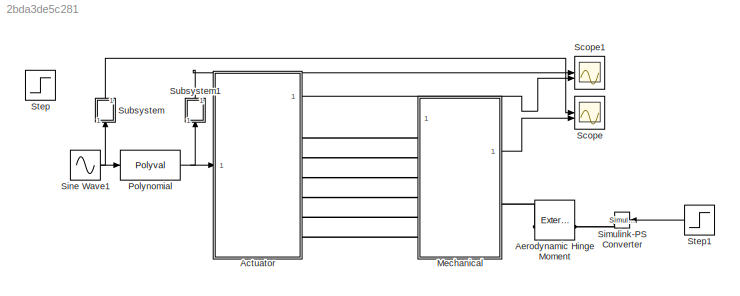
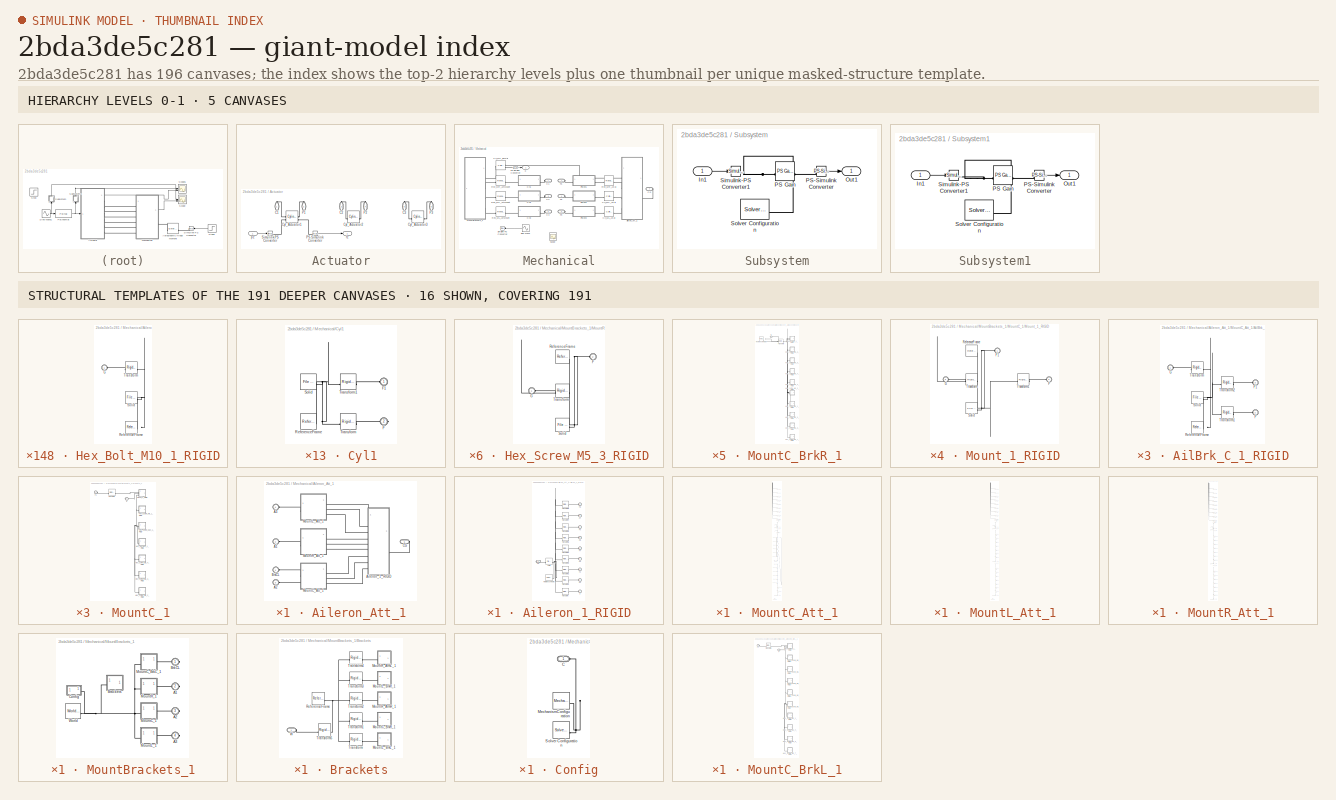
[diagram: thumbnail index - top-2 hierarchy levels (5 canvases) + 16 structural-template representatives of the remaining 191 canvases]
MODEL slx_2bda3de5c281
KIND model
CONFIG MaxStep = 1e-2
CONFIG SolverName = VariableStepAuto
WORKSPACE source: external: MATLAB File  (data not in archive)
BLOCK [SubSystem] Actuator
BLOCK [PMIOPort] Actuator/C1
  NameLocation = right
  Side = Right
BLOCK [PMIOPort] Actuator/C2
  NameLocation = right
  Port = 3
  Side = Right
BLOCK [PMIOPort] Actuator/C3
  NameLocation = right
  Port = 5
  Side = Right
BLOCK [Reference] Actuator/Cyl_Actuator1  REF=sm_lib/Joints/Cylindrical
Joint
  SourceBlock = sm_lib/Joints/Cylindrical\nJoint
  SourceType = Cylindrical\nJoint
BLOCK [Reference] Actuator/Cyl_Actuator2  REF=sm_lib/Joints/Cylindrical
Joint
  SourceBlock = sm_lib/Joints/Cylindrical\nJoint
  SourceType = Cylindrical\nJoint
BLOCK [Reference] Actuator/Cyl_Actuator3  REF=sm_lib/Joints/Cylindrical
Joint
  SourceBlock = sm_lib/Joints/Cylindrical\nJoint
  SourceType = Cylindrical\nJoint
BLOCK [PMIOPort] Actuator/P1
  NameLocation = left
  Port = 2
  Side = Right
BLOCK [PMIOPort] Actuator/P2
  NameLocation = left
  Port = 4
  Side = Right
BLOCK [PMIOPort] Actuator/P3
  NameLocation = left
  Port = 6
  Side = Right
BLOCK [Reference] Actuator/PS-Simulink Converter  REF=nesl_utility/PS-Simulink
Converter
  SourceBlock = nesl_utility/PS-Simulink\nConverter
  SourceType = PS-Simulink\nConverter
BLOCK [Reference] Actuator/Simulink-PS Converter  REF=nesl_utility/Simulink-PS
Converter
  SourceBlock = nesl_utility/Simulink-PS\nConverter
  SourceType = Simulink-PS\nConverter
BLOCK [Outport] Actuator/fz
  VectorParamsAs1DForOutWhenUnconnected = off
BLOCK [Inport] Actuator/pz
BLOCK [Reference] Aerodynamic Hinge Moment  REF=sm_lib/Forces and
Torques/External Force
and Torque
  SourceBlock = sm_lib/Forces and\nTorques/External Force\nand Torque
  SourceType = External Force\nand Torque
BLOCK [SubSystem] Mechanical
BLOCK [SubSystem] Mechanical/Aileron_Att_1
BLOCK [PMIOPort] Mechanical/Aileron_Att_1/A1
  Port = 2
  Side = Left
BLOCK [PMIOPort] Mechanical/Aileron_Att_1/A2
  Port = 3
  Side = Left
BLOCK [PMIOPort] Mechanical/Aileron_Att_1/A3
  Port = 4
  Side = Left
BLOCK [SubSystem] Mechanical/Aileron_Att_1/Aileron_1_RIGID
BLOCK [PMIOPort] Mechanical/Aileron_Att_1/Aileron_1_RIGID/CG
  Port = 10
  Side = Right
BLOCK [PMIOPort] Mechanical/Aileron_Att_1/Aileron_1_RIGID/F
  Port = 7
  Side = Left
BLOCK [PMIOPort] Mechanical/Aileron_Att_1/Aileron_1_RIGID/F1
  Port = 8
  Side = Left
BLOCK [PMIOPort] Mechanical/Aileron_Att_1/Aileron_1_RIGID/F2
  Port = 9
  Side = Left
BLOCK [PMIOPort] Mechanical/Aileron_Att_1/Aileron_1_RIGID/F3
  Port = 4
  Side = Left
BLOCK [PMIOPort] Mechanical/Aileron_Att_1/Aileron_1_RIGID/F4
  Port = 5
  Side = Left
BLOCK [PMIOPort] Mechanical/Aileron_Att_1/Aileron_1_RIGID/F5
  Port = 6
  Side = Left
BLOCK [PMIOPort] Mechanical/Aileron_Att_1/Aileron_1_RIGID/F6
  Side = Left
BLOCK [PMIOPort] Mechanical/Aileron_Att_1/Aileron_1_RIGID/F7
  Port = 2
  Side = Left
BLOCK [PMIOPort] Mechanical/Aileron_Att_1/Aileron_1_RIGID/F8
  Port = 3
  Side = Left
BLOCK [Reference] Mechanical/Aileron_Att_1/Aileron_1_RIGID/ReferenceFrame  REF=sm_lib/Frames and
Transforms/Reference
Frame
  SourceBlock = sm_lib/Frames and\nTransforms/Reference\nFrame
  SourceType = Reference\nFrame
BLOCK [Reference] Mechanical/Aileron_Att_1/Aileron_1_RIGID/Solid  REF=sm_lib/Body Elements/File Solid
  SourceBlock = sm_lib/Body Elements/File Solid
  SourceType = File Solid
BLOCK [Reference] Mechanical/Aileron_Att_1/Aileron_1_RIGID/Transform  REF=sm_lib/Frames and
Transforms/Rigid
Transform
  SourceBlock = sm_lib/Frames and\nTransforms/Rigid\nTransform
  SourceType = Rigid\nTransform
BLOCK [Reference] Mechanical/Aileron_Att_1/Aileron_1_RIGID/Transform1  REF=sm_lib/Frames and
Transforms/Rigid
Transform
  SourceBlock = sm_lib/Frames and\nTransforms/Rigid\nTransform
  SourceType = Rigid\nTransform
BLOCK [Reference] Mechanical/Aileron_Att_1/Aileron_1_RIGID/Transform2  REF=sm_lib/Frames and
Transforms/Rigid
Transform
  SourceBlock = sm_lib/Frames and\nTransforms/Rigid\nTransform
  SourceType = Rigid\nTransform
BLOCK [Reference] Mechanical/Aileron_Att_1/Aileron_1_RIGID/Transform3  REF=sm_lib/Frames and
Transforms/Rigid
Transform
  SourceBlock = sm_lib/Frames and\nTransforms/Rigid\nTransform
  SourceType = Rigid\nTransform
BLOCK [Reference] Mechanical/Aileron_Att_1/Aileron_1_RIGID/Transform4  REF=sm_lib/Frames and
Transforms/Rigid
Transform
  SourceBlock = sm_lib/Frames and\nTransforms/Rigid\nTransform
  SourceType = Rigid\nTransform
BLOCK [Reference] Mechanical/Aileron_Att_1/Aileron_1_RIGID/Transform5  REF=sm_lib/Frames and
Transforms/Rigid
Transform
  SourceBlock = sm_lib/Frames and\nTransforms/Rigid\nTransform
  SourceType = Rigid\nTransform
BLOCK [Reference] Mechanical/Aileron_Att_1/Aileron_1_RIGID/Transform6  REF=sm_lib/Frames and
Transforms/Rigid
Transform
  SourceBlock = sm_lib/Frames and\nTransforms/Rigid\nTransform
  SourceType = Rigid\nTransform
BLOCK [Reference] Mechanical/Aileron_Att_1/Aileron_1_RIGID/Transform7  REF=sm_lib/Frames and
Transforms/Rigid
Transform
  SourceBlock = sm_lib/Frames and\nTransforms/Rigid\nTransform
  SourceType = Rigid\nTransform
BLOCK [Reference] Mechanical/Aileron_Att_1/Aileron_1_RIGID/Transform8  REF=sm_lib/Frames and
Transforms/Rigid
Transform
  SourceBlock = sm_lib/Frames and\nTransforms/Rigid\nTransform
  SourceType = Rigid\nTransform
BLOCK [PMIOPort] Mechanical/Aileron_Att_1/BrkCL
  Side = Left
BLOCK [PMIOPort] Mechanical/Aileron_Att_1/CG
  Port = 5
  Side = Right
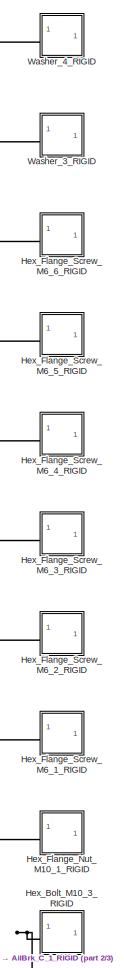
[diagram: Mechanical/Aileron_Att_1/MountC_Att_1 - part 1/3, top center region]
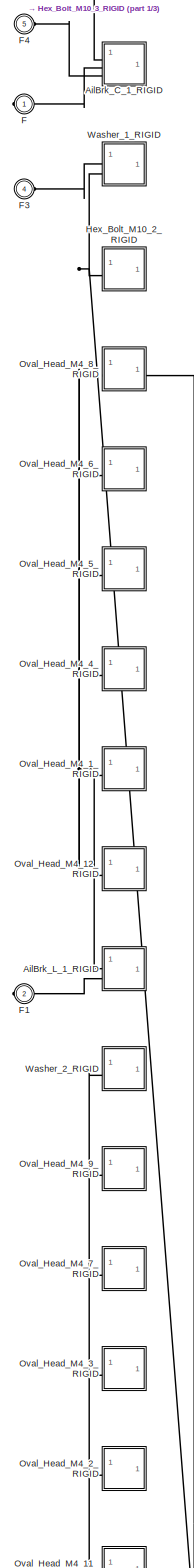
[diagram: Mechanical/Aileron_Att_1/MountC_Att_1 - part 2/3, central region]
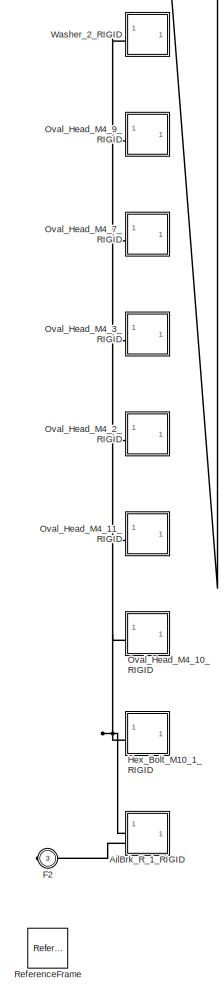
[diagram: Mechanical/Aileron_Att_1/MountC_Att_1 - part 3/3, full width, bottom band]
BLOCK [SubSystem] Mechanical/Aileron_Att_1/MountC_Att_1
BLOCK [SubSystem] Mechanical/Aileron_Att_1/MountC_Att_1/AilBrk_C_1_RIGID
BLOCK [PMIOPort] Mechanical/Aileron_Att_1/MountC_Att_1/AilBrk_C_1_RIGID/F
  Port = 2
  Side = Left
BLOCK [PMIOPort] Mechanical/Aileron_Att_1/MountC_Att_1/AilBrk_C_1_RIGID/F1
  Port = 3
  Side = Left
BLOCK [PMIOPort] Mechanical/Aileron_Att_1/MountC_Att_1/AilBrk_C_1_RIGID/G
  Side = Left
BLOCK [Reference] Mechanical/Aileron_Att_1/MountC_Att_1/AilBrk_C_1_RIGID/ReferenceFrame  REF=sm_lib/Frames and
Transforms/Reference
Frame
  SourceBlock = sm_lib/Frames and\nTransforms/Reference\nFrame
  SourceType = Reference\nFrame
BLOCK [Reference] Mechanical/Aileron_Att_1/MountC_Att_1/AilBrk_C_1_RIGID/Solid  REF=sm_lib/Body Elements/File Solid
  SourceBlock = sm_lib/Body Elements/File Solid
  SourceType = File Solid
BLOCK [Reference] Mechanical/Aileron_Att_1/MountC_Att_1/AilBrk_C_1_RIGID/Transform  REF=sm_lib/Frames and
Transforms/Rigid
Transform
  SourceBlock = sm_lib/Frames and\nTransforms/Rigid\nTransform
  SourceType = Rigid\nTransform
BLOCK [Reference] Mechanical/Aileron_Att_1/MountC_Att_1/AilBrk_C_1_RIGID/Transform1  REF=sm_lib/Frames and
Transforms/Rigid
Transform
  SourceBlock = sm_lib/Frames and\nTransforms/Rigid\nTransform
  SourceType = Rigid\nTransform
BLOCK [Reference] Mechanical/Aileron_Att_1/MountC_Att_1/AilBrk_C_1_RIGID/Transform2  REF=sm_lib/Frames and
Transforms/Rigid
Transform
  SourceBlock = sm_lib/Frames and\nTransforms/Rigid\nTransform
  SourceType = Rigid\nTransform
BLOCK [SubSystem] Mechanical/Aileron_Att_1/MountC_Att_1/AilBrk_L_1_RIGID
BLOCK [PMIOPort] Mechanical/Aileron_Att_1/MountC_Att_1/AilBrk_L_1_RIGID/F
  Port = 2
  Side = Left
BLOCK [PMIOPort] Mechanical/Aileron_Att_1/MountC_Att_1/AilBrk_L_1_RIGID/G
  Side = Left
BLOCK [Reference] Mechanical/Aileron_Att_1/MountC_Att_1/AilBrk_L_1_RIGID/ReferenceFrame  REF=sm_lib/Frames and
Transforms/Reference
Frame
  SourceBlock = sm_lib/Frames and\nTransforms/Reference\nFrame
  SourceType = Reference\nFrame
BLOCK [Reference] Mechanical/Aileron_Att_1/MountC_Att_1/AilBrk_L_1_RIGID/Solid  REF=sm_lib/Body Elements/File Solid
  SourceBlock = sm_lib/Body Elements/File Solid
  SourceType = File Solid
BLOCK [Reference] Mechanical/Aileron_Att_1/MountC_Att_1/AilBrk_L_1_RIGID/Transform  REF=sm_lib/Frames and
Transforms/Rigid
Transform
  SourceBlock = sm_lib/Frames and\nTransforms/Rigid\nTransform
  SourceType = Rigid\nTransform
BLOCK [Reference] Mechanical/Aileron_Att_1/MountC_Att_1/AilBrk_L_1_RIGID/Transform1  REF=sm_lib/Frames and
Transforms/Rigid
Transform
  SourceBlock = sm_lib/Frames and\nTransforms/Rigid\nTransform
  SourceType = Rigid\nTransform
BLOCK [SubSystem] Mechanical/Aileron_Att_1/MountC_Att_1/AilBrk_R_1_RIGID
BLOCK [PMIOPort] Mechanical/Aileron_Att_1/MountC_Att_1/AilBrk_R_1_RIGID/F
  Port = 2
  Side = Left
BLOCK [PMIOPort] Mechanical/Aileron_Att_1/MountC_Att_1/AilBrk_R_1_RIGID/G
  Side = Left
BLOCK [Reference] Mechanical/Aileron_Att_1/MountC_Att_1/AilBrk_R_1_RIGID/ReferenceFrame  REF=sm_lib/Frames and
Transforms/Reference
Frame
  SourceBlock = sm_lib/Frames and\nTransforms/Reference\nFrame
  SourceType = Reference\nFrame
BLOCK [Reference] Mechanical/Aileron_Att_1/MountC_Att_1/AilBrk_R_1_RIGID/Solid  REF=sm_lib/Body Elements/File Solid
  SourceBlock = sm_lib/Body Elements/File Solid
  SourceType = File Solid
BLOCK [Reference] Mechanical/Aileron_Att_1/MountC_Att_1/AilBrk_R_1_RIGID/Transform  REF=sm_lib/Frames and
Transforms/Rigid
Transform
  SourceBlock = sm_lib/Frames and\nTransforms/Rigid\nTransform
  SourceType = Rigid\nTransform
BLOCK [Reference] Mechanical/Aileron_Att_1/MountC_Att_1/AilBrk_R_1_RIGID/Transform1  REF=sm_lib/Frames and
Transforms/Rigid
Transform
  SourceBlock = sm_lib/Frames and\nTransforms/Rigid\nTransform
  SourceType = Rigid\nTransform
BLOCK [PMIOPort] Mechanical/Aileron_Att_1/MountC_Att_1/F
  Side = Right
BLOCK [PMIOPort] Mechanical/Aileron_Att_1/MountC_Att_1/F1
  Port = 2
  Side = Right
BLOCK [PMIOPort] Mechanical/Aileron_Att_1/MountC_Att_1/F2
  Port = 3
  Side = Right
BLOCK [PMIOPort] Mechanical/Aileron_Att_1/MountC_Att_1/F3
  Port = 4
  Side = Left
BLOCK [PMIOPort] Mechanical/Aileron_Att_1/MountC_Att_1/F4
  Port = 5
  Side = Left
BLOCK [SubSystem] Mechanical/Aileron_Att_1/MountC_Att_1/Hex_Bolt_M10_1_RIGID
BLOCK [PMIOPort] Mechanical/Aileron_Att_1/MountC_Att_1/Hex_Bolt_M10_1_RIGID/G
  Side = Left
BLOCK [Reference] Mechanical/Aileron_Att_1/MountC_Att_1/Hex_Bolt_M10_1_RIGID/ReferenceFrame  REF=sm_lib/Frames and
Transforms/Reference
Frame
  SourceBlock = sm_lib/Frames and\nTransforms/Reference\nFrame
  SourceType = Reference\nFrame
BLOCK [Reference] Mechanical/Aileron_Att_1/MountC_Att_1/Hex_Bolt_M10_1_RIGID/Solid  REF=sm_lib/Body Elements/File Solid
  SourceBlock = sm_lib/Body Elements/File Solid
  SourceType = File Solid
BLOCK [Reference] Mechanical/Aileron_Att_1/MountC_Att_1/Hex_Bolt_M10_1_RIGID/Transform  REF=sm_lib/Frames and
Transforms/Rigid
Transform
  SourceBlock = sm_lib/Frames and\nTransforms/Rigid\nTransform
  SourceType = Rigid\nTransform
BLOCK [SubSystem] Mechanical/Aileron_Att_1/MountC_Att_1/Hex_Bolt_M10_2_RIGID
BLOCK [PMIOPort] Mechanical/Aileron_Att_1/MountC_Att_1/Hex_Bolt_M10_2_RIGID/G
  Side = Left
BLOCK [Reference] Mechanical/Aileron_Att_1/MountC_Att_1/Hex_Bolt_M10_2_RIGID/ReferenceFrame  REF=sm_lib/Frames and
Transforms/Reference
Frame
  SourceBlock = sm_lib/Frames and\nTransforms/Reference\nFrame
  SourceType = Reference\nFrame
BLOCK [Reference] Mechanical/Aileron_Att_1/MountC_Att_1/Hex_Bolt_M10_2_RIGID/Solid  REF=sm_lib/Body Elements/File Solid
  SourceBlock = sm_lib/Body Elements/File Solid
  SourceType = File Solid
BLOCK [Reference] Mechanical/Aileron_Att_1/MountC_Att_1/Hex_Bolt_M10_2_RIGID/Transform  REF=sm_lib/Frames and
Transforms/Rigid
Transform
  SourceBlock = sm_lib/Frames and\nTransforms/Rigid\nTransform
  SourceType = Rigid\nTransform
BLOCK [SubSystem] Mechanical/Aileron_Att_1/MountC_Att_1/Hex_Bolt_M10_3_RIGID
BLOCK [PMIOPort] Mechanical/Aileron_Att_1/MountC_Att_1/Hex_Bolt_M10_3_RIGID/G
  Side = Left
BLOCK [Reference] Mechanical/Aileron_Att_1/MountC_Att_1/Hex_Bolt_M10_3_RIGID/ReferenceFrame  REF=sm_lib/Frames and
Transforms/Reference
Frame
  SourceBlock = sm_lib/Frames and\nTransforms/Reference\nFrame
  SourceType = Reference\nFrame
BLOCK [Reference] Mechanical/Aileron_Att_1/MountC_Att_1/Hex_Bolt_M10_3_RIGID/Solid  REF=sm_lib/Body Elements/File Solid
  SourceBlock = sm_lib/Body Elements/File Solid
  SourceType = File Solid
BLOCK [Reference] Mechanical/Aileron_Att_1/MountC_Att_1/Hex_Bolt_M10_3_RIGID/Transform  REF=sm_lib/Frames and
Transforms/Rigid
Transform
  SourceBlock = sm_lib/Frames and\nTransforms/Rigid\nTransform
  SourceType = Rigid\nTransform
BLOCK [SubSystem] Mechanical/Aileron_Att_1/MountC_Att_1/Hex_Flange_Nut_M10_1_RIGID
BLOCK [PMIOPort] Mechanical/Aileron_Att_1/MountC_Att_1/Hex_Flange_Nut_M10_1_RIGID/G
  Side = Left
BLOCK [Reference] Mechanical/Aileron_Att_1/MountC_Att_1/Hex_Flange_Nut_M10_1_RIGID/ReferenceFrame  REF=sm_lib/Frames and
Transforms/Reference
Frame
  SourceBlock = sm_lib/Frames and\nTransforms/Reference\nFrame
  SourceType = Reference\nFrame
BLOCK [Reference] Mechanical/Aileron_Att_1/MountC_Att_1/Hex_Flange_Nut_M10_1_RIGID/Solid  REF=sm_lib/Body Elements/File Solid
  SourceBlock = sm_lib/Body Elements/File Solid
  SourceType = File Solid
BLOCK [Reference] Mechanical/Aileron_Att_1/MountC_Att_1/Hex_Flange_Nut_M10_1_RIGID/Transform  REF=sm_lib/Frames and
Transforms/Rigid
Transform
  SourceBlock = sm_lib/Frames and\nTransforms/Rigid\nTransform
  SourceType = Rigid\nTransform
BLOCK [SubSystem] Mechanical/Aileron_Att_1/MountC_Att_1/Hex_Flange_Screw_M6_1_RIGID
BLOCK [PMIOPort] Mechanical/Aileron_Att_1/MountC_Att_1/Hex_Flange_Screw_M6_1_RIGID/G
  Side = Left
BLOCK [Reference] Mechanical/Aileron_Att_1/MountC_Att_1/Hex_Flange_Screw_M6_1_RIGID/ReferenceFrame  REF=sm_lib/Frames and
Transforms/Reference
Frame
  SourceBlock = sm_lib/Frames and\nTransforms/Reference\nFrame
  SourceType = Reference\nFrame
BLOCK [Reference] Mechanical/Aileron_Att_1/MountC_Att_1/Hex_Flange_Screw_M6_1_RIGID/Solid  REF=sm_lib/Body Elements/File Solid
  SourceBlock = sm_lib/Body Elements/File Solid
  SourceType = File Solid
BLOCK [Reference] Mechanical/Aileron_Att_1/MountC_Att_1/Hex_Flange_Screw_M6_1_RIGID/Transform  REF=sm_lib/Frames and
Transforms/Rigid
Transform
  SourceBlock = sm_lib/Frames and\nTransforms/Rigid\nTransform
  SourceType = Rigid\nTransform
BLOCK [SubSystem] Mechanical/Aileron_Att_1/MountC_Att_1/Hex_Flange_Screw_M6_2_RIGID
BLOCK [PMIOPort] Mechanical/Aileron_Att_1/MountC_Att_1/Hex_Flange_Screw_M6_2_RIGID/G
  Side = Left
BLOCK [Reference] Mechanical/Aileron_Att_1/MountC_Att_1/Hex_Flange_Screw_M6_2_RIGID/ReferenceFrame  REF=sm_lib/Frames and
Transforms/Reference
Frame
  SourceBlock = sm_lib/Frames and\nTransforms/Reference\nFrame
  SourceType = Reference\nFrame
BLOCK [Reference] Mechanical/Aileron_Att_1/MountC_Att_1/Hex_Flange_Screw_M6_2_RIGID/Solid  REF=sm_lib/Body Elements/File Solid
  SourceBlock = sm_lib/Body Elements/File Solid
  SourceType = File Solid
BLOCK [Reference] Mechanical/Aileron_Att_1/MountC_Att_1/Hex_Flange_Screw_M6_2_RIGID/Transform  REF=sm_lib/Frames and
Transforms/Rigid
Transform
  SourceBlock = sm_lib/Frames and\nTransforms/Rigid\nTransform
  SourceType = Rigid\nTransform
BLOCK [SubSystem] Mechanical/Aileron_Att_1/MountC_Att_1/Hex_Flange_Screw_M6_3_RIGID
BLOCK [PMIOPort] Mechanical/Aileron_Att_1/MountC_Att_1/Hex_Flange_Screw_M6_3_RIGID/G
  Side = Left
BLOCK [Reference] Mechanical/Aileron_Att_1/MountC_Att_1/Hex_Flange_Screw_M6_3_RIGID/ReferenceFrame  REF=sm_lib/Frames and
Transforms/Reference
Frame
  SourceBlock = sm_lib/Frames and\nTransforms/Reference\nFrame
  SourceType = Reference\nFrame
BLOCK [Reference] Mechanical/Aileron_Att_1/MountC_Att_1/Hex_Flange_Screw_M6_3_RIGID/Solid  REF=sm_lib/Body Elements/File Solid
  SourceBlock = sm_lib/Body Elements/File Solid
  SourceType = File Solid
BLOCK [Reference] Mechanical/Aileron_Att_1/MountC_Att_1/Hex_Flange_Screw_M6_3_RIGID/Transform  REF=sm_lib/Frames and
Transforms/Rigid
Transform
  SourceBlock = sm_lib/Frames and\nTransforms/Rigid\nTransform
  SourceType = Rigid\nTransform
BLOCK [SubSystem] Mechanical/Aileron_Att_1/MountC_Att_1/Hex_Flange_Screw_M6_4_RIGID
BLOCK [PMIOPort] Mechanical/Aileron_Att_1/MountC_Att_1/Hex_Flange_Screw_M6_4_RIGID/G
  Side = Left
BLOCK [Reference] Mechanical/Aileron_Att_1/MountC_Att_1/Hex_Flange_Screw_M6_4_RIGID/ReferenceFrame  REF=sm_lib/Frames and
Transforms/Reference
Frame
  SourceBlock = sm_lib/Frames and\nTransforms/Reference\nFrame
  SourceType = Reference\nFrame
BLOCK [Reference] Mechanical/Aileron_Att_1/MountC_Att_1/Hex_Flange_Screw_M6_4_RIGID/Solid  REF=sm_lib/Body Elements/File Solid
  SourceBlock = sm_lib/Body Elements/File Solid
  SourceType = File Solid
BLOCK [Reference] Mechanical/Aileron_Att_1/MountC_Att_1/Hex_Flange_Screw_M6_4_RIGID/Transform  REF=sm_lib/Frames and
Transforms/Rigid
Transform
  SourceBlock = sm_lib/Frames and\nTransforms/Rigid\nTransform
  SourceType = Rigid\nTransform
BLOCK [SubSystem] Mechanical/Aileron_Att_1/MountC_Att_1/Hex_Flange_Screw_M6_5_RIGID
BLOCK [PMIOPort] Mechanical/Aileron_Att_1/MountC_Att_1/Hex_Flange_Screw_M6_5_RIGID/G
  Side = Left
BLOCK [Reference] Mechanical/Aileron_Att_1/MountC_Att_1/Hex_Flange_Screw_M6_5_RIGID/ReferenceFrame  REF=sm_lib/Frames and
Transforms/Reference
Frame
  SourceBlock = sm_lib/Frames and\nTransforms/Reference\nFrame
  SourceType = Reference\nFrame
BLOCK [Reference] Mechanical/Aileron_Att_1/MountC_Att_1/Hex_Flange_Screw_M6_5_RIGID/Solid  REF=sm_lib/Body Elements/File Solid
  SourceBlock = sm_lib/Body Elements/File Solid
  SourceType = File Solid
BLOCK [Reference] Mechanical/Aileron_Att_1/MountC_Att_1/Hex_Flange_Screw_M6_5_RIGID/Transform  REF=sm_lib/Frames and
Transforms/Rigid
Transform
  SourceBlock = sm_lib/Frames and\nTransforms/Rigid\nTransform
  SourceType = Rigid\nTransform
BLOCK [SubSystem] Mechanical/Aileron_Att_1/MountC_Att_1/Hex_Flange_Screw_M6_6_RIGID
BLOCK [PMIOPort] Mechanical/Aileron_Att_1/MountC_Att_1/Hex_Flange_Screw_M6_6_RIGID/G
  Side = Left
BLOCK [Reference] Mechanical/Aileron_Att_1/MountC_Att_1/Hex_Flange_Screw_M6_6_RIGID/ReferenceFrame  REF=sm_lib/Frames and
Transforms/Reference
Frame
  SourceBlock = sm_lib/Frames and\nTransforms/Reference\nFrame
  SourceType = Reference\nFrame
BLOCK [Reference] Mechanical/Aileron_Att_1/MountC_Att_1/Hex_Flange_Screw_M6_6_RIGID/Solid  REF=sm_lib/Body Elements/File Solid
  SourceBlock = sm_lib/Body Elements/File Solid
  SourceType = File Solid
BLOCK [Reference] Mechanical/Aileron_Att_1/MountC_Att_1/Hex_Flange_Screw_M6_6_RIGID/Transform  REF=sm_lib/Frames and
Transforms/Rigid
Transform
  SourceBlock = sm_lib/Frames and\nTransforms/Rigid\nTransform
  SourceType = Rigid\nTransform
BLOCK [SubSystem] Mechanical/Aileron_Att_1/MountC_Att_1/Oval_Head_M4_10_RIGID
BLOCK [PMIOPort] Mechanical/Aileron_Att_1/MountC_Att_1/Oval_Head_M4_10_RIGID/G
  Side = Left
BLOCK [Reference] Mechanical/Aileron_Att_1/MountC_Att_1/Oval_Head_M4_10_RIGID/ReferenceFrame  REF=sm_lib/Frames and
Transforms/Reference
Frame
  SourceBlock = sm_lib/Frames and\nTransforms/Reference\nFrame
  SourceType = Reference\nFrame
BLOCK [Reference] Mechanical/Aileron_Att_1/MountC_Att_1/Oval_Head_M4_10_RIGID/Solid  REF=sm_lib/Body Elements/File Solid
  SourceBlock = sm_lib/Body Elements/File Solid
  SourceType = File Solid
BLOCK [Reference] Mechanical/Aileron_Att_1/MountC_Att_1/Oval_Head_M4_10_RIGID/Transform  REF=sm_lib/Frames and
Transforms/Rigid
Transform
  SourceBlock = sm_lib/Frames and\nTransforms/Rigid\nTransform
  SourceType = Rigid\nTransform
BLOCK [SubSystem] Mechanical/Aileron_Att_1/MountC_Att_1/Oval_Head_M4_11_RIGID
BLOCK [PMIOPort] Mechanical/Aileron_Att_1/MountC_Att_1/Oval_Head_M4_11_RIGID/G
  Side = Left
BLOCK [Reference] Mechanical/Aileron_Att_1/MountC_Att_1/Oval_Head_M4_11_RIGID/ReferenceFrame  REF=sm_lib/Frames and
Transforms/Reference
Frame
  SourceBlock = sm_lib/Frames and\nTransforms/Reference\nFrame
  SourceType = Reference\nFrame
BLOCK [Reference] Mechanical/Aileron_Att_1/MountC_Att_1/Oval_Head_M4_11_RIGID/Solid  REF=sm_lib/Body Elements/File Solid
  SourceBlock = sm_lib/Body Elements/File Solid
  SourceType = File Solid
BLOCK [Reference] Mechanical/Aileron_Att_1/MountC_Att_1/Oval_Head_M4_11_RIGID/Transform  REF=sm_lib/Frames and
Transforms/Rigid
Transform
  SourceBlock = sm_lib/Frames and\nTransforms/Rigid\nTransform
  SourceType = Rigid\nTransform
BLOCK [SubSystem] Mechanical/Aileron_Att_1/MountC_Att_1/Oval_Head_M4_12_RIGID
BLOCK [PMIOPort] Mechanical/Aileron_Att_1/MountC_Att_1/Oval_Head_M4_12_RIGID/G
  Side = Left
BLOCK [Reference] Mechanical/Aileron_Att_1/MountC_Att_1/Oval_Head_M4_12_RIGID/ReferenceFrame  REF=sm_lib/Frames and
Transforms/Reference
Frame
  SourceBlock = sm_lib/Frames and\nTransforms/Reference\nFrame
  SourceType = Reference\nFrame
BLOCK [Reference] Mechanical/Aileron_Att_1/MountC_Att_1/Oval_Head_M4_12_RIGID/Solid  REF=sm_lib/Body Elements/File Solid
  SourceBlock = sm_lib/Body Elements/File Solid
  SourceType = File Solid
BLOCK [Reference] Mechanical/Aileron_Att_1/MountC_Att_1/Oval_Head_M4_12_RIGID/Transform  REF=sm_lib/Frames and
Transforms/Rigid
Transform
  SourceBlock = sm_lib/Frames and\nTransforms/Rigid\nTransform
  SourceType = Rigid\nTransform
BLOCK [SubSystem] Mechanical/Aileron_Att_1/MountC_Att_1/Oval_Head_M4_1_RIGID
BLOCK [PMIOPort] Mechanical/Aileron_Att_1/MountC_Att_1/Oval_Head_M4_1_RIGID/G
  Side = Left
BLOCK [Reference] Mechanical/Aileron_Att_1/MountC_Att_1/Oval_Head_M4_1_RIGID/ReferenceFrame  REF=sm_lib/Frames and
Transforms/Reference
Frame
  SourceBlock = sm_lib/Frames and\nTransforms/Reference\nFrame
  SourceType = Reference\nFrame
BLOCK [Reference] Mechanical/Aileron_Att_1/MountC_Att_1/Oval_Head_M4_1_RIGID/Solid  REF=sm_lib/Body Elements/File Solid
  SourceBlock = sm_lib/Body Elements/File Solid
  SourceType = File Solid
BLOCK [Reference] Mechanical/Aileron_Att_1/MountC_Att_1/Oval_Head_M4_1_RIGID/Transform  REF=sm_lib/Frames and
Transforms/Rigid
Transform
  SourceBlock = sm_lib/Frames and\nTransforms/Rigid\nTransform
  SourceType = Rigid\nTransform
BLOCK [SubSystem] Mechanical/Aileron_Att_1/MountC_Att_1/Oval_Head_M4_2_RIGID
BLOCK [PMIOPort] Mechanical/Aileron_Att_1/MountC_Att_1/Oval_Head_M4_2_RIGID/G
  Side = Left
BLOCK [Reference] Mechanical/Aileron_Att_1/MountC_Att_1/Oval_Head_M4_2_RIGID/ReferenceFrame  REF=sm_lib/Frames and
Transforms/Reference
Frame
  SourceBlock = sm_lib/Frames and\nTransforms/Reference\nFrame
  SourceType = Reference\nFrame
BLOCK [Reference] Mechanical/Aileron_Att_1/MountC_Att_1/Oval_Head_M4_2_RIGID/Solid  REF=sm_lib/Body Elements/File Solid
  SourceBlock = sm_lib/Body Elements/File Solid
  SourceType = File Solid
BLOCK [Reference] Mechanical/Aileron_Att_1/MountC_Att_1/Oval_Head_M4_2_RIGID/Transform  REF=sm_lib/Frames and
Transforms/Rigid
Transform
  SourceBlock = sm_lib/Frames and\nTransforms/Rigid\nTransform
  SourceType = Rigid\nTransform
BLOCK [SubSystem] Mechanical/Aileron_Att_1/MountC_Att_1/Oval_Head_M4_3_RIGID
BLOCK [PMIOPort] Mechanical/Aileron_Att_1/MountC_Att_1/Oval_Head_M4_3_RIGID/G
  Side = Left
BLOCK [Reference] Mechanical/Aileron_Att_1/MountC_Att_1/Oval_Head_M4_3_RIGID/ReferenceFrame  REF=sm_lib/Frames and
Transforms/Reference
Frame
  SourceBlock = sm_lib/Frames and\nTransforms/Reference\nFrame
  SourceType = Reference\nFrame
BLOCK [Reference] Mechanical/Aileron_Att_1/MountC_Att_1/Oval_Head_M4_3_RIGID/Solid  REF=sm_lib/Body Elements/File Solid
  SourceBlock = sm_lib/Body Elements/File Solid
  SourceType = File Solid
BLOCK [Reference] Mechanical/Aileron_Att_1/MountC_Att_1/Oval_Head_M4_3_RIGID/Transform  REF=sm_lib/Frames and
Transforms/Rigid
Transform
  SourceBlock = sm_lib/Frames and\nTransforms/Rigid\nTransform
  SourceType = Rigid\nTransform
BLOCK [SubSystem] Mechanical/Aileron_Att_1/MountC_Att_1/Oval_Head_M4_4_RIGID
BLOCK [PMIOPort] Mechanical/Aileron_Att_1/MountC_Att_1/Oval_Head_M4_4_RIGID/G
  Side = Left
BLOCK [Reference] Mechanical/Aileron_Att_1/MountC_Att_1/Oval_Head_M4_4_RIGID/ReferenceFrame  REF=sm_lib/Frames and
Transforms/Reference
Frame
  SourceBlock = sm_lib/Frames and\nTransforms/Reference\nFrame
  SourceType = Reference\nFrame
BLOCK [Reference] Mechanical/Aileron_Att_1/MountC_Att_1/Oval_Head_M4_4_RIGID/Solid  REF=sm_lib/Body Elements/File Solid
  SourceBlock = sm_lib/Body Elements/File Solid
  SourceType = File Solid
BLOCK [Reference] Mechanical/Aileron_Att_1/MountC_Att_1/Oval_Head_M4_4_RIGID/Transform  REF=sm_lib/Frames and
Transforms/Rigid
Transform
  SourceBlock = sm_lib/Frames and\nTransforms/Rigid\nTransform
  SourceType = Rigid\nTransform
BLOCK [SubSystem] Mechanical/Aileron_Att_1/MountC_Att_1/Oval_Head_M4_5_RIGID
BLOCK [PMIOPort] Mechanical/Aileron_Att_1/MountC_Att_1/Oval_Head_M4_5_RIGID/G
  Side = Left
BLOCK [Reference] Mechanical/Aileron_Att_1/MountC_Att_1/Oval_Head_M4_5_RIGID/ReferenceFrame  REF=sm_lib/Frames and
Transforms/Reference
Frame
  SourceBlock = sm_lib/Frames and\nTransforms/Reference\nFrame
  SourceType = Reference\nFrame
BLOCK [Reference] Mechanical/Aileron_Att_1/MountC_Att_1/Oval_Head_M4_5_RIGID/Solid  REF=sm_lib/Body Elements/File Solid
  SourceBlock = sm_lib/Body Elements/File Solid
  SourceType = File Solid
BLOCK [Reference] Mechanical/Aileron_Att_1/MountC_Att_1/Oval_Head_M4_5_RIGID/Transform  REF=sm_lib/Frames and
Transforms/Rigid
Transform
  SourceBlock = sm_lib/Frames and\nTransforms/Rigid\nTransform
  SourceType = Rigid\nTransform
BLOCK [SubSystem] Mechanical/Aileron_Att_1/MountC_Att_1/Oval_Head_M4_6_RIGID
BLOCK [PMIOPort] Mechanical/Aileron_Att_1/MountC_Att_1/Oval_Head_M4_6_RIGID/G
  Side = Left
BLOCK [Reference] Mechanical/Aileron_Att_1/MountC_Att_1/Oval_Head_M4_6_RIGID/ReferenceFrame  REF=sm_lib/Frames and
Transforms/Reference
Frame
  SourceBlock = sm_lib/Frames and\nTransforms/Reference\nFrame
  SourceType = Reference\nFrame
BLOCK [Reference] Mechanical/Aileron_Att_1/MountC_Att_1/Oval_Head_M4_6_RIGID/Solid  REF=sm_lib/Body Elements/File Solid
  SourceBlock = sm_lib/Body Elements/File Solid
  SourceType = File Solid
BLOCK [Reference] Mechanical/Aileron_Att_1/MountC_Att_1/Oval_Head_M4_6_RIGID/Transform  REF=sm_lib/Frames and
Transforms/Rigid
Transform
  SourceBlock = sm_lib/Frames and\nTransforms/Rigid\nTransform
  SourceType = Rigid\nTransform
BLOCK [SubSystem] Mechanical/Aileron_Att_1/MountC_Att_1/Oval_Head_M4_7_RIGID
BLOCK [PMIOPort] Mechanical/Aileron_Att_1/MountC_Att_1/Oval_Head_M4_7_RIGID/G
  Side = Left
BLOCK [Reference] Mechanical/Aileron_Att_1/MountC_Att_1/Oval_Head_M4_7_RIGID/ReferenceFrame  REF=sm_lib/Frames and
Transforms/Reference
Frame
  SourceBlock = sm_lib/Frames and\nTransforms/Reference\nFrame
  SourceType = Reference\nFrame
BLOCK [Reference] Mechanical/Aileron_Att_1/MountC_Att_1/Oval_Head_M4_7_RIGID/Solid  REF=sm_lib/Body Elements/File Solid
  SourceBlock = sm_lib/Body Elements/File Solid
  SourceType = File Solid
BLOCK [Reference] Mechanical/Aileron_Att_1/MountC_Att_1/Oval_Head_M4_7_RIGID/Transform  REF=sm_lib/Frames and
Transforms/Rigid
Transform
  SourceBlock = sm_lib/Frames and\nTransforms/Rigid\nTransform
  SourceType = Rigid\nTransform
BLOCK [SubSystem] Mechanical/Aileron_Att_1/MountC_Att_1/Oval_Head_M4_8_RIGID
BLOCK [PMIOPort] Mechanical/Aileron_Att_1/MountC_Att_1/Oval_Head_M4_8_RIGID/G
  Side = Left
BLOCK [Reference] Mechanical/Aileron_Att_1/MountC_Att_1/Oval_Head_M4_8_RIGID/ReferenceFrame  REF=sm_lib/Frames and
Transforms/Reference
Frame
  SourceBlock = sm_lib/Frames and\nTransforms/Reference\nFrame
  SourceType = Reference\nFrame
BLOCK [Reference] Mechanical/Aileron_Att_1/MountC_Att_1/Oval_Head_M4_8_RIGID/Solid  REF=sm_lib/Body Elements/File Solid
  SourceBlock = sm_lib/Body Elements/File Solid
  SourceType = File Solid
BLOCK [Reference] Mechanical/Aileron_Att_1/MountC_Att_1/Oval_Head_M4_8_RIGID/Transform  REF=sm_lib/Frames and
Transforms/Rigid
Transform
  SourceBlock = sm_lib/Frames and\nTransforms/Rigid\nTransform
  SourceType = Rigid\nTransform
BLOCK [SubSystem] Mechanical/Aileron_Att_1/MountC_Att_1/Oval_Head_M4_9_RIGID
BLOCK [PMIOPort] Mechanical/Aileron_Att_1/MountC_Att_1/Oval_Head_M4_9_RIGID/G
  Side = Left
BLOCK [Reference] Mechanical/Aileron_Att_1/MountC_Att_1/Oval_Head_M4_9_RIGID/ReferenceFrame  REF=sm_lib/Frames and
Transforms/Reference
Frame
  SourceBlock = sm_lib/Frames and\nTransforms/Reference\nFrame
  SourceType = Reference\nFrame
BLOCK [Reference] Mechanical/Aileron_Att_1/MountC_Att_1/Oval_Head_M4_9_RIGID/Solid  REF=sm_lib/Body Elements/File Solid
  SourceBlock = sm_lib/Body Elements/File Solid
  SourceType = File Solid
BLOCK [Reference] Mechanical/Aileron_Att_1/MountC_Att_1/Oval_Head_M4_9_RIGID/Transform  REF=sm_lib/Frames and
Transforms/Rigid
Transform
  SourceBlock = sm_lib/Frames and\nTransforms/Rigid\nTransform
  SourceType = Rigid\nTransform
BLOCK [Reference] Mechanical/Aileron_Att_1/MountC_Att_1/ReferenceFrame  REF=sm_lib/Frames and
Transforms/Reference
Frame
  SourceBlock = sm_lib/Frames and\nTransforms/Reference\nFrame
  SourceType = Reference\nFrame
BLOCK [SubSystem] Mechanical/Aileron_Att_1/MountC_Att_1/Washer_1_RIGID
BLOCK [PMIOPort] Mechanical/Aileron_Att_1/MountC_Att_1/Washer_1_RIGID/F
  Side = Left
BLOCK [PMIOPort] Mechanical/Aileron_Att_1/MountC_Att_1/Washer_1_RIGID/G
  Port = 2
  Side = Left
BLOCK [Reference] Mechanical/Aileron_Att_1/MountC_Att_1/Washer_1_RIGID/ReferenceFrame  REF=sm_lib/Frames and
Transforms/Reference
Frame
  SourceBlock = sm_lib/Frames and\nTransforms/Reference\nFrame
  SourceType = Reference\nFrame
BLOCK [Reference] Mechanical/Aileron_Att_1/MountC_Att_1/Washer_1_RIGID/Solid  REF=sm_lib/Body Elements/File Solid
  SourceBlock = sm_lib/Body Elements/File Solid
  SourceType = File Solid
BLOCK [Reference] Mechanical/Aileron_Att_1/MountC_Att_1/Washer_1_RIGID/Transform  REF=sm_lib/Frames and
Transforms/Rigid
Transform
  SourceBlock = sm_lib/Frames and\nTransforms/Rigid\nTransform
  SourceType = Rigid\nTransform
BLOCK [Reference] Mechanical/Aileron_Att_1/MountC_Att_1/Washer_1_RIGID/Transform1  REF=sm_lib/Frames and
Transforms/Rigid
Transform
  SourceBlock = sm_lib/Frames and\nTransforms/Rigid\nTransform
  SourceType = Rigid\nTransform
BLOCK [SubSystem] Mechanical/Aileron_Att_1/MountC_Att_1/Washer_2_RIGID
BLOCK [PMIOPort] Mechanical/Aileron_Att_1/MountC_Att_1/Washer_2_RIGID/G
  Side = Left
BLOCK [Reference] Mechanical/Aileron_Att_1/MountC_Att_1/Washer_2_RIGID/ReferenceFrame  REF=sm_lib/Frames and
Transforms/Reference
Frame
  SourceBlock = sm_lib/Frames and\nTransforms/Reference\nFrame
  SourceType = Reference\nFrame
BLOCK [Reference] Mechanical/Aileron_Att_1/MountC_Att_1/Washer_2_RIGID/Solid  REF=sm_lib/Body Elements/File Solid
  SourceBlock = sm_lib/Body Elements/File Solid
  SourceType = File Solid
BLOCK [Reference] Mechanical/Aileron_Att_1/MountC_Att_1/Washer_2_RIGID/Transform  REF=sm_lib/Frames and
Transforms/Rigid
Transform
  SourceBlock = sm_lib/Frames and\nTransforms/Rigid\nTransform
  SourceType = Rigid\nTransform
BLOCK [SubSystem] Mechanical/Aileron_Att_1/MountC_Att_1/Washer_3_RIGID
BLOCK [PMIOPort] Mechanical/Aileron_Att_1/MountC_Att_1/Washer_3_RIGID/G
  Side = Left
BLOCK [Reference] Mechanical/Aileron_Att_1/MountC_Att_1/Washer_3_RIGID/ReferenceFrame  REF=sm_lib/Frames and
Transforms/Reference
Frame
  SourceBlock = sm_lib/Frames and\nTransforms/Reference\nFrame
  SourceType = Reference\nFrame
BLOCK [Reference] Mechanical/Aileron_Att_1/MountC_Att_1/Washer_3_RIGID/Solid  REF=sm_lib/Body Elements/File Solid
  SourceBlock = sm_lib/Body Elements/File Solid
  SourceType = File Solid
BLOCK [Reference] Mechanical/Aileron_Att_1/MountC_Att_1/Washer_3_RIGID/Transform  REF=sm_lib/Frames and
Transforms/Rigid
Transform
  SourceBlock = sm_lib/Frames and\nTransforms/Rigid\nTransform
  SourceType = Rigid\nTransform
BLOCK [SubSystem] Mechanical/Aileron_Att_1/MountC_Att_1/Washer_4_RIGID
BLOCK [PMIOPort] Mechanical/Aileron_Att_1/MountC_Att_1/Washer_4_RIGID/G
  Side = Left
BLOCK [Reference] Mechanical/Aileron_Att_1/MountC_Att_1/Washer_4_RIGID/ReferenceFrame  REF=sm_lib/Frames and
Transforms/Reference
Frame
  SourceBlock = sm_lib/Frames and\nTransforms/Reference\nFrame
  SourceType = Reference\nFrame
BLOCK [Reference] Mechanical/Aileron_Att_1/MountC_Att_1/Washer_4_RIGID/Solid  REF=sm_lib/Body Elements/File Solid
  SourceBlock = sm_lib/Body Elements/File Solid
  SourceType = File Solid
BLOCK [Reference] Mechanical/Aileron_Att_1/MountC_Att_1/Washer_4_RIGID/Transform  REF=sm_lib/Frames and
Transforms/Rigid
Transform
  SourceBlock = sm_lib/Frames and\nTransforms/Rigid\nTransform
  SourceType = Rigid\nTransform
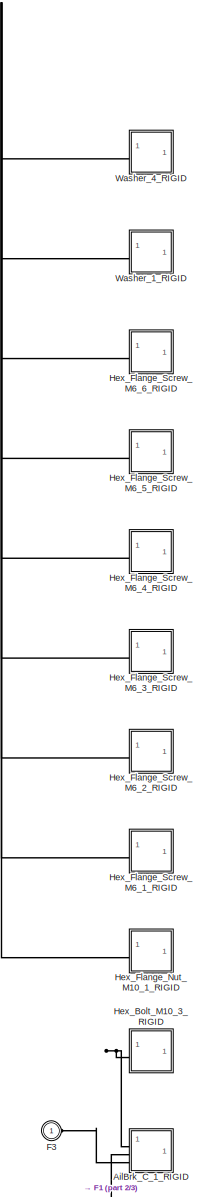
[diagram: Mechanical/Aileron_Att_1/MountL_Att_1 - part 1/3, full width, top band]
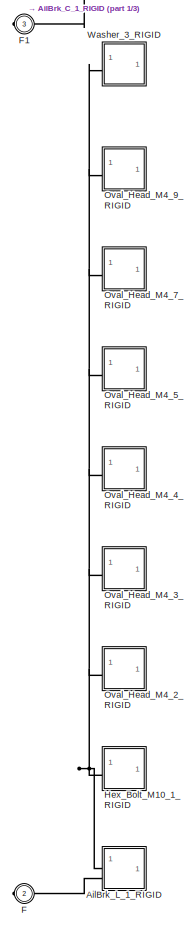
[diagram: Mechanical/Aileron_Att_1/MountL_Att_1 - part 2/3, full width, middle band]
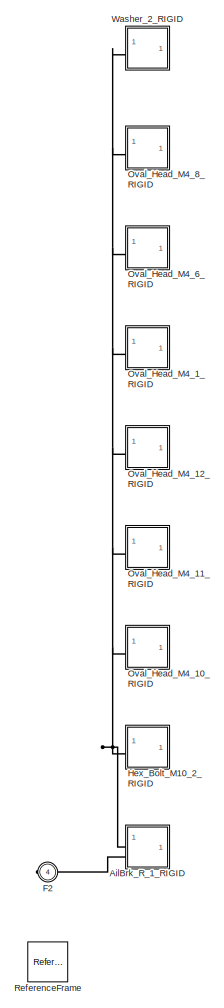
[diagram: Mechanical/Aileron_Att_1/MountL_Att_1 - part 3/3, full width, bottom band]
BLOCK [SubSystem] Mechanical/Aileron_Att_1/MountL_Att_1
BLOCK [SubSystem] Mechanical/Aileron_Att_1/MountL_Att_1/AilBrk_C_1_RIGID
BLOCK [PMIOPort] Mechanical/Aileron_Att_1/MountL_Att_1/AilBrk_C_1_RIGID/F
  Port = 2
  Side = Left
BLOCK [PMIOPort] Mechanical/Aileron_Att_1/MountL_Att_1/AilBrk_C_1_RIGID/F1
  Port = 3
  Side = Left
BLOCK [PMIOPort] Mechanical/Aileron_Att_1/MountL_Att_1/AilBrk_C_1_RIGID/G
  Side = Left
BLOCK [Reference] Mechanical/Aileron_Att_1/MountL_Att_1/AilBrk_C_1_RIGID/ReferenceFrame  REF=sm_lib/Frames and
Transforms/Reference
Frame
  SourceBlock = sm_lib/Frames and\nTransforms/Reference\nFrame
  SourceType = Reference\nFrame
BLOCK [Reference] Mechanical/Aileron_Att_1/MountL_Att_1/AilBrk_C_1_RIGID/Solid  REF=sm_lib/Body Elements/File Solid
  SourceBlock = sm_lib/Body Elements/File Solid
  SourceType = File Solid
BLOCK [Reference] Mechanical/Aileron_Att_1/MountL_Att_1/AilBrk_C_1_RIGID/Transform  REF=sm_lib/Frames and
Transforms/Rigid
Transform
  SourceBlock = sm_lib/Frames and\nTransforms/Rigid\nTransform
  SourceType = Rigid\nTransform
BLOCK [Reference] Mechanical/Aileron_Att_1/MountL_Att_1/AilBrk_C_1_RIGID/Transform1  REF=sm_lib/Frames and
Transforms/Rigid
Transform
  SourceBlock = sm_lib/Frames and\nTransforms/Rigid\nTransform
  SourceType = Rigid\nTransform
BLOCK [Reference] Mechanical/Aileron_Att_1/MountL_Att_1/AilBrk_C_1_RIGID/Transform2  REF=sm_lib/Frames and
Transforms/Rigid
Transform
  SourceBlock = sm_lib/Frames and\nTransforms/Rigid\nTransform
  SourceType = Rigid\nTransform
BLOCK [SubSystem] Mechanical/Aileron_Att_1/MountL_Att_1/AilBrk_L_1_RIGID
BLOCK [PMIOPort] Mechanical/Aileron_Att_1/MountL_Att_1/AilBrk_L_1_RIGID/F
  Port = 2
  Side = Left
BLOCK [PMIOPort] Mechanical/Aileron_Att_1/MountL_Att_1/AilBrk_L_1_RIGID/G
  Side = Left
BLOCK [Reference] Mechanical/Aileron_Att_1/MountL_Att_1/AilBrk_L_1_RIGID/ReferenceFrame  REF=sm_lib/Frames and
Transforms/Reference
Frame
  SourceBlock = sm_lib/Frames and\nTransforms/Reference\nFrame
  SourceType = Reference\nFrame
BLOCK [Reference] Mechanical/Aileron_Att_1/MountL_Att_1/AilBrk_L_1_RIGID/Solid  REF=sm_lib/Body Elements/File Solid
  SourceBlock = sm_lib/Body Elements/File Solid
  SourceType = File Solid
BLOCK [Reference] Mechanical/Aileron_Att_1/MountL_Att_1/AilBrk_L_1_RIGID/Transform  REF=sm_lib/Frames and
Transforms/Rigid
Transform
  SourceBlock = sm_lib/Frames and\nTransforms/Rigid\nTransform
  SourceType = Rigid\nTransform
BLOCK [Reference] Mechanical/Aileron_Att_1/MountL_Att_1/AilBrk_L_1_RIGID/Transform1  REF=sm_lib/Frames and
Transforms/Rigid
Transform
  SourceBlock = sm_lib/Frames and\nTransforms/Rigid\nTransform
  SourceType = Rigid\nTransform
BLOCK [SubSystem] Mechanical/Aileron_Att_1/MountL_Att_1/AilBrk_R_1_RIGID
BLOCK [PMIOPort] Mechanical/Aileron_Att_1/MountL_Att_1/AilBrk_R_1_RIGID/F
  Port = 2
  Side = Left
BLOCK [PMIOPort] Mechanical/Aileron_Att_1/MountL_Att_1/AilBrk_R_1_RIGID/G
  Side = Left
BLOCK [Reference] Mechanical/Aileron_Att_1/MountL_Att_1/AilBrk_R_1_RIGID/ReferenceFrame  REF=sm_lib/Frames and
Transforms/Reference
Frame
  SourceBlock = sm_lib/Frames and\nTransforms/Reference\nFrame
  SourceType = Reference\nFrame
BLOCK [Reference] Mechanical/Aileron_Att_1/MountL_Att_1/AilBrk_R_1_RIGID/Solid  REF=sm_lib/Body Elements/File Solid
  SourceBlock = sm_lib/Body Elements/File Solid
  SourceType = File Solid
BLOCK [Reference] Mechanical/Aileron_Att_1/MountL_Att_1/AilBrk_R_1_RIGID/Transform  REF=sm_lib/Frames and
Transforms/Rigid
Transform
  SourceBlock = sm_lib/Frames and\nTransforms/Rigid\nTransform
  SourceType = Rigid\nTransform
BLOCK [Reference] Mechanical/Aileron_Att_1/MountL_Att_1/AilBrk_R_1_RIGID/Transform1  REF=sm_lib/Frames and
Transforms/Rigid
Transform
  SourceBlock = sm_lib/Frames and\nTransforms/Rigid\nTransform
  SourceType = Rigid\nTransform
BLOCK [PMIOPort] Mechanical/Aileron_Att_1/MountL_Att_1/F
  Port = 2
  Side = Right
BLOCK [PMIOPort] Mechanical/Aileron_Att_1/MountL_Att_1/F1
  Port = 3
  Side = Right
BLOCK [PMIOPort] Mechanical/Aileron_Att_1/MountL_Att_1/F2
  Port = 4
  Side = Right
BLOCK [PMIOPort] Mechanical/Aileron_Att_1/MountL_Att_1/F3
  Side = Left
BLOCK [SubSystem] Mechanical/Aileron_Att_1/MountL_Att_1/Hex_Bolt_M10_1_RIGID
BLOCK [PMIOPort] Mechanical/Aileron_Att_1/MountL_Att_1/Hex_Bolt_M10_1_RIGID/G
  Side = Left
BLOCK [Reference] Mechanical/Aileron_Att_1/MountL_Att_1/Hex_Bolt_M10_1_RIGID/ReferenceFrame  REF=sm_lib/Frames and
Transforms/Reference
Frame
  SourceBlock = sm_lib/Frames and\nTransforms/Reference\nFrame
  SourceType = Reference\nFrame
BLOCK [Reference] Mechanical/Aileron_Att_1/MountL_Att_1/Hex_Bolt_M10_1_RIGID/Solid  REF=sm_lib/Body Elements/File Solid
  SourceBlock = sm_lib/Body Elements/File Solid
  SourceType = File Solid
BLOCK [Reference] Mechanical/Aileron_Att_1/MountL_Att_1/Hex_Bolt_M10_1_RIGID/Transform  REF=sm_lib/Frames and
Transforms/Rigid
Transform
  SourceBlock = sm_lib/Frames and\nTransforms/Rigid\nTransform
  SourceType = Rigid\nTransform
BLOCK [SubSystem] Mechanical/Aileron_Att_1/MountL_Att_1/Hex_Bolt_M10_2_RIGID
BLOCK [PMIOPort] Mechanical/Aileron_Att_1/MountL_Att_1/Hex_Bolt_M10_2_RIGID/G
  Side = Left
BLOCK [Reference] Mechanical/Aileron_Att_1/MountL_Att_1/Hex_Bolt_M10_2_RIGID/ReferenceFrame  REF=sm_lib/Frames and
Transforms/Reference
Frame
  SourceBlock = sm_lib/Frames and\nTransforms/Reference\nFrame
  SourceType = Reference\nFrame
BLOCK [Reference] Mechanical/Aileron_Att_1/MountL_Att_1/Hex_Bolt_M10_2_RIGID/Solid  REF=sm_lib/Body Elements/File Solid
  SourceBlock = sm_lib/Body Elements/File Solid
  SourceType = File Solid
BLOCK [Reference] Mechanical/Aileron_Att_1/MountL_Att_1/Hex_Bolt_M10_2_RIGID/Transform  REF=sm_lib/Frames and
Transforms/Rigid
Transform
  SourceBlock = sm_lib/Frames and\nTransforms/Rigid\nTransform
  SourceType = Rigid\nTransform
BLOCK [SubSystem] Mechanical/Aileron_Att_1/MountL_Att_1/Hex_Bolt_M10_3_RIGID
BLOCK [PMIOPort] Mechanical/Aileron_Att_1/MountL_Att_1/Hex_Bolt_M10_3_RIGID/G
  Side = Left
BLOCK [Reference] Mechanical/Aileron_Att_1/MountL_Att_1/Hex_Bolt_M10_3_RIGID/ReferenceFrame  REF=sm_lib/Frames and
Transforms/Reference
Frame
  SourceBlock = sm_lib/Frames and\nTransforms/Reference\nFrame
  SourceType = Reference\nFrame
BLOCK [Reference] Mechanical/Aileron_Att_1/MountL_Att_1/Hex_Bolt_M10_3_RIGID/Solid  REF=sm_lib/Body Elements/File Solid
  SourceBlock = sm_lib/Body Elements/File Solid
  SourceType = File Solid
BLOCK [Reference] Mechanical/Aileron_Att_1/MountL_Att_1/Hex_Bolt_M10_3_RIGID/Transform  REF=sm_lib/Frames and
Transforms/Rigid
Transform
  SourceBlock = sm_lib/Frames and\nTransforms/Rigid\nTransform
  SourceType = Rigid\nTransform
BLOCK [SubSystem] Mechanical/Aileron_Att_1/MountL_Att_1/Hex_Flange_Nut_M10_1_RIGID
BLOCK [PMIOPort] Mechanical/Aileron_Att_1/MountL_Att_1/Hex_Flange_Nut_M10_1_RIGID/G
  Side = Left
BLOCK [Reference] Mechanical/Aileron_Att_1/MountL_Att_1/Hex_Flange_Nut_M10_1_RIGID/ReferenceFrame  REF=sm_lib/Frames and
Transforms/Reference
Frame
  SourceBlock = sm_lib/Frames and\nTransforms/Reference\nFrame
  SourceType = Reference\nFrame
BLOCK [Reference] Mechanical/Aileron_Att_1/MountL_Att_1/Hex_Flange_Nut_M10_1_RIGID/Solid  REF=sm_lib/Body Elements/File Solid
  SourceBlock = sm_lib/Body Elements/File Solid
  SourceType = File Solid
BLOCK [Reference] Mechanical/Aileron_Att_1/MountL_Att_1/Hex_Flange_Nut_M10_1_RIGID/Transform  REF=sm_lib/Frames and
Transforms/Rigid
Transform
  SourceBlock = sm_lib/Frames and\nTransforms/Rigid\nTransform
  SourceType = Rigid\nTransform
BLOCK [SubSystem] Mechanical/Aileron_Att_1/MountL_Att_1/Hex_Flange_Screw_M6_1_RIGID
BLOCK [PMIOPort] Mechanical/Aileron_Att_1/MountL_Att_1/Hex_Flange_Screw_M6_1_RIGID/G
  Side = Left
BLOCK [Reference] Mechanical/Aileron_Att_1/MountL_Att_1/Hex_Flange_Screw_M6_1_RIGID/ReferenceFrame  REF=sm_lib/Frames and
Transforms/Reference
Frame
  SourceBlock = sm_lib/Frames and\nTransforms/Reference\nFrame
  SourceType = Reference\nFrame
BLOCK [Reference] Mechanical/Aileron_Att_1/MountL_Att_1/Hex_Flange_Screw_M6_1_RIGID/Solid  REF=sm_lib/Body Elements/File Solid
  SourceBlock = sm_lib/Body Elements/File Solid
  SourceType = File Solid
BLOCK [Reference] Mechanical/Aileron_Att_1/MountL_Att_1/Hex_Flange_Screw_M6_1_RIGID/Transform  REF=sm_lib/Frames and
Transforms/Rigid
Transform
  SourceBlock = sm_lib/Frames and\nTransforms/Rigid\nTransform
  SourceType = Rigid\nTransform
BLOCK [SubSystem] Mechanical/Aileron_Att_1/MountL_Att_1/Hex_Flange_Screw_M6_2_RIGID
BLOCK [PMIOPort] Mechanical/Aileron_Att_1/MountL_Att_1/Hex_Flange_Screw_M6_2_RIGID/G
  Side = Left
BLOCK [Reference] Mechanical/Aileron_Att_1/MountL_Att_1/Hex_Flange_Screw_M6_2_RIGID/ReferenceFrame  REF=sm_lib/Frames and
Transforms/Reference
Frame
  SourceBlock = sm_lib/Frames and\nTransforms/Reference\nFrame
  SourceType = Reference\nFrame
BLOCK [Reference] Mechanical/Aileron_Att_1/MountL_Att_1/Hex_Flange_Screw_M6_2_RIGID/Solid  REF=sm_lib/Body Elements/File Solid
  SourceBlock = sm_lib/Body Elements/File Solid
  SourceType = File Solid
BLOCK [Reference] Mechanical/Aileron_Att_1/MountL_Att_1/Hex_Flange_Screw_M6_2_RIGID/Transform  REF=sm_lib/Frames and
Transforms/Rigid
Transform
  SourceBlock = sm_lib/Frames and\nTransforms/Rigid\nTransform
  SourceType = Rigid\nTransform
BLOCK [SubSystem] Mechanical/Aileron_Att_1/MountL_Att_1/Hex_Flange_Screw_M6_3_RIGID
BLOCK [PMIOPort] Mechanical/Aileron_Att_1/MountL_Att_1/Hex_Flange_Screw_M6_3_RIGID/G
  Side = Left
BLOCK [Reference] Mechanical/Aileron_Att_1/MountL_Att_1/Hex_Flange_Screw_M6_3_RIGID/ReferenceFrame  REF=sm_lib/Frames and
Transforms/Reference
Frame
  SourceBlock = sm_lib/Frames and\nTransforms/Reference\nFrame
  SourceType = Reference\nFrame
BLOCK [Reference] Mechanical/Aileron_Att_1/MountL_Att_1/Hex_Flange_Screw_M6_3_RIGID/Solid  REF=sm_lib/Body Elements/File Solid
  SourceBlock = sm_lib/Body Elements/File Solid
  SourceType = File Solid
BLOCK [Reference] Mechanical/Aileron_Att_1/MountL_Att_1/Hex_Flange_Screw_M6_3_RIGID/Transform  REF=sm_lib/Frames and
Transforms/Rigid
Transform
  SourceBlock = sm_lib/Frames and\nTransforms/Rigid\nTransform
  SourceType = Rigid\nTransform
BLOCK [SubSystem] Mechanical/Aileron_Att_1/MountL_Att_1/Hex_Flange_Screw_M6_4_RIGID
BLOCK [PMIOPort] Mechanical/Aileron_Att_1/MountL_Att_1/Hex_Flange_Screw_M6_4_RIGID/G
  Side = Left
BLOCK [Reference] Mechanical/Aileron_Att_1/MountL_Att_1/Hex_Flange_Screw_M6_4_RIGID/ReferenceFrame  REF=sm_lib/Frames and
Transforms/Reference
Frame
  SourceBlock = sm_lib/Frames and\nTransforms/Reference\nFrame
  SourceType = Reference\nFrame
BLOCK [Reference] Mechanical/Aileron_Att_1/MountL_Att_1/Hex_Flange_Screw_M6_4_RIGID/Solid  REF=sm_lib/Body Elements/File Solid
  SourceBlock = sm_lib/Body Elements/File Solid
  SourceType = File Solid
BLOCK [Reference] Mechanical/Aileron_Att_1/MountL_Att_1/Hex_Flange_Screw_M6_4_RIGID/Transform  REF=sm_lib/Frames and
Transforms/Rigid
Transform
  SourceBlock = sm_lib/Frames and\nTransforms/Rigid\nTransform
  SourceType = Rigid\nTransform
BLOCK [SubSystem] Mechanical/Aileron_Att_1/MountL_Att_1/Hex_Flange_Screw_M6_5_RIGID
BLOCK [PMIOPort] Mechanical/Aileron_Att_1/MountL_Att_1/Hex_Flange_Screw_M6_5_RIGID/G
  Side = Left
BLOCK [Reference] Mechanical/Aileron_Att_1/MountL_Att_1/Hex_Flange_Screw_M6_5_RIGID/ReferenceFrame  REF=sm_lib/Frames and
Transforms/Reference
Frame
  SourceBlock = sm_lib/Frames and\nTransforms/Reference\nFrame
  SourceType = Reference\nFrame
BLOCK [Reference] Mechanical/Aileron_Att_1/MountL_Att_1/Hex_Flange_Screw_M6_5_RIGID/Solid  REF=sm_lib/Body Elements/File Solid
  SourceBlock = sm_lib/Body Elements/File Solid
  SourceType = File Solid
BLOCK [Reference] Mechanical/Aileron_Att_1/MountL_Att_1/Hex_Flange_Screw_M6_5_RIGID/Transform  REF=sm_lib/Frames and
Transforms/Rigid
Transform
  SourceBlock = sm_lib/Frames and\nTransforms/Rigid\nTransform
  SourceType = Rigid\nTransform
BLOCK [SubSystem] Mechanical/Aileron_Att_1/MountL_Att_1/Hex_Flange_Screw_M6_6_RIGID
BLOCK [PMIOPort] Mechanical/Aileron_Att_1/MountL_Att_1/Hex_Flange_Screw_M6_6_RIGID/G
  Side = Left
BLOCK [Reference] Mechanical/Aileron_Att_1/MountL_Att_1/Hex_Flange_Screw_M6_6_RIGID/ReferenceFrame  REF=sm_lib/Frames and
Transforms/Reference
Frame
  SourceBlock = sm_lib/Frames and\nTransforms/Reference\nFrame
  SourceType = Reference\nFrame
BLOCK [Reference] Mechanical/Aileron_Att_1/MountL_Att_1/Hex_Flange_Screw_M6_6_RIGID/Solid  REF=sm_lib/Body Elements/File Solid
  SourceBlock = sm_lib/Body Elements/File Solid
  SourceType = File Solid
BLOCK [Reference] Mechanical/Aileron_Att_1/MountL_Att_1/Hex_Flange_Screw_M6_6_RIGID/Transform  REF=sm_lib/Frames and
Transforms/Rigid
Transform
  SourceBlock = sm_lib/Frames and\nTransforms/Rigid\nTransform
  SourceType = Rigid\nTransform
BLOCK [SubSystem] Mechanical/Aileron_Att_1/MountL_Att_1/Oval_Head_M4_10_RIGID
BLOCK [PMIOPort] Mechanical/Aileron_Att_1/MountL_Att_1/Oval_Head_M4_10_RIGID/G
  Side = Left
BLOCK [Reference] Mechanical/Aileron_Att_1/MountL_Att_1/Oval_Head_M4_10_RIGID/ReferenceFrame  REF=sm_lib/Frames and
Transforms/Reference
Frame
  SourceBlock = sm_lib/Frames and\nTransforms/Reference\nFrame
  SourceType = Reference\nFrame
BLOCK [Reference] Mechanical/Aileron_Att_1/MountL_Att_1/Oval_Head_M4_10_RIGID/Solid  REF=sm_lib/Body Elements/File Solid
  SourceBlock = sm_lib/Body Elements/File Solid
  SourceType = File Solid
BLOCK [Reference] Mechanical/Aileron_Att_1/MountL_Att_1/Oval_Head_M4_10_RIGID/Transform  REF=sm_lib/Frames and
Transforms/Rigid
Transform
  SourceBlock = sm_lib/Frames and\nTransforms/Rigid\nTransform
  SourceType = Rigid\nTransform
BLOCK [SubSystem] Mechanical/Aileron_Att_1/MountL_Att_1/Oval_Head_M4_11_RIGID
BLOCK [PMIOPort] Mechanical/Aileron_Att_1/MountL_Att_1/Oval_Head_M4_11_RIGID/G
  Side = Left
BLOCK [Reference] Mechanical/Aileron_Att_1/MountL_Att_1/Oval_Head_M4_11_RIGID/ReferenceFrame  REF=sm_lib/Frames and
Transforms/Reference
Frame
  SourceBlock = sm_lib/Frames and\nTransforms/Reference\nFrame
  SourceType = Reference\nFrame
BLOCK [Reference] Mechanical/Aileron_Att_1/MountL_Att_1/Oval_Head_M4_11_RIGID/Solid  REF=sm_lib/Body Elements/File Solid
  SourceBlock = sm_lib/Body Elements/File Solid
  SourceType = File Solid
BLOCK [Reference] Mechanical/Aileron_Att_1/MountL_Att_1/Oval_Head_M4_11_RIGID/Transform  REF=sm_lib/Frames and
Transforms/Rigid
Transform
  SourceBlock = sm_lib/Frames and\nTransforms/Rigid\nTransform
  SourceType = Rigid\nTransform
BLOCK [SubSystem] Mechanical/Aileron_Att_1/MountL_Att_1/Oval_Head_M4_12_RIGID
BLOCK [PMIOPort] Mechanical/Aileron_Att_1/MountL_Att_1/Oval_Head_M4_12_RIGID/G
  Side = Left
BLOCK [Reference] Mechanical/Aileron_Att_1/MountL_Att_1/Oval_Head_M4_12_RIGID/ReferenceFrame  REF=sm_lib/Frames and
Transforms/Reference
Frame
  SourceBlock = sm_lib/Frames and\nTransforms/Reference\nFrame
  SourceType = Reference\nFrame
BLOCK [Reference] Mechanical/Aileron_Att_1/MountL_Att_1/Oval_Head_M4_12_RIGID/Solid  REF=sm_lib/Body Elements/File Solid
  SourceBlock = sm_lib/Body Elements/File Solid
  SourceType = File Solid
BLOCK [Reference] Mechanical/Aileron_Att_1/MountL_Att_1/Oval_Head_M4_12_RIGID/Transform  REF=sm_lib/Frames and
Transforms/Rigid
Transform
  SourceBlock = sm_lib/Frames and\nTransforms/Rigid\nTransform
  SourceType = Rigid\nTransform
BLOCK [SubSystem] Mechanical/Aileron_Att_1/MountL_Att_1/Oval_Head_M4_1_RIGID
BLOCK [PMIOPort] Mechanical/Aileron_Att_1/MountL_Att_1/Oval_Head_M4_1_RIGID/G
  Side = Left
BLOCK [Reference] Mechanical/Aileron_Att_1/MountL_Att_1/Oval_Head_M4_1_RIGID/ReferenceFrame  REF=sm_lib/Frames and
Transforms/Reference
Frame
  SourceBlock = sm_lib/Frames and\nTransforms/Reference\nFrame
  SourceType = Reference\nFrame
BLOCK [Reference] Mechanical/Aileron_Att_1/MountL_Att_1/Oval_Head_M4_1_RIGID/Solid  REF=sm_lib/Body Elements/File Solid
  SourceBlock = sm_lib/Body Elements/File Solid
  SourceType = File Solid
BLOCK [Reference] Mechanical/Aileron_Att_1/MountL_Att_1/Oval_Head_M4_1_RIGID/Transform  REF=sm_lib/Frames and
Transforms/Rigid
Transform
  SourceBlock = sm_lib/Frames and\nTransforms/Rigid\nTransform
  SourceType = Rigid\nTransform
BLOCK [SubSystem] Mechanical/Aileron_Att_1/MountL_Att_1/Oval_Head_M4_2_RIGID
BLOCK [PMIOPort] Mechanical/Aileron_Att_1/MountL_Att_1/Oval_Head_M4_2_RIGID/G
  Side = Left
BLOCK [Reference] Mechanical/Aileron_Att_1/MountL_Att_1/Oval_Head_M4_2_RIGID/ReferenceFrame  REF=sm_lib/Frames and
Transforms/Reference
Frame
  SourceBlock = sm_lib/Frames and\nTransforms/Reference\nFrame
  SourceType = Reference\nFrame
BLOCK [Reference] Mechanical/Aileron_Att_1/MountL_Att_1/Oval_Head_M4_2_RIGID/Solid  REF=sm_lib/Body Elements/File Solid
  SourceBlock = sm_lib/Body Elements/File Solid
  SourceType = File Solid
BLOCK [Reference] Mechanical/Aileron_Att_1/MountL_Att_1/Oval_Head_M4_2_RIGID/Transform  REF=sm_lib/Frames and
Transforms/Rigid
Transform
  SourceBlock = sm_lib/Frames and\nTransforms/Rigid\nTransform
  SourceType = Rigid\nTransform
BLOCK [SubSystem] Mechanical/Aileron_Att_1/MountL_Att_1/Oval_Head_M4_3_RIGID
BLOCK [PMIOPort] Mechanical/Aileron_Att_1/MountL_Att_1/Oval_Head_M4_3_RIGID/G
  Side = Left
BLOCK [Reference] Mechanical/Aileron_Att_1/MountL_Att_1/Oval_Head_M4_3_RIGID/ReferenceFrame  REF=sm_lib/Frames and
Transforms/Reference
Frame
  SourceBlock = sm_lib/Frames and\nTransforms/Reference\nFrame
  SourceType = Reference\nFrame
BLOCK [Reference] Mechanical/Aileron_Att_1/MountL_Att_1/Oval_Head_M4_3_RIGID/Solid  REF=sm_lib/Body Elements/File Solid
  SourceBlock = sm_lib/Body Elements/File Solid
  SourceType = File Solid
BLOCK [Reference] Mechanical/Aileron_Att_1/MountL_Att_1/Oval_Head_M4_3_RIGID/Transform  REF=sm_lib/Frames and
Transforms/Rigid
Transform
  SourceBlock = sm_lib/Frames and\nTransforms/Rigid\nTransform
  SourceType = Rigid\nTransform
BLOCK [SubSystem] Mechanical/Aileron_Att_1/MountL_Att_1/Oval_Head_M4_4_RIGID
BLOCK [PMIOPort] Mechanical/Aileron_Att_1/MountL_Att_1/Oval_Head_M4_4_RIGID/G
  Side = Left
BLOCK [Reference] Mechanical/Aileron_Att_1/MountL_Att_1/Oval_Head_M4_4_RIGID/ReferenceFrame  REF=sm_lib/Frames and
Transforms/Reference
Frame
  SourceBlock = sm_lib/Frames and\nTransforms/Reference\nFrame
  SourceType = Reference\nFrame
BLOCK [Reference] Mechanical/Aileron_Att_1/MountL_Att_1/Oval_Head_M4_4_RIGID/Solid  REF=sm_lib/Body Elements/File Solid
  SourceBlock = sm_lib/Body Elements/File Solid
  SourceType = File Solid
BLOCK [Reference] Mechanical/Aileron_Att_1/MountL_Att_1/Oval_Head_M4_4_RIGID/Transform  REF=sm_lib/Frames and
Transforms/Rigid
Transform
  SourceBlock = sm_lib/Frames and\nTransforms/Rigid\nTransform
  SourceType = Rigid\nTransform
BLOCK [SubSystem] Mechanical/Aileron_Att_1/MountL_Att_1/Oval_Head_M4_5_RIGID
BLOCK [PMIOPort] Mechanical/Aileron_Att_1/MountL_Att_1/Oval_Head_M4_5_RIGID/G
  Side = Left
BLOCK [Reference] Mechanical/Aileron_Att_1/MountL_Att_1/Oval_Head_M4_5_RIGID/ReferenceFrame  REF=sm_lib/Frames and
Transforms/Reference
Frame
  SourceBlock = sm_lib/Frames and\nTransforms/Reference\nFrame
  SourceType = Reference\nFrame
BLOCK [Reference] Mechanical/Aileron_Att_1/MountL_Att_1/Oval_Head_M4_5_RIGID/Solid  REF=sm_lib/Body Elements/File Solid
  SourceBlock = sm_lib/Body Elements/File Solid
  SourceType = File Solid
BLOCK [Reference] Mechanical/Aileron_Att_1/MountL_Att_1/Oval_Head_M4_5_RIGID/Transform  REF=sm_lib/Frames and
Transforms/Rigid
Transform
  SourceBlock = sm_lib/Frames and\nTransforms/Rigid\nTransform
  SourceType = Rigid\nTransform
BLOCK [SubSystem] Mechanical/Aileron_Att_1/MountL_Att_1/Oval_Head_M4_6_RIGID
BLOCK [PMIOPort] Mechanical/Aileron_Att_1/MountL_Att_1/Oval_Head_M4_6_RIGID/G
  Side = Left
BLOCK [Reference] Mechanical/Aileron_Att_1/MountL_Att_1/Oval_Head_M4_6_RIGID/ReferenceFrame  REF=sm_lib/Frames and
Transforms/Reference
Frame
  SourceBlock = sm_lib/Frames and\nTransforms/Reference\nFrame
  SourceType = Reference\nFrame
BLOCK [Reference] Mechanical/Aileron_Att_1/MountL_Att_1/Oval_Head_M4_6_RIGID/Solid  REF=sm_lib/Body Elements/File Solid
  SourceBlock = sm_lib/Body Elements/File Solid
  SourceType = File Solid
BLOCK [Reference] Mechanical/Aileron_Att_1/MountL_Att_1/Oval_Head_M4_6_RIGID/Transform  REF=sm_lib/Frames and
Transforms/Rigid
Transform
  SourceBlock = sm_lib/Frames and\nTransforms/Rigid\nTransform
  SourceType = Rigid\nTransform
BLOCK [SubSystem] Mechanical/Aileron_Att_1/MountL_Att_1/Oval_Head_M4_7_RIGID
BLOCK [PMIOPort] Mechanical/Aileron_Att_1/MountL_Att_1/Oval_Head_M4_7_RIGID/G
  Side = Left
BLOCK [Reference] Mechanical/Aileron_Att_1/MountL_Att_1/Oval_Head_M4_7_RIGID/ReferenceFrame  REF=sm_lib/Frames and
Transforms/Reference
Frame
  SourceBlock = sm_lib/Frames and\nTransforms/Reference\nFrame
  SourceType = Reference\nFrame
BLOCK [Reference] Mechanical/Aileron_Att_1/MountL_Att_1/Oval_Head_M4_7_RIGID/Solid  REF=sm_lib/Body Elements/File Solid
  SourceBlock = sm_lib/Body Elements/File Solid
  SourceType = File Solid
BLOCK [Reference] Mechanical/Aileron_Att_1/MountL_Att_1/Oval_Head_M4_7_RIGID/Transform  REF=sm_lib/Frames and
Transforms/Rigid
Transform
  SourceBlock = sm_lib/Frames and\nTransforms/Rigid\nTransform
  SourceType = Rigid\nTransform
BLOCK [SubSystem] Mechanical/Aileron_Att_1/MountL_Att_1/Oval_Head_M4_8_RIGID
BLOCK [PMIOPort] Mechanical/Aileron_Att_1/MountL_Att_1/Oval_Head_M4_8_RIGID/G
  Side = Left
BLOCK [Reference] Mechanical/Aileron_Att_1/MountL_Att_1/Oval_Head_M4_8_RIGID/ReferenceFrame  REF=sm_lib/Frames and
Transforms/Reference
Frame
  SourceBlock = sm_lib/Frames and\nTransforms/Reference\nFrame
  SourceType = Reference\nFrame
BLOCK [Reference] Mechanical/Aileron_Att_1/MountL_Att_1/Oval_Head_M4_8_RIGID/Solid  REF=sm_lib/Body Elements/File Solid
  SourceBlock = sm_lib/Body Elements/File Solid
  SourceType = File Solid
BLOCK [Reference] Mechanical/Aileron_Att_1/MountL_Att_1/Oval_Head_M4_8_RIGID/Transform  REF=sm_lib/Frames and
Transforms/Rigid
Transform
  SourceBlock = sm_lib/Frames and\nTransforms/Rigid\nTransform
  SourceType = Rigid\nTransform
BLOCK [SubSystem] Mechanical/Aileron_Att_1/MountL_Att_1/Oval_Head_M4_9_RIGID
BLOCK [PMIOPort] Mechanical/Aileron_Att_1/MountL_Att_1/Oval_Head_M4_9_RIGID/G
  Side = Left
BLOCK [Reference] Mechanical/Aileron_Att_1/MountL_Att_1/Oval_Head_M4_9_RIGID/ReferenceFrame  REF=sm_lib/Frames and
Transforms/Reference
Frame
  SourceBlock = sm_lib/Frames and\nTransforms/Reference\nFrame
  SourceType = Reference\nFrame
BLOCK [Reference] Mechanical/Aileron_Att_1/MountL_Att_1/Oval_Head_M4_9_RIGID/Solid  REF=sm_lib/Body Elements/File Solid
  SourceBlock = sm_lib/Body Elements/File Solid
  SourceType = File Solid
BLOCK [Reference] Mechanical/Aileron_Att_1/MountL_Att_1/Oval_Head_M4_9_RIGID/Transform  REF=sm_lib/Frames and
Transforms/Rigid
Transform
  SourceBlock = sm_lib/Frames and\nTransforms/Rigid\nTransform
  SourceType = Rigid\nTransform
BLOCK [Reference] Mechanical/Aileron_Att_1/MountL_Att_1/ReferenceFrame  REF=sm_lib/Frames and
Transforms/Reference
Frame
  SourceBlock = sm_lib/Frames and\nTransforms/Reference\nFrame
  SourceType = Reference\nFrame
BLOCK [SubSystem] Mechanical/Aileron_Att_1/MountL_Att_1/Washer_1_RIGID
BLOCK [PMIOPort] Mechanical/Aileron_Att_1/MountL_Att_1/Washer_1_RIGID/G
  Side = Left
BLOCK [Reference] Mechanical/Aileron_Att_1/MountL_Att_1/Washer_1_RIGID/ReferenceFrame  REF=sm_lib/Frames and
Transforms/Reference
Frame
  SourceBlock = sm_lib/Frames and\nTransforms/Reference\nFrame
  SourceType = Reference\nFrame
BLOCK [Reference] Mechanical/Aileron_Att_1/MountL_Att_1/Washer_1_RIGID/Solid  REF=sm_lib/Body Elements/File Solid
  SourceBlock = sm_lib/Body Elements/File Solid
  SourceType = File Solid
BLOCK [Reference] Mechanical/Aileron_Att_1/MountL_Att_1/Washer_1_RIGID/Transform  REF=sm_lib/Frames and
Transforms/Rigid
Transform
  SourceBlock = sm_lib/Frames and\nTransforms/Rigid\nTransform
  SourceType = Rigid\nTransform
BLOCK [SubSystem] Mechanical/Aileron_Att_1/MountL_Att_1/Washer_2_RIGID
BLOCK [PMIOPort] Mechanical/Aileron_Att_1/MountL_Att_1/Washer_2_RIGID/G
  Side = Left
BLOCK [Reference] Mechanical/Aileron_Att_1/MountL_Att_1/Washer_2_RIGID/ReferenceFrame  REF=sm_lib/Frames and
Transforms/Reference
Frame
  SourceBlock = sm_lib/Frames and\nTransforms/Reference\nFrame
  SourceType = Reference\nFrame
BLOCK [Reference] Mechanical/Aileron_Att_1/MountL_Att_1/Washer_2_RIGID/Solid  REF=sm_lib/Body Elements/File Solid
  SourceBlock = sm_lib/Body Elements/File Solid
  SourceType = File Solid
BLOCK [Reference] Mechanical/Aileron_Att_1/MountL_Att_1/Washer_2_RIGID/Transform  REF=sm_lib/Frames and
Transforms/Rigid
Transform
  SourceBlock = sm_lib/Frames and\nTransforms/Rigid\nTransform
  SourceType = Rigid\nTransform
BLOCK [SubSystem] Mechanical/Aileron_Att_1/MountL_Att_1/Washer_3_RIGID
BLOCK [PMIOPort] Mechanical/Aileron_Att_1/MountL_Att_1/Washer_3_RIGID/G
  Side = Left
BLOCK [Reference] Mechanical/Aileron_Att_1/MountL_Att_1/Washer_3_RIGID/ReferenceFrame  REF=sm_lib/Frames and
Transforms/Reference
Frame
  SourceBlock = sm_lib/Frames and\nTransforms/Reference\nFrame
  SourceType = Reference\nFrame
BLOCK [Reference] Mechanical/Aileron_Att_1/MountL_Att_1/Washer_3_RIGID/Solid  REF=sm_lib/Body Elements/File Solid
  SourceBlock = sm_lib/Body Elements/File Solid
  SourceType = File Solid
BLOCK [Reference] Mechanical/Aileron_Att_1/MountL_Att_1/Washer_3_RIGID/Transform  REF=sm_lib/Frames and
Transforms/Rigid
Transform
  SourceBlock = sm_lib/Frames and\nTransforms/Rigid\nTransform
  SourceType = Rigid\nTransform
BLOCK [SubSystem] Mechanical/Aileron_Att_1/MountL_Att_1/Washer_4_RIGID
BLOCK [PMIOPort] Mechanical/Aileron_Att_1/MountL_Att_1/Washer_4_RIGID/G
  Side = Left
BLOCK [Reference] Mechanical/Aileron_Att_1/MountL_Att_1/Washer_4_RIGID/ReferenceFrame  REF=sm_lib/Frames and
Transforms/Reference
Frame
  SourceBlock = sm_lib/Frames and\nTransforms/Reference\nFrame
  SourceType = Reference\nFrame
BLOCK [Reference] Mechanical/Aileron_Att_1/MountL_Att_1/Washer_4_RIGID/Solid  REF=sm_lib/Body Elements/File Solid
  SourceBlock = sm_lib/Body Elements/File Solid
  SourceType = File Solid
BLOCK [Reference] Mechanical/Aileron_Att_1/MountL_Att_1/Washer_4_RIGID/Transform  REF=sm_lib/Frames and
Transforms/Rigid
Transform
  SourceBlock = sm_lib/Frames and\nTransforms/Rigid\nTransform
  SourceType = Rigid\nTransform
BLOCK [SubSystem] Mechanical/Aileron_Att_1/MountR_Att_1
BLOCK [SubSystem] Mechanical/Aileron_Att_1/MountR_Att_1/AilBrk_C_1_RIGID
BLOCK [PMIOPort] Mechanical/Aileron_Att_1/MountR_Att_1/AilBrk_C_1_RIGID/F
  Port = 2
  Side = Left
BLOCK [PMIOPort] Mechanical/Aileron_Att_1/MountR_Att_1/AilBrk_C_1_RIGID/F1
  Port = 3
  Side = Left
BLOCK [PMIOPort] Mechanical/Aileron_Att_1/MountR_Att_1/AilBrk_C_1_RIGID/G
  Side = Left
BLOCK [Reference] Mechanical/Aileron_Att_1/MountR_Att_1/AilBrk_C_1_RIGID/ReferenceFrame  REF=sm_lib/Frames and
Transforms/Reference
Frame
  SourceBlock = sm_lib/Frames and\nTransforms/Reference\nFrame
  SourceType = Reference\nFrame
BLOCK [Reference] Mechanical/Aileron_Att_1/MountR_Att_1/AilBrk_C_1_RIGID/Solid  REF=sm_lib/Body Elements/File Solid
  SourceBlock = sm_lib/Body Elements/File Solid
  SourceType = File Solid
BLOCK [Reference] Mechanical/Aileron_Att_1/MountR_Att_1/AilBrk_C_1_RIGID/Transform  REF=sm_lib/Frames and
Transforms/Rigid
Transform
  SourceBlock = sm_lib/Frames and\nTransforms/Rigid\nTransform
  SourceType = Rigid\nTransform
BLOCK [Reference] Mechanical/Aileron_Att_1/MountR_Att_1/AilBrk_C_1_RIGID/Transform1  REF=sm_lib/Frames and
Transforms/Rigid
Transform
  SourceBlock = sm_lib/Frames and\nTransforms/Rigid\nTransform
  SourceType = Rigid\nTransform
BLOCK [Reference] Mechanical/Aileron_Att_1/MountR_Att_1/AilBrk_C_1_RIGID/Transform2  REF=sm_lib/Frames and
Transforms/Rigid
Transform
  SourceBlock = sm_lib/Frames and\nTransforms/Rigid\nTransform
  SourceType = Rigid\nTransform
BLOCK [SubSystem] Mechanical/Aileron_Att_1/MountR_Att_1/AilBrk_L_1_RIGID
BLOCK [PMIOPort] Mechanical/Aileron_Att_1/MountR_Att_1/AilBrk_L_1_RIGID/F
  Port = 2
  Side = Left
BLOCK [PMIOPort] Mechanical/Aileron_Att_1/MountR_Att_1/AilBrk_L_1_RIGID/G
  Side = Left
BLOCK [Reference] Mechanical/Aileron_Att_1/MountR_Att_1/AilBrk_L_1_RIGID/ReferenceFrame  REF=sm_lib/Frames and
Transforms/Reference
Frame
  SourceBlock = sm_lib/Frames and\nTransforms/Reference\nFrame
  SourceType = Reference\nFrame
BLOCK [Reference] Mechanical/Aileron_Att_1/MountR_Att_1/AilBrk_L_1_RIGID/Solid  REF=sm_lib/Body Elements/File Solid
  SourceBlock = sm_lib/Body Elements/File Solid
  SourceType = File Solid
BLOCK [Reference] Mechanical/Aileron_Att_1/MountR_Att_1/AilBrk_L_1_RIGID/Transform  REF=sm_lib/Frames and
Transforms/Rigid
Transform
  SourceBlock = sm_lib/Frames and\nTransforms/Rigid\nTransform
  SourceType = Rigid\nTransform
BLOCK [Reference] Mechanical/Aileron_Att_1/MountR_Att_1/AilBrk_L_1_RIGID/Transform1  REF=sm_lib/Frames and
Transforms/Rigid
Transform
  SourceBlock = sm_lib/Frames and\nTransforms/Rigid\nTransform
  SourceType = Rigid\nTransform
BLOCK [SubSystem] Mechanical/Aileron_Att_1/MountR_Att_1/AilBrk_R_1_RIGID
BLOCK [PMIOPort] Mechanical/Aileron_Att_1/MountR_Att_1/AilBrk_R_1_RIGID/F
  Port = 2
  Side = Left
BLOCK [PMIOPort] Mechanical/Aileron_Att_1/MountR_Att_1/AilBrk_R_1_RIGID/G
  Side = Left
BLOCK [Reference] Mechanical/Aileron_Att_1/MountR_Att_1/AilBrk_R_1_RIGID/ReferenceFrame  REF=sm_lib/Frames and
Transforms/Reference
Frame
  SourceBlock = sm_lib/Frames and\nTransforms/Reference\nFrame
  SourceType = Reference\nFrame
BLOCK [Reference] Mechanical/Aileron_Att_1/MountR_Att_1/AilBrk_R_1_RIGID/Solid  REF=sm_lib/Body Elements/File Solid
  SourceBlock = sm_lib/Body Elements/File Solid
  SourceType = File Solid
BLOCK [Reference] Mechanical/Aileron_Att_1/MountR_Att_1/AilBrk_R_1_RIGID/Transform  REF=sm_lib/Frames and
Transforms/Rigid
Transform
  SourceBlock = sm_lib/Frames and\nTransforms/Rigid\nTransform
  SourceType = Rigid\nTransform
BLOCK [Reference] Mechanical/Aileron_Att_1/MountR_Att_1/AilBrk_R_1_RIGID/Transform1  REF=sm_lib/Frames and
Transforms/Rigid
Transform
  SourceBlock = sm_lib/Frames and\nTransforms/Rigid\nTransform
  SourceType = Rigid\nTransform
BLOCK [PMIOPort] Mechanical/Aileron_Att_1/MountR_Att_1/F
  Port = 2
  Side = Right
BLOCK [PMIOPort] Mechanical/Aileron_Att_1/MountR_Att_1/F1
  Port = 3
  Side = Right
BLOCK [PMIOPort] Mechanical/Aileron_Att_1/MountR_Att_1/F2
  Port = 4
  Side = Right
BLOCK [PMIOPort] Mechanical/Aileron_Att_1/MountR_Att_1/F3
  Side = Left
BLOCK [SubSystem] Mechanical/Aileron_Att_1/MountR_Att_1/Hex_Bolt_M10_1_RIGID
BLOCK [PMIOPort] Mechanical/Aileron_Att_1/MountR_Att_1/Hex_Bolt_M10_1_RIGID/G
  Side = Left
BLOCK [Reference] Mechanical/Aileron_Att_1/MountR_Att_1/Hex_Bolt_M10_1_RIGID/ReferenceFrame  REF=sm_lib/Frames and
Transforms/Reference
Frame
  SourceBlock = sm_lib/Frames and\nTransforms/Reference\nFrame
  SourceType = Reference\nFrame
BLOCK [Reference] Mechanical/Aileron_Att_1/MountR_Att_1/Hex_Bolt_M10_1_RIGID/Solid  REF=sm_lib/Body Elements/File Solid
  SourceBlock = sm_lib/Body Elements/File Solid
  SourceType = File Solid
BLOCK [Reference] Mechanical/Aileron_Att_1/MountR_Att_1/Hex_Bolt_M10_1_RIGID/Transform  REF=sm_lib/Frames and
Transforms/Rigid
Transform
  SourceBlock = sm_lib/Frames and\nTransforms/Rigid\nTransform
  SourceType = Rigid\nTransform
BLOCK [SubSystem] Mechanical/Aileron_Att_1/MountR_Att_1/Hex_Bolt_M10_2_RIGID
BLOCK [PMIOPort] Mechanical/Aileron_Att_1/MountR_Att_1/Hex_Bolt_M10_2_RIGID/G
  Side = Left
BLOCK [Reference] Mechanical/Aileron_Att_1/MountR_Att_1/Hex_Bolt_M10_2_RIGID/ReferenceFrame  REF=sm_lib/Frames and
Transforms/Reference
Frame
  SourceBlock = sm_lib/Frames and\nTransforms/Reference\nFrame
  SourceType = Reference\nFrame
BLOCK [Reference] Mechanical/Aileron_Att_1/MountR_Att_1/Hex_Bolt_M10_2_RIGID/Solid  REF=sm_lib/Body Elements/File Solid
  SourceBlock = sm_lib/Body Elements/File Solid
  SourceType = File Solid
BLOCK [Reference] Mechanical/Aileron_Att_1/MountR_Att_1/Hex_Bolt_M10_2_RIGID/Transform  REF=sm_lib/Frames and
Transforms/Rigid
Transform
  SourceBlock = sm_lib/Frames and\nTransforms/Rigid\nTransform
  SourceType = Rigid\nTransform
BLOCK [SubSystem] Mechanical/Aileron_Att_1/MountR_Att_1/Hex_Bolt_M10_3_RIGID
BLOCK [PMIOPort] Mechanical/Aileron_Att_1/MountR_Att_1/Hex_Bolt_M10_3_RIGID/G
  Side = Left
BLOCK [Reference] Mechanical/Aileron_Att_1/MountR_Att_1/Hex_Bolt_M10_3_RIGID/ReferenceFrame  REF=sm_lib/Frames and
Transforms/Reference
Frame
  SourceBlock = sm_lib/Frames and\nTransforms/Reference\nFrame
  SourceType = Reference\nFrame
BLOCK [Reference] Mechanical/Aileron_Att_1/MountR_Att_1/Hex_Bolt_M10_3_RIGID/Solid  REF=sm_lib/Body Elements/File Solid
  SourceBlock = sm_lib/Body Elements/File Solid
  SourceType = File Solid
BLOCK [Reference] Mechanical/Aileron_Att_1/MountR_Att_1/Hex_Bolt_M10_3_RIGID/Transform  REF=sm_lib/Frames and
Transforms/Rigid
Transform
  SourceBlock = sm_lib/Frames and\nTransforms/Rigid\nTransform
  SourceType = Rigid\nTransform
BLOCK [SubSystem] Mechanical/Aileron_Att_1/MountR_Att_1/Hex_Flange_Nut_M10_1_RIGID
BLOCK [PMIOPort] Mechanical/Aileron_Att_1/MountR_Att_1/Hex_Flange_Nut_M10_1_RIGID/G
  Side = Left
BLOCK [Reference] Mechanical/Aileron_Att_1/MountR_Att_1/Hex_Flange_Nut_M10_1_RIGID/ReferenceFrame  REF=sm_lib/Frames and
Transforms/Reference
Frame
  SourceBlock = sm_lib/Frames and\nTransforms/Reference\nFrame
  SourceType = Reference\nFrame
BLOCK [Reference] Mechanical/Aileron_Att_1/MountR_Att_1/Hex_Flange_Nut_M10_1_RIGID/Solid  REF=sm_lib/Body Elements/File Solid
  SourceBlock = sm_lib/Body Elements/File Solid
  SourceType = File Solid
BLOCK [Reference] Mechanical/Aileron_Att_1/MountR_Att_1/Hex_Flange_Nut_M10_1_RIGID/Transform  REF=sm_lib/Frames and
Transforms/Rigid
Transform
  SourceBlock = sm_lib/Frames and\nTransforms/Rigid\nTransform
  SourceType = Rigid\nTransform
BLOCK [SubSystem] Mechanical/Aileron_Att_1/MountR_Att_1/Hex_Flange_Screw_M6_1_RIGID
BLOCK [PMIOPort] Mechanical/Aileron_Att_1/MountR_Att_1/Hex_Flange_Screw_M6_1_RIGID/G
  Side = Left
BLOCK [Reference] Mechanical/Aileron_Att_1/MountR_Att_1/Hex_Flange_Screw_M6_1_RIGID/ReferenceFrame  REF=sm_lib/Frames and
Transforms/Reference
Frame
  SourceBlock = sm_lib/Frames and\nTransforms/Reference\nFrame
  SourceType = Reference\nFrame
BLOCK [Reference] Mechanical/Aileron_Att_1/MountR_Att_1/Hex_Flange_Screw_M6_1_RIGID/Solid  REF=sm_lib/Body Elements/File Solid
  SourceBlock = sm_lib/Body Elements/File Solid
  SourceType = File Solid
BLOCK [Reference] Mechanical/Aileron_Att_1/MountR_Att_1/Hex_Flange_Screw_M6_1_RIGID/Transform  REF=sm_lib/Frames and
Transforms/Rigid
Transform
  SourceBlock = sm_lib/Frames and\nTransforms/Rigid\nTransform
  SourceType = Rigid\nTransform
BLOCK [SubSystem] Mechanical/Aileron_Att_1/MountR_Att_1/Hex_Flange_Screw_M6_2_RIGID
BLOCK [PMIOPort] Mechanical/Aileron_Att_1/MountR_Att_1/Hex_Flange_Screw_M6_2_RIGID/G
  Side = Left
BLOCK [Reference] Mechanical/Aileron_Att_1/MountR_Att_1/Hex_Flange_Screw_M6_2_RIGID/ReferenceFrame  REF=sm_lib/Frames and
Transforms/Reference
Frame
  SourceBlock = sm_lib/Frames and\nTransforms/Reference\nFrame
  SourceType = Reference\nFrame
BLOCK [Reference] Mechanical/Aileron_Att_1/MountR_Att_1/Hex_Flange_Screw_M6_2_RIGID/Solid  REF=sm_lib/Body Elements/File Solid
  SourceBlock = sm_lib/Body Elements/File Solid
  SourceType = File Solid
BLOCK [Reference] Mechanical/Aileron_Att_1/MountR_Att_1/Hex_Flange_Screw_M6_2_RIGID/Transform  REF=sm_lib/Frames and
Transforms/Rigid
Transform
  SourceBlock = sm_lib/Frames and\nTransforms/Rigid\nTransform
  SourceType = Rigid\nTransform
BLOCK [SubSystem] Mechanical/Aileron_Att_1/MountR_Att_1/Hex_Flange_Screw_M6_3_RIGID
BLOCK [PMIOPort] Mechanical/Aileron_Att_1/MountR_Att_1/Hex_Flange_Screw_M6_3_RIGID/G
  Side = Left
BLOCK [Reference] Mechanical/Aileron_Att_1/MountR_Att_1/Hex_Flange_Screw_M6_3_RIGID/ReferenceFrame  REF=sm_lib/Frames and
Transforms/Reference
Frame
  SourceBlock = sm_lib/Frames and\nTransforms/Reference\nFrame
  SourceType = Reference\nFrame
BLOCK [Reference] Mechanical/Aileron_Att_1/MountR_Att_1/Hex_Flange_Screw_M6_3_RIGID/Solid  REF=sm_lib/Body Elements/File Solid
  SourceBlock = sm_lib/Body Elements/File Solid
  SourceType = File Solid
BLOCK [Reference] Mechanical/Aileron_Att_1/MountR_Att_1/Hex_Flange_Screw_M6_3_RIGID/Transform  REF=sm_lib/Frames and
Transforms/Rigid
Transform
  SourceBlock = sm_lib/Frames and\nTransforms/Rigid\nTransform
  SourceType = Rigid\nTransform
BLOCK [SubSystem] Mechanical/Aileron_Att_1/MountR_Att_1/Hex_Flange_Screw_M6_4_RIGID
BLOCK [PMIOPort] Mechanical/Aileron_Att_1/MountR_Att_1/Hex_Flange_Screw_M6_4_RIGID/G
  Side = Left
BLOCK [Reference] Mechanical/Aileron_Att_1/MountR_Att_1/Hex_Flange_Screw_M6_4_RIGID/ReferenceFrame  REF=sm_lib/Frames and
Transforms/Reference
Frame
  SourceBlock = sm_lib/Frames and\nTransforms/Reference\nFrame
  SourceType = Reference\nFrame
BLOCK [Reference] Mechanical/Aileron_Att_1/MountR_Att_1/Hex_Flange_Screw_M6_4_RIGID/Solid  REF=sm_lib/Body Elements/File Solid
  SourceBlock = sm_lib/Body Elements/File Solid
  SourceType = File Solid
BLOCK [Reference] Mechanical/Aileron_Att_1/MountR_Att_1/Hex_Flange_Screw_M6_4_RIGID/Transform  REF=sm_lib/Frames and
Transforms/Rigid
Transform
  SourceBlock = sm_lib/Frames and\nTransforms/Rigid\nTransform
  SourceType = Rigid\nTransform
BLOCK [SubSystem] Mechanical/Aileron_Att_1/MountR_Att_1/Hex_Flange_Screw_M6_5_RIGID
BLOCK [PMIOPort] Mechanical/Aileron_Att_1/MountR_Att_1/Hex_Flange_Screw_M6_5_RIGID/G
  Side = Left
BLOCK [Reference] Mechanical/Aileron_Att_1/MountR_Att_1/Hex_Flange_Screw_M6_5_RIGID/ReferenceFrame  REF=sm_lib/Frames and
Transforms/Reference
Frame
  SourceBlock = sm_lib/Frames and\nTransforms/Reference\nFrame
  SourceType = Reference\nFrame
BLOCK [Reference] Mechanical/Aileron_Att_1/MountR_Att_1/Hex_Flange_Screw_M6_5_RIGID/Solid  REF=sm_lib/Body Elements/File Solid
  SourceBlock = sm_lib/Body Elements/File Solid
  SourceType = File Solid
BLOCK [Reference] Mechanical/Aileron_Att_1/MountR_Att_1/Hex_Flange_Screw_M6_5_RIGID/Transform  REF=sm_lib/Frames and
Transforms/Rigid
Transform
  SourceBlock = sm_lib/Frames and\nTransforms/Rigid\nTransform
  SourceType = Rigid\nTransform
BLOCK [SubSystem] Mechanical/Aileron_Att_1/MountR_Att_1/Hex_Flange_Screw_M6_6_RIGID
BLOCK [PMIOPort] Mechanical/Aileron_Att_1/MountR_Att_1/Hex_Flange_Screw_M6_6_RIGID/G
  Side = Left
BLOCK [Reference] Mechanical/Aileron_Att_1/MountR_Att_1/Hex_Flange_Screw_M6_6_RIGID/ReferenceFrame  REF=sm_lib/Frames and
Transforms/Reference
Frame
  SourceBlock = sm_lib/Frames and\nTransforms/Reference\nFrame
  SourceType = Reference\nFrame
BLOCK [Reference] Mechanical/Aileron_Att_1/MountR_Att_1/Hex_Flange_Screw_M6_6_RIGID/Solid  REF=sm_lib/Body Elements/File Solid
  SourceBlock = sm_lib/Body Elements/File Solid
  SourceType = File Solid
BLOCK [Reference] Mechanical/Aileron_Att_1/MountR_Att_1/Hex_Flange_Screw_M6_6_RIGID/Transform  REF=sm_lib/Frames and
Transforms/Rigid
Transform
  SourceBlock = sm_lib/Frames and\nTransforms/Rigid\nTransform
  SourceType = Rigid\nTransform
BLOCK [SubSystem] Mechanical/Aileron_Att_1/MountR_Att_1/Oval_Head_M4_10_RIGID
BLOCK [PMIOPort] Mechanical/Aileron_Att_1/MountR_Att_1/Oval_Head_M4_10_RIGID/G
  Side = Left
BLOCK [Reference] Mechanical/Aileron_Att_1/MountR_Att_1/Oval_Head_M4_10_RIGID/ReferenceFrame  REF=sm_lib/Frames and
Transforms/Reference
Frame
  SourceBlock = sm_lib/Frames and\nTransforms/Reference\nFrame
  SourceType = Reference\nFrame
BLOCK [Reference] Mechanical/Aileron_Att_1/MountR_Att_1/Oval_Head_M4_10_RIGID/Solid  REF=sm_lib/Body Elements/File Solid
  SourceBlock = sm_lib/Body Elements/File Solid
  SourceType = File Solid
BLOCK [Reference] Mechanical/Aileron_Att_1/MountR_Att_1/Oval_Head_M4_10_RIGID/Transform  REF=sm_lib/Frames and
Transforms/Rigid
Transform
  SourceBlock = sm_lib/Frames and\nTransforms/Rigid\nTransform
  SourceType = Rigid\nTransform
BLOCK [SubSystem] Mechanical/Aileron_Att_1/MountR_Att_1/Oval_Head_M4_11_RIGID
BLOCK [PMIOPort] Mechanical/Aileron_Att_1/MountR_Att_1/Oval_Head_M4_11_RIGID/G
  Side = Left
BLOCK [Reference] Mechanical/Aileron_Att_1/MountR_Att_1/Oval_Head_M4_11_RIGID/ReferenceFrame  REF=sm_lib/Frames and
Transforms/Reference
Frame
  SourceBlock = sm_lib/Frames and\nTransforms/Reference\nFrame
  SourceType = Reference\nFrame
BLOCK [Reference] Mechanical/Aileron_Att_1/MountR_Att_1/Oval_Head_M4_11_RIGID/Solid  REF=sm_lib/Body Elements/File Solid
  SourceBlock = sm_lib/Body Elements/File Solid
  SourceType = File Solid
BLOCK [Reference] Mechanical/Aileron_Att_1/MountR_Att_1/Oval_Head_M4_11_RIGID/Transform  REF=sm_lib/Frames and
Transforms/Rigid
Transform
  SourceBlock = sm_lib/Frames and\nTransforms/Rigid\nTransform
  SourceType = Rigid\nTransform
BLOCK [SubSystem] Mechanical/Aileron_Att_1/MountR_Att_1/Oval_Head_M4_12_RIGID
BLOCK [PMIOPort] Mechanical/Aileron_Att_1/MountR_Att_1/Oval_Head_M4_12_RIGID/G
  Side = Left
BLOCK [Reference] Mechanical/Aileron_Att_1/MountR_Att_1/Oval_Head_M4_12_RIGID/ReferenceFrame  REF=sm_lib/Frames and
Transforms/Reference
Frame
  SourceBlock = sm_lib/Frames and\nTransforms/Reference\nFrame
  SourceType = Reference\nFrame
BLOCK [Reference] Mechanical/Aileron_Att_1/MountR_Att_1/Oval_Head_M4_12_RIGID/Solid  REF=sm_lib/Body Elements/File Solid
  SourceBlock = sm_lib/Body Elements/File Solid
  SourceType = File Solid
BLOCK [Reference] Mechanical/Aileron_Att_1/MountR_Att_1/Oval_Head_M4_12_RIGID/Transform  REF=sm_lib/Frames and
Transforms/Rigid
Transform
  SourceBlock = sm_lib/Frames and\nTransforms/Rigid\nTransform
  SourceType = Rigid\nTransform
BLOCK [SubSystem] Mechanical/Aileron_Att_1/MountR_Att_1/Oval_Head_M4_1_RIGID
BLOCK [PMIOPort] Mechanical/Aileron_Att_1/MountR_Att_1/Oval_Head_M4_1_RIGID/G
  Side = Left
BLOCK [Reference] Mechanical/Aileron_Att_1/MountR_Att_1/Oval_Head_M4_1_RIGID/ReferenceFrame  REF=sm_lib/Frames and
Transforms/Reference
Frame
  SourceBlock = sm_lib/Frames and\nTransforms/Reference\nFrame
  SourceType = Reference\nFrame
BLOCK [Reference] Mechanical/Aileron_Att_1/MountR_Att_1/Oval_Head_M4_1_RIGID/Solid  REF=sm_lib/Body Elements/File Solid
  SourceBlock = sm_lib/Body Elements/File Solid
  SourceType = File Solid
BLOCK [Reference] Mechanical/Aileron_Att_1/MountR_Att_1/Oval_Head_M4_1_RIGID/Transform  REF=sm_lib/Frames and
Transforms/Rigid
Transform
  SourceBlock = sm_lib/Frames and\nTransforms/Rigid\nTransform
  SourceType = Rigid\nTransform
BLOCK [SubSystem] Mechanical/Aileron_Att_1/MountR_Att_1/Oval_Head_M4_2_RIGID
BLOCK [PMIOPort] Mechanical/Aileron_Att_1/MountR_Att_1/Oval_Head_M4_2_RIGID/G
  Side = Left
BLOCK [Reference] Mechanical/Aileron_Att_1/MountR_Att_1/Oval_Head_M4_2_RIGID/ReferenceFrame  REF=sm_lib/Frames and
Transforms/Reference
Frame
  SourceBlock = sm_lib/Frames and\nTransforms/Reference\nFrame
  SourceType = Reference\nFrame
BLOCK [Reference] Mechanical/Aileron_Att_1/MountR_Att_1/Oval_Head_M4_2_RIGID/Solid  REF=sm_lib/Body Elements/File Solid
  SourceBlock = sm_lib/Body Elements/File Solid
  SourceType = File Solid
BLOCK [Reference] Mechanical/Aileron_Att_1/MountR_Att_1/Oval_Head_M4_2_RIGID/Transform  REF=sm_lib/Frames and
Transforms/Rigid
Transform
  SourceBlock = sm_lib/Frames and\nTransforms/Rigid\nTransform
  SourceType = Rigid\nTransform
BLOCK [SubSystem] Mechanical/Aileron_Att_1/MountR_Att_1/Oval_Head_M4_3_RIGID
BLOCK [PMIOPort] Mechanical/Aileron_Att_1/MountR_Att_1/Oval_Head_M4_3_RIGID/G
  Side = Left
BLOCK [Reference] Mechanical/Aileron_Att_1/MountR_Att_1/Oval_Head_M4_3_RIGID/ReferenceFrame  REF=sm_lib/Frames and
Transforms/Reference
Frame
  SourceBlock = sm_lib/Frames and\nTransforms/Reference\nFrame
  SourceType = Reference\nFrame
BLOCK [Reference] Mechanical/Aileron_Att_1/MountR_Att_1/Oval_Head_M4_3_RIGID/Solid  REF=sm_lib/Body Elements/File Solid
  SourceBlock = sm_lib/Body Elements/File Solid
  SourceType = File Solid
BLOCK [Reference] Mechanical/Aileron_Att_1/MountR_Att_1/Oval_Head_M4_3_RIGID/Transform  REF=sm_lib/Frames and
Transforms/Rigid
Transform
  SourceBlock = sm_lib/Frames and\nTransforms/Rigid\nTransform
  SourceType = Rigid\nTransform
BLOCK [SubSystem] Mechanical/Aileron_Att_1/MountR_Att_1/Oval_Head_M4_4_RIGID
BLOCK [PMIOPort] Mechanical/Aileron_Att_1/MountR_Att_1/Oval_Head_M4_4_RIGID/G
  Side = Left
BLOCK [Reference] Mechanical/Aileron_Att_1/MountR_Att_1/Oval_Head_M4_4_RIGID/ReferenceFrame  REF=sm_lib/Frames and
Transforms/Reference
Frame
  SourceBlock = sm_lib/Frames and\nTransforms/Reference\nFrame
  SourceType = Reference\nFrame
BLOCK [Reference] Mechanical/Aileron_Att_1/MountR_Att_1/Oval_Head_M4_4_RIGID/Solid  REF=sm_lib/Body Elements/File Solid
  SourceBlock = sm_lib/Body Elements/File Solid
  SourceType = File Solid
BLOCK [Reference] Mechanical/Aileron_Att_1/MountR_Att_1/Oval_Head_M4_4_RIGID/Transform  REF=sm_lib/Frames and
Transforms/Rigid
Transform
  SourceBlock = sm_lib/Frames and\nTransforms/Rigid\nTransform
  SourceType = Rigid\nTransform
BLOCK [SubSystem] Mechanical/Aileron_Att_1/MountR_Att_1/Oval_Head_M4_5_RIGID
BLOCK [PMIOPort] Mechanical/Aileron_Att_1/MountR_Att_1/Oval_Head_M4_5_RIGID/G
  Side = Left
BLOCK [Reference] Mechanical/Aileron_Att_1/MountR_Att_1/Oval_Head_M4_5_RIGID/ReferenceFrame  REF=sm_lib/Frames and
Transforms/Reference
Frame
  SourceBlock = sm_lib/Frames and\nTransforms/Reference\nFrame
  SourceType = Reference\nFrame
BLOCK [Reference] Mechanical/Aileron_Att_1/MountR_Att_1/Oval_Head_M4_5_RIGID/Solid  REF=sm_lib/Body Elements/File Solid
  SourceBlock = sm_lib/Body Elements/File Solid
  SourceType = File Solid
BLOCK [Reference] Mechanical/Aileron_Att_1/MountR_Att_1/Oval_Head_M4_5_RIGID/Transform  REF=sm_lib/Frames and
Transforms/Rigid
Transform
  SourceBlock = sm_lib/Frames and\nTransforms/Rigid\nTransform
  SourceType = Rigid\nTransform
BLOCK [SubSystem] Mechanical/Aileron_Att_1/MountR_Att_1/Oval_Head_M4_6_RIGID
BLOCK [PMIOPort] Mechanical/Aileron_Att_1/MountR_Att_1/Oval_Head_M4_6_RIGID/G
  Side = Left
BLOCK [Reference] Mechanical/Aileron_Att_1/MountR_Att_1/Oval_Head_M4_6_RIGID/ReferenceFrame  REF=sm_lib/Frames and
Transforms/Reference
Frame
  SourceBlock = sm_lib/Frames and\nTransforms/Reference\nFrame
  SourceType = Reference\nFrame
BLOCK [Reference] Mechanical/Aileron_Att_1/MountR_Att_1/Oval_Head_M4_6_RIGID/Solid  REF=sm_lib/Body Elements/File Solid
  SourceBlock = sm_lib/Body Elements/File Solid
  SourceType = File Solid
BLOCK [Reference] Mechanical/Aileron_Att_1/MountR_Att_1/Oval_Head_M4_6_RIGID/Transform  REF=sm_lib/Frames and
Transforms/Rigid
Transform
  SourceBlock = sm_lib/Frames and\nTransforms/Rigid\nTransform
  SourceType = Rigid\nTransform
BLOCK [SubSystem] Mechanical/Aileron_Att_1/MountR_Att_1/Oval_Head_M4_7_RIGID
BLOCK [PMIOPort] Mechanical/Aileron_Att_1/MountR_Att_1/Oval_Head_M4_7_RIGID/G
  Side = Left
BLOCK [Reference] Mechanical/Aileron_Att_1/MountR_Att_1/Oval_Head_M4_7_RIGID/ReferenceFrame  REF=sm_lib/Frames and
Transforms/Reference
Frame
  SourceBlock = sm_lib/Frames and\nTransforms/Reference\nFrame
  SourceType = Reference\nFrame
BLOCK [Reference] Mechanical/Aileron_Att_1/MountR_Att_1/Oval_Head_M4_7_RIGID/Solid  REF=sm_lib/Body Elements/File Solid
  SourceBlock = sm_lib/Body Elements/File Solid
  SourceType = File Solid
BLOCK [Reference] Mechanical/Aileron_Att_1/MountR_Att_1/Oval_Head_M4_7_RIGID/Transform  REF=sm_lib/Frames and
Transforms/Rigid
Transform
  SourceBlock = sm_lib/Frames and\nTransforms/Rigid\nTransform
  SourceType = Rigid\nTransform
BLOCK [SubSystem] Mechanical/Aileron_Att_1/MountR_Att_1/Oval_Head_M4_8_RIGID
BLOCK [PMIOPort] Mechanical/Aileron_Att_1/MountR_Att_1/Oval_Head_M4_8_RIGID/G
  Side = Left
BLOCK [Reference] Mechanical/Aileron_Att_1/MountR_Att_1/Oval_Head_M4_8_RIGID/ReferenceFrame  REF=sm_lib/Frames and
Transforms/Reference
Frame
  SourceBlock = sm_lib/Frames and\nTransforms/Reference\nFrame
  SourceType = Reference\nFrame
BLOCK [Reference] Mechanical/Aileron_Att_1/MountR_Att_1/Oval_Head_M4_8_RIGID/Solid  REF=sm_lib/Body Elements/File Solid
  SourceBlock = sm_lib/Body Elements/File Solid
  SourceType = File Solid
BLOCK [Reference] Mechanical/Aileron_Att_1/MountR_Att_1/Oval_Head_M4_8_RIGID/Transform  REF=sm_lib/Frames and
Transforms/Rigid
Transform
  SourceBlock = sm_lib/Frames and\nTransforms/Rigid\nTransform
  SourceType = Rigid\nTransform
BLOCK [SubSystem] Mechanical/Aileron_Att_1/MountR_Att_1/Oval_Head_M4_9_RIGID
BLOCK [PMIOPort] Mechanical/Aileron_Att_1/MountR_Att_1/Oval_Head_M4_9_RIGID/G
  Side = Left
BLOCK [Reference] Mechanical/Aileron_Att_1/MountR_Att_1/Oval_Head_M4_9_RIGID/ReferenceFrame  REF=sm_lib/Frames and
Transforms/Reference
Frame
  SourceBlock = sm_lib/Frames and\nTransforms/Reference\nFrame
  SourceType = Reference\nFrame
BLOCK [Reference] Mechanical/Aileron_Att_1/MountR_Att_1/Oval_Head_M4_9_RIGID/Solid  REF=sm_lib/Body Elements/File Solid
  SourceBlock = sm_lib/Body Elements/File Solid
  SourceType = File Solid
BLOCK [Reference] Mechanical/Aileron_Att_1/MountR_Att_1/Oval_Head_M4_9_RIGID/Transform  REF=sm_lib/Frames and
Transforms/Rigid
Transform
  SourceBlock = sm_lib/Frames and\nTransforms/Rigid\nTransform
  SourceType = Rigid\nTransform
BLOCK [SubSystem] Mechanical/Aileron_Att_1/MountR_Att_1/Washer_1_RIGID
BLOCK [PMIOPort] Mechanical/Aileron_Att_1/MountR_Att_1/Washer_1_RIGID/G
  Side = Left
BLOCK [Reference] Mechanical/Aileron_Att_1/MountR_Att_1/Washer_1_RIGID/ReferenceFrame  REF=sm_lib/Frames and
Transforms/Reference
Frame
  SourceBlock = sm_lib/Frames and\nTransforms/Reference\nFrame
  SourceType = Reference\nFrame
BLOCK [Reference] Mechanical/Aileron_Att_1/MountR_Att_1/Washer_1_RIGID/Solid  REF=sm_lib/Body Elements/File Solid
  SourceBlock = sm_lib/Body Elements/File Solid
  SourceType = File Solid
BLOCK [Reference] Mechanical/Aileron_Att_1/MountR_Att_1/Washer_1_RIGID/Transform  REF=sm_lib/Frames and
Transforms/Rigid
Transform
  SourceBlock = sm_lib/Frames and\nTransforms/Rigid\nTransform
  SourceType = Rigid\nTransform
BLOCK [SubSystem] Mechanical/Aileron_Att_1/MountR_Att_1/Washer_2_RIGID
BLOCK [PMIOPort] Mechanical/Aileron_Att_1/MountR_Att_1/Washer_2_RIGID/G
  Side = Left
BLOCK [Reference] Mechanical/Aileron_Att_1/MountR_Att_1/Washer_2_RIGID/ReferenceFrame  REF=sm_lib/Frames and
Transforms/Reference
Frame
  SourceBlock = sm_lib/Frames and\nTransforms/Reference\nFrame
  SourceType = Reference\nFrame
BLOCK [Reference] Mechanical/Aileron_Att_1/MountR_Att_1/Washer_2_RIGID/Solid  REF=sm_lib/Body Elements/File Solid
  SourceBlock = sm_lib/Body Elements/File Solid
  SourceType = File Solid
BLOCK [Reference] Mechanical/Aileron_Att_1/MountR_Att_1/Washer_2_RIGID/Transform  REF=sm_lib/Frames and
Transforms/Rigid
Transform
  SourceBlock = sm_lib/Frames and\nTransforms/Rigid\nTransform
  SourceType = Rigid\nTransform
BLOCK [SubSystem] Mechanical/Aileron_Att_1/MountR_Att_1/Washer_3_RIGID
BLOCK [PMIOPort] Mechanical/Aileron_Att_1/MountR_Att_1/Washer_3_RIGID/G
  Side = Left
BLOCK [Reference] Mechanical/Aileron_Att_1/MountR_Att_1/Washer_3_RIGID/ReferenceFrame  REF=sm_lib/Frames and
Transforms/Reference
Frame
  SourceBlock = sm_lib/Frames and\nTransforms/Reference\nFrame
  SourceType = Reference\nFrame
BLOCK [Reference] Mechanical/Aileron_Att_1/MountR_Att_1/Washer_3_RIGID/Solid  REF=sm_lib/Body Elements/File Solid
  SourceBlock = sm_lib/Body Elements/File Solid
  SourceType = File Solid
BLOCK [Reference] Mechanical/Aileron_Att_1/MountR_Att_1/Washer_3_RIGID/Transform  REF=sm_lib/Frames and
Transforms/Rigid
Transform
  SourceBlock = sm_lib/Frames and\nTransforms/Rigid\nTransform
  SourceType = Rigid\nTransform
BLOCK [SubSystem] Mechanical/Aileron_Att_1/MountR_Att_1/Washer_4_RIGID
BLOCK [PMIOPort] Mechanical/Aileron_Att_1/MountR_Att_1/Washer_4_RIGID/G
  Side = Left
BLOCK [Reference] Mechanical/Aileron_Att_1/MountR_Att_1/Washer_4_RIGID/ReferenceFrame  REF=sm_lib/Frames and
Transforms/Reference
Frame
  SourceBlock = sm_lib/Frames and\nTransforms/Reference\nFrame
  SourceType = Reference\nFrame
BLOCK [Reference] Mechanical/Aileron_Att_1/MountR_Att_1/Washer_4_RIGID/Solid  REF=sm_lib/Body Elements/File Solid
  SourceBlock = sm_lib/Body Elements/File Solid
  SourceType = File Solid
BLOCK [Reference] Mechanical/Aileron_Att_1/MountR_Att_1/Washer_4_RIGID/Transform  REF=sm_lib/Frames and
Transforms/Rigid
Transform
  SourceBlock = sm_lib/Frames and\nTransforms/Rigid\nTransform
  SourceType = Rigid\nTransform
BLOCK [PMIOPort] Mechanical/C1
  Side = Left
BLOCK [PMIOPort] Mechanical/C2
  Port = 3
  Side = Left
BLOCK [PMIOPort] Mechanical/C3
  Port = 5
  Side = Left
BLOCK [PMIOPort] Mechanical/CG
  Port = 7
  Side = Right
BLOCK [SubSystem] Mechanical/Cyl1
BLOCK [PMIOPort] Mechanical/Cyl1/F
  Port = 2
  Side = Right
BLOCK [PMIOPort] Mechanical/Cyl1/F1
  Side = Left
BLOCK [Reference] Mechanical/Cyl1/ReferenceFrame  REF=sm_lib/Frames and
Transforms/Reference
Frame
  SourceBlock = sm_lib/Frames and\nTransforms/Reference\nFrame
  SourceType = Reference\nFrame
BLOCK [Reference] Mechanical/Cyl1/Solid  REF=sm_lib/Body Elements/File Solid
  SourceBlock = sm_lib/Body Elements/File Solid
  SourceType = File Solid
BLOCK [Reference] Mechanical/Cyl1/Transform  REF=sm_lib/Frames and
Transforms/Rigid
Transform
  SourceBlock = sm_lib/Frames and\nTransforms/Rigid\nTransform
  SourceType = Rigid\nTransform
BLOCK [Reference] Mechanical/Cyl1/Transform1  REF=sm_lib/Frames and
Transforms/Rigid
Transform
  SourceBlock = sm_lib/Frames and\nTransforms/Rigid\nTransform
  SourceType = Rigid\nTransform
BLOCK [SubSystem] Mechanical/Cyl2
BLOCK [PMIOPort] Mechanical/Cyl2/F
  Port = 2
  Side = Right
BLOCK [PMIOPort] Mechanical/Cyl2/F1
  Side = Left
BLOCK [Reference] Mechanical/Cyl2/ReferenceFrame  REF=sm_lib/Frames and
Transforms/Reference
Frame
  SourceBlock = sm_lib/Frames and\nTransforms/Reference\nFrame
  SourceType = Reference\nFrame
BLOCK [Reference] Mechanical/Cyl2/Solid  REF=sm_lib/Body Elements/File Solid
  SourceBlock = sm_lib/Body Elements/File Solid
  SourceType = File Solid
BLOCK [Reference] Mechanical/Cyl2/Transform  REF=sm_lib/Frames and
Transforms/Rigid
Transform
  SourceBlock = sm_lib/Frames and\nTransforms/Rigid\nTransform
  SourceType = Rigid\nTransform
BLOCK [Reference] Mechanical/Cyl2/Transform1  REF=sm_lib/Frames and
Transforms/Rigid
Transform
  SourceBlock = sm_lib/Frames and\nTransforms/Rigid\nTransform
  SourceType = Rigid\nTransform
BLOCK [SubSystem] Mechanical/Cyl3
BLOCK [PMIOPort] Mechanical/Cyl3/F
  Port = 2
  Side = Right
BLOCK [PMIOPort] Mechanical/Cyl3/F1
  Side = Left
BLOCK [Reference] Mechanical/Cyl3/ReferenceFrame  REF=sm_lib/Frames and
Transforms/Reference
Frame
  SourceBlock = sm_lib/Frames and\nTransforms/Reference\nFrame
  SourceType = Reference\nFrame
BLOCK [Reference] Mechanical/Cyl3/Solid  REF=sm_lib/Body Elements/File Solid
  SourceBlock = sm_lib/Body Elements/File Solid
  SourceType = File Solid
BLOCK [Reference] Mechanical/Cyl3/Transform  REF=sm_lib/Frames and
Transforms/Rigid
Transform
  SourceBlock = sm_lib/Frames and\nTransforms/Rigid\nTransform
  SourceType = Rigid\nTransform
BLOCK [Reference] Mechanical/Cyl3/Transform1  REF=sm_lib/Frames and
Transforms/Rigid
Transform
  SourceBlock = sm_lib/Frames and\nTransforms/Rigid\nTransform
  SourceType = Rigid\nTransform
BLOCK [Reference] Mechanical/Cyl_MC_ActAil  REF=sm_lib/Joints/Cylindrical
Joint
  SourceBlock = sm_lib/Joints/Cylindrical\nJoint
  SourceType = Cylindrical\nJoint
BLOCK [Reference] Mechanical/Cyl_MC_BrkLAil  REF=sm_lib/Joints/Cylindrical
Joint
  SourceBlock = sm_lib/Joints/Cylindrical\nJoint
  SourceType = Cylindrical\nJoint
BLOCK [Reference] Mechanical/Cyl_ML_ActAil  REF=sm_lib/Joints/Cylindrical
Joint
  SourceBlock = sm_lib/Joints/Cylindrical\nJoint
  SourceType = Cylindrical\nJoint
BLOCK [SubSystem] Mechanical/MountBrackets_1
BLOCK [PMIOPort] Mechanical/MountBrackets_1/A1
  Port = 2
  Side = Right
BLOCK [PMIOPort] Mechanical/MountBrackets_1/A2
  Port = 3
  Side = Right
BLOCK [PMIOPort] Mechanical/MountBrackets_1/A3
  Port = 4
  Side = Right
BLOCK [SubSystem] Mechanical/MountBrackets_1/Brackets
BLOCK [SubSystem] Mechanical/MountBrackets_1/Brackets/MountC_BrkR_1
BLOCK [PMIOPort] Mechanical/MountBrackets_1/Brackets/MountC_BrkR_1/F
  Side = Left
BLOCK [SubSystem] Mechanical/MountBrackets_1/Brackets/MountC_BrkR_1/Hex_Screw_M5_1_RIGID
BLOCK [PMIOPort] Mechanical/MountBrackets_1/Brackets/MountC_BrkR_1/Hex_Screw_M5_1_RIGID/G
  Side = Left
BLOCK [Reference] Mechanical/MountBrackets_1/Brackets/MountC_BrkR_1/Hex_Screw_M5_1_RIGID/ReferenceFrame  REF=sm_lib/Frames and
Transforms/Reference
Frame
  SourceBlock = sm_lib/Frames and\nTransforms/Reference\nFrame
  SourceType = Reference\nFrame
BLOCK [Reference] Mechanical/MountBrackets_1/Brackets/MountC_BrkR_1/Hex_Screw_M5_1_RIGID/Solid  REF=sm_lib/Body Elements/File Solid
  SourceBlock = sm_lib/Body Elements/File Solid
  SourceType = File Solid
BLOCK [Reference] Mechanical/MountBrackets_1/Brackets/MountC_BrkR_1/Hex_Screw_M5_1_RIGID/Transform  REF=sm_lib/Frames and
Transforms/Rigid
Transform
  SourceBlock = sm_lib/Frames and\nTransforms/Rigid\nTransform
  SourceType = Rigid\nTransform
BLOCK [SubSystem] Mechanical/MountBrackets_1/Brackets/MountC_BrkR_1/Hex_Screw_M5_2_RIGID
BLOCK [PMIOPort] Mechanical/MountBrackets_1/Brackets/MountC_BrkR_1/Hex_Screw_M5_2_RIGID/G
  Side = Left
BLOCK [Reference] Mechanical/MountBrackets_1/Brackets/MountC_BrkR_1/Hex_Screw_M5_2_RIGID/ReferenceFrame  REF=sm_lib/Frames and
Transforms/Reference
Frame
  SourceBlock = sm_lib/Frames and\nTransforms/Reference\nFrame
  SourceType = Reference\nFrame
BLOCK [Reference] Mechanical/MountBrackets_1/Brackets/MountC_BrkR_1/Hex_Screw_M5_2_RIGID/Solid  REF=sm_lib/Body Elements/File Solid
  SourceBlock = sm_lib/Body Elements/File Solid
  SourceType = File Solid
BLOCK [Reference] Mechanical/MountBrackets_1/Brackets/MountC_BrkR_1/Hex_Screw_M5_2_RIGID/Transform  REF=sm_lib/Frames and
Transforms/Rigid
Transform
  SourceBlock = sm_lib/Frames and\nTransforms/Rigid\nTransform
  SourceType = Rigid\nTransform
BLOCK [SubSystem] Mechanical/MountBrackets_1/Brackets/MountC_BrkR_1/Hex_Screw_M5_3_RIGID
BLOCK [PMIOPort] Mechanical/MountBrackets_1/Brackets/MountC_BrkR_1/Hex_Screw_M5_3_RIGID/G
  Side = Left
BLOCK [Reference] Mechanical/MountBrackets_1/Brackets/MountC_BrkR_1/Hex_Screw_M5_3_RIGID/ReferenceFrame  REF=sm_lib/Frames and
Transforms/Reference
Frame
  SourceBlock = sm_lib/Frames and\nTransforms/Reference\nFrame
  SourceType = Reference\nFrame
BLOCK [Reference] Mechanical/MountBrackets_1/Brackets/MountC_BrkR_1/Hex_Screw_M5_3_RIGID/Solid  REF=sm_lib/Body Elements/File Solid
  SourceBlock = sm_lib/Body Elements/File Solid
  SourceType = File Solid
BLOCK [Reference] Mechanical/MountBrackets_1/Brackets/MountC_BrkR_1/Hex_Screw_M5_3_RIGID/Transform  REF=sm_lib/Frames and
Transforms/Rigid
Transform
  SourceBlock = sm_lib/Frames and\nTransforms/Rigid\nTransform
  SourceType = Rigid\nTransform
BLOCK [SubSystem] Mechanical/MountBrackets_1/Brackets/MountC_BrkR_1/Hex_Screw_M5_4_RIGID
BLOCK [PMIOPort] Mechanical/MountBrackets_1/Brackets/MountC_BrkR_1/Hex_Screw_M5_4_RIGID/G
  Side = Left
BLOCK [Reference] Mechanical/MountBrackets_1/Brackets/MountC_BrkR_1/Hex_Screw_M5_4_RIGID/ReferenceFrame  REF=sm_lib/Frames and
Transforms/Reference
Frame
  SourceBlock = sm_lib/Frames and\nTransforms/Reference\nFrame
  SourceType = Reference\nFrame
BLOCK [Reference] Mechanical/MountBrackets_1/Brackets/MountC_BrkR_1/Hex_Screw_M5_4_RIGID/Solid  REF=sm_lib/Body Elements/File Solid
  SourceBlock = sm_lib/Body Elements/File Solid
  SourceType = File Solid
BLOCK [Reference] Mechanical/MountBrackets_1/Brackets/MountC_BrkR_1/Hex_Screw_M5_4_RIGID/Transform  REF=sm_lib/Frames and
Transforms/Rigid
Transform
  SourceBlock = sm_lib/Frames and\nTransforms/Rigid\nTransform
  SourceType = Rigid\nTransform
BLOCK [SubSystem] Mechanical/MountBrackets_1/Brackets/MountC_BrkR_1/Hex_Screw_M5_5_RIGID
BLOCK [PMIOPort] Mechanical/MountBrackets_1/Brackets/MountC_BrkR_1/Hex_Screw_M5_5_RIGID/G
  Side = Left
BLOCK [Reference] Mechanical/MountBrackets_1/Brackets/MountC_BrkR_1/Hex_Screw_M5_5_RIGID/ReferenceFrame  REF=sm_lib/Frames and
Transforms/Reference
Frame
  SourceBlock = sm_lib/Frames and\nTransforms/Reference\nFrame
  SourceType = Reference\nFrame
BLOCK [Reference] Mechanical/MountBrackets_1/Brackets/MountC_BrkR_1/Hex_Screw_M5_5_RIGID/Solid  REF=sm_lib/Body Elements/File Solid
  SourceBlock = sm_lib/Body Elements/File Solid
  SourceType = File Solid
BLOCK [Reference] Mechanical/MountBrackets_1/Brackets/MountC_BrkR_1/Hex_Screw_M5_5_RIGID/Transform  REF=sm_lib/Frames and
Transforms/Rigid
Transform
  SourceBlock = sm_lib/Frames and\nTransforms/Rigid\nTransform
  SourceType = Rigid\nTransform
BLOCK [SubSystem] Mechanical/MountBrackets_1/Brackets/MountC_BrkR_1/Hex_Screw_M5_6_RIGID
BLOCK [PMIOPort] Mechanical/MountBrackets_1/Brackets/MountC_BrkR_1/Hex_Screw_M5_6_RIGID/G
  Side = Left
BLOCK [Reference] Mechanical/MountBrackets_1/Brackets/MountC_BrkR_1/Hex_Screw_M5_6_RIGID/ReferenceFrame  REF=sm_lib/Frames and
Transforms/Reference
Frame
  SourceBlock = sm_lib/Frames and\nTransforms/Reference\nFrame
  SourceType = Reference\nFrame
BLOCK [Reference] Mechanical/MountBrackets_1/Brackets/MountC_BrkR_1/Hex_Screw_M5_6_RIGID/Solid  REF=sm_lib/Body Elements/File Solid
  SourceBlock = sm_lib/Body Elements/File Solid
  SourceType = File Solid
BLOCK [Reference] Mechanical/MountBrackets_1/Brackets/MountC_BrkR_1/Hex_Screw_M5_6_RIGID/Transform  REF=sm_lib/Frames and
Transforms/Rigid
Transform
  SourceBlock = sm_lib/Frames and\nTransforms/Rigid\nTransform
  SourceType = Rigid\nTransform
BLOCK [SubSystem] Mechanical/MountBrackets_1/Brackets/MountC_BrkR_1/Hex_Screw_M5_7_RIGID
BLOCK [PMIOPort] Mechanical/MountBrackets_1/Brackets/MountC_BrkR_1/Hex_Screw_M5_7_RIGID/G
  Side = Left
BLOCK [Reference] Mechanical/MountBrackets_1/Brackets/MountC_BrkR_1/Hex_Screw_M5_7_RIGID/ReferenceFrame  REF=sm_lib/Frames and
Transforms/Reference
Frame
  SourceBlock = sm_lib/Frames and\nTransforms/Reference\nFrame
  SourceType = Reference\nFrame
BLOCK [Reference] Mechanical/MountBrackets_1/Brackets/MountC_BrkR_1/Hex_Screw_M5_7_RIGID/Solid  REF=sm_lib/Body Elements/File Solid
  SourceBlock = sm_lib/Body Elements/File Solid
  SourceType = File Solid
BLOCK [Reference] Mechanical/MountBrackets_1/Brackets/MountC_BrkR_1/Hex_Screw_M5_7_RIGID/Transform  REF=sm_lib/Frames and
Transforms/Rigid
Transform
  SourceBlock = sm_lib/Frames and\nTransforms/Rigid\nTransform
  SourceType = Rigid\nTransform
BLOCK [SubSystem] Mechanical/MountBrackets_1/Brackets/MountC_BrkR_1/Hex_Screw_M5_8_RIGID
BLOCK [PMIOPort] Mechanical/MountBrackets_1/Brackets/MountC_BrkR_1/Hex_Screw_M5_8_RIGID/G
  Side = Left
BLOCK [Reference] Mechanical/MountBrackets_1/Brackets/MountC_BrkR_1/Hex_Screw_M5_8_RIGID/ReferenceFrame  REF=sm_lib/Frames and
Transforms/Reference
Frame
  SourceBlock = sm_lib/Frames and\nTransforms/Reference\nFrame
  SourceType = Reference\nFrame
BLOCK [Reference] Mechanical/MountBrackets_1/Brackets/MountC_BrkR_1/Hex_Screw_M5_8_RIGID/Solid  REF=sm_lib/Body Elements/File Solid
  SourceBlock = sm_lib/Body Elements/File Solid
  SourceType = File Solid
BLOCK [Reference] Mechanical/MountBrackets_1/Brackets/MountC_BrkR_1/Hex_Screw_M5_8_RIGID/Transform  REF=sm_lib/Frames and
Transforms/Rigid
Transform
  SourceBlock = sm_lib/Frames and\nTransforms/Rigid\nTransform
  SourceType = Rigid\nTransform
BLOCK [SubSystem] Mechanical/MountBrackets_1/Brackets/MountC_BrkR_1/Hex_Screw_M5_9_RIGID
BLOCK [PMIOPort] Mechanical/MountBrackets_1/Brackets/MountC_BrkR_1/Hex_Screw_M5_9_RIGID/G
  Side = Left
BLOCK [Reference] Mechanical/MountBrackets_1/Brackets/MountC_BrkR_1/Hex_Screw_M5_9_RIGID/ReferenceFrame  REF=sm_lib/Frames and
Transforms/Reference
Frame
  SourceBlock = sm_lib/Frames and\nTransforms/Reference\nFrame
  SourceType = Reference\nFrame
BLOCK [Reference] Mechanical/MountBrackets_1/Brackets/MountC_BrkR_1/Hex_Screw_M5_9_RIGID/Solid  REF=sm_lib/Body Elements/File Solid
  SourceBlock = sm_lib/Body Elements/File Solid
  SourceType = File Solid
BLOCK [Reference] Mechanical/MountBrackets_1/Brackets/MountC_BrkR_1/Hex_Screw_M5_9_RIGID/Transform  REF=sm_lib/Frames and
Transforms/Rigid
Transform
  SourceBlock = sm_lib/Frames and\nTransforms/Rigid\nTransform
  SourceType = Rigid\nTransform
BLOCK [SubSystem] Mechanical/MountBrackets_1/Brackets/MountC_BrkR_1/Mount_BrkR_1_RIGID
BLOCK [PMIOPort] Mechanical/MountBrackets_1/Brackets/MountC_BrkR_1/Mount_BrkR_1_RIGID/F
  Side = Left
BLOCK [PMIOPort] Mechanical/MountBrackets_1/Brackets/MountC_BrkR_1/Mount_BrkR_1_RIGID/G
  Port = 2
  Side = Left
BLOCK [Reference] Mechanical/MountBrackets_1/Brackets/MountC_BrkR_1/Mount_BrkR_1_RIGID/ReferenceFrame  REF=sm_lib/Frames and
Transforms/Reference
Frame
  SourceBlock = sm_lib/Frames and\nTransforms/Reference\nFrame
  SourceType = Reference\nFrame
BLOCK [Reference] Mechanical/MountBrackets_1/Brackets/MountC_BrkR_1/Mount_BrkR_1_RIGID/Solid  REF=sm_lib/Body Elements/File Solid
  SourceBlock = sm_lib/Body Elements/File Solid
  SourceType = File Solid
BLOCK [Reference] Mechanical/MountBrackets_1/Brackets/MountC_BrkR_1/Mount_BrkR_1_RIGID/Transform  REF=sm_lib/Frames and
Transforms/Rigid
Transform
  SourceBlock = sm_lib/Frames and\nTransforms/Rigid\nTransform
  SourceType = Rigid\nTransform
BLOCK [Reference] Mechanical/MountBrackets_1/Brackets/MountC_BrkR_1/ReferenceFrame  REF=sm_lib/Frames and
Transforms/Reference
Frame
  SourceBlock = sm_lib/Frames and\nTransforms/Reference\nFrame
  SourceType = Reference\nFrame
BLOCK [Reference] Mechanical/MountBrackets_1/Brackets/MountC_BrkR_1/Transform  REF=sm_lib/Frames and
Transforms/Rigid
Transform
  SourceBlock = sm_lib/Frames and\nTransforms/Rigid\nTransform
  SourceType = Rigid\nTransform
BLOCK [SubSystem] Mechanical/MountBrackets_1/Brackets/MountL_BrkL_1
BLOCK [PMIOPort] Mechanical/MountBrackets_1/Brackets/MountL_BrkL_1/F
  Side = Left
BLOCK [SubSystem] Mechanical/MountBrackets_1/Brackets/MountL_BrkL_1/Hex_Screw_M5_1_RIGID
BLOCK [PMIOPort] Mechanical/MountBrackets_1/Brackets/MountL_BrkL_1/Hex_Screw_M5_1_RIGID/G
  Side = Left
BLOCK [Reference] Mechanical/MountBrackets_1/Brackets/MountL_BrkL_1/Hex_Screw_M5_1_RIGID/ReferenceFrame  REF=sm_lib/Frames and
Transforms/Reference
Frame
  SourceBlock = sm_lib/Frames and\nTransforms/Reference\nFrame
  SourceType = Reference\nFrame
BLOCK [Reference] Mechanical/MountBrackets_1/Brackets/MountL_BrkL_1/Hex_Screw_M5_1_RIGID/Solid  REF=sm_lib/Body Elements/File Solid
  SourceBlock = sm_lib/Body Elements/File Solid
  SourceType = File Solid
BLOCK [Reference] Mechanical/MountBrackets_1/Brackets/MountL_BrkL_1/Hex_Screw_M5_1_RIGID/Transform  REF=sm_lib/Frames and
Transforms/Rigid
Transform
  SourceBlock = sm_lib/Frames and\nTransforms/Rigid\nTransform
  SourceType = Rigid\nTransform
BLOCK [SubSystem] Mechanical/MountBrackets_1/Brackets/MountL_BrkL_1/Hex_Screw_M5_2_RIGID
BLOCK [PMIOPort] Mechanical/MountBrackets_1/Brackets/MountL_BrkL_1/Hex_Screw_M5_2_RIGID/G
  Side = Left
BLOCK [Reference] Mechanical/MountBrackets_1/Brackets/MountL_BrkL_1/Hex_Screw_M5_2_RIGID/ReferenceFrame  REF=sm_lib/Frames and
Transforms/Reference
Frame
  SourceBlock = sm_lib/Frames and\nTransforms/Reference\nFrame
  SourceType = Reference\nFrame
BLOCK [Reference] Mechanical/MountBrackets_1/Brackets/MountL_BrkL_1/Hex_Screw_M5_2_RIGID/Solid  REF=sm_lib/Body Elements/File Solid
  SourceBlock = sm_lib/Body Elements/File Solid
  SourceType = File Solid
BLOCK [Reference] Mechanical/MountBrackets_1/Brackets/MountL_BrkL_1/Hex_Screw_M5_2_RIGID/Transform  REF=sm_lib/Frames and
Transforms/Rigid
Transform
  SourceBlock = sm_lib/Frames and\nTransforms/Rigid\nTransform
  SourceType = Rigid\nTransform
BLOCK [SubSystem] Mechanical/MountBrackets_1/Brackets/MountL_BrkL_1/Hex_Screw_M5_3_RIGID
BLOCK [PMIOPort] Mechanical/MountBrackets_1/Brackets/MountL_BrkL_1/Hex_Screw_M5_3_RIGID/G
  Side = Left
BLOCK [Reference] Mechanical/MountBrackets_1/Brackets/MountL_BrkL_1/Hex_Screw_M5_3_RIGID/ReferenceFrame  REF=sm_lib/Frames and
Transforms/Reference
Frame
  SourceBlock = sm_lib/Frames and\nTransforms/Reference\nFrame
  SourceType = Reference\nFrame
BLOCK [Reference] Mechanical/MountBrackets_1/Brackets/MountL_BrkL_1/Hex_Screw_M5_3_RIGID/Solid  REF=sm_lib/Body Elements/File Solid
  SourceBlock = sm_lib/Body Elements/File Solid
  SourceType = File Solid
BLOCK [Reference] Mechanical/MountBrackets_1/Brackets/MountL_BrkL_1/Hex_Screw_M5_3_RIGID/Transform  REF=sm_lib/Frames and
Transforms/Rigid
Transform
  SourceBlock = sm_lib/Frames and\nTransforms/Rigid\nTransform
  SourceType = Rigid\nTransform
BLOCK [SubSystem] Mechanical/MountBrackets_1/Brackets/MountL_BrkL_1/Hex_Screw_M5_4_RIGID
BLOCK [PMIOPort] Mechanical/MountBrackets_1/Brackets/MountL_BrkL_1/Hex_Screw_M5_4_RIGID/G
  Side = Left
BLOCK [Reference] Mechanical/MountBrackets_1/Brackets/MountL_BrkL_1/Hex_Screw_M5_4_RIGID/ReferenceFrame  REF=sm_lib/Frames and
Transforms/Reference
Frame
  SourceBlock = sm_lib/Frames and\nTransforms/Reference\nFrame
  SourceType = Reference\nFrame
BLOCK [Reference] Mechanical/MountBrackets_1/Brackets/MountL_BrkL_1/Hex_Screw_M5_4_RIGID/Solid  REF=sm_lib/Body Elements/File Solid
  SourceBlock = sm_lib/Body Elements/File Solid
  SourceType = File Solid
BLOCK [Reference] Mechanical/MountBrackets_1/Brackets/MountL_BrkL_1/Hex_Screw_M5_4_RIGID/Transform  REF=sm_lib/Frames and
Transforms/Rigid
Transform
  SourceBlock = sm_lib/Frames and\nTransforms/Rigid\nTransform
  SourceType = Rigid\nTransform
BLOCK [SubSystem] Mechanical/MountBrackets_1/Brackets/MountL_BrkL_1/Hex_Screw_M5_5_RIGID
BLOCK [PMIOPort] Mechanical/MountBrackets_1/Brackets/MountL_BrkL_1/Hex_Screw_M5_5_RIGID/G
  Side = Left
BLOCK [Reference] Mechanical/MountBrackets_1/Brackets/MountL_BrkL_1/Hex_Screw_M5_5_RIGID/ReferenceFrame  REF=sm_lib/Frames and
Transforms/Reference
Frame
  SourceBlock = sm_lib/Frames and\nTransforms/Reference\nFrame
  SourceType = Reference\nFrame
BLOCK [Reference] Mechanical/MountBrackets_1/Brackets/MountL_BrkL_1/Hex_Screw_M5_5_RIGID/Solid  REF=sm_lib/Body Elements/File Solid
  SourceBlock = sm_lib/Body Elements/File Solid
  SourceType = File Solid
BLOCK [Reference] Mechanical/MountBrackets_1/Brackets/MountL_BrkL_1/Hex_Screw_M5_5_RIGID/Transform  REF=sm_lib/Frames and
Transforms/Rigid
Transform
  SourceBlock = sm_lib/Frames and\nTransforms/Rigid\nTransform
  SourceType = Rigid\nTransform
BLOCK [SubSystem] Mechanical/MountBrackets_1/Brackets/MountL_BrkL_1/Hex_Screw_M5_6_RIGID
BLOCK [PMIOPort] Mechanical/MountBrackets_1/Brackets/MountL_BrkL_1/Hex_Screw_M5_6_RIGID/G
  Side = Left
BLOCK [Reference] Mechanical/MountBrackets_1/Brackets/MountL_BrkL_1/Hex_Screw_M5_6_RIGID/ReferenceFrame  REF=sm_lib/Frames and
Transforms/Reference
Frame
  SourceBlock = sm_lib/Frames and\nTransforms/Reference\nFrame
  SourceType = Reference\nFrame
BLOCK [Reference] Mechanical/MountBrackets_1/Brackets/MountL_BrkL_1/Hex_Screw_M5_6_RIGID/Solid  REF=sm_lib/Body Elements/File Solid
  SourceBlock = sm_lib/Body Elements/File Solid
  SourceType = File Solid
BLOCK [Reference] Mechanical/MountBrackets_1/Brackets/MountL_BrkL_1/Hex_Screw_M5_6_RIGID/Transform  REF=sm_lib/Frames and
Transforms/Rigid
Transform
  SourceBlock = sm_lib/Frames and\nTransforms/Rigid\nTransform
  SourceType = Rigid\nTransform
BLOCK [SubSystem] Mechanical/MountBrackets_1/Brackets/MountL_BrkL_1/Hex_Screw_M5_7_RIGID
BLOCK [PMIOPort] Mechanical/MountBrackets_1/Brackets/MountL_BrkL_1/Hex_Screw_M5_7_RIGID/G
  Side = Left
BLOCK [Reference] Mechanical/MountBrackets_1/Brackets/MountL_BrkL_1/Hex_Screw_M5_7_RIGID/ReferenceFrame  REF=sm_lib/Frames and
Transforms/Reference
Frame
  SourceBlock = sm_lib/Frames and\nTransforms/Reference\nFrame
  SourceType = Reference\nFrame
BLOCK [Reference] Mechanical/MountBrackets_1/Brackets/MountL_BrkL_1/Hex_Screw_M5_7_RIGID/Solid  REF=sm_lib/Body Elements/File Solid
  SourceBlock = sm_lib/Body Elements/File Solid
  SourceType = File Solid
BLOCK [Reference] Mechanical/MountBrackets_1/Brackets/MountL_BrkL_1/Hex_Screw_M5_7_RIGID/Transform  REF=sm_lib/Frames and
Transforms/Rigid
Transform
  SourceBlock = sm_lib/Frames and\nTransforms/Rigid\nTransform
  SourceType = Rigid\nTransform
BLOCK [SubSystem] Mechanical/MountBrackets_1/Brackets/MountL_BrkL_1/Hex_Screw_M5_8_RIGID
BLOCK [PMIOPort] Mechanical/MountBrackets_1/Brackets/MountL_BrkL_1/Hex_Screw_M5_8_RIGID/G
  Side = Left
BLOCK [Reference] Mechanical/MountBrackets_1/Brackets/MountL_BrkL_1/Hex_Screw_M5_8_RIGID/ReferenceFrame  REF=sm_lib/Frames and
Transforms/Reference
Frame
  SourceBlock = sm_lib/Frames and\nTransforms/Reference\nFrame
  SourceType = Reference\nFrame
BLOCK [Reference] Mechanical/MountBrackets_1/Brackets/MountL_BrkL_1/Hex_Screw_M5_8_RIGID/Solid  REF=sm_lib/Body Elements/File Solid
  SourceBlock = sm_lib/Body Elements/File Solid
  SourceType = File Solid
BLOCK [Reference] Mechanical/MountBrackets_1/Brackets/MountL_BrkL_1/Hex_Screw_M5_8_RIGID/Transform  REF=sm_lib/Frames and
Transforms/Rigid
Transform
  SourceBlock = sm_lib/Frames and\nTransforms/Rigid\nTransform
  SourceType = Rigid\nTransform
BLOCK [SubSystem] Mechanical/MountBrackets_1/Brackets/MountL_BrkL_1/Hex_Screw_M5_9_RIGID
BLOCK [PMIOPort] Mechanical/MountBrackets_1/Brackets/MountL_BrkL_1/Hex_Screw_M5_9_RIGID/G
  Side = Left
BLOCK [Reference] Mechanical/MountBrackets_1/Brackets/MountL_BrkL_1/Hex_Screw_M5_9_RIGID/ReferenceFrame  REF=sm_lib/Frames and
Transforms/Reference
Frame
  SourceBlock = sm_lib/Frames and\nTransforms/Reference\nFrame
  SourceType = Reference\nFrame
BLOCK [Reference] Mechanical/MountBrackets_1/Brackets/MountL_BrkL_1/Hex_Screw_M5_9_RIGID/Solid  REF=sm_lib/Body Elements/File Solid
  SourceBlock = sm_lib/Body Elements/File Solid
  SourceType = File Solid
BLOCK [Reference] Mechanical/MountBrackets_1/Brackets/MountL_BrkL_1/Hex_Screw_M5_9_RIGID/Transform  REF=sm_lib/Frames and
Transforms/Rigid
Transform
  SourceBlock = sm_lib/Frames and\nTransforms/Rigid\nTransform
  SourceType = Rigid\nTransform
BLOCK [SubSystem] Mechanical/MountBrackets_1/Brackets/MountL_BrkL_1/Mount_BrkL_1_RIGID
BLOCK [PMIOPort] Mechanical/MountBrackets_1/Brackets/MountL_BrkL_1/Mount_BrkL_1_RIGID/F
  Side = Left
BLOCK [PMIOPort] Mechanical/MountBrackets_1/Brackets/MountL_BrkL_1/Mount_BrkL_1_RIGID/G
  Port = 2
  Side = Left
BLOCK [Reference] Mechanical/MountBrackets_1/Brackets/MountL_BrkL_1/Mount_BrkL_1_RIGID/ReferenceFrame  REF=sm_lib/Frames and
Transforms/Reference
Frame
  SourceBlock = sm_lib/Frames and\nTransforms/Reference\nFrame
  SourceType = Reference\nFrame
BLOCK [Reference] Mechanical/MountBrackets_1/Brackets/MountL_BrkL_1/Mount_BrkL_1_RIGID/Solid  REF=sm_lib/Body Elements/File Solid
  SourceBlock = sm_lib/Body Elements/File Solid
  SourceType = File Solid
BLOCK [Reference] Mechanical/MountBrackets_1/Brackets/MountL_BrkL_1/Mount_BrkL_1_RIGID/Transform  REF=sm_lib/Frames and
Transforms/Rigid
Transform
  SourceBlock = sm_lib/Frames and\nTransforms/Rigid\nTransform
  SourceType = Rigid\nTransform
BLOCK [Reference] Mechanical/MountBrackets_1/Brackets/MountL_BrkL_1/ReferenceFrame  REF=sm_lib/Frames and
Transforms/Reference
Frame
  SourceBlock = sm_lib/Frames and\nTransforms/Reference\nFrame
  SourceType = Reference\nFrame
BLOCK [Reference] Mechanical/MountBrackets_1/Brackets/MountL_BrkL_1/Transform  REF=sm_lib/Frames and
Transforms/Rigid
Transform
  SourceBlock = sm_lib/Frames and\nTransforms/Rigid\nTransform
  SourceType = Rigid\nTransform
BLOCK [SubSystem] Mechanical/MountBrackets_1/Brackets/MountL_BrkR_1
BLOCK [PMIOPort] Mechanical/MountBrackets_1/Brackets/MountL_BrkR_1/F
  Side = Left
BLOCK [SubSystem] Mechanical/MountBrackets_1/Brackets/MountL_BrkR_1/Hex_Screw_M5_1_RIGID
BLOCK [PMIOPort] Mechanical/MountBrackets_1/Brackets/MountL_BrkR_1/Hex_Screw_M5_1_RIGID/G
  Side = Left
BLOCK [Reference] Mechanical/MountBrackets_1/Brackets/MountL_BrkR_1/Hex_Screw_M5_1_RIGID/ReferenceFrame  REF=sm_lib/Frames and
Transforms/Reference
Frame
  SourceBlock = sm_lib/Frames and\nTransforms/Reference\nFrame
  SourceType = Reference\nFrame
BLOCK [Reference] Mechanical/MountBrackets_1/Brackets/MountL_BrkR_1/Hex_Screw_M5_1_RIGID/Solid  REF=sm_lib/Body Elements/File Solid
  SourceBlock = sm_lib/Body Elements/File Solid
  SourceType = File Solid
BLOCK [Reference] Mechanical/MountBrackets_1/Brackets/MountL_BrkR_1/Hex_Screw_M5_1_RIGID/Transform  REF=sm_lib/Frames and
Transforms/Rigid
Transform
  SourceBlock = sm_lib/Frames and\nTransforms/Rigid\nTransform
  SourceType = Rigid\nTransform
BLOCK [SubSystem] Mechanical/MountBrackets_1/Brackets/MountL_BrkR_1/Hex_Screw_M5_2_RIGID
BLOCK [PMIOPort] Mechanical/MountBrackets_1/Brackets/MountL_BrkR_1/Hex_Screw_M5_2_RIGID/G
  Side = Left
BLOCK [Reference] Mechanical/MountBrackets_1/Brackets/MountL_BrkR_1/Hex_Screw_M5_2_RIGID/ReferenceFrame  REF=sm_lib/Frames and
Transforms/Reference
Frame
  SourceBlock = sm_lib/Frames and\nTransforms/Reference\nFrame
  SourceType = Reference\nFrame
BLOCK [Reference] Mechanical/MountBrackets_1/Brackets/MountL_BrkR_1/Hex_Screw_M5_2_RIGID/Solid  REF=sm_lib/Body Elements/File Solid
  SourceBlock = sm_lib/Body Elements/File Solid
  SourceType = File Solid
BLOCK [Reference] Mechanical/MountBrackets_1/Brackets/MountL_BrkR_1/Hex_Screw_M5_2_RIGID/Transform  REF=sm_lib/Frames and
Transforms/Rigid
Transform
  SourceBlock = sm_lib/Frames and\nTransforms/Rigid\nTransform
  SourceType = Rigid\nTransform
BLOCK [SubSystem] Mechanical/MountBrackets_1/Brackets/MountL_BrkR_1/Hex_Screw_M5_3_RIGID
BLOCK [PMIOPort] Mechanical/MountBrackets_1/Brackets/MountL_BrkR_1/Hex_Screw_M5_3_RIGID/G
  Side = Left
BLOCK [Reference] Mechanical/MountBrackets_1/Brackets/MountL_BrkR_1/Hex_Screw_M5_3_RIGID/ReferenceFrame  REF=sm_lib/Frames and
Transforms/Reference
Frame
  SourceBlock = sm_lib/Frames and\nTransforms/Reference\nFrame
  SourceType = Reference\nFrame
BLOCK [Reference] Mechanical/MountBrackets_1/Brackets/MountL_BrkR_1/Hex_Screw_M5_3_RIGID/Solid  REF=sm_lib/Body Elements/File Solid
  SourceBlock = sm_lib/Body Elements/File Solid
  SourceType = File Solid
BLOCK [Reference] Mechanical/MountBrackets_1/Brackets/MountL_BrkR_1/Hex_Screw_M5_3_RIGID/Transform  REF=sm_lib/Frames and
Transforms/Rigid
Transform
  SourceBlock = sm_lib/Frames and\nTransforms/Rigid\nTransform
  SourceType = Rigid\nTransform
BLOCK [SubSystem] Mechanical/MountBrackets_1/Brackets/MountL_BrkR_1/Hex_Screw_M5_4_RIGID
BLOCK [PMIOPort] Mechanical/MountBrackets_1/Brackets/MountL_BrkR_1/Hex_Screw_M5_4_RIGID/G
  Side = Left
BLOCK [Reference] Mechanical/MountBrackets_1/Brackets/MountL_BrkR_1/Hex_Screw_M5_4_RIGID/ReferenceFrame  REF=sm_lib/Frames and
Transforms/Reference
Frame
  SourceBlock = sm_lib/Frames and\nTransforms/Reference\nFrame
  SourceType = Reference\nFrame
BLOCK [Reference] Mechanical/MountBrackets_1/Brackets/MountL_BrkR_1/Hex_Screw_M5_4_RIGID/Solid  REF=sm_lib/Body Elements/File Solid
  SourceBlock = sm_lib/Body Elements/File Solid
  SourceType = File Solid
BLOCK [Reference] Mechanical/MountBrackets_1/Brackets/MountL_BrkR_1/Hex_Screw_M5_4_RIGID/Transform  REF=sm_lib/Frames and
Transforms/Rigid
Transform
  SourceBlock = sm_lib/Frames and\nTransforms/Rigid\nTransform
  SourceType = Rigid\nTransform
BLOCK [SubSystem] Mechanical/MountBrackets_1/Brackets/MountL_BrkR_1/Hex_Screw_M5_5_RIGID
BLOCK [PMIOPort] Mechanical/MountBrackets_1/Brackets/MountL_BrkR_1/Hex_Screw_M5_5_RIGID/G
  Side = Left
BLOCK [Reference] Mechanical/MountBrackets_1/Brackets/MountL_BrkR_1/Hex_Screw_M5_5_RIGID/ReferenceFrame  REF=sm_lib/Frames and
Transforms/Reference
Frame
  SourceBlock = sm_lib/Frames and\nTransforms/Reference\nFrame
  SourceType = Reference\nFrame
BLOCK [Reference] Mechanical/MountBrackets_1/Brackets/MountL_BrkR_1/Hex_Screw_M5_5_RIGID/Solid  REF=sm_lib/Body Elements/File Solid
  SourceBlock = sm_lib/Body Elements/File Solid
  SourceType = File Solid
BLOCK [Reference] Mechanical/MountBrackets_1/Brackets/MountL_BrkR_1/Hex_Screw_M5_5_RIGID/Transform  REF=sm_lib/Frames and
Transforms/Rigid
Transform
  SourceBlock = sm_lib/Frames and\nTransforms/Rigid\nTransform
  SourceType = Rigid\nTransform
BLOCK [SubSystem] Mechanical/MountBrackets_1/Brackets/MountL_BrkR_1/Hex_Screw_M5_6_RIGID
BLOCK [PMIOPort] Mechanical/MountBrackets_1/Brackets/MountL_BrkR_1/Hex_Screw_M5_6_RIGID/G
  Side = Left
BLOCK [Reference] Mechanical/MountBrackets_1/Brackets/MountL_BrkR_1/Hex_Screw_M5_6_RIGID/ReferenceFrame  REF=sm_lib/Frames and
Transforms/Reference
Frame
  SourceBlock = sm_lib/Frames and\nTransforms/Reference\nFrame
  SourceType = Reference\nFrame
BLOCK [Reference] Mechanical/MountBrackets_1/Brackets/MountL_BrkR_1/Hex_Screw_M5_6_RIGID/Solid  REF=sm_lib/Body Elements/File Solid
  SourceBlock = sm_lib/Body Elements/File Solid
  SourceType = File Solid
BLOCK [Reference] Mechanical/MountBrackets_1/Brackets/MountL_BrkR_1/Hex_Screw_M5_6_RIGID/Transform  REF=sm_lib/Frames and
Transforms/Rigid
Transform
  SourceBlock = sm_lib/Frames and\nTransforms/Rigid\nTransform
  SourceType = Rigid\nTransform
BLOCK [SubSystem] Mechanical/MountBrackets_1/Brackets/MountL_BrkR_1/Hex_Screw_M5_7_RIGID
BLOCK [PMIOPort] Mechanical/MountBrackets_1/Brackets/MountL_BrkR_1/Hex_Screw_M5_7_RIGID/G
  Side = Left
BLOCK [Reference] Mechanical/MountBrackets_1/Brackets/MountL_BrkR_1/Hex_Screw_M5_7_RIGID/ReferenceFrame  REF=sm_lib/Frames and
Transforms/Reference
Frame
  SourceBlock = sm_lib/Frames and\nTransforms/Reference\nFrame
  SourceType = Reference\nFrame
BLOCK [Reference] Mechanical/MountBrackets_1/Brackets/MountL_BrkR_1/Hex_Screw_M5_7_RIGID/Solid  REF=sm_lib/Body Elements/File Solid
  SourceBlock = sm_lib/Body Elements/File Solid
  SourceType = File Solid
BLOCK [Reference] Mechanical/MountBrackets_1/Brackets/MountL_BrkR_1/Hex_Screw_M5_7_RIGID/Transform  REF=sm_lib/Frames and
Transforms/Rigid
Transform
  SourceBlock = sm_lib/Frames and\nTransforms/Rigid\nTransform
  SourceType = Rigid\nTransform
BLOCK [SubSystem] Mechanical/MountBrackets_1/Brackets/MountL_BrkR_1/Hex_Screw_M5_8_RIGID
BLOCK [PMIOPort] Mechanical/MountBrackets_1/Brackets/MountL_BrkR_1/Hex_Screw_M5_8_RIGID/G
  Side = Left
BLOCK [Reference] Mechanical/MountBrackets_1/Brackets/MountL_BrkR_1/Hex_Screw_M5_8_RIGID/ReferenceFrame  REF=sm_lib/Frames and
Transforms/Reference
Frame
  SourceBlock = sm_lib/Frames and\nTransforms/Reference\nFrame
  SourceType = Reference\nFrame
BLOCK [Reference] Mechanical/MountBrackets_1/Brackets/MountL_BrkR_1/Hex_Screw_M5_8_RIGID/Solid  REF=sm_lib/Body Elements/File Solid
  SourceBlock = sm_lib/Body Elements/File Solid
  SourceType = File Solid
BLOCK [Reference] Mechanical/MountBrackets_1/Brackets/MountL_BrkR_1/Hex_Screw_M5_8_RIGID/Transform  REF=sm_lib/Frames and
Transforms/Rigid
Transform
  SourceBlock = sm_lib/Frames and\nTransforms/Rigid\nTransform
  SourceType = Rigid\nTransform
BLOCK [SubSystem] Mechanical/MountBrackets_1/Brackets/MountL_BrkR_1/Hex_Screw_M5_9_RIGID
BLOCK [PMIOPort] Mechanical/MountBrackets_1/Brackets/MountL_BrkR_1/Hex_Screw_M5_9_RIGID/G
  Side = Left
BLOCK [Reference] Mechanical/MountBrackets_1/Brackets/MountL_BrkR_1/Hex_Screw_M5_9_RIGID/ReferenceFrame  REF=sm_lib/Frames and
Transforms/Reference
Frame
  SourceBlock = sm_lib/Frames and\nTransforms/Reference\nFrame
  SourceType = Reference\nFrame
BLOCK [Reference] Mechanical/MountBrackets_1/Brackets/MountL_BrkR_1/Hex_Screw_M5_9_RIGID/Solid  REF=sm_lib/Body Elements/File Solid
  SourceBlock = sm_lib/Body Elements/File Solid
  SourceType = File Solid
BLOCK [Reference] Mechanical/MountBrackets_1/Brackets/MountL_BrkR_1/Hex_Screw_M5_9_RIGID/Transform  REF=sm_lib/Frames and
Transforms/Rigid
Transform
  SourceBlock = sm_lib/Frames and\nTransforms/Rigid\nTransform
  SourceType = Rigid\nTransform
BLOCK [SubSystem] Mechanical/MountBrackets_1/Brackets/MountL_BrkR_1/Mount_BrkR_1_RIGID
BLOCK [PMIOPort] Mechanical/MountBrackets_1/Brackets/MountL_BrkR_1/Mount_BrkR_1_RIGID/F
  Side = Left
BLOCK [PMIOPort] Mechanical/MountBrackets_1/Brackets/MountL_BrkR_1/Mount_BrkR_1_RIGID/G
  Port = 2
  Side = Left
BLOCK [Reference] Mechanical/MountBrackets_1/Brackets/MountL_BrkR_1/Mount_BrkR_1_RIGID/ReferenceFrame  REF=sm_lib/Frames and
Transforms/Reference
Frame
  SourceBlock = sm_lib/Frames and\nTransforms/Reference\nFrame
  SourceType = Reference\nFrame
BLOCK [Reference] Mechanical/MountBrackets_1/Brackets/MountL_BrkR_1/Mount_BrkR_1_RIGID/Solid  REF=sm_lib/Body Elements/File Solid
  SourceBlock = sm_lib/Body Elements/File Solid
  SourceType = File Solid
BLOCK [Reference] Mechanical/MountBrackets_1/Brackets/MountL_BrkR_1/Mount_BrkR_1_RIGID/Transform  REF=sm_lib/Frames and
Transforms/Rigid
Transform
  SourceBlock = sm_lib/Frames and\nTransforms/Rigid\nTransform
  SourceType = Rigid\nTransform
BLOCK [Reference] Mechanical/MountBrackets_1/Brackets/MountL_BrkR_1/ReferenceFrame  REF=sm_lib/Frames and
Transforms/Reference
Frame
  SourceBlock = sm_lib/Frames and\nTransforms/Reference\nFrame
  SourceType = Reference\nFrame
BLOCK [Reference] Mechanical/MountBrackets_1/Brackets/MountL_BrkR_1/Transform  REF=sm_lib/Frames and
Transforms/Rigid
Transform
  SourceBlock = sm_lib/Frames and\nTransforms/Rigid\nTransform
  SourceType = Rigid\nTransform
BLOCK [SubSystem] Mechanical/MountBrackets_1/Brackets/MountR_ArmL_1
BLOCK [PMIOPort] Mechanical/MountBrackets_1/Brackets/MountR_ArmL_1/F
  Side = Left
BLOCK [SubSystem] Mechanical/MountBrackets_1/Brackets/MountR_ArmL_1/Hex_Screw_M5_12_RIGID
BLOCK [PMIOPort] Mechanical/MountBrackets_1/Brackets/MountR_ArmL_1/Hex_Screw_M5_12_RIGID/G
  Side = Left
BLOCK [Reference] Mechanical/MountBrackets_1/Brackets/MountR_ArmL_1/Hex_Screw_M5_12_RIGID/ReferenceFrame  REF=sm_lib/Frames and
Transforms/Reference
Frame
  SourceBlock = sm_lib/Frames and\nTransforms/Reference\nFrame
  SourceType = Reference\nFrame
BLOCK [Reference] Mechanical/MountBrackets_1/Brackets/MountR_ArmL_1/Hex_Screw_M5_12_RIGID/Solid  REF=sm_lib/Body Elements/File Solid
  SourceBlock = sm_lib/Body Elements/File Solid
  SourceType = File Solid
BLOCK [Reference] Mechanical/MountBrackets_1/Brackets/MountR_ArmL_1/Hex_Screw_M5_12_RIGID/Transform  REF=sm_lib/Frames and
Transforms/Rigid
Transform
  SourceBlock = sm_lib/Frames and\nTransforms/Rigid\nTransform
  SourceType = Rigid\nTransform
BLOCK [SubSystem] Mechanical/MountBrackets_1/Brackets/MountR_ArmL_1/Hex_Screw_M5_1_RIGID
BLOCK [PMIOPort] Mechanical/MountBrackets_1/Brackets/MountR_ArmL_1/Hex_Screw_M5_1_RIGID/G
  Side = Left
BLOCK [Reference] Mechanical/MountBrackets_1/Brackets/MountR_ArmL_1/Hex_Screw_M5_1_RIGID/ReferenceFrame  REF=sm_lib/Frames and
Transforms/Reference
Frame
  SourceBlock = sm_lib/Frames and\nTransforms/Reference\nFrame
  SourceType = Reference\nFrame
BLOCK [Reference] Mechanical/MountBrackets_1/Brackets/MountR_ArmL_1/Hex_Screw_M5_1_RIGID/Solid  REF=sm_lib/Body Elements/File Solid
  SourceBlock = sm_lib/Body Elements/File Solid
  SourceType = File Solid
BLOCK [Reference] Mechanical/MountBrackets_1/Brackets/MountR_ArmL_1/Hex_Screw_M5_1_RIGID/Transform  REF=sm_lib/Frames and
Transforms/Rigid
Transform
  SourceBlock = sm_lib/Frames and\nTransforms/Rigid\nTransform
  SourceType = Rigid\nTransform
BLOCK [SubSystem] Mechanical/MountBrackets_1/Brackets/MountR_ArmL_1/Hex_Screw_M5_2_RIGID
BLOCK [PMIOPort] Mechanical/MountBrackets_1/Brackets/MountR_ArmL_1/Hex_Screw_M5_2_RIGID/G
  Side = Left
BLOCK [Reference] Mechanical/MountBrackets_1/Brackets/MountR_ArmL_1/Hex_Screw_M5_2_RIGID/ReferenceFrame  REF=sm_lib/Frames and
Transforms/Reference
Frame
  SourceBlock = sm_lib/Frames and\nTransforms/Reference\nFrame
  SourceType = Reference\nFrame
BLOCK [Reference] Mechanical/MountBrackets_1/Brackets/MountR_ArmL_1/Hex_Screw_M5_2_RIGID/Solid  REF=sm_lib/Body Elements/File Solid
  SourceBlock = sm_lib/Body Elements/File Solid
  SourceType = File Solid
BLOCK [Reference] Mechanical/MountBrackets_1/Brackets/MountR_ArmL_1/Hex_Screw_M5_2_RIGID/Transform  REF=sm_lib/Frames and
Transforms/Rigid
Transform
  SourceBlock = sm_lib/Frames and\nTransforms/Rigid\nTransform
  SourceType = Rigid\nTransform
BLOCK [SubSystem] Mechanical/MountBrackets_1/Brackets/MountR_ArmL_1/Hex_Screw_M5_3_RIGID
BLOCK [PMIOPort] Mechanical/MountBrackets_1/Brackets/MountR_ArmL_1/Hex_Screw_M5_3_RIGID/G
  Side = Left
BLOCK [Reference] Mechanical/MountBrackets_1/Brackets/MountR_ArmL_1/Hex_Screw_M5_3_RIGID/ReferenceFrame  REF=sm_lib/Frames and
Transforms/Reference
Frame
  SourceBlock = sm_lib/Frames and\nTransforms/Reference\nFrame
  SourceType = Reference\nFrame
BLOCK [Reference] Mechanical/MountBrackets_1/Brackets/MountR_ArmL_1/Hex_Screw_M5_3_RIGID/Solid  REF=sm_lib/Body Elements/File Solid
  SourceBlock = sm_lib/Body Elements/File Solid
  SourceType = File Solid
BLOCK [Reference] Mechanical/MountBrackets_1/Brackets/MountR_ArmL_1/Hex_Screw_M5_3_RIGID/Transform  REF=sm_lib/Frames and
Transforms/Rigid
Transform
  SourceBlock = sm_lib/Frames and\nTransforms/Rigid\nTransform
  SourceType = Rigid\nTransform
BLOCK [SubSystem] Mechanical/MountBrackets_1/Brackets/MountR_ArmL_1/Hex_Screw_M5_4_RIGID
BLOCK [PMIOPort] Mechanical/MountBrackets_1/Brackets/MountR_ArmL_1/Hex_Screw_M5_4_RIGID/G
  Side = Left
BLOCK [Reference] Mechanical/MountBrackets_1/Brackets/MountR_ArmL_1/Hex_Screw_M5_4_RIGID/ReferenceFrame  REF=sm_lib/Frames and
Transforms/Reference
Frame
  SourceBlock = sm_lib/Frames and\nTransforms/Reference\nFrame
  SourceType = Reference\nFrame
BLOCK [Reference] Mechanical/MountBrackets_1/Brackets/MountR_ArmL_1/Hex_Screw_M5_4_RIGID/Solid  REF=sm_lib/Body Elements/File Solid
  SourceBlock = sm_lib/Body Elements/File Solid
  SourceType = File Solid
BLOCK [Reference] Mechanical/MountBrackets_1/Brackets/MountR_ArmL_1/Hex_Screw_M5_4_RIGID/Transform  REF=sm_lib/Frames and
Transforms/Rigid
Transform
  SourceBlock = sm_lib/Frames and\nTransforms/Rigid\nTransform
  SourceType = Rigid\nTransform
BLOCK [SubSystem] Mechanical/MountBrackets_1/Brackets/MountR_ArmL_1/Hex_Screw_M5_5_RIGID
BLOCK [PMIOPort] Mechanical/MountBrackets_1/Brackets/MountR_ArmL_1/Hex_Screw_M5_5_RIGID/G
  Side = Left
BLOCK [Reference] Mechanical/MountBrackets_1/Brackets/MountR_ArmL_1/Hex_Screw_M5_5_RIGID/ReferenceFrame  REF=sm_lib/Frames and
Transforms/Reference
Frame
  SourceBlock = sm_lib/Frames and\nTransforms/Reference\nFrame
  SourceType = Reference\nFrame
BLOCK [Reference] Mechanical/MountBrackets_1/Brackets/MountR_ArmL_1/Hex_Screw_M5_5_RIGID/Solid  REF=sm_lib/Body Elements/File Solid
  SourceBlock = sm_lib/Body Elements/File Solid
  SourceType = File Solid
BLOCK [Reference] Mechanical/MountBrackets_1/Brackets/MountR_ArmL_1/Hex_Screw_M5_5_RIGID/Transform  REF=sm_lib/Frames and
Transforms/Rigid
Transform
  SourceBlock = sm_lib/Frames and\nTransforms/Rigid\nTransform
  SourceType = Rigid\nTransform
BLOCK [SubSystem] Mechanical/MountBrackets_1/Brackets/MountR_ArmL_1/Hex_Screw_M5_6_RIGID
BLOCK [PMIOPort] Mechanical/MountBrackets_1/Brackets/MountR_ArmL_1/Hex_Screw_M5_6_RIGID/G
  Side = Left
BLOCK [Reference] Mechanical/MountBrackets_1/Brackets/MountR_ArmL_1/Hex_Screw_M5_6_RIGID/ReferenceFrame  REF=sm_lib/Frames and
Transforms/Reference
Frame
  SourceBlock = sm_lib/Frames and\nTransforms/Reference\nFrame
  SourceType = Reference\nFrame
BLOCK [Reference] Mechanical/MountBrackets_1/Brackets/MountR_ArmL_1/Hex_Screw_M5_6_RIGID/Solid  REF=sm_lib/Body Elements/File Solid
  SourceBlock = sm_lib/Body Elements/File Solid
  SourceType = File Solid
BLOCK [Reference] Mechanical/MountBrackets_1/Brackets/MountR_ArmL_1/Hex_Screw_M5_6_RIGID/Transform  REF=sm_lib/Frames and
Transforms/Rigid
Transform
  SourceBlock = sm_lib/Frames and\nTransforms/Rigid\nTransform
  SourceType = Rigid\nTransform
BLOCK [SubSystem] Mechanical/MountBrackets_1/Brackets/MountR_ArmL_1/Hex_Screw_M5_7_RIGID
BLOCK [PMIOPort] Mechanical/MountBrackets_1/Brackets/MountR_ArmL_1/Hex_Screw_M5_7_RIGID/G
  Side = Left
BLOCK [Reference] Mechanical/MountBrackets_1/Brackets/MountR_ArmL_1/Hex_Screw_M5_7_RIGID/ReferenceFrame  REF=sm_lib/Frames and
Transforms/Reference
Frame
  SourceBlock = sm_lib/Frames and\nTransforms/Reference\nFrame
  SourceType = Reference\nFrame
BLOCK [Reference] Mechanical/MountBrackets_1/Brackets/MountR_ArmL_1/Hex_Screw_M5_7_RIGID/Solid  REF=sm_lib/Body Elements/File Solid
  SourceBlock = sm_lib/Body Elements/File Solid
  SourceType = File Solid
BLOCK [Reference] Mechanical/MountBrackets_1/Brackets/MountR_ArmL_1/Hex_Screw_M5_7_RIGID/Transform  REF=sm_lib/Frames and
Transforms/Rigid
Transform
  SourceBlock = sm_lib/Frames and\nTransforms/Rigid\nTransform
  SourceType = Rigid\nTransform
BLOCK [SubSystem] Mechanical/MountBrackets_1/Brackets/MountR_ArmL_1/Hex_Screw_M5_8_RIGID
BLOCK [PMIOPort] Mechanical/MountBrackets_1/Brackets/MountR_ArmL_1/Hex_Screw_M5_8_RIGID/G
  Side = Left
BLOCK [Reference] Mechanical/MountBrackets_1/Brackets/MountR_ArmL_1/Hex_Screw_M5_8_RIGID/ReferenceFrame  REF=sm_lib/Frames and
Transforms/Reference
Frame
  SourceBlock = sm_lib/Frames and\nTransforms/Reference\nFrame
  SourceType = Reference\nFrame
BLOCK [Reference] Mechanical/MountBrackets_1/Brackets/MountR_ArmL_1/Hex_Screw_M5_8_RIGID/Solid  REF=sm_lib/Body Elements/File Solid
  SourceBlock = sm_lib/Body Elements/File Solid
  SourceType = File Solid
BLOCK [Reference] Mechanical/MountBrackets_1/Brackets/MountR_ArmL_1/Hex_Screw_M5_8_RIGID/Transform  REF=sm_lib/Frames and
Transforms/Rigid
Transform
  SourceBlock = sm_lib/Frames and\nTransforms/Rigid\nTransform
  SourceType = Rigid\nTransform
BLOCK [SubSystem] Mechanical/MountBrackets_1/Brackets/MountR_ArmL_1/Mount_BrkL_1_RIGID
BLOCK [PMIOPort] Mechanical/MountBrackets_1/Brackets/MountR_ArmL_1/Mount_BrkL_1_RIGID/F
  Side = Left
BLOCK [PMIOPort] Mechanical/MountBrackets_1/Brackets/MountR_ArmL_1/Mount_BrkL_1_RIGID/G
  Port = 2
  Side = Left
BLOCK [Reference] Mechanical/MountBrackets_1/Brackets/MountR_ArmL_1/Mount_BrkL_1_RIGID/ReferenceFrame  REF=sm_lib/Frames and
Transforms/Reference
Frame
  SourceBlock = sm_lib/Frames and\nTransforms/Reference\nFrame
  SourceType = Reference\nFrame
BLOCK [Reference] Mechanical/MountBrackets_1/Brackets/MountR_ArmL_1/Mount_BrkL_1_RIGID/Solid  REF=sm_lib/Body Elements/File Solid
  SourceBlock = sm_lib/Body Elements/File Solid
  SourceType = File Solid
BLOCK [Reference] Mechanical/MountBrackets_1/Brackets/MountR_ArmL_1/Mount_BrkL_1_RIGID/Transform  REF=sm_lib/Frames and
Transforms/Rigid
Transform
  SourceBlock = sm_lib/Frames and\nTransforms/Rigid\nTransform
  SourceType = Rigid\nTransform
BLOCK [Reference] Mechanical/MountBrackets_1/Brackets/MountR_ArmL_1/ReferenceFrame  REF=sm_lib/Frames and
Transforms/Reference
Frame
  SourceBlock = sm_lib/Frames and\nTransforms/Reference\nFrame
  SourceType = Reference\nFrame
BLOCK [Reference] Mechanical/MountBrackets_1/Brackets/MountR_ArmL_1/Transform  REF=sm_lib/Frames and
Transforms/Rigid
Transform
  SourceBlock = sm_lib/Frames and\nTransforms/Rigid\nTransform
  SourceType = Rigid\nTransform
BLOCK [SubSystem] Mechanical/MountBrackets_1/Brackets/MountR_ArmR_1
BLOCK [PMIOPort] Mechanical/MountBrackets_1/Brackets/MountR_ArmR_1/F
  Side = Left
BLOCK [SubSystem] Mechanical/MountBrackets_1/Brackets/MountR_ArmR_1/Hex_Screw_M5_1_RIGID
BLOCK [PMIOPort] Mechanical/MountBrackets_1/Brackets/MountR_ArmR_1/Hex_Screw_M5_1_RIGID/G
  Side = Left
BLOCK [Reference] Mechanical/MountBrackets_1/Brackets/MountR_ArmR_1/Hex_Screw_M5_1_RIGID/ReferenceFrame  REF=sm_lib/Frames and
Transforms/Reference
Frame
  SourceBlock = sm_lib/Frames and\nTransforms/Reference\nFrame
  SourceType = Reference\nFrame
BLOCK [Reference] Mechanical/MountBrackets_1/Brackets/MountR_ArmR_1/Hex_Screw_M5_1_RIGID/Solid  REF=sm_lib/Body Elements/File Solid
  SourceBlock = sm_lib/Body Elements/File Solid
  SourceType = File Solid
BLOCK [Reference] Mechanical/MountBrackets_1/Brackets/MountR_ArmR_1/Hex_Screw_M5_1_RIGID/Transform  REF=sm_lib/Frames and
Transforms/Rigid
Transform
  SourceBlock = sm_lib/Frames and\nTransforms/Rigid\nTransform
  SourceType = Rigid\nTransform
BLOCK [SubSystem] Mechanical/MountBrackets_1/Brackets/MountR_ArmR_1/Hex_Screw_M5_2_RIGID
BLOCK [PMIOPort] Mechanical/MountBrackets_1/Brackets/MountR_ArmR_1/Hex_Screw_M5_2_RIGID/G
  Side = Left
BLOCK [Reference] Mechanical/MountBrackets_1/Brackets/MountR_ArmR_1/Hex_Screw_M5_2_RIGID/ReferenceFrame  REF=sm_lib/Frames and
Transforms/Reference
Frame
  SourceBlock = sm_lib/Frames and\nTransforms/Reference\nFrame
  SourceType = Reference\nFrame
BLOCK [Reference] Mechanical/MountBrackets_1/Brackets/MountR_ArmR_1/Hex_Screw_M5_2_RIGID/Solid  REF=sm_lib/Body Elements/File Solid
  SourceBlock = sm_lib/Body Elements/File Solid
  SourceType = File Solid
BLOCK [Reference] Mechanical/MountBrackets_1/Brackets/MountR_ArmR_1/Hex_Screw_M5_2_RIGID/Transform  REF=sm_lib/Frames and
Transforms/Rigid
Transform
  SourceBlock = sm_lib/Frames and\nTransforms/Rigid\nTransform
  SourceType = Rigid\nTransform
BLOCK [SubSystem] Mechanical/MountBrackets_1/Brackets/MountR_ArmR_1/Hex_Screw_M5_3_RIGID
BLOCK [PMIOPort] Mechanical/MountBrackets_1/Brackets/MountR_ArmR_1/Hex_Screw_M5_3_RIGID/G
  Side = Left
BLOCK [Reference] Mechanical/MountBrackets_1/Brackets/MountR_ArmR_1/Hex_Screw_M5_3_RIGID/ReferenceFrame  REF=sm_lib/Frames and
Transforms/Reference
Frame
  SourceBlock = sm_lib/Frames and\nTransforms/Reference\nFrame
  SourceType = Reference\nFrame
BLOCK [Reference] Mechanical/MountBrackets_1/Brackets/MountR_ArmR_1/Hex_Screw_M5_3_RIGID/Solid  REF=sm_lib/Body Elements/File Solid
  SourceBlock = sm_lib/Body Elements/File Solid
  SourceType = File Solid
BLOCK [Reference] Mechanical/MountBrackets_1/Brackets/MountR_ArmR_1/Hex_Screw_M5_3_RIGID/Transform  REF=sm_lib/Frames and
Transforms/Rigid
Transform
  SourceBlock = sm_lib/Frames and\nTransforms/Rigid\nTransform
  SourceType = Rigid\nTransform
BLOCK [SubSystem] Mechanical/MountBrackets_1/Brackets/MountR_ArmR_1/Hex_Screw_M5_4_RIGID
BLOCK [PMIOPort] Mechanical/MountBrackets_1/Brackets/MountR_ArmR_1/Hex_Screw_M5_4_RIGID/G
  Side = Left
BLOCK [Reference] Mechanical/MountBrackets_1/Brackets/MountR_ArmR_1/Hex_Screw_M5_4_RIGID/ReferenceFrame  REF=sm_lib/Frames and
Transforms/Reference
Frame
  SourceBlock = sm_lib/Frames and\nTransforms/Reference\nFrame
  SourceType = Reference\nFrame
BLOCK [Reference] Mechanical/MountBrackets_1/Brackets/MountR_ArmR_1/Hex_Screw_M5_4_RIGID/Solid  REF=sm_lib/Body Elements/File Solid
  SourceBlock = sm_lib/Body Elements/File Solid
  SourceType = File Solid
BLOCK [Reference] Mechanical/MountBrackets_1/Brackets/MountR_ArmR_1/Hex_Screw_M5_4_RIGID/Transform  REF=sm_lib/Frames and
Transforms/Rigid
Transform
  SourceBlock = sm_lib/Frames and\nTransforms/Rigid\nTransform
  SourceType = Rigid\nTransform
BLOCK [SubSystem] Mechanical/MountBrackets_1/Brackets/MountR_ArmR_1/Hex_Screw_M5_5_RIGID
BLOCK [PMIOPort] Mechanical/MountBrackets_1/Brackets/MountR_ArmR_1/Hex_Screw_M5_5_RIGID/G
  Side = Left
BLOCK [Reference] Mechanical/MountBrackets_1/Brackets/MountR_ArmR_1/Hex_Screw_M5_5_RIGID/ReferenceFrame  REF=sm_lib/Frames and
Transforms/Reference
Frame
  SourceBlock = sm_lib/Frames and\nTransforms/Reference\nFrame
  SourceType = Reference\nFrame
BLOCK [Reference] Mechanical/MountBrackets_1/Brackets/MountR_ArmR_1/Hex_Screw_M5_5_RIGID/Solid  REF=sm_lib/Body Elements/File Solid
  SourceBlock = sm_lib/Body Elements/File Solid
  SourceType = File Solid
BLOCK [Reference] Mechanical/MountBrackets_1/Brackets/MountR_ArmR_1/Hex_Screw_M5_5_RIGID/Transform  REF=sm_lib/Frames and
Transforms/Rigid
Transform
  SourceBlock = sm_lib/Frames and\nTransforms/Rigid\nTransform
  SourceType = Rigid\nTransform
BLOCK [SubSystem] Mechanical/MountBrackets_1/Brackets/MountR_ArmR_1/Hex_Screw_M5_6_RIGID
BLOCK [PMIOPort] Mechanical/MountBrackets_1/Brackets/MountR_ArmR_1/Hex_Screw_M5_6_RIGID/G
  Side = Left
BLOCK [Reference] Mechanical/MountBrackets_1/Brackets/MountR_ArmR_1/Hex_Screw_M5_6_RIGID/ReferenceFrame  REF=sm_lib/Frames and
Transforms/Reference
Frame
  SourceBlock = sm_lib/Frames and\nTransforms/Reference\nFrame
  SourceType = Reference\nFrame
BLOCK [Reference] Mechanical/MountBrackets_1/Brackets/MountR_ArmR_1/Hex_Screw_M5_6_RIGID/Solid  REF=sm_lib/Body Elements/File Solid
  SourceBlock = sm_lib/Body Elements/File Solid
  SourceType = File Solid
BLOCK [Reference] Mechanical/MountBrackets_1/Brackets/MountR_ArmR_1/Hex_Screw_M5_6_RIGID/Transform  REF=sm_lib/Frames and
Transforms/Rigid
Transform
  SourceBlock = sm_lib/Frames and\nTransforms/Rigid\nTransform
  SourceType = Rigid\nTransform
BLOCK [SubSystem] Mechanical/MountBrackets_1/Brackets/MountR_ArmR_1/Hex_Screw_M5_7_RIGID
BLOCK [PMIOPort] Mechanical/MountBrackets_1/Brackets/MountR_ArmR_1/Hex_Screw_M5_7_RIGID/G
  Side = Left
BLOCK [Reference] Mechanical/MountBrackets_1/Brackets/MountR_ArmR_1/Hex_Screw_M5_7_RIGID/ReferenceFrame  REF=sm_lib/Frames and
Transforms/Reference
Frame
  SourceBlock = sm_lib/Frames and\nTransforms/Reference\nFrame
  SourceType = Reference\nFrame
BLOCK [Reference] Mechanical/MountBrackets_1/Brackets/MountR_ArmR_1/Hex_Screw_M5_7_RIGID/Solid  REF=sm_lib/Body Elements/File Solid
  SourceBlock = sm_lib/Body Elements/File Solid
  SourceType = File Solid
BLOCK [Reference] Mechanical/MountBrackets_1/Brackets/MountR_ArmR_1/Hex_Screw_M5_7_RIGID/Transform  REF=sm_lib/Frames and
Transforms/Rigid
Transform
  SourceBlock = sm_lib/Frames and\nTransforms/Rigid\nTransform
  SourceType = Rigid\nTransform
BLOCK [SubSystem] Mechanical/MountBrackets_1/Brackets/MountR_ArmR_1/Hex_Screw_M5_8_RIGID
BLOCK [PMIOPort] Mechanical/MountBrackets_1/Brackets/MountR_ArmR_1/Hex_Screw_M5_8_RIGID/G
  Side = Left
BLOCK [Reference] Mechanical/MountBrackets_1/Brackets/MountR_ArmR_1/Hex_Screw_M5_8_RIGID/ReferenceFrame  REF=sm_lib/Frames and
Transforms/Reference
Frame
  SourceBlock = sm_lib/Frames and\nTransforms/Reference\nFrame
  SourceType = Reference\nFrame
BLOCK [Reference] Mechanical/MountBrackets_1/Brackets/MountR_ArmR_1/Hex_Screw_M5_8_RIGID/Solid  REF=sm_lib/Body Elements/File Solid
  SourceBlock = sm_lib/Body Elements/File Solid
  SourceType = File Solid
BLOCK [Reference] Mechanical/MountBrackets_1/Brackets/MountR_ArmR_1/Hex_Screw_M5_8_RIGID/Transform  REF=sm_lib/Frames and
Transforms/Rigid
Transform
  SourceBlock = sm_lib/Frames and\nTransforms/Rigid\nTransform
  SourceType = Rigid\nTransform
BLOCK [SubSystem] Mechanical/MountBrackets_1/Brackets/MountR_ArmR_1/Hex_Screw_M5_9_RIGID
BLOCK [PMIOPort] Mechanical/MountBrackets_1/Brackets/MountR_ArmR_1/Hex_Screw_M5_9_RIGID/G
  Side = Left
BLOCK [Reference] Mechanical/MountBrackets_1/Brackets/MountR_ArmR_1/Hex_Screw_M5_9_RIGID/ReferenceFrame  REF=sm_lib/Frames and
Transforms/Reference
Frame
  SourceBlock = sm_lib/Frames and\nTransforms/Reference\nFrame
  SourceType = Reference\nFrame
BLOCK [Reference] Mechanical/MountBrackets_1/Brackets/MountR_ArmR_1/Hex_Screw_M5_9_RIGID/Solid  REF=sm_lib/Body Elements/File Solid
  SourceBlock = sm_lib/Body Elements/File Solid
  SourceType = File Solid
BLOCK [Reference] Mechanical/MountBrackets_1/Brackets/MountR_ArmR_1/Hex_Screw_M5_9_RIGID/Transform  REF=sm_lib/Frames and
Transforms/Rigid
Transform
  SourceBlock = sm_lib/Frames and\nTransforms/Rigid\nTransform
  SourceType = Rigid\nTransform
BLOCK [SubSystem] Mechanical/MountBrackets_1/Brackets/MountR_ArmR_1/Mount_BrkR_1_RIGID
BLOCK [PMIOPort] Mechanical/MountBrackets_1/Brackets/MountR_ArmR_1/Mount_BrkR_1_RIGID/F
  Side = Left
BLOCK [PMIOPort] Mechanical/MountBrackets_1/Brackets/MountR_ArmR_1/Mount_BrkR_1_RIGID/G
  Port = 2
  Side = Left
BLOCK [Reference] Mechanical/MountBrackets_1/Brackets/MountR_ArmR_1/Mount_BrkR_1_RIGID/ReferenceFrame  REF=sm_lib/Frames and
Transforms/Reference
Frame
  SourceBlock = sm_lib/Frames and\nTransforms/Reference\nFrame
  SourceType = Reference\nFrame
BLOCK [Reference] Mechanical/MountBrackets_1/Brackets/MountR_ArmR_1/Mount_BrkR_1_RIGID/Solid  REF=sm_lib/Body Elements/File Solid
  SourceBlock = sm_lib/Body Elements/File Solid
  SourceType = File Solid
BLOCK [Reference] Mechanical/MountBrackets_1/Brackets/MountR_ArmR_1/Mount_BrkR_1_RIGID/Transform  REF=sm_lib/Frames and
Transforms/Rigid
Transform
  SourceBlock = sm_lib/Frames and\nTransforms/Rigid\nTransform
  SourceType = Rigid\nTransform
BLOCK [Reference] Mechanical/MountBrackets_1/Brackets/MountR_ArmR_1/ReferenceFrame  REF=sm_lib/Frames and
Transforms/Reference
Frame
  SourceBlock = sm_lib/Frames and\nTransforms/Reference\nFrame
  SourceType = Reference\nFrame
BLOCK [Reference] Mechanical/MountBrackets_1/Brackets/MountR_ArmR_1/Transform  REF=sm_lib/Frames and
Transforms/Rigid
Transform
  SourceBlock = sm_lib/Frames and\nTransforms/Rigid\nTransform
  SourceType = Rigid\nTransform
BLOCK [Reference] Mechanical/MountBrackets_1/Brackets/ReferenceFrame  REF=sm_lib/Frames and
Transforms/Reference
Frame
  SourceBlock = sm_lib/Frames and\nTransforms/Reference\nFrame
  SourceType = Reference\nFrame
BLOCK [Reference] Mechanical/MountBrackets_1/Brackets/Transform  REF=sm_lib/Frames and
Transforms/Rigid
Transform
  SourceBlock = sm_lib/Frames and\nTransforms/Rigid\nTransform
  SourceType = Rigid\nTransform
BLOCK [Reference] Mechanical/MountBrackets_1/Brackets/Transform1  REF=sm_lib/Frames and
Transforms/Rigid
Transform
  SourceBlock = sm_lib/Frames and\nTransforms/Rigid\nTransform
  SourceType = Rigid\nTransform
BLOCK [Reference] Mechanical/MountBrackets_1/Brackets/Transform2  REF=sm_lib/Frames and
Transforms/Rigid
Transform
  SourceBlock = sm_lib/Frames and\nTransforms/Rigid\nTransform
  SourceType = Rigid\nTransform
BLOCK [Reference] Mechanical/MountBrackets_1/Brackets/Transform3  REF=sm_lib/Frames and
Transforms/Rigid
Transform
  SourceBlock = sm_lib/Frames and\nTransforms/Rigid\nTransform
  SourceType = Rigid\nTransform
BLOCK [Reference] Mechanical/MountBrackets_1/Brackets/Transform4  REF=sm_lib/Frames and
Transforms/Rigid
Transform
  SourceBlock = sm_lib/Frames and\nTransforms/Rigid\nTransform
  SourceType = Rigid\nTransform
BLOCK [Reference] Mechanical/MountBrackets_1/Brackets/Transform5  REF=sm_lib/Frames and
Transforms/Rigid
Transform
  SourceBlock = sm_lib/Frames and\nTransforms/Rigid\nTransform
  SourceType = Rigid\nTransform
BLOCK [PMIOPort] Mechanical/MountBrackets_1/Brackets/W
  Side = Left
BLOCK [PMIOPort] Mechanical/MountBrackets_1/BrkCL
  Side = Right
BLOCK [SubSystem] Mechanical/MountBrackets_1/Config
BLOCK [PMIOPort] Mechanical/MountBrackets_1/Config/C
  Side = Left
BLOCK [Reference] Mechanical/MountBrackets_1/Config/MechanismConfiguration  REF=sm_lib/Utilities/Mechanism
Configuration
  SourceBlock = sm_lib/Utilities/Mechanism\nConfiguration
  SourceType = Mechanism\nConfiguration
BLOCK [Reference] Mechanical/MountBrackets_1/Config/Solver Configuration  REF=nesl_utility/Solver
Configuration
  SourceBlock = nesl_utility/Solver\nConfiguration
  SourceType = Solver\nConfiguration
BLOCK [SubSystem] Mechanical/MountBrackets_1/MountC_1
BLOCK [PMIOPort] Mechanical/MountBrackets_1/MountC_1/F
  Side = Right
BLOCK [PMIOPort] Mechanical/MountBrackets_1/MountC_1/F1
  Port = 2
  Side = Left
BLOCK [SubSystem] Mechanical/MountBrackets_1/MountC_1/Hex_Nut_M10_1_RIGID
BLOCK [PMIOPort] Mechanical/MountBrackets_1/MountC_1/Hex_Nut_M10_1_RIGID/G
  Side = Left
BLOCK [Reference] Mechanical/MountBrackets_1/MountC_1/Hex_Nut_M10_1_RIGID/ReferenceFrame  REF=sm_lib/Frames and
Transforms/Reference
Frame
  SourceBlock = sm_lib/Frames and\nTransforms/Reference\nFrame
  SourceType = Reference\nFrame
BLOCK [Reference] Mechanical/MountBrackets_1/MountC_1/Hex_Nut_M10_1_RIGID/Solid  REF=sm_lib/Body Elements/File Solid
  SourceBlock = sm_lib/Body Elements/File Solid
  SourceType = File Solid
BLOCK [Reference] Mechanical/MountBrackets_1/MountC_1/Hex_Nut_M10_1_RIGID/Transform  REF=sm_lib/Frames and
Transforms/Rigid
Transform
  SourceBlock = sm_lib/Frames and\nTransforms/Rigid\nTransform
  SourceType = Rigid\nTransform
BLOCK [SubSystem] Mechanical/MountBrackets_1/MountC_1/Hex_Screw_M10_1_RIGID
BLOCK [PMIOPort] Mechanical/MountBrackets_1/MountC_1/Hex_Screw_M10_1_RIGID/G
  Side = Left
BLOCK [Reference] Mechanical/MountBrackets_1/MountC_1/Hex_Screw_M10_1_RIGID/ReferenceFrame  REF=sm_lib/Frames and
Transforms/Reference
Frame
  SourceBlock = sm_lib/Frames and\nTransforms/Reference\nFrame
  SourceType = Reference\nFrame
BLOCK [Reference] Mechanical/MountBrackets_1/MountC_1/Hex_Screw_M10_1_RIGID/Solid  REF=sm_lib/Body Elements/File Solid
  SourceBlock = sm_lib/Body Elements/File Solid
  SourceType = File Solid
BLOCK [Reference] Mechanical/MountBrackets_1/MountC_1/Hex_Screw_M10_1_RIGID/Transform  REF=sm_lib/Frames and
Transforms/Rigid
Transform
  SourceBlock = sm_lib/Frames and\nTransforms/Rigid\nTransform
  SourceType = Rigid\nTransform
BLOCK [SubSystem] Mechanical/MountBrackets_1/MountC_1/Hex_Screw_M5_1_RIGID
BLOCK [PMIOPort] Mechanical/MountBrackets_1/MountC_1/Hex_Screw_M5_1_RIGID/G
  Side = Left
BLOCK [Reference] Mechanical/MountBrackets_1/MountC_1/Hex_Screw_M5_1_RIGID/ReferenceFrame  REF=sm_lib/Frames and
Transforms/Reference
Frame
  SourceBlock = sm_lib/Frames and\nTransforms/Reference\nFrame
  SourceType = Reference\nFrame
BLOCK [Reference] Mechanical/MountBrackets_1/MountC_1/Hex_Screw_M5_1_RIGID/Solid  REF=sm_lib/Body Elements/File Solid
  SourceBlock = sm_lib/Body Elements/File Solid
  SourceType = File Solid
BLOCK [Reference] Mechanical/MountBrackets_1/MountC_1/Hex_Screw_M5_1_RIGID/Transform  REF=sm_lib/Frames and
Transforms/Rigid
Transform
  SourceBlock = sm_lib/Frames and\nTransforms/Rigid\nTransform
  SourceType = Rigid\nTransform
BLOCK [SubSystem] Mechanical/MountBrackets_1/MountC_1/Hex_Screw_M5_2_RIGID
BLOCK [PMIOPort] Mechanical/MountBrackets_1/MountC_1/Hex_Screw_M5_2_RIGID/G
  Side = Left
BLOCK [Reference] Mechanical/MountBrackets_1/MountC_1/Hex_Screw_M5_2_RIGID/ReferenceFrame  REF=sm_lib/Frames and
Transforms/Reference
Frame
  SourceBlock = sm_lib/Frames and\nTransforms/Reference\nFrame
  SourceType = Reference\nFrame
BLOCK [Reference] Mechanical/MountBrackets_1/MountC_1/Hex_Screw_M5_2_RIGID/Solid  REF=sm_lib/Body Elements/File Solid
  SourceBlock = sm_lib/Body Elements/File Solid
  SourceType = File Solid
BLOCK [Reference] Mechanical/MountBrackets_1/MountC_1/Hex_Screw_M5_2_RIGID/Transform  REF=sm_lib/Frames and
Transforms/Rigid
Transform
  SourceBlock = sm_lib/Frames and\nTransforms/Rigid\nTransform
  SourceType = Rigid\nTransform
BLOCK [SubSystem] Mechanical/MountBrackets_1/MountC_1/Hex_Screw_M5_3_RIGID
BLOCK [PMIOPort] Mechanical/MountBrackets_1/MountC_1/Hex_Screw_M5_3_RIGID/G
  Side = Left
BLOCK [Reference] Mechanical/MountBrackets_1/MountC_1/Hex_Screw_M5_3_RIGID/ReferenceFrame  REF=sm_lib/Frames and
Transforms/Reference
Frame
  SourceBlock = sm_lib/Frames and\nTransforms/Reference\nFrame
  SourceType = Reference\nFrame
BLOCK [Reference] Mechanical/MountBrackets_1/MountC_1/Hex_Screw_M5_3_RIGID/Solid  REF=sm_lib/Body Elements/File Solid
  SourceBlock = sm_lib/Body Elements/File Solid
  SourceType = File Solid
BLOCK [Reference] Mechanical/MountBrackets_1/MountC_1/Hex_Screw_M5_3_RIGID/Transform  REF=sm_lib/Frames and
Transforms/Rigid
Transform
  SourceBlock = sm_lib/Frames and\nTransforms/Rigid\nTransform
  SourceType = Rigid\nTransform
BLOCK [SubSystem] Mechanical/MountBrackets_1/MountC_1/Hex_Screw_M5_4_RIGID
BLOCK [PMIOPort] Mechanical/MountBrackets_1/MountC_1/Hex_Screw_M5_4_RIGID/G
  Side = Left
BLOCK [Reference] Mechanical/MountBrackets_1/MountC_1/Hex_Screw_M5_4_RIGID/ReferenceFrame  REF=sm_lib/Frames and
Transforms/Reference
Frame
  SourceBlock = sm_lib/Frames and\nTransforms/Reference\nFrame
  SourceType = Reference\nFrame
BLOCK [Reference] Mechanical/MountBrackets_1/MountC_1/Hex_Screw_M5_4_RIGID/Solid  REF=sm_lib/Body Elements/File Solid
  SourceBlock = sm_lib/Body Elements/File Solid
  SourceType = File Solid
BLOCK [Reference] Mechanical/MountBrackets_1/MountC_1/Hex_Screw_M5_4_RIGID/Transform  REF=sm_lib/Frames and
Transforms/Rigid
Transform
  SourceBlock = sm_lib/Frames and\nTransforms/Rigid\nTransform
  SourceType = Rigid\nTransform
BLOCK [SubSystem] Mechanical/MountBrackets_1/MountC_1/Mount_1_RIGID
BLOCK [PMIOPort] Mechanical/MountBrackets_1/MountC_1/Mount_1_RIGID/F
  Port = 2
  Side = Left
BLOCK [PMIOPort] Mechanical/MountBrackets_1/MountC_1/Mount_1_RIGID/F1
  Side = Left
BLOCK [PMIOPort] Mechanical/MountBrackets_1/MountC_1/Mount_1_RIGID/G
  Port = 3
  Side = Left
BLOCK [Reference] Mechanical/MountBrackets_1/MountC_1/Mount_1_RIGID/ReferenceFrame  REF=sm_lib/Frames and
Transforms/Reference
Frame
  SourceBlock = sm_lib/Frames and\nTransforms/Reference\nFrame
  SourceType = Reference\nFrame
BLOCK [Reference] Mechanical/MountBrackets_1/MountC_1/Mount_1_RIGID/Solid  REF=sm_lib/Body Elements/File Solid
  SourceBlock = sm_lib/Body Elements/File Solid
  SourceType = File Solid
BLOCK [Reference] Mechanical/MountBrackets_1/MountC_1/Mount_1_RIGID/Transform  REF=sm_lib/Frames and
Transforms/Rigid
Transform
  SourceBlock = sm_lib/Frames and\nTransforms/Rigid\nTransform
  SourceType = Rigid\nTransform
BLOCK [Reference] Mechanical/MountBrackets_1/MountC_1/Mount_1_RIGID/Transform1  REF=sm_lib/Frames and
Transforms/Rigid
Transform
  SourceBlock = sm_lib/Frames and\nTransforms/Rigid\nTransform
  SourceType = Rigid\nTransform
BLOCK [Reference] Mechanical/MountBrackets_1/MountC_1/Transform  REF=sm_lib/Frames and
Transforms/Rigid
Transform
  SourceBlock = sm_lib/Frames and\nTransforms/Rigid\nTransform
  SourceType = Rigid\nTransform
BLOCK [SubSystem] Mechanical/MountBrackets_1/MountC_BrkL_1
BLOCK [PMIOPort] Mechanical/MountBrackets_1/MountC_BrkL_1/F
  Side = Right
BLOCK [PMIOPort] Mechanical/MountBrackets_1/MountC_BrkL_1/F1
  Port = 2
  Side = Left
BLOCK [SubSystem] Mechanical/MountBrackets_1/MountC_BrkL_1/Hex_Screw_M5_1_RIGID
BLOCK [PMIOPort] Mechanical/MountBrackets_1/MountC_BrkL_1/Hex_Screw_M5_1_RIGID/G
  Side = Left
BLOCK [Reference] Mechanical/MountBrackets_1/MountC_BrkL_1/Hex_Screw_M5_1_RIGID/ReferenceFrame  REF=sm_lib/Frames and
Transforms/Reference
Frame
  SourceBlock = sm_lib/Frames and\nTransforms/Reference\nFrame
  SourceType = Reference\nFrame
BLOCK [Reference] Mechanical/MountBrackets_1/MountC_BrkL_1/Hex_Screw_M5_1_RIGID/Solid  REF=sm_lib/Body Elements/File Solid
  SourceBlock = sm_lib/Body Elements/File Solid
  SourceType = File Solid
BLOCK [Reference] Mechanical/MountBrackets_1/MountC_BrkL_1/Hex_Screw_M5_1_RIGID/Transform  REF=sm_lib/Frames and
Transforms/Rigid
Transform
  SourceBlock = sm_lib/Frames and\nTransforms/Rigid\nTransform
  SourceType = Rigid\nTransform
BLOCK [SubSystem] Mechanical/MountBrackets_1/MountC_BrkL_1/Hex_Screw_M5_2_RIGID
BLOCK [PMIOPort] Mechanical/MountBrackets_1/MountC_BrkL_1/Hex_Screw_M5_2_RIGID/G
  Side = Left
BLOCK [Reference] Mechanical/MountBrackets_1/MountC_BrkL_1/Hex_Screw_M5_2_RIGID/ReferenceFrame  REF=sm_lib/Frames and
Transforms/Reference
Frame
  SourceBlock = sm_lib/Frames and\nTransforms/Reference\nFrame
  SourceType = Reference\nFrame
BLOCK [Reference] Mechanical/MountBrackets_1/MountC_BrkL_1/Hex_Screw_M5_2_RIGID/Solid  REF=sm_lib/Body Elements/File Solid
  SourceBlock = sm_lib/Body Elements/File Solid
  SourceType = File Solid
BLOCK [Reference] Mechanical/MountBrackets_1/MountC_BrkL_1/Hex_Screw_M5_2_RIGID/Transform  REF=sm_lib/Frames and
Transforms/Rigid
Transform
  SourceBlock = sm_lib/Frames and\nTransforms/Rigid\nTransform
  SourceType = Rigid\nTransform
BLOCK [SubSystem] Mechanical/MountBrackets_1/MountC_BrkL_1/Hex_Screw_M5_3_RIGID
BLOCK [PMIOPort] Mechanical/MountBrackets_1/MountC_BrkL_1/Hex_Screw_M5_3_RIGID/G
  Side = Left
BLOCK [Reference] Mechanical/MountBrackets_1/MountC_BrkL_1/Hex_Screw_M5_3_RIGID/ReferenceFrame  REF=sm_lib/Frames and
Transforms/Reference
Frame
  SourceBlock = sm_lib/Frames and\nTransforms/Reference\nFrame
  SourceType = Reference\nFrame
BLOCK [Reference] Mechanical/MountBrackets_1/MountC_BrkL_1/Hex_Screw_M5_3_RIGID/Solid  REF=sm_lib/Body Elements/File Solid
  SourceBlock = sm_lib/Body Elements/File Solid
  SourceType = File Solid
BLOCK [Reference] Mechanical/MountBrackets_1/MountC_BrkL_1/Hex_Screw_M5_3_RIGID/Transform  REF=sm_lib/Frames and
Transforms/Rigid
Transform
  SourceBlock = sm_lib/Frames and\nTransforms/Rigid\nTransform
  SourceType = Rigid\nTransform
BLOCK [SubSystem] Mechanical/MountBrackets_1/MountC_BrkL_1/Hex_Screw_M5_4_RIGID
BLOCK [PMIOPort] Mechanical/MountBrackets_1/MountC_BrkL_1/Hex_Screw_M5_4_RIGID/G
  Side = Left
BLOCK [Reference] Mechanical/MountBrackets_1/MountC_BrkL_1/Hex_Screw_M5_4_RIGID/ReferenceFrame  REF=sm_lib/Frames and
Transforms/Reference
Frame
  SourceBlock = sm_lib/Frames and\nTransforms/Reference\nFrame
  SourceType = Reference\nFrame
BLOCK [Reference] Mechanical/MountBrackets_1/MountC_BrkL_1/Hex_Screw_M5_4_RIGID/Solid  REF=sm_lib/Body Elements/File Solid
  SourceBlock = sm_lib/Body Elements/File Solid
  SourceType = File Solid
BLOCK [Reference] Mechanical/MountBrackets_1/MountC_BrkL_1/Hex_Screw_M5_4_RIGID/Transform  REF=sm_lib/Frames and
Transforms/Rigid
Transform
  SourceBlock = sm_lib/Frames and\nTransforms/Rigid\nTransform
  SourceType = Rigid\nTransform
BLOCK [SubSystem] Mechanical/MountBrackets_1/MountC_BrkL_1/Hex_Screw_M5_5_RIGID
BLOCK [PMIOPort] Mechanical/MountBrackets_1/MountC_BrkL_1/Hex_Screw_M5_5_RIGID/G
  Side = Left
BLOCK [Reference] Mechanical/MountBrackets_1/MountC_BrkL_1/Hex_Screw_M5_5_RIGID/ReferenceFrame  REF=sm_lib/Frames and
Transforms/Reference
Frame
  SourceBlock = sm_lib/Frames and\nTransforms/Reference\nFrame
  SourceType = Reference\nFrame
BLOCK [Reference] Mechanical/MountBrackets_1/MountC_BrkL_1/Hex_Screw_M5_5_RIGID/Solid  REF=sm_lib/Body Elements/File Solid
  SourceBlock = sm_lib/Body Elements/File Solid
  SourceType = File Solid
BLOCK [Reference] Mechanical/MountBrackets_1/MountC_BrkL_1/Hex_Screw_M5_5_RIGID/Transform  REF=sm_lib/Frames and
Transforms/Rigid
Transform
  SourceBlock = sm_lib/Frames and\nTransforms/Rigid\nTransform
  SourceType = Rigid\nTransform
BLOCK [SubSystem] Mechanical/MountBrackets_1/MountC_BrkL_1/Hex_Screw_M5_6_RIGID
BLOCK [PMIOPort] Mechanical/MountBrackets_1/MountC_BrkL_1/Hex_Screw_M5_6_RIGID/G
  Side = Left
BLOCK [Reference] Mechanical/MountBrackets_1/MountC_BrkL_1/Hex_Screw_M5_6_RIGID/ReferenceFrame  REF=sm_lib/Frames and
Transforms/Reference
Frame
  SourceBlock = sm_lib/Frames and\nTransforms/Reference\nFrame
  SourceType = Reference\nFrame
BLOCK [Reference] Mechanical/MountBrackets_1/MountC_BrkL_1/Hex_Screw_M5_6_RIGID/Solid  REF=sm_lib/Body Elements/File Solid
  SourceBlock = sm_lib/Body Elements/File Solid
  SourceType = File Solid
BLOCK [Reference] Mechanical/MountBrackets_1/MountC_BrkL_1/Hex_Screw_M5_6_RIGID/Transform  REF=sm_lib/Frames and
Transforms/Rigid
Transform
  SourceBlock = sm_lib/Frames and\nTransforms/Rigid\nTransform
  SourceType = Rigid\nTransform
BLOCK [SubSystem] Mechanical/MountBrackets_1/MountC_BrkL_1/Hex_Screw_M5_7_RIGID
BLOCK [PMIOPort] Mechanical/MountBrackets_1/MountC_BrkL_1/Hex_Screw_M5_7_RIGID/G
  Side = Left
BLOCK [Reference] Mechanical/MountBrackets_1/MountC_BrkL_1/Hex_Screw_M5_7_RIGID/ReferenceFrame  REF=sm_lib/Frames and
Transforms/Reference
Frame
  SourceBlock = sm_lib/Frames and\nTransforms/Reference\nFrame
  SourceType = Reference\nFrame
BLOCK [Reference] Mechanical/MountBrackets_1/MountC_BrkL_1/Hex_Screw_M5_7_RIGID/Solid  REF=sm_lib/Body Elements/File Solid
  SourceBlock = sm_lib/Body Elements/File Solid
  SourceType = File Solid
BLOCK [Reference] Mechanical/MountBrackets_1/MountC_BrkL_1/Hex_Screw_M5_7_RIGID/Transform  REF=sm_lib/Frames and
Transforms/Rigid
Transform
  SourceBlock = sm_lib/Frames and\nTransforms/Rigid\nTransform
  SourceType = Rigid\nTransform
BLOCK [SubSystem] Mechanical/MountBrackets_1/MountC_BrkL_1/Hex_Screw_M5_8_RIGID
BLOCK [PMIOPort] Mechanical/MountBrackets_1/MountC_BrkL_1/Hex_Screw_M5_8_RIGID/G
  Side = Left
BLOCK [Reference] Mechanical/MountBrackets_1/MountC_BrkL_1/Hex_Screw_M5_8_RIGID/ReferenceFrame  REF=sm_lib/Frames and
Transforms/Reference
Frame
  SourceBlock = sm_lib/Frames and\nTransforms/Reference\nFrame
  SourceType = Reference\nFrame
BLOCK [Reference] Mechanical/MountBrackets_1/MountC_BrkL_1/Hex_Screw_M5_8_RIGID/Solid  REF=sm_lib/Body Elements/File Solid
  SourceBlock = sm_lib/Body Elements/File Solid
  SourceType = File Solid
BLOCK [Reference] Mechanical/MountBrackets_1/MountC_BrkL_1/Hex_Screw_M5_8_RIGID/Transform  REF=sm_lib/Frames and
Transforms/Rigid
Transform
  SourceBlock = sm_lib/Frames and\nTransforms/Rigid\nTransform
  SourceType = Rigid\nTransform
BLOCK [SubSystem] Mechanical/MountBrackets_1/MountC_BrkL_1/Hex_Screw_M5_9_RIGID
BLOCK [PMIOPort] Mechanical/MountBrackets_1/MountC_BrkL_1/Hex_Screw_M5_9_RIGID/G
  Side = Left
BLOCK [Reference] Mechanical/MountBrackets_1/MountC_BrkL_1/Hex_Screw_M5_9_RIGID/ReferenceFrame  REF=sm_lib/Frames and
Transforms/Reference
Frame
  SourceBlock = sm_lib/Frames and\nTransforms/Reference\nFrame
  SourceType = Reference\nFrame
BLOCK [Reference] Mechanical/MountBrackets_1/MountC_BrkL_1/Hex_Screw_M5_9_RIGID/Solid  REF=sm_lib/Body Elements/File Solid
  SourceBlock = sm_lib/Body Elements/File Solid
  SourceType = File Solid
BLOCK [Reference] Mechanical/MountBrackets_1/MountC_BrkL_1/Hex_Screw_M5_9_RIGID/Transform  REF=sm_lib/Frames and
Transforms/Rigid
Transform
  SourceBlock = sm_lib/Frames and\nTransforms/Rigid\nTransform
  SourceType = Rigid\nTransform
BLOCK [SubSystem] Mechanical/MountBrackets_1/MountC_BrkL_1/Mount_BrkL_1_RIGID
BLOCK [PMIOPort] Mechanical/MountBrackets_1/MountC_BrkL_1/Mount_BrkL_1_RIGID/F
  Port = 2
  Side = Left
BLOCK [PMIOPort] Mechanical/MountBrackets_1/MountC_BrkL_1/Mount_BrkL_1_RIGID/F1
  Side = Left
BLOCK [PMIOPort] Mechanical/MountBrackets_1/MountC_BrkL_1/Mount_BrkL_1_RIGID/G
  Port = 3
  Side = Left
BLOCK [Reference] Mechanical/MountBrackets_1/MountC_BrkL_1/Mount_BrkL_1_RIGID/ReferenceFrame  REF=sm_lib/Frames and
Transforms/Reference
Frame
  SourceBlock = sm_lib/Frames and\nTransforms/Reference\nFrame
  SourceType = Reference\nFrame
BLOCK [Reference] Mechanical/MountBrackets_1/MountC_BrkL_1/Mount_BrkL_1_RIGID/Solid  REF=sm_lib/Body Elements/File Solid
  SourceBlock = sm_lib/Body Elements/File Solid
  SourceType = File Solid
BLOCK [Reference] Mechanical/MountBrackets_1/MountC_BrkL_1/Mount_BrkL_1_RIGID/Transform  REF=sm_lib/Frames and
Transforms/Rigid
Transform
  SourceBlock = sm_lib/Frames and\nTransforms/Rigid\nTransform
  SourceType = Rigid\nTransform
BLOCK [Reference] Mechanical/MountBrackets_1/MountC_BrkL_1/Mount_BrkL_1_RIGID/Transform1  REF=sm_lib/Frames and
Transforms/Rigid
Transform
  SourceBlock = sm_lib/Frames and\nTransforms/Rigid\nTransform
  SourceType = Rigid\nTransform
BLOCK [Reference] Mechanical/MountBrackets_1/MountC_BrkL_1/Transform  REF=sm_lib/Frames and
Transforms/Rigid
Transform
  SourceBlock = sm_lib/Frames and\nTransforms/Rigid\nTransform
  SourceType = Rigid\nTransform
BLOCK [SubSystem] Mechanical/MountBrackets_1/MountL_1
BLOCK [PMIOPort] Mechanical/MountBrackets_1/MountL_1/F
  Side = Right
BLOCK [PMIOPort] Mechanical/MountBrackets_1/MountL_1/F1
  Port = 2
  Side = Left
BLOCK [SubSystem] Mechanical/MountBrackets_1/MountL_1/Hex_Nut_M10_1_RIGID
BLOCK [PMIOPort] Mechanical/MountBrackets_1/MountL_1/Hex_Nut_M10_1_RIGID/G
  Side = Left
BLOCK [Reference] Mechanical/MountBrackets_1/MountL_1/Hex_Nut_M10_1_RIGID/ReferenceFrame  REF=sm_lib/Frames and
Transforms/Reference
Frame
  SourceBlock = sm_lib/Frames and\nTransforms/Reference\nFrame
  SourceType = Reference\nFrame
BLOCK [Reference] Mechanical/MountBrackets_1/MountL_1/Hex_Nut_M10_1_RIGID/Solid  REF=sm_lib/Body Elements/File Solid
  SourceBlock = sm_lib/Body Elements/File Solid
  SourceType = File Solid
BLOCK [Reference] Mechanical/MountBrackets_1/MountL_1/Hex_Nut_M10_1_RIGID/Transform  REF=sm_lib/Frames and
Transforms/Rigid
Transform
  SourceBlock = sm_lib/Frames and\nTransforms/Rigid\nTransform
  SourceType = Rigid\nTransform
BLOCK [SubSystem] Mechanical/MountBrackets_1/MountL_1/Hex_Screw_M10_1_RIGID
BLOCK [PMIOPort] Mechanical/MountBrackets_1/MountL_1/Hex_Screw_M10_1_RIGID/G
  Side = Left
BLOCK [Reference] Mechanical/MountBrackets_1/MountL_1/Hex_Screw_M10_1_RIGID/ReferenceFrame  REF=sm_lib/Frames and
Transforms/Reference
Frame
  SourceBlock = sm_lib/Frames and\nTransforms/Reference\nFrame
  SourceType = Reference\nFrame
BLOCK [Reference] Mechanical/MountBrackets_1/MountL_1/Hex_Screw_M10_1_RIGID/Solid  REF=sm_lib/Body Elements/File Solid
  SourceBlock = sm_lib/Body Elements/File Solid
  SourceType = File Solid
BLOCK [Reference] Mechanical/MountBrackets_1/MountL_1/Hex_Screw_M10_1_RIGID/Transform  REF=sm_lib/Frames and
Transforms/Rigid
Transform
  SourceBlock = sm_lib/Frames and\nTransforms/Rigid\nTransform
  SourceType = Rigid\nTransform
BLOCK [SubSystem] Mechanical/MountBrackets_1/MountL_1/Hex_Screw_M5_1_RIGID
BLOCK [PMIOPort] Mechanical/MountBrackets_1/MountL_1/Hex_Screw_M5_1_RIGID/G
  Side = Left
BLOCK [Reference] Mechanical/MountBrackets_1/MountL_1/Hex_Screw_M5_1_RIGID/ReferenceFrame  REF=sm_lib/Frames and
Transforms/Reference
Frame
  SourceBlock = sm_lib/Frames and\nTransforms/Reference\nFrame
  SourceType = Reference\nFrame
BLOCK [Reference] Mechanical/MountBrackets_1/MountL_1/Hex_Screw_M5_1_RIGID/Solid  REF=sm_lib/Body Elements/File Solid
  SourceBlock = sm_lib/Body Elements/File Solid
  SourceType = File Solid
BLOCK [Reference] Mechanical/MountBrackets_1/MountL_1/Hex_Screw_M5_1_RIGID/Transform  REF=sm_lib/Frames and
Transforms/Rigid
Transform
  SourceBlock = sm_lib/Frames and\nTransforms/Rigid\nTransform
  SourceType = Rigid\nTransform
BLOCK [SubSystem] Mechanical/MountBrackets_1/MountL_1/Hex_Screw_M5_2_RIGID
BLOCK [PMIOPort] Mechanical/MountBrackets_1/MountL_1/Hex_Screw_M5_2_RIGID/G
  Side = Left
BLOCK [Reference] Mechanical/MountBrackets_1/MountL_1/Hex_Screw_M5_2_RIGID/ReferenceFrame  REF=sm_lib/Frames and
Transforms/Reference
Frame
  SourceBlock = sm_lib/Frames and\nTransforms/Reference\nFrame
  SourceType = Reference\nFrame
BLOCK [Reference] Mechanical/MountBrackets_1/MountL_1/Hex_Screw_M5_2_RIGID/Solid  REF=sm_lib/Body Elements/File Solid
  SourceBlock = sm_lib/Body Elements/File Solid
  SourceType = File Solid
BLOCK [Reference] Mechanical/MountBrackets_1/MountL_1/Hex_Screw_M5_2_RIGID/Transform  REF=sm_lib/Frames and
Transforms/Rigid
Transform
  SourceBlock = sm_lib/Frames and\nTransforms/Rigid\nTransform
  SourceType = Rigid\nTransform
BLOCK [SubSystem] Mechanical/MountBrackets_1/MountL_1/Hex_Screw_M5_3_RIGID
BLOCK [PMIOPort] Mechanical/MountBrackets_1/MountL_1/Hex_Screw_M5_3_RIGID/G
  Side = Left
BLOCK [Reference] Mechanical/MountBrackets_1/MountL_1/Hex_Screw_M5_3_RIGID/ReferenceFrame  REF=sm_lib/Frames and
Transforms/Reference
Frame
  SourceBlock = sm_lib/Frames and\nTransforms/Reference\nFrame
  SourceType = Reference\nFrame
BLOCK [Reference] Mechanical/MountBrackets_1/MountL_1/Hex_Screw_M5_3_RIGID/Solid  REF=sm_lib/Body Elements/File Solid
  SourceBlock = sm_lib/Body Elements/File Solid
  SourceType = File Solid
BLOCK [Reference] Mechanical/MountBrackets_1/MountL_1/Hex_Screw_M5_3_RIGID/Transform  REF=sm_lib/Frames and
Transforms/Rigid
Transform
  SourceBlock = sm_lib/Frames and\nTransforms/Rigid\nTransform
  SourceType = Rigid\nTransform
BLOCK [SubSystem] Mechanical/MountBrackets_1/MountL_1/Hex_Screw_M5_4_RIGID
BLOCK [PMIOPort] Mechanical/MountBrackets_1/MountL_1/Hex_Screw_M5_4_RIGID/G
  Side = Left
BLOCK [Reference] Mechanical/MountBrackets_1/MountL_1/Hex_Screw_M5_4_RIGID/ReferenceFrame  REF=sm_lib/Frames and
Transforms/Reference
Frame
  SourceBlock = sm_lib/Frames and\nTransforms/Reference\nFrame
  SourceType = Reference\nFrame
BLOCK [Reference] Mechanical/MountBrackets_1/MountL_1/Hex_Screw_M5_4_RIGID/Solid  REF=sm_lib/Body Elements/File Solid
  SourceBlock = sm_lib/Body Elements/File Solid
  SourceType = File Solid
BLOCK [Reference] Mechanical/MountBrackets_1/MountL_1/Hex_Screw_M5_4_RIGID/Transform  REF=sm_lib/Frames and
Transforms/Rigid
Transform
  SourceBlock = sm_lib/Frames and\nTransforms/Rigid\nTransform
  SourceType = Rigid\nTransform
BLOCK [SubSystem] Mechanical/MountBrackets_1/MountL_1/Mount_1_RIGID
BLOCK [PMIOPort] Mechanical/MountBrackets_1/MountL_1/Mount_1_RIGID/F
  Port = 2
  Side = Left
BLOCK [PMIOPort] Mechanical/MountBrackets_1/MountL_1/Mount_1_RIGID/F1
  Side = Left
BLOCK [PMIOPort] Mechanical/MountBrackets_1/MountL_1/Mount_1_RIGID/G
  Port = 3
  Side = Left
BLOCK [Reference] Mechanical/MountBrackets_1/MountL_1/Mount_1_RIGID/ReferenceFrame  REF=sm_lib/Frames and
Transforms/Reference
Frame
  SourceBlock = sm_lib/Frames and\nTransforms/Reference\nFrame
  SourceType = Reference\nFrame
BLOCK [Reference] Mechanical/MountBrackets_1/MountL_1/Mount_1_RIGID/Solid  REF=sm_lib/Body Elements/File Solid
  SourceBlock = sm_lib/Body Elements/File Solid
  SourceType = File Solid
BLOCK [Reference] Mechanical/MountBrackets_1/MountL_1/Mount_1_RIGID/Transform  REF=sm_lib/Frames and
Transforms/Rigid
Transform
  SourceBlock = sm_lib/Frames and\nTransforms/Rigid\nTransform
  SourceType = Rigid\nTransform
BLOCK [Reference] Mechanical/MountBrackets_1/MountL_1/Mount_1_RIGID/Transform1  REF=sm_lib/Frames and
Transforms/Rigid
Transform
  SourceBlock = sm_lib/Frames and\nTransforms/Rigid\nTransform
  SourceType = Rigid\nTransform
BLOCK [Reference] Mechanical/MountBrackets_1/MountL_1/Transform  REF=sm_lib/Frames and
Transforms/Rigid
Transform
  SourceBlock = sm_lib/Frames and\nTransforms/Rigid\nTransform
  SourceType = Rigid\nTransform
BLOCK [SubSystem] Mechanical/MountBrackets_1/MountR_1
BLOCK [PMIOPort] Mechanical/MountBrackets_1/MountR_1/F
  Side = Right
BLOCK [PMIOPort] Mechanical/MountBrackets_1/MountR_1/F1
  Port = 2
  Side = Left
BLOCK [SubSystem] Mechanical/MountBrackets_1/MountR_1/Hex_Nut_M10_1_RIGID
BLOCK [PMIOPort] Mechanical/MountBrackets_1/MountR_1/Hex_Nut_M10_1_RIGID/G
  Side = Left
BLOCK [Reference] Mechanical/MountBrackets_1/MountR_1/Hex_Nut_M10_1_RIGID/ReferenceFrame  REF=sm_lib/Frames and
Transforms/Reference
Frame
  SourceBlock = sm_lib/Frames and\nTransforms/Reference\nFrame
  SourceType = Reference\nFrame
BLOCK [Reference] Mechanical/MountBrackets_1/MountR_1/Hex_Nut_M10_1_RIGID/Solid  REF=sm_lib/Body Elements/File Solid
  SourceBlock = sm_lib/Body Elements/File Solid
  SourceType = File Solid
BLOCK [Reference] Mechanical/MountBrackets_1/MountR_1/Hex_Nut_M10_1_RIGID/Transform  REF=sm_lib/Frames and
Transforms/Rigid
Transform
  SourceBlock = sm_lib/Frames and\nTransforms/Rigid\nTransform
  SourceType = Rigid\nTransform
BLOCK [SubSystem] Mechanical/MountBrackets_1/MountR_1/Hex_Screw_M10_1_RIGID
BLOCK [PMIOPort] Mechanical/MountBrackets_1/MountR_1/Hex_Screw_M10_1_RIGID/G
  Side = Left
BLOCK [Reference] Mechanical/MountBrackets_1/MountR_1/Hex_Screw_M10_1_RIGID/ReferenceFrame  REF=sm_lib/Frames and
Transforms/Reference
Frame
  SourceBlock = sm_lib/Frames and\nTransforms/Reference\nFrame
  SourceType = Reference\nFrame
BLOCK [Reference] Mechanical/MountBrackets_1/MountR_1/Hex_Screw_M10_1_RIGID/Solid  REF=sm_lib/Body Elements/File Solid
  SourceBlock = sm_lib/Body Elements/File Solid
  SourceType = File Solid
BLOCK [Reference] Mechanical/MountBrackets_1/MountR_1/Hex_Screw_M10_1_RIGID/Transform  REF=sm_lib/Frames and
Transforms/Rigid
Transform
  SourceBlock = sm_lib/Frames and\nTransforms/Rigid\nTransform
  SourceType = Rigid\nTransform
BLOCK [SubSystem] Mechanical/MountBrackets_1/MountR_1/Hex_Screw_M5_1_RIGID
BLOCK [PMIOPort] Mechanical/MountBrackets_1/MountR_1/Hex_Screw_M5_1_RIGID/G
  Side = Left
BLOCK [Reference] Mechanical/MountBrackets_1/MountR_1/Hex_Screw_M5_1_RIGID/ReferenceFrame  REF=sm_lib/Frames and
Transforms/Reference
Frame
  SourceBlock = sm_lib/Frames and\nTransforms/Reference\nFrame
  SourceType = Reference\nFrame
BLOCK [Reference] Mechanical/MountBrackets_1/MountR_1/Hex_Screw_M5_1_RIGID/Solid  REF=sm_lib/Body Elements/File Solid
  SourceBlock = sm_lib/Body Elements/File Solid
  SourceType = File Solid
BLOCK [Reference] Mechanical/MountBrackets_1/MountR_1/Hex_Screw_M5_1_RIGID/Transform  REF=sm_lib/Frames and
Transforms/Rigid
Transform
  SourceBlock = sm_lib/Frames and\nTransforms/Rigid\nTransform
  SourceType = Rigid\nTransform
BLOCK [SubSystem] Mechanical/MountBrackets_1/MountR_1/Hex_Screw_M5_2_RIGID
BLOCK [PMIOPort] Mechanical/MountBrackets_1/MountR_1/Hex_Screw_M5_2_RIGID/G
  Side = Left
BLOCK [Reference] Mechanical/MountBrackets_1/MountR_1/Hex_Screw_M5_2_RIGID/ReferenceFrame  REF=sm_lib/Frames and
Transforms/Reference
Frame
  SourceBlock = sm_lib/Frames and\nTransforms/Reference\nFrame
  SourceType = Reference\nFrame
BLOCK [Reference] Mechanical/MountBrackets_1/MountR_1/Hex_Screw_M5_2_RIGID/Solid  REF=sm_lib/Body Elements/File Solid
  SourceBlock = sm_lib/Body Elements/File Solid
  SourceType = File Solid
BLOCK [Reference] Mechanical/MountBrackets_1/MountR_1/Hex_Screw_M5_2_RIGID/Transform  REF=sm_lib/Frames and
Transforms/Rigid
Transform
  SourceBlock = sm_lib/Frames and\nTransforms/Rigid\nTransform
  SourceType = Rigid\nTransform
BLOCK [SubSystem] Mechanical/MountBrackets_1/MountR_1/Hex_Screw_M5_3_RIGID
BLOCK [PMIOPort] Mechanical/MountBrackets_1/MountR_1/Hex_Screw_M5_3_RIGID/F
  Port = 2
  Side = Left
BLOCK [PMIOPort] Mechanical/MountBrackets_1/MountR_1/Hex_Screw_M5_3_RIGID/G
  Side = Left
BLOCK [Reference] Mechanical/MountBrackets_1/MountR_1/Hex_Screw_M5_3_RIGID/ReferenceFrame  REF=sm_lib/Frames and
Transforms/Reference
Frame
  SourceBlock = sm_lib/Frames and\nTransforms/Reference\nFrame
  SourceType = Reference\nFrame
BLOCK [Reference] Mechanical/MountBrackets_1/MountR_1/Hex_Screw_M5_3_RIGID/Solid  REF=sm_lib/Body Elements/File Solid
  SourceBlock = sm_lib/Body Elements/File Solid
  SourceType = File Solid
BLOCK [Reference] Mechanical/MountBrackets_1/MountR_1/Hex_Screw_M5_3_RIGID/Transform  REF=sm_lib/Frames and
Transforms/Rigid
Transform
  SourceBlock = sm_lib/Frames and\nTransforms/Rigid\nTransform
  SourceType = Rigid\nTransform
BLOCK [SubSystem] Mechanical/MountBrackets_1/MountR_1/Hex_Screw_M5_4_RIGID
BLOCK [PMIOPort] Mechanical/MountBrackets_1/MountR_1/Hex_Screw_M5_4_RIGID/G
  Side = Left
BLOCK [Reference] Mechanical/MountBrackets_1/MountR_1/Hex_Screw_M5_4_RIGID/ReferenceFrame  REF=sm_lib/Frames and
Transforms/Reference
Frame
  SourceBlock = sm_lib/Frames and\nTransforms/Reference\nFrame
  SourceType = Reference\nFrame
BLOCK [Reference] Mechanical/MountBrackets_1/MountR_1/Hex_Screw_M5_4_RIGID/Solid  REF=sm_lib/Body Elements/File Solid
  SourceBlock = sm_lib/Body Elements/File Solid
  SourceType = File Solid
BLOCK [Reference] Mechanical/MountBrackets_1/MountR_1/Hex_Screw_M5_4_RIGID/Transform  REF=sm_lib/Frames and
Transforms/Rigid
Transform
  SourceBlock = sm_lib/Frames and\nTransforms/Rigid\nTransform
  SourceType = Rigid\nTransform
BLOCK [SubSystem] Mechanical/MountBrackets_1/MountR_1/Mount_1_RIGID
BLOCK [PMIOPort] Mechanical/MountBrackets_1/MountR_1/Mount_1_RIGID/F
  Side = Left
BLOCK [PMIOPort] Mechanical/MountBrackets_1/MountR_1/Mount_1_RIGID/F1
  Port = 2
  Side = Left
BLOCK [PMIOPort] Mechanical/MountBrackets_1/MountR_1/Mount_1_RIGID/G
  Port = 3
  Side = Left
BLOCK [Reference] Mechanical/MountBrackets_1/MountR_1/Mount_1_RIGID/ReferenceFrame  REF=sm_lib/Frames and
Transforms/Reference
Frame
  SourceBlock = sm_lib/Frames and\nTransforms/Reference\nFrame
  SourceType = Reference\nFrame
BLOCK [Reference] Mechanical/MountBrackets_1/MountR_1/Mount_1_RIGID/Solid  REF=sm_lib/Body Elements/File Solid
  SourceBlock = sm_lib/Body Elements/File Solid
  SourceType = File Solid
BLOCK [Reference] Mechanical/MountBrackets_1/MountR_1/Mount_1_RIGID/Transform  REF=sm_lib/Frames and
Transforms/Rigid
Transform
  SourceBlock = sm_lib/Frames and\nTransforms/Rigid\nTransform
  SourceType = Rigid\nTransform
BLOCK [Reference] Mechanical/MountBrackets_1/MountR_1/Mount_1_RIGID/Transform1  REF=sm_lib/Frames and
Transforms/Rigid
Transform
  SourceBlock = sm_lib/Frames and\nTransforms/Rigid\nTransform
  SourceType = Rigid\nTransform
BLOCK [Reference] Mechanical/MountBrackets_1/MountR_1/Transform  REF=sm_lib/Frames and
Transforms/Rigid
Transform
  SourceBlock = sm_lib/Frames and\nTransforms/Rigid\nTransform
  SourceType = Rigid\nTransform
BLOCK [Reference] Mechanical/MountBrackets_1/World  REF=sm_lib/Frames and
Transforms/World Frame
  SourceBlock = sm_lib/Frames and\nTransforms/World Frame
  SourceType = World Frame
BLOCK [PMIOPort] Mechanical/P1
  Port = 2
  Side = Left
BLOCK [PMIOPort] Mechanical/P2
  Port = 4
  Side = Left
BLOCK [PMIOPort] Mechanical/P3
  Port = 6
  Side = Left
BLOCK [Reference] Mechanical/PS-Simulink Converter  REF=nesl_utility/PS-Simulink
Converter
  SourceBlock = nesl_utility/PS-Simulink\nConverter
  SourceType = PS-Simulink\nConverter
BLOCK [SubSystem] Mechanical/Piston1
BLOCK [PMIOPort] Mechanical/Piston1/F
  Port = 2
  Side = Left
BLOCK [PMIOPort] Mechanical/Piston1/F1
  Side = Right
BLOCK [Reference] Mechanical/Piston1/ReferenceFrame  REF=sm_lib/Frames and
Transforms/Reference
Frame
  SourceBlock = sm_lib/Frames and\nTransforms/Reference\nFrame
  SourceType = Reference\nFrame
BLOCK [Reference] Mechanical/Piston1/Solid  REF=sm_lib/Body Elements/File Solid
  SourceBlock = sm_lib/Body Elements/File Solid
  SourceType = File Solid
BLOCK [Reference] Mechanical/Piston1/Transform  REF=sm_lib/Frames and
Transforms/Rigid
Transform
  SourceBlock = sm_lib/Frames and\nTransforms/Rigid\nTransform
  SourceType = Rigid\nTransform
BLOCK [Reference] Mechanical/Piston1/Transform1  REF=sm_lib/Frames and
Transforms/Rigid
Transform
  SourceBlock = sm_lib/Frames and\nTransforms/Rigid\nTransform
  SourceType = Rigid\nTransform
BLOCK [SubSystem] Mechanical/Piston2
BLOCK [PMIOPort] Mechanical/Piston2/F
  Port = 2
  Side = Left
BLOCK [PMIOPort] Mechanical/Piston2/F1
  Side = Right
BLOCK [Reference] Mechanical/Piston2/ReferenceFrame  REF=sm_lib/Frames and
Transforms/Reference
Frame
  SourceBlock = sm_lib/Frames and\nTransforms/Reference\nFrame
  SourceType = Reference\nFrame
BLOCK [Reference] Mechanical/Piston2/Solid  REF=sm_lib/Body Elements/File Solid
  SourceBlock = sm_lib/Body Elements/File Solid
  SourceType = File Solid
BLOCK [Reference] Mechanical/Piston2/Transform  REF=sm_lib/Frames and
Transforms/Rigid
Transform
  SourceBlock = sm_lib/Frames and\nTransforms/Rigid\nTransform
  SourceType = Rigid\nTransform
BLOCK [Reference] Mechanical/Piston2/Transform1  REF=sm_lib/Frames and
Transforms/Rigid
Transform
  SourceBlock = sm_lib/Frames and\nTransforms/Rigid\nTransform
  SourceType = Rigid\nTransform
BLOCK [SubSystem] Mechanical/Piston3
BLOCK [PMIOPort] Mechanical/Piston3/F
  Port = 2
  Side = Left
BLOCK [PMIOPort] Mechanical/Piston3/F1
  Side = Right
BLOCK [Reference] Mechanical/Piston3/ReferenceFrame  REF=sm_lib/Frames and
Transforms/Reference
Frame
  SourceBlock = sm_lib/Frames and\nTransforms/Reference\nFrame
  SourceType = Reference\nFrame
BLOCK [Reference] Mechanical/Piston3/Solid  REF=sm_lib/Body Elements/File Solid
  SourceBlock = sm_lib/Body Elements/File Solid
  SourceType = File Solid
BLOCK [Reference] Mechanical/Piston3/Transform  REF=sm_lib/Frames and
Transforms/Rigid
Transform
  SourceBlock = sm_lib/Frames and\nTransforms/Rigid\nTransform
  SourceType = Rigid\nTransform
BLOCK [Reference] Mechanical/Piston3/Transform1  REF=sm_lib/Frames and
Transforms/Rigid
Transform
  SourceBlock = sm_lib/Frames and\nTransforms/Rigid\nTransform
  SourceType = Rigid\nTransform
BLOCK [Reference] Mechanical/Rev_MC_ActMount  REF=sm_lib/Joints/Revolute Joint
  SourceBlock = sm_lib/Joints/Revolute Joint
  SourceType = Revolute Joint
BLOCK [Reference] Mechanical/Rev_ML_ActMount  REF=sm_lib/Joints/Revolute Joint
  SourceBlock = sm_lib/Joints/Revolute Joint
  SourceType = Revolute Joint
BLOCK [Reference] Mechanical/Rev_MR_ActAil  REF=sm_lib/Joints/Revolute Joint
  SourceBlock = sm_lib/Joints/Revolute Joint
  SourceType = Revolute Joint
BLOCK [Reference] Mechanical/Rev_MR_ActMount  REF=sm_lib/Joints/Revolute Joint
  SourceBlock = sm_lib/Joints/Revolute Joint
  SourceType = Revolute Joint
BLOCK [Scope] Mechanical/Scope
  ActiveDisplayYMaximum = 1
  ActiveDisplayYMinimum = -1
  DataLoggingVariableName = ScopeData2
  Floating = off
  GraphicalSettings = {"GraphicalSettings":{"LegacySettings":true,"Style":{"Style":{"AxesColor":"[0 0 0]","ChannelNames":[""],"ColorOrder":"[1 1 0.0666666666666667;0.0745098039215686 0.623529411764706 1;1 0.411764705882353 0.16078431372549;0.392156862745098 0.831372549019608 0.0745098039215686;0.717647058823529 0.274509803921569 1;0.0588235294117647 1 1;1 0.0745098039215686 0.650980392156863]","CurrentConfiguration":"e...<+343ch>
  MultipleDisplayCache = [{"MaxYLimMag":1,"MaxYLimReal":1,"MinYLimMag":0,"MinYLimReal":-1,"PlotAsMagnitudePhase":false,"ShowGrid":true,"ShowLegend":false,"Title":"%<SignalLabel>","YLabel":""}]
  NumInputPorts = 1
  WasSavedAsWebScope = on
  WindowPosition = [863 358 560 420]
BLOCK [Reference] Mechanical/Simulink-PS Converter  REF=nesl_utility/Simulink-PS
Converter
  SourceBlock = nesl_utility/Simulink-PS\nConverter
  SourceType = Simulink-PS\nConverter
BLOCK [Sin] Mechanical/Sine Wave
  Amplitude = 25
  Frequency = 2*pi/10
  SampleTime = 0
BLOCK [Outport] Mechanical/q
  VectorParamsAs1DForOutWhenUnconnected = off
BLOCK [Polyval] Polynomial
  Coefs = [ang2Ext.p1 ang2Ext.p2 ang2Ext.p3  ang2Ext.p4]
BLOCK [Scope] Scope
  ActiveDisplayYMaximum = 31.27166
  ActiveDisplayYMinimum = -31.30776
  Floating = off
  GraphicalSettings = {"GraphicalSettings":{"LegacySettings":true,"Style":{"AxesScalingProperties":{"ScaleAxesLimitsAtStop":false},"Style":{"AxesColor":"[0 0 0]","ChannelNames":[""],"ColorOrder":"[1 1 0.0666666666666667;0.0745098039215686 0.623529411764706 1;1 0.411764705882353 0.16078431372549;0.392156862745098 0.831372549019608 0.0745098039215686;0.717647058823529 0.274509803921569 1;0.0588235294117647 1 1;1 0.074509...<+451ch>
  MultipleDisplayCache = [{"MaxYLimMag":31.30776,"MaxYLimReal":31.27166,"MinYLimMag":0,"MinYLimReal":-31.30776,"PlotAsMagnitudePhase":false,"ShowGrid":true,"ShowLegend":false,"Title":"%<SignalLabel>","YLabel":""}]
  NumInputPorts = 2
  WasSavedAsWebScope = on
  WindowPosition = [863 358 560 420]
BLOCK [Scope] Scope1
  ActiveDisplayYMaximum = 0.06684
  ActiveDisplayYMinimum = -0.0016
  DataLoggingVariableName = ScopeData1
  Floating = off
  GraphicalSettings = {"GraphicalSettings":{"LegacySettings":true,"Style":{"AxesScalingProperties":{"ScaleAxesLimitsAtStop":false},"Style":{"AxesColor":"[0 0 0]","ChannelNames":[""],"ColorOrder":"[1 1 0.0666666666666667;0.0745098039215686 0.623529411764706 1;1 0.411764705882353 0.16078431372549;0.392156862745098 0.831372549019608 0.0745098039215686;0.717647058823529 0.274509803921569 1;0.0588235294117647 1 1;1 0.074509...<+486ch>
  MultipleDisplayCache = [{"MaxYLimMag":0.06684,"MaxYLimReal":0.06684,"MinYLimMag":0,"MinYLimReal":-0.0016,"PlotAsMagnitudePhase":false,"ShowGrid":true,"ShowLegend":false,"Title":"%<SignalLabel>","YLabel":""}]
  NumInputPorts = 2
  WasSavedAsWebScope = on
BLOCK [Reference] Simulink-PS Converter  REF=nesl_utility/Simulink-PS
Converter
  SourceBlock = nesl_utility/Simulink-PS\nConverter
  SourceType = Simulink-PS\nConverter
BLOCK [Sin] Sine Wave1
  Amplitude = 25
  Frequency = 2*pi/10
  SampleTime = 0
BLOCK [Step] Step
  FinalValue = 0.08
  InitialValue = 0.0350
  SampleTime = 0
BLOCK [Step] Step1
  FinalValue = 1000
  SampleTime = 0
  Time = 5
BLOCK [SubSystem] Subsystem
  NameLocation = right
BLOCK [Inport] Subsystem/In1
BLOCK [Outport] Subsystem/Out1
  VectorParamsAs1DForOutWhenUnconnected = off
BLOCK [Reference] Subsystem/PS Gain  REF=fl_lib/Physical Signals/Functions/PS Gain
  SourceBlock = fl_lib/Physical Signals/Functions/PS Gain
  SourceType = PS Gain
BLOCK [Reference] Subsystem/PS-Simulink Converter  REF=nesl_utility/PS-Simulink
Converter
  SourceBlock = nesl_utility/PS-Simulink\nConverter
  SourceType = PS-Simulink\nConverter
BLOCK [Reference] Subsystem/Simulink-PS Converter1  REF=nesl_utility/Simulink-PS
Converter
  SourceBlock = nesl_utility/Simulink-PS\nConverter
  SourceType = Simulink-PS\nConverter
BLOCK [Reference] Subsystem/Solver Configuration  REF=nesl_utility/Solver
Configuration
  SourceBlock = nesl_utility/Solver\nConfiguration
  SourceType = Solver\nConfiguration
BLOCK [SubSystem] Subsystem1
  NameLocation = right
BLOCK [Inport] Subsystem1/In1
BLOCK [Outport] Subsystem1/Out1
  VectorParamsAs1DForOutWhenUnconnected = off
BLOCK [Reference] Subsystem1/PS Gain  REF=fl_lib/Physical Signals/Functions/PS Gain
  SourceBlock = fl_lib/Physical Signals/Functions/PS Gain
  SourceType = PS Gain
BLOCK [Reference] Subsystem1/PS-Simulink Converter  REF=nesl_utility/PS-Simulink
Converter
  SourceBlock = nesl_utility/PS-Simulink\nConverter
  SourceType = PS-Simulink\nConverter
BLOCK [Reference] Subsystem1/Simulink-PS Converter1  REF=nesl_utility/Simulink-PS
Converter
  SourceBlock = nesl_utility/Simulink-PS\nConverter
  SourceType = Simulink-PS\nConverter
BLOCK [Reference] Subsystem1/Solver Configuration  REF=nesl_utility/Solver
Configuration
  SourceBlock = nesl_utility/Solver\nConfiguration
  SourceType = Solver\nConfiguration
LINE Actuator/PS-Simulink Converter:1 -> Actuator/fz:1
LINE Actuator/pz:1 -> Actuator/Simulink-PS Converter:1
LINE Actuator:1 -> Scope1:2
LINE Mechanical/PS-Simulink Converter:1 -> Mechanical/q:1
LINE Mechanical/Sine Wave:1 -> Mechanical/Simulink-PS Converter:1
LINE Mechanical:1 -> Scope:2
NET Polynomial:1 -> Actuator:1, Subsystem1:1
NET Sine Wave1:1 -> Polynomial:1, Subsystem:1
LINE Step1:1 -> Simulink-PS Converter:1
LINE Subsystem/In1:1 -> Subsystem/Simulink-PS Converter1:1
LINE Subsystem/PS-Simulink Converter:1 -> Subsystem/Out1:1
LINE Subsystem1/In1:1 -> Subsystem1/Simulink-PS Converter1:1
LINE Subsystem1/PS-Simulink Converter:1 -> Subsystem1/Out1:1
LINE Subsystem1:1 -> Scope1:1
LINE Subsystem:1 -> Scope:1
PLINE Actuator/C1:RConn1 -- Actuator/Cyl_Actuator1:LConn1
PLINE Actuator/C2:RConn1 -- Actuator/Cyl_Actuator2:LConn1
PLINE Actuator/C3:RConn1 -- Actuator/Cyl_Actuator3:LConn1
PLINE Actuator/Cyl_Actuator1:LConn2 -- Actuator/Simulink-PS Converter:RConn1
PLINE Actuator/Cyl_Actuator1:RConn1 -- Actuator/P1:RConn1
PLINE Actuator/Cyl_Actuator1:RConn2 -- Actuator/PS-Simulink Converter:LConn1
PLINE Actuator/Cyl_Actuator2:RConn1 -- Actuator/P2:RConn1
PLINE Actuator/Cyl_Actuator3:RConn1 -- Actuator/P3:RConn1
PLINE Actuator:RConn1 -- Mechanical:LConn1
PLINE Actuator:RConn2 -- Mechanical:LConn2
PLINE Actuator:RConn3 -- Mechanical:LConn3
PLINE Actuator:RConn4 -- Mechanical:LConn4
PLINE Actuator:RConn5 -- Mechanical:LConn5
PLINE Actuator:RConn6 -- Mechanical:LConn6
PLINE Aerodynamic Hinge Moment:LConn1 -- Simulink-PS Converter:RConn1
PLINE Aerodynamic Hinge Moment:RConn1 -- Mechanical:RConn1
PLINE Mechanical/Aileron_Att_1/A1:RConn1 -- Mechanical/Aileron_Att_1/MountR_Att_1:LConn1
PLINE Mechanical/Aileron_Att_1/A2:RConn1 -- Mechanical/Aileron_Att_1/MountC_Att_1:LConn2
PLINE Mechanical/Aileron_Att_1/A3:RConn1 -- Mechanical/Aileron_Att_1/MountL_Att_1:LConn1
PLINE Mechanical/Aileron_Att_1/Aileron_1_RIGID/CG:RConn1 -- Mechanical/Aileron_Att_1/Aileron_1_RIGID/Solid:LConn1
PLINE Mechanical/Aileron_Att_1/Aileron_1_RIGID/F1:RConn1 -- Mechanical/Aileron_Att_1/Aileron_1_RIGID/Transform1:RConn1
PLINE Mechanical/Aileron_Att_1/Aileron_1_RIGID/F2:RConn1 -- Mechanical/Aileron_Att_1/Aileron_1_RIGID/Transform2:RConn1
PLINE Mechanical/Aileron_Att_1/Aileron_1_RIGID/F3:RConn1 -- Mechanical/Aileron_Att_1/Aileron_1_RIGID/Transform3:RConn1
PLINE Mechanical/Aileron_Att_1/Aileron_1_RIGID/F4:RConn1 -- Mechanical/Aileron_Att_1/Aileron_1_RIGID/Transform4:RConn1
PLINE Mechanical/Aileron_Att_1/Aileron_1_RIGID/F5:RConn1 -- Mechanical/Aileron_Att_1/Aileron_1_RIGID/Transform5:RConn1
PLINE Mechanical/Aileron_Att_1/Aileron_1_RIGID/F6:RConn1 -- Mechanical/Aileron_Att_1/Aileron_1_RIGID/Transform6:RConn1
PLINE Mechanical/Aileron_Att_1/Aileron_1_RIGID/F7:RConn1 -- Mechanical/Aileron_Att_1/Aileron_1_RIGID/Transform7:RConn1
PLINE Mechanical/Aileron_Att_1/Aileron_1_RIGID/F8:RConn1 -- Mechanical/Aileron_Att_1/Aileron_1_RIGID/Transform8:RConn1
PLINE Mechanical/Aileron_Att_1/Aileron_1_RIGID/F:RConn1 -- Mechanical/Aileron_Att_1/Aileron_1_RIGID/Transform:RConn1
PNET net1: Mechanical/Aileron_Att_1/Aileron_1_RIGID/ReferenceFrame:RConn1 -- Mechanical/Aileron_Att_1/Aileron_1_RIGID/Solid:RConn1 -- Mechanical/Aileron_Att_1/Aileron_1_RIGID/Transform1:LConn1 -- Mechanical/Aileron_Att_1/Aileron_1_RIGID/Transform2:LConn1 -- Mechanical/Aileron_Att_1/Aileron_1_RIGID/Transform3:LConn1 -- Mechanical/Aileron_Att_1/Aileron_1_RIGID/Transform4:LConn1 -- Mechanical/Aileron_Att_1/Aileron_1_RIGID/Transform5:LConn1 -- Mechanical/Aileron_Att_1/Aileron_1_RIGID/Transform6:LConn1 -- Mechanical/Aileron_Att_1/Aileron_1_RIGID/Transform7:LConn1 -- Mechanical/Aileron_Att_1/Aileron_1_RIGID/Transform8:LConn1 -- Mechanical/Aileron_Att_1/Aileron_1_RIGID/Transform:LConn1
PLINE Mechanical/Aileron_Att_1/Aileron_1_RIGID:LConn1 -- Mechanical/Aileron_Att_1/MountL_Att_1:RConn1
PLINE Mechanical/Aileron_Att_1/Aileron_1_RIGID:LConn2 -- Mechanical/Aileron_Att_1/MountL_Att_1:RConn2
PLINE Mechanical/Aileron_Att_1/Aileron_1_RIGID:LConn3 -- Mechanical/Aileron_Att_1/MountL_Att_1:RConn3
PLINE Mechanical/Aileron_Att_1/Aileron_1_RIGID:LConn4 -- Mechanical/Aileron_Att_1/MountR_Att_1:RConn1
PLINE Mechanical/Aileron_Att_1/Aileron_1_RIGID:LConn5 -- Mechanical/Aileron_Att_1/MountR_Att_1:RConn2
PLINE Mechanical/Aileron_Att_1/Aileron_1_RIGID:LConn6 -- Mechanical/Aileron_Att_1/MountR_Att_1:RConn3
PLINE Mechanical/Aileron_Att_1/Aileron_1_RIGID:LConn7 -- Mechanical/Aileron_Att_1/MountC_Att_1:RConn1
PLINE Mechanical/Aileron_Att_1/Aileron_1_RIGID:LConn8 -- Mechanical/Aileron_Att_1/MountC_Att_1:RConn2
PLINE Mechanical/Aileron_Att_1/Aileron_1_RIGID:LConn9 -- Mechanical/Aileron_Att_1/MountC_Att_1:RConn3
PLINE Mechanical/Aileron_Att_1/Aileron_1_RIGID:RConn1 -- Mechanical/Aileron_Att_1/CG:RConn1
PLINE Mechanical/Aileron_Att_1/BrkCL:RConn1 -- Mechanical/Aileron_Att_1/MountC_Att_1:LConn1
PLINE Mechanical/Aileron_Att_1/MountC_Att_1/AilBrk_C_1_RIGID/F1:RConn1 -- Mechanical/Aileron_Att_1/MountC_Att_1/AilBrk_C_1_RIGID/Transform2:RConn1
PLINE Mechanical/Aileron_Att_1/MountC_Att_1/AilBrk_C_1_RIGID/F:RConn1 -- Mechanical/Aileron_Att_1/MountC_Att_1/AilBrk_C_1_RIGID/Transform1:RConn1
PLINE Mechanical/Aileron_Att_1/MountC_Att_1/AilBrk_C_1_RIGID/G:RConn1 -- Mechanical/Aileron_Att_1/MountC_Att_1/AilBrk_C_1_RIGID/Transform:LConn1
PNET net2: Mechanical/Aileron_Att_1/MountC_Att_1/AilBrk_C_1_RIGID/ReferenceFrame:RConn1 -- Mechanical/Aileron_Att_1/MountC_Att_1/AilBrk_C_1_RIGID/Solid:RConn1 -- Mechanical/Aileron_Att_1/MountC_Att_1/AilBrk_C_1_RIGID/Transform1:LConn1 -- Mechanical/Aileron_Att_1/MountC_Att_1/AilBrk_C_1_RIGID/Transform2:LConn1 -- Mechanical/Aileron_Att_1/MountC_Att_1/AilBrk_C_1_RIGID/Transform:RConn1
PNET net3: Mechanical/Aileron_Att_1/MountC_Att_1/AilBrk_C_1_RIGID:LConn1 -- Mechanical/Aileron_Att_1/MountC_Att_1/Hex_Bolt_M10_3_RIGID:LConn1 -- Mechanical/Aileron_Att_1/MountC_Att_1/Hex_Flange_Nut_M10_1_RIGID:LConn1 -- Mechanical/Aileron_Att_1/MountC_Att_1/Hex_Flange_Screw_M6_1_RIGID:LConn1 -- Mechanical/Aileron_Att_1/MountC_Att_1/Hex_Flange_Screw_M6_2_RIGID:LConn1 -- Mechanical/Aileron_Att_1/MountC_Att_1/Hex_Flange_Screw_M6_3_RIGID:LConn1 -- Mechanical/Aileron_Att_1/MountC_Att_1/Hex_Flange_Screw_M6_4_RIGID:LConn1 -- Mechanical/Aileron_Att_1/MountC_Att_1/Hex_Flange_Screw_M6_5_RIGID:LConn1 -- Mechanical/Aileron_Att_1/MountC_Att_1/Hex_Flange_Screw_M6_6_RIGID:LConn1 -- Mechanical/Aileron_Att_1/MountC_Att_1/Washer_3_RIGID:LConn1 -- Mechanical/Aileron_Att_1/MountC_Att_1/Washer_4_RIGID:LConn1
PLINE Mechanical/Aileron_Att_1/MountC_Att_1/AilBrk_C_1_RIGID:LConn2 -- Mechanical/Aileron_Att_1/MountC_Att_1/F:RConn1
PLINE Mechanical/Aileron_Att_1/MountC_Att_1/AilBrk_C_1_RIGID:LConn3 -- Mechanical/Aileron_Att_1/MountC_Att_1/F4:RConn1
PLINE Mechanical/Aileron_Att_1/MountC_Att_1/AilBrk_L_1_RIGID/F:RConn1 -- Mechanical/Aileron_Att_1/MountC_Att_1/AilBrk_L_1_RIGID/Transform1:RConn1
PLINE Mechanical/Aileron_Att_1/MountC_Att_1/AilBrk_L_1_RIGID/G:RConn1 -- Mechanical/Aileron_Att_1/MountC_Att_1/AilBrk_L_1_RIGID/Transform:LConn1
PNET net4: Mechanical/Aileron_Att_1/MountC_Att_1/AilBrk_L_1_RIGID/ReferenceFrame:RConn1 -- Mechanical/Aileron_Att_1/MountC_Att_1/AilBrk_L_1_RIGID/Solid:RConn1 -- Mechanical/Aileron_Att_1/MountC_Att_1/AilBrk_L_1_RIGID/Transform1:LConn1 -- Mechanical/Aileron_Att_1/MountC_Att_1/AilBrk_L_1_RIGID/Transform:RConn1
PNET net5: Mechanical/Aileron_Att_1/MountC_Att_1/AilBrk_L_1_RIGID:LConn1 -- Mechanical/Aileron_Att_1/MountC_Att_1/Hex_Bolt_M10_2_RIGID:LConn1 -- Mechanical/Aileron_Att_1/MountC_Att_1/Oval_Head_M4_12_RIGID:LConn1 -- Mechanical/Aileron_Att_1/MountC_Att_1/Oval_Head_M4_1_RIGID:LConn1 -- Mechanical/Aileron_Att_1/MountC_Att_1/Oval_Head_M4_4_RIGID:LConn1 -- Mechanical/Aileron_Att_1/MountC_Att_1/Oval_Head_M4_5_RIGID:LConn1 -- Mechanical/Aileron_Att_1/MountC_Att_1/Oval_Head_M4_6_RIGID:LConn1 -- Mechanical/Aileron_Att_1/MountC_Att_1/Oval_Head_M4_8_RIGID:LConn1 -- Mechanical/Aileron_Att_1/MountC_Att_1/Washer_1_RIGID:LConn2
PLINE Mechanical/Aileron_Att_1/MountC_Att_1/AilBrk_L_1_RIGID:LConn2 -- Mechanical/Aileron_Att_1/MountC_Att_1/F1:RConn1
PLINE Mechanical/Aileron_Att_1/MountC_Att_1/AilBrk_R_1_RIGID/F:RConn1 -- Mechanical/Aileron_Att_1/MountC_Att_1/AilBrk_R_1_RIGID/Transform1:RConn1
PLINE Mechanical/Aileron_Att_1/MountC_Att_1/AilBrk_R_1_RIGID/G:RConn1 -- Mechanical/Aileron_Att_1/MountC_Att_1/AilBrk_R_1_RIGID/Transform:LConn1
PNET net6: Mechanical/Aileron_Att_1/MountC_Att_1/AilBrk_R_1_RIGID/ReferenceFrame:RConn1 -- Mechanical/Aileron_Att_1/MountC_Att_1/AilBrk_R_1_RIGID/Solid:RConn1 -- Mechanical/Aileron_Att_1/MountC_Att_1/AilBrk_R_1_RIGID/Transform1:LConn1 -- Mechanical/Aileron_Att_1/MountC_Att_1/AilBrk_R_1_RIGID/Transform:RConn1
PNET net7: Mechanical/Aileron_Att_1/MountC_Att_1/AilBrk_R_1_RIGID:LConn1 -- Mechanical/Aileron_Att_1/MountC_Att_1/Hex_Bolt_M10_1_RIGID:LConn1 -- Mechanical/Aileron_Att_1/MountC_Att_1/Oval_Head_M4_10_RIGID:LConn1 -- Mechanical/Aileron_Att_1/MountC_Att_1/Oval_Head_M4_11_RIGID:LConn1 -- Mechanical/Aileron_Att_1/MountC_Att_1/Oval_Head_M4_2_RIGID:LConn1 -- Mechanical/Aileron_Att_1/MountC_Att_1/Oval_Head_M4_3_RIGID:LConn1 -- Mechanical/Aileron_Att_1/MountC_Att_1/Oval_Head_M4_7_RIGID:LConn1 -- Mechanical/Aileron_Att_1/MountC_Att_1/Oval_Head_M4_9_RIGID:LConn1 -- Mechanical/Aileron_Att_1/MountC_Att_1/Washer_2_RIGID:LConn1
PLINE Mechanical/Aileron_Att_1/MountC_Att_1/AilBrk_R_1_RIGID:LConn2 -- Mechanical/Aileron_Att_1/MountC_Att_1/F2:RConn1
PLINE Mechanical/Aileron_Att_1/MountC_Att_1/F3:RConn1 -- Mechanical/Aileron_Att_1/MountC_Att_1/Washer_1_RIGID:LConn1
PLINE Mechanical/Aileron_Att_1/MountC_Att_1/Hex_Bolt_M10_1_RIGID/G:RConn1 -- Mechanical/Aileron_Att_1/MountC_Att_1/Hex_Bolt_M10_1_RIGID/Transform:LConn1
PNET net8: Mechanical/Aileron_Att_1/MountC_Att_1/Hex_Bolt_M10_1_RIGID/ReferenceFrame:RConn1 -- Mechanical/Aileron_Att_1/MountC_Att_1/Hex_Bolt_M10_1_RIGID/Solid:RConn1 -- Mechanical/Aileron_Att_1/MountC_Att_1/Hex_Bolt_M10_1_RIGID/Transform:RConn1
PLINE Mechanical/Aileron_Att_1/MountC_Att_1/Hex_Bolt_M10_2_RIGID/G:RConn1 -- Mechanical/Aileron_Att_1/MountC_Att_1/Hex_Bolt_M10_2_RIGID/Transform:LConn1
PNET net9: Mechanical/Aileron_Att_1/MountC_Att_1/Hex_Bolt_M10_2_RIGID/ReferenceFrame:RConn1 -- Mechanical/Aileron_Att_1/MountC_Att_1/Hex_Bolt_M10_2_RIGID/Solid:RConn1 -- Mechanical/Aileron_Att_1/MountC_Att_1/Hex_Bolt_M10_2_RIGID/Transform:RConn1
PLINE Mechanical/Aileron_Att_1/MountC_Att_1/Hex_Bolt_M10_3_RIGID/G:RConn1 -- Mechanical/Aileron_Att_1/MountC_Att_1/Hex_Bolt_M10_3_RIGID/Transform:LConn1
PNET net10: Mechanical/Aileron_Att_1/MountC_Att_1/Hex_Bolt_M10_3_RIGID/ReferenceFrame:RConn1 -- Mechanical/Aileron_Att_1/MountC_Att_1/Hex_Bolt_M10_3_RIGID/Solid:RConn1 -- Mechanical/Aileron_Att_1/MountC_Att_1/Hex_Bolt_M10_3_RIGID/Transform:RConn1
PLINE Mechanical/Aileron_Att_1/MountC_Att_1/Hex_Flange_Nut_M10_1_RIGID/G:RConn1 -- Mechanical/Aileron_Att_1/MountC_Att_1/Hex_Flange_Nut_M10_1_RIGID/Transform:LConn1
PNET net11: Mechanical/Aileron_Att_1/MountC_Att_1/Hex_Flange_Nut_M10_1_RIGID/ReferenceFrame:RConn1 -- Mechanical/Aileron_Att_1/MountC_Att_1/Hex_Flange_Nut_M10_1_RIGID/Solid:RConn1 -- Mechanical/Aileron_Att_1/MountC_Att_1/Hex_Flange_Nut_M10_1_RIGID/Transform:RConn1
PLINE Mechanical/Aileron_Att_1/MountC_Att_1/Hex_Flange_Screw_M6_1_RIGID/G:RConn1 -- Mechanical/Aileron_Att_1/MountC_Att_1/Hex_Flange_Screw_M6_1_RIGID/Transform:LConn1
PNET net12: Mechanical/Aileron_Att_1/MountC_Att_1/Hex_Flange_Screw_M6_1_RIGID/ReferenceFrame:RConn1 -- Mechanical/Aileron_Att_1/MountC_Att_1/Hex_Flange_Screw_M6_1_RIGID/Solid:RConn1 -- Mechanical/Aileron_Att_1/MountC_Att_1/Hex_Flange_Screw_M6_1_RIGID/Transform:RConn1
PLINE Mechanical/Aileron_Att_1/MountC_Att_1/Hex_Flange_Screw_M6_2_RIGID/G:RConn1 -- Mechanical/Aileron_Att_1/MountC_Att_1/Hex_Flange_Screw_M6_2_RIGID/Transform:LConn1
PNET net13: Mechanical/Aileron_Att_1/MountC_Att_1/Hex_Flange_Screw_M6_2_RIGID/ReferenceFrame:RConn1 -- Mechanical/Aileron_Att_1/MountC_Att_1/Hex_Flange_Screw_M6_2_RIGID/Solid:RConn1 -- Mechanical/Aileron_Att_1/MountC_Att_1/Hex_Flange_Screw_M6_2_RIGID/Transform:RConn1
PLINE Mechanical/Aileron_Att_1/MountC_Att_1/Hex_Flange_Screw_M6_3_RIGID/G:RConn1 -- Mechanical/Aileron_Att_1/MountC_Att_1/Hex_Flange_Screw_M6_3_RIGID/Transform:LConn1
PNET net14: Mechanical/Aileron_Att_1/MountC_Att_1/Hex_Flange_Screw_M6_3_RIGID/ReferenceFrame:RConn1 -- Mechanical/Aileron_Att_1/MountC_Att_1/Hex_Flange_Screw_M6_3_RIGID/Solid:RConn1 -- Mechanical/Aileron_Att_1/MountC_Att_1/Hex_Flange_Screw_M6_3_RIGID/Transform:RConn1
PLINE Mechanical/Aileron_Att_1/MountC_Att_1/Hex_Flange_Screw_M6_4_RIGID/G:RConn1 -- Mechanical/Aileron_Att_1/MountC_Att_1/Hex_Flange_Screw_M6_4_RIGID/Transform:LConn1
PNET net15: Mechanical/Aileron_Att_1/MountC_Att_1/Hex_Flange_Screw_M6_4_RIGID/ReferenceFrame:RConn1 -- Mechanical/Aileron_Att_1/MountC_Att_1/Hex_Flange_Screw_M6_4_RIGID/Solid:RConn1 -- Mechanical/Aileron_Att_1/MountC_Att_1/Hex_Flange_Screw_M6_4_RIGID/Transform:RConn1
PLINE Mechanical/Aileron_Att_1/MountC_Att_1/Hex_Flange_Screw_M6_5_RIGID/G:RConn1 -- Mechanical/Aileron_Att_1/MountC_Att_1/Hex_Flange_Screw_M6_5_RIGID/Transform:LConn1
PNET net16: Mechanical/Aileron_Att_1/MountC_Att_1/Hex_Flange_Screw_M6_5_RIGID/ReferenceFrame:RConn1 -- Mechanical/Aileron_Att_1/MountC_Att_1/Hex_Flange_Screw_M6_5_RIGID/Solid:RConn1 -- Mechanical/Aileron_Att_1/MountC_Att_1/Hex_Flange_Screw_M6_5_RIGID/Transform:RConn1
PLINE Mechanical/Aileron_Att_1/MountC_Att_1/Hex_Flange_Screw_M6_6_RIGID/G:RConn1 -- Mechanical/Aileron_Att_1/MountC_Att_1/Hex_Flange_Screw_M6_6_RIGID/Transform:LConn1
PNET net17: Mechanical/Aileron_Att_1/MountC_Att_1/Hex_Flange_Screw_M6_6_RIGID/ReferenceFrame:RConn1 -- Mechanical/Aileron_Att_1/MountC_Att_1/Hex_Flange_Screw_M6_6_RIGID/Solid:RConn1 -- Mechanical/Aileron_Att_1/MountC_Att_1/Hex_Flange_Screw_M6_6_RIGID/Transform:RConn1
PLINE Mechanical/Aileron_Att_1/MountC_Att_1/Oval_Head_M4_10_RIGID/G:RConn1 -- Mechanical/Aileron_Att_1/MountC_Att_1/Oval_Head_M4_10_RIGID/Transform:LConn1
PNET net18: Mechanical/Aileron_Att_1/MountC_Att_1/Oval_Head_M4_10_RIGID/ReferenceFrame:RConn1 -- Mechanical/Aileron_Att_1/MountC_Att_1/Oval_Head_M4_10_RIGID/Solid:RConn1 -- Mechanical/Aileron_Att_1/MountC_Att_1/Oval_Head_M4_10_RIGID/Transform:RConn1
PLINE Mechanical/Aileron_Att_1/MountC_Att_1/Oval_Head_M4_11_RIGID/G:RConn1 -- Mechanical/Aileron_Att_1/MountC_Att_1/Oval_Head_M4_11_RIGID/Transform:LConn1
PNET net19: Mechanical/Aileron_Att_1/MountC_Att_1/Oval_Head_M4_11_RIGID/ReferenceFrame:RConn1 -- Mechanical/Aileron_Att_1/MountC_Att_1/Oval_Head_M4_11_RIGID/Solid:RConn1 -- Mechanical/Aileron_Att_1/MountC_Att_1/Oval_Head_M4_11_RIGID/Transform:RConn1
PLINE Mechanical/Aileron_Att_1/MountC_Att_1/Oval_Head_M4_12_RIGID/G:RConn1 -- Mechanical/Aileron_Att_1/MountC_Att_1/Oval_Head_M4_12_RIGID/Transform:LConn1
PNET net20: Mechanical/Aileron_Att_1/MountC_Att_1/Oval_Head_M4_12_RIGID/ReferenceFrame:RConn1 -- Mechanical/Aileron_Att_1/MountC_Att_1/Oval_Head_M4_12_RIGID/Solid:RConn1 -- Mechanical/Aileron_Att_1/MountC_Att_1/Oval_Head_M4_12_RIGID/Transform:RConn1
PLINE Mechanical/Aileron_Att_1/MountC_Att_1/Oval_Head_M4_1_RIGID/G:RConn1 -- Mechanical/Aileron_Att_1/MountC_Att_1/Oval_Head_M4_1_RIGID/Transform:LConn1
PNET net21: Mechanical/Aileron_Att_1/MountC_Att_1/Oval_Head_M4_1_RIGID/ReferenceFrame:RConn1 -- Mechanical/Aileron_Att_1/MountC_Att_1/Oval_Head_M4_1_RIGID/Solid:RConn1 -- Mechanical/Aileron_Att_1/MountC_Att_1/Oval_Head_M4_1_RIGID/Transform:RConn1
PLINE Mechanical/Aileron_Att_1/MountC_Att_1/Oval_Head_M4_2_RIGID/G:RConn1 -- Mechanical/Aileron_Att_1/MountC_Att_1/Oval_Head_M4_2_RIGID/Transform:LConn1
PNET net22: Mechanical/Aileron_Att_1/MountC_Att_1/Oval_Head_M4_2_RIGID/ReferenceFrame:RConn1 -- Mechanical/Aileron_Att_1/MountC_Att_1/Oval_Head_M4_2_RIGID/Solid:RConn1 -- Mechanical/Aileron_Att_1/MountC_Att_1/Oval_Head_M4_2_RIGID/Transform:RConn1
PLINE Mechanical/Aileron_Att_1/MountC_Att_1/Oval_Head_M4_3_RIGID/G:RConn1 -- Mechanical/Aileron_Att_1/MountC_Att_1/Oval_Head_M4_3_RIGID/Transform:LConn1
PNET net23: Mechanical/Aileron_Att_1/MountC_Att_1/Oval_Head_M4_3_RIGID/ReferenceFrame:RConn1 -- Mechanical/Aileron_Att_1/MountC_Att_1/Oval_Head_M4_3_RIGID/Solid:RConn1 -- Mechanical/Aileron_Att_1/MountC_Att_1/Oval_Head_M4_3_RIGID/Transform:RConn1
PLINE Mechanical/Aileron_Att_1/MountC_Att_1/Oval_Head_M4_4_RIGID/G:RConn1 -- Mechanical/Aileron_Att_1/MountC_Att_1/Oval_Head_M4_4_RIGID/Transform:LConn1
PNET net24: Mechanical/Aileron_Att_1/MountC_Att_1/Oval_Head_M4_4_RIGID/ReferenceFrame:RConn1 -- Mechanical/Aileron_Att_1/MountC_Att_1/Oval_Head_M4_4_RIGID/Solid:RConn1 -- Mechanical/Aileron_Att_1/MountC_Att_1/Oval_Head_M4_4_RIGID/Transform:RConn1
PLINE Mechanical/Aileron_Att_1/MountC_Att_1/Oval_Head_M4_5_RIGID/G:RConn1 -- Mechanical/Aileron_Att_1/MountC_Att_1/Oval_Head_M4_5_RIGID/Transform:LConn1
PNET net25: Mechanical/Aileron_Att_1/MountC_Att_1/Oval_Head_M4_5_RIGID/ReferenceFrame:RConn1 -- Mechanical/Aileron_Att_1/MountC_Att_1/Oval_Head_M4_5_RIGID/Solid:RConn1 -- Mechanical/Aileron_Att_1/MountC_Att_1/Oval_Head_M4_5_RIGID/Transform:RConn1
PLINE Mechanical/Aileron_Att_1/MountC_Att_1/Oval_Head_M4_6_RIGID/G:RConn1 -- Mechanical/Aileron_Att_1/MountC_Att_1/Oval_Head_M4_6_RIGID/Transform:LConn1
PNET net26: Mechanical/Aileron_Att_1/MountC_Att_1/Oval_Head_M4_6_RIGID/ReferenceFrame:RConn1 -- Mechanical/Aileron_Att_1/MountC_Att_1/Oval_Head_M4_6_RIGID/Solid:RConn1 -- Mechanical/Aileron_Att_1/MountC_Att_1/Oval_Head_M4_6_RIGID/Transform:RConn1
PLINE Mechanical/Aileron_Att_1/MountC_Att_1/Oval_Head_M4_7_RIGID/G:RConn1 -- Mechanical/Aileron_Att_1/MountC_Att_1/Oval_Head_M4_7_RIGID/Transform:LConn1
PNET net27: Mechanical/Aileron_Att_1/MountC_Att_1/Oval_Head_M4_7_RIGID/ReferenceFrame:RConn1 -- Mechanical/Aileron_Att_1/MountC_Att_1/Oval_Head_M4_7_RIGID/Solid:RConn1 -- Mechanical/Aileron_Att_1/MountC_Att_1/Oval_Head_M4_7_RIGID/Transform:RConn1
PLINE Mechanical/Aileron_Att_1/MountC_Att_1/Oval_Head_M4_8_RIGID/G:RConn1 -- Mechanical/Aileron_Att_1/MountC_Att_1/Oval_Head_M4_8_RIGID/Transform:LConn1
PNET net28: Mechanical/Aileron_Att_1/MountC_Att_1/Oval_Head_M4_8_RIGID/ReferenceFrame:RConn1 -- Mechanical/Aileron_Att_1/MountC_Att_1/Oval_Head_M4_8_RIGID/Solid:RConn1 -- Mechanical/Aileron_Att_1/MountC_Att_1/Oval_Head_M4_8_RIGID/Transform:RConn1
PLINE Mechanical/Aileron_Att_1/MountC_Att_1/Oval_Head_M4_9_RIGID/G:RConn1 -- Mechanical/Aileron_Att_1/MountC_Att_1/Oval_Head_M4_9_RIGID/Transform:LConn1
PNET net29: Mechanical/Aileron_Att_1/MountC_Att_1/Oval_Head_M4_9_RIGID/ReferenceFrame:RConn1 -- Mechanical/Aileron_Att_1/MountC_Att_1/Oval_Head_M4_9_RIGID/Solid:RConn1 -- Mechanical/Aileron_Att_1/MountC_Att_1/Oval_Head_M4_9_RIGID/Transform:RConn1
PLINE Mechanical/Aileron_Att_1/MountC_Att_1/Washer_1_RIGID/F:RConn1 -- Mechanical/Aileron_Att_1/MountC_Att_1/Washer_1_RIGID/Transform1:RConn1
PLINE Mechanical/Aileron_Att_1/MountC_Att_1/Washer_1_RIGID/G:RConn1 -- Mechanical/Aileron_Att_1/MountC_Att_1/Washer_1_RIGID/Transform:LConn1
PNET net30: Mechanical/Aileron_Att_1/MountC_Att_1/Washer_1_RIGID/ReferenceFrame:RConn1 -- Mechanical/Aileron_Att_1/MountC_Att_1/Washer_1_RIGID/Solid:RConn1 -- Mechanical/Aileron_Att_1/MountC_Att_1/Washer_1_RIGID/Transform1:LConn1 -- Mechanical/Aileron_Att_1/MountC_Att_1/Washer_1_RIGID/Transform:RConn1
PLINE Mechanical/Aileron_Att_1/MountC_Att_1/Washer_2_RIGID/G:RConn1 -- Mechanical/Aileron_Att_1/MountC_Att_1/Washer_2_RIGID/Transform:LConn1
PNET net31: Mechanical/Aileron_Att_1/MountC_Att_1/Washer_2_RIGID/ReferenceFrame:RConn1 -- Mechanical/Aileron_Att_1/MountC_Att_1/Washer_2_RIGID/Solid:RConn1 -- Mechanical/Aileron_Att_1/MountC_Att_1/Washer_2_RIGID/Transform:RConn1
PLINE Mechanical/Aileron_Att_1/MountC_Att_1/Washer_3_RIGID/G:RConn1 -- Mechanical/Aileron_Att_1/MountC_Att_1/Washer_3_RIGID/Transform:LConn1
PNET net32: Mechanical/Aileron_Att_1/MountC_Att_1/Washer_3_RIGID/ReferenceFrame:RConn1 -- Mechanical/Aileron_Att_1/MountC_Att_1/Washer_3_RIGID/Solid:RConn1 -- Mechanical/Aileron_Att_1/MountC_Att_1/Washer_3_RIGID/Transform:RConn1
PLINE Mechanical/Aileron_Att_1/MountC_Att_1/Washer_4_RIGID/G:RConn1 -- Mechanical/Aileron_Att_1/MountC_Att_1/Washer_4_RIGID/Transform:LConn1
PNET net33: Mechanical/Aileron_Att_1/MountC_Att_1/Washer_4_RIGID/ReferenceFrame:RConn1 -- Mechanical/Aileron_Att_1/MountC_Att_1/Washer_4_RIGID/Solid:RConn1 -- Mechanical/Aileron_Att_1/MountC_Att_1/Washer_4_RIGID/Transform:RConn1
PLINE Mechanical/Aileron_Att_1/MountL_Att_1/AilBrk_C_1_RIGID/F1:RConn1 -- Mechanical/Aileron_Att_1/MountL_Att_1/AilBrk_C_1_RIGID/Transform2:RConn1
PLINE Mechanical/Aileron_Att_1/MountL_Att_1/AilBrk_C_1_RIGID/F:RConn1 -- Mechanical/Aileron_Att_1/MountL_Att_1/AilBrk_C_1_RIGID/Transform1:RConn1
PLINE Mechanical/Aileron_Att_1/MountL_Att_1/AilBrk_C_1_RIGID/G:RConn1 -- Mechanical/Aileron_Att_1/MountL_Att_1/AilBrk_C_1_RIGID/Transform:LConn1
PNET net34: Mechanical/Aileron_Att_1/MountL_Att_1/AilBrk_C_1_RIGID/ReferenceFrame:RConn1 -- Mechanical/Aileron_Att_1/MountL_Att_1/AilBrk_C_1_RIGID/Solid:RConn1 -- Mechanical/Aileron_Att_1/MountL_Att_1/AilBrk_C_1_RIGID/Transform1:LConn1 -- Mechanical/Aileron_Att_1/MountL_Att_1/AilBrk_C_1_RIGID/Transform2:LConn1 -- Mechanical/Aileron_Att_1/MountL_Att_1/AilBrk_C_1_RIGID/Transform:RConn1
PNET net35: Mechanical/Aileron_Att_1/MountL_Att_1/AilBrk_C_1_RIGID:LConn1 -- Mechanical/Aileron_Att_1/MountL_Att_1/Hex_Bolt_M10_3_RIGID:LConn1 -- Mechanical/Aileron_Att_1/MountL_Att_1/Hex_Flange_Nut_M10_1_RIGID:LConn1 -- Mechanical/Aileron_Att_1/MountL_Att_1/Hex_Flange_Screw_M6_1_RIGID:LConn1 -- Mechanical/Aileron_Att_1/MountL_Att_1/Hex_Flange_Screw_M6_2_RIGID:LConn1 -- Mechanical/Aileron_Att_1/MountL_Att_1/Hex_Flange_Screw_M6_3_RIGID:LConn1 -- Mechanical/Aileron_Att_1/MountL_Att_1/Hex_Flange_Screw_M6_4_RIGID:LConn1 -- Mechanical/Aileron_Att_1/MountL_Att_1/Hex_Flange_Screw_M6_5_RIGID:LConn1 -- Mechanical/Aileron_Att_1/MountL_Att_1/Hex_Flange_Screw_M6_6_RIGID:LConn1 -- Mechanical/Aileron_Att_1/MountL_Att_1/Washer_1_RIGID:LConn1 -- Mechanical/Aileron_Att_1/MountL_Att_1/Washer_4_RIGID:LConn1
PLINE Mechanical/Aileron_Att_1/MountL_Att_1/AilBrk_C_1_RIGID:LConn2 -- Mechanical/Aileron_Att_1/MountL_Att_1/F1:RConn1
PLINE Mechanical/Aileron_Att_1/MountL_Att_1/AilBrk_C_1_RIGID:LConn3 -- Mechanical/Aileron_Att_1/MountL_Att_1/F3:RConn1
PLINE Mechanical/Aileron_Att_1/MountL_Att_1/AilBrk_L_1_RIGID/F:RConn1 -- Mechanical/Aileron_Att_1/MountL_Att_1/AilBrk_L_1_RIGID/Transform1:RConn1
PLINE Mechanical/Aileron_Att_1/MountL_Att_1/AilBrk_L_1_RIGID/G:RConn1 -- Mechanical/Aileron_Att_1/MountL_Att_1/AilBrk_L_1_RIGID/Transform:LConn1
PNET net36: Mechanical/Aileron_Att_1/MountL_Att_1/AilBrk_L_1_RIGID/ReferenceFrame:RConn1 -- Mechanical/Aileron_Att_1/MountL_Att_1/AilBrk_L_1_RIGID/Solid:RConn1 -- Mechanical/Aileron_Att_1/MountL_Att_1/AilBrk_L_1_RIGID/Transform1:LConn1 -- Mechanical/Aileron_Att_1/MountL_Att_1/AilBrk_L_1_RIGID/Transform:RConn1
PNET net37: Mechanical/Aileron_Att_1/MountL_Att_1/AilBrk_L_1_RIGID:LConn1 -- Mechanical/Aileron_Att_1/MountL_Att_1/Hex_Bolt_M10_1_RIGID:LConn1 -- Mechanical/Aileron_Att_1/MountL_Att_1/Oval_Head_M4_2_RIGID:LConn1 -- Mechanical/Aileron_Att_1/MountL_Att_1/Oval_Head_M4_3_RIGID:LConn1 -- Mechanical/Aileron_Att_1/MountL_Att_1/Oval_Head_M4_4_RIGID:LConn1 -- Mechanical/Aileron_Att_1/MountL_Att_1/Oval_Head_M4_5_RIGID:LConn1 -- Mechanical/Aileron_Att_1/MountL_Att_1/Oval_Head_M4_7_RIGID:LConn1 -- Mechanical/Aileron_Att_1/MountL_Att_1/Oval_Head_M4_9_RIGID:LConn1 -- Mechanical/Aileron_Att_1/MountL_Att_1/Washer_3_RIGID:LConn1
PLINE Mechanical/Aileron_Att_1/MountL_Att_1/AilBrk_L_1_RIGID:LConn2 -- Mechanical/Aileron_Att_1/MountL_Att_1/F:RConn1
PLINE Mechanical/Aileron_Att_1/MountL_Att_1/AilBrk_R_1_RIGID/F:RConn1 -- Mechanical/Aileron_Att_1/MountL_Att_1/AilBrk_R_1_RIGID/Transform1:RConn1
PLINE Mechanical/Aileron_Att_1/MountL_Att_1/AilBrk_R_1_RIGID/G:RConn1 -- Mechanical/Aileron_Att_1/MountL_Att_1/AilBrk_R_1_RIGID/Transform:LConn1
PNET net38: Mechanical/Aileron_Att_1/MountL_Att_1/AilBrk_R_1_RIGID/ReferenceFrame:RConn1 -- Mechanical/Aileron_Att_1/MountL_Att_1/AilBrk_R_1_RIGID/Solid:RConn1 -- Mechanical/Aileron_Att_1/MountL_Att_1/AilBrk_R_1_RIGID/Transform1:LConn1 -- Mechanical/Aileron_Att_1/MountL_Att_1/AilBrk_R_1_RIGID/Transform:RConn1
PNET net39: Mechanical/Aileron_Att_1/MountL_Att_1/AilBrk_R_1_RIGID:LConn1 -- Mechanical/Aileron_Att_1/MountL_Att_1/Hex_Bolt_M10_2_RIGID:LConn1 -- Mechanical/Aileron_Att_1/MountL_Att_1/Oval_Head_M4_10_RIGID:LConn1 -- Mechanical/Aileron_Att_1/MountL_Att_1/Oval_Head_M4_11_RIGID:LConn1 -- Mechanical/Aileron_Att_1/MountL_Att_1/Oval_Head_M4_12_RIGID:LConn1 -- Mechanical/Aileron_Att_1/MountL_Att_1/Oval_Head_M4_1_RIGID:LConn1 -- Mechanical/Aileron_Att_1/MountL_Att_1/Oval_Head_M4_6_RIGID:LConn1 -- Mechanical/Aileron_Att_1/MountL_Att_1/Oval_Head_M4_8_RIGID:LConn1 -- Mechanical/Aileron_Att_1/MountL_Att_1/Washer_2_RIGID:LConn1
PLINE Mechanical/Aileron_Att_1/MountL_Att_1/AilBrk_R_1_RIGID:LConn2 -- Mechanical/Aileron_Att_1/MountL_Att_1/F2:RConn1
PLINE Mechanical/Aileron_Att_1/MountL_Att_1/Hex_Bolt_M10_1_RIGID/G:RConn1 -- Mechanical/Aileron_Att_1/MountL_Att_1/Hex_Bolt_M10_1_RIGID/Transform:LConn1
PNET net40: Mechanical/Aileron_Att_1/MountL_Att_1/Hex_Bolt_M10_1_RIGID/ReferenceFrame:RConn1 -- Mechanical/Aileron_Att_1/MountL_Att_1/Hex_Bolt_M10_1_RIGID/Solid:RConn1 -- Mechanical/Aileron_Att_1/MountL_Att_1/Hex_Bolt_M10_1_RIGID/Transform:RConn1
PLINE Mechanical/Aileron_Att_1/MountL_Att_1/Hex_Bolt_M10_2_RIGID/G:RConn1 -- Mechanical/Aileron_Att_1/MountL_Att_1/Hex_Bolt_M10_2_RIGID/Transform:LConn1
PNET net41: Mechanical/Aileron_Att_1/MountL_Att_1/Hex_Bolt_M10_2_RIGID/ReferenceFrame:RConn1 -- Mechanical/Aileron_Att_1/MountL_Att_1/Hex_Bolt_M10_2_RIGID/Solid:RConn1 -- Mechanical/Aileron_Att_1/MountL_Att_1/Hex_Bolt_M10_2_RIGID/Transform:RConn1
PLINE Mechanical/Aileron_Att_1/MountL_Att_1/Hex_Bolt_M10_3_RIGID/G:RConn1 -- Mechanical/Aileron_Att_1/MountL_Att_1/Hex_Bolt_M10_3_RIGID/Transform:LConn1
PNET net42: Mechanical/Aileron_Att_1/MountL_Att_1/Hex_Bolt_M10_3_RIGID/ReferenceFrame:RConn1 -- Mechanical/Aileron_Att_1/MountL_Att_1/Hex_Bolt_M10_3_RIGID/Solid:RConn1 -- Mechanical/Aileron_Att_1/MountL_Att_1/Hex_Bolt_M10_3_RIGID/Transform:RConn1
PLINE Mechanical/Aileron_Att_1/MountL_Att_1/Hex_Flange_Nut_M10_1_RIGID/G:RConn1 -- Mechanical/Aileron_Att_1/MountL_Att_1/Hex_Flange_Nut_M10_1_RIGID/Transform:LConn1
PNET net43: Mechanical/Aileron_Att_1/MountL_Att_1/Hex_Flange_Nut_M10_1_RIGID/ReferenceFrame:RConn1 -- Mechanical/Aileron_Att_1/MountL_Att_1/Hex_Flange_Nut_M10_1_RIGID/Solid:RConn1 -- Mechanical/Aileron_Att_1/MountL_Att_1/Hex_Flange_Nut_M10_1_RIGID/Transform:RConn1
PLINE Mechanical/Aileron_Att_1/MountL_Att_1/Hex_Flange_Screw_M6_1_RIGID/G:RConn1 -- Mechanical/Aileron_Att_1/MountL_Att_1/Hex_Flange_Screw_M6_1_RIGID/Transform:LConn1
PNET net44: Mechanical/Aileron_Att_1/MountL_Att_1/Hex_Flange_Screw_M6_1_RIGID/ReferenceFrame:RConn1 -- Mechanical/Aileron_Att_1/MountL_Att_1/Hex_Flange_Screw_M6_1_RIGID/Solid:RConn1 -- Mechanical/Aileron_Att_1/MountL_Att_1/Hex_Flange_Screw_M6_1_RIGID/Transform:RConn1
PLINE Mechanical/Aileron_Att_1/MountL_Att_1/Hex_Flange_Screw_M6_2_RIGID/G:RConn1 -- Mechanical/Aileron_Att_1/MountL_Att_1/Hex_Flange_Screw_M6_2_RIGID/Transform:LConn1
PNET net45: Mechanical/Aileron_Att_1/MountL_Att_1/Hex_Flange_Screw_M6_2_RIGID/ReferenceFrame:RConn1 -- Mechanical/Aileron_Att_1/MountL_Att_1/Hex_Flange_Screw_M6_2_RIGID/Solid:RConn1 -- Mechanical/Aileron_Att_1/MountL_Att_1/Hex_Flange_Screw_M6_2_RIGID/Transform:RConn1
PLINE Mechanical/Aileron_Att_1/MountL_Att_1/Hex_Flange_Screw_M6_3_RIGID/G:RConn1 -- Mechanical/Aileron_Att_1/MountL_Att_1/Hex_Flange_Screw_M6_3_RIGID/Transform:LConn1
PNET net46: Mechanical/Aileron_Att_1/MountL_Att_1/Hex_Flange_Screw_M6_3_RIGID/ReferenceFrame:RConn1 -- Mechanical/Aileron_Att_1/MountL_Att_1/Hex_Flange_Screw_M6_3_RIGID/Solid:RConn1 -- Mechanical/Aileron_Att_1/MountL_Att_1/Hex_Flange_Screw_M6_3_RIGID/Transform:RConn1
PLINE Mechanical/Aileron_Att_1/MountL_Att_1/Hex_Flange_Screw_M6_4_RIGID/G:RConn1 -- Mechanical/Aileron_Att_1/MountL_Att_1/Hex_Flange_Screw_M6_4_RIGID/Transform:LConn1
PNET net47: Mechanical/Aileron_Att_1/MountL_Att_1/Hex_Flange_Screw_M6_4_RIGID/ReferenceFrame:RConn1 -- Mechanical/Aileron_Att_1/MountL_Att_1/Hex_Flange_Screw_M6_4_RIGID/Solid:RConn1 -- Mechanical/Aileron_Att_1/MountL_Att_1/Hex_Flange_Screw_M6_4_RIGID/Transform:RConn1
PLINE Mechanical/Aileron_Att_1/MountL_Att_1/Hex_Flange_Screw_M6_5_RIGID/G:RConn1 -- Mechanical/Aileron_Att_1/MountL_Att_1/Hex_Flange_Screw_M6_5_RIGID/Transform:LConn1
PNET net48: Mechanical/Aileron_Att_1/MountL_Att_1/Hex_Flange_Screw_M6_5_RIGID/ReferenceFrame:RConn1 -- Mechanical/Aileron_Att_1/MountL_Att_1/Hex_Flange_Screw_M6_5_RIGID/Solid:RConn1 -- Mechanical/Aileron_Att_1/MountL_Att_1/Hex_Flange_Screw_M6_5_RIGID/Transform:RConn1
PLINE Mechanical/Aileron_Att_1/MountL_Att_1/Hex_Flange_Screw_M6_6_RIGID/G:RConn1 -- Mechanical/Aileron_Att_1/MountL_Att_1/Hex_Flange_Screw_M6_6_RIGID/Transform:LConn1
PNET net49: Mechanical/Aileron_Att_1/MountL_Att_1/Hex_Flange_Screw_M6_6_RIGID/ReferenceFrame:RConn1 -- Mechanical/Aileron_Att_1/MountL_Att_1/Hex_Flange_Screw_M6_6_RIGID/Solid:RConn1 -- Mechanical/Aileron_Att_1/MountL_Att_1/Hex_Flange_Screw_M6_6_RIGID/Transform:RConn1
PLINE Mechanical/Aileron_Att_1/MountL_Att_1/Oval_Head_M4_10_RIGID/G:RConn1 -- Mechanical/Aileron_Att_1/MountL_Att_1/Oval_Head_M4_10_RIGID/Transform:LConn1
PNET net50: Mechanical/Aileron_Att_1/MountL_Att_1/Oval_Head_M4_10_RIGID/ReferenceFrame:RConn1 -- Mechanical/Aileron_Att_1/MountL_Att_1/Oval_Head_M4_10_RIGID/Solid:RConn1 -- Mechanical/Aileron_Att_1/MountL_Att_1/Oval_Head_M4_10_RIGID/Transform:RConn1
PLINE Mechanical/Aileron_Att_1/MountL_Att_1/Oval_Head_M4_11_RIGID/G:RConn1 -- Mechanical/Aileron_Att_1/MountL_Att_1/Oval_Head_M4_11_RIGID/Transform:LConn1
PNET net51: Mechanical/Aileron_Att_1/MountL_Att_1/Oval_Head_M4_11_RIGID/ReferenceFrame:RConn1 -- Mechanical/Aileron_Att_1/MountL_Att_1/Oval_Head_M4_11_RIGID/Solid:RConn1 -- Mechanical/Aileron_Att_1/MountL_Att_1/Oval_Head_M4_11_RIGID/Transform:RConn1
PLINE Mechanical/Aileron_Att_1/MountL_Att_1/Oval_Head_M4_12_RIGID/G:RConn1 -- Mechanical/Aileron_Att_1/MountL_Att_1/Oval_Head_M4_12_RIGID/Transform:LConn1
PNET net52: Mechanical/Aileron_Att_1/MountL_Att_1/Oval_Head_M4_12_RIGID/ReferenceFrame:RConn1 -- Mechanical/Aileron_Att_1/MountL_Att_1/Oval_Head_M4_12_RIGID/Solid:RConn1 -- Mechanical/Aileron_Att_1/MountL_Att_1/Oval_Head_M4_12_RIGID/Transform:RConn1
PLINE Mechanical/Aileron_Att_1/MountL_Att_1/Oval_Head_M4_1_RIGID/G:RConn1 -- Mechanical/Aileron_Att_1/MountL_Att_1/Oval_Head_M4_1_RIGID/Transform:LConn1
PNET net53: Mechanical/Aileron_Att_1/MountL_Att_1/Oval_Head_M4_1_RIGID/ReferenceFrame:RConn1 -- Mechanical/Aileron_Att_1/MountL_Att_1/Oval_Head_M4_1_RIGID/Solid:RConn1 -- Mechanical/Aileron_Att_1/MountL_Att_1/Oval_Head_M4_1_RIGID/Transform:RConn1
PLINE Mechanical/Aileron_Att_1/MountL_Att_1/Oval_Head_M4_2_RIGID/G:RConn1 -- Mechanical/Aileron_Att_1/MountL_Att_1/Oval_Head_M4_2_RIGID/Transform:LConn1
PNET net54: Mechanical/Aileron_Att_1/MountL_Att_1/Oval_Head_M4_2_RIGID/ReferenceFrame:RConn1 -- Mechanical/Aileron_Att_1/MountL_Att_1/Oval_Head_M4_2_RIGID/Solid:RConn1 -- Mechanical/Aileron_Att_1/MountL_Att_1/Oval_Head_M4_2_RIGID/Transform:RConn1
PLINE Mechanical/Aileron_Att_1/MountL_Att_1/Oval_Head_M4_3_RIGID/G:RConn1 -- Mechanical/Aileron_Att_1/MountL_Att_1/Oval_Head_M4_3_RIGID/Transform:LConn1
PNET net55: Mechanical/Aileron_Att_1/MountL_Att_1/Oval_Head_M4_3_RIGID/ReferenceFrame:RConn1 -- Mechanical/Aileron_Att_1/MountL_Att_1/Oval_Head_M4_3_RIGID/Solid:RConn1 -- Mechanical/Aileron_Att_1/MountL_Att_1/Oval_Head_M4_3_RIGID/Transform:RConn1
PLINE Mechanical/Aileron_Att_1/MountL_Att_1/Oval_Head_M4_4_RIGID/G:RConn1 -- Mechanical/Aileron_Att_1/MountL_Att_1/Oval_Head_M4_4_RIGID/Transform:LConn1
PNET net56: Mechanical/Aileron_Att_1/MountL_Att_1/Oval_Head_M4_4_RIGID/ReferenceFrame:RConn1 -- Mechanical/Aileron_Att_1/MountL_Att_1/Oval_Head_M4_4_RIGID/Solid:RConn1 -- Mechanical/Aileron_Att_1/MountL_Att_1/Oval_Head_M4_4_RIGID/Transform:RConn1
PLINE Mechanical/Aileron_Att_1/MountL_Att_1/Oval_Head_M4_5_RIGID/G:RConn1 -- Mechanical/Aileron_Att_1/MountL_Att_1/Oval_Head_M4_5_RIGID/Transform:LConn1
PNET net57: Mechanical/Aileron_Att_1/MountL_Att_1/Oval_Head_M4_5_RIGID/ReferenceFrame:RConn1 -- Mechanical/Aileron_Att_1/MountL_Att_1/Oval_Head_M4_5_RIGID/Solid:RConn1 -- Mechanical/Aileron_Att_1/MountL_Att_1/Oval_Head_M4_5_RIGID/Transform:RConn1
PLINE Mechanical/Aileron_Att_1/MountL_Att_1/Oval_Head_M4_6_RIGID/G:RConn1 -- Mechanical/Aileron_Att_1/MountL_Att_1/Oval_Head_M4_6_RIGID/Transform:LConn1
PNET net58: Mechanical/Aileron_Att_1/MountL_Att_1/Oval_Head_M4_6_RIGID/ReferenceFrame:RConn1 -- Mechanical/Aileron_Att_1/MountL_Att_1/Oval_Head_M4_6_RIGID/Solid:RConn1 -- Mechanical/Aileron_Att_1/MountL_Att_1/Oval_Head_M4_6_RIGID/Transform:RConn1
PLINE Mechanical/Aileron_Att_1/MountL_Att_1/Oval_Head_M4_7_RIGID/G:RConn1 -- Mechanical/Aileron_Att_1/MountL_Att_1/Oval_Head_M4_7_RIGID/Transform:LConn1
PNET net59: Mechanical/Aileron_Att_1/MountL_Att_1/Oval_Head_M4_7_RIGID/ReferenceFrame:RConn1 -- Mechanical/Aileron_Att_1/MountL_Att_1/Oval_Head_M4_7_RIGID/Solid:RConn1 -- Mechanical/Aileron_Att_1/MountL_Att_1/Oval_Head_M4_7_RIGID/Transform:RConn1
PLINE Mechanical/Aileron_Att_1/MountL_Att_1/Oval_Head_M4_8_RIGID/G:RConn1 -- Mechanical/Aileron_Att_1/MountL_Att_1/Oval_Head_M4_8_RIGID/Transform:LConn1
PNET net60: Mechanical/Aileron_Att_1/MountL_Att_1/Oval_Head_M4_8_RIGID/ReferenceFrame:RConn1 -- Mechanical/Aileron_Att_1/MountL_Att_1/Oval_Head_M4_8_RIGID/Solid:RConn1 -- Mechanical/Aileron_Att_1/MountL_Att_1/Oval_Head_M4_8_RIGID/Transform:RConn1
PLINE Mechanical/Aileron_Att_1/MountL_Att_1/Oval_Head_M4_9_RIGID/G:RConn1 -- Mechanical/Aileron_Att_1/MountL_Att_1/Oval_Head_M4_9_RIGID/Transform:LConn1
PNET net61: Mechanical/Aileron_Att_1/MountL_Att_1/Oval_Head_M4_9_RIGID/ReferenceFrame:RConn1 -- Mechanical/Aileron_Att_1/MountL_Att_1/Oval_Head_M4_9_RIGID/Solid:RConn1 -- Mechanical/Aileron_Att_1/MountL_Att_1/Oval_Head_M4_9_RIGID/Transform:RConn1
PLINE Mechanical/Aileron_Att_1/MountL_Att_1/Washer_1_RIGID/G:RConn1 -- Mechanical/Aileron_Att_1/MountL_Att_1/Washer_1_RIGID/Transform:LConn1
PNET net62: Mechanical/Aileron_Att_1/MountL_Att_1/Washer_1_RIGID/ReferenceFrame:RConn1 -- Mechanical/Aileron_Att_1/MountL_Att_1/Washer_1_RIGID/Solid:RConn1 -- Mechanical/Aileron_Att_1/MountL_Att_1/Washer_1_RIGID/Transform:RConn1
PLINE Mechanical/Aileron_Att_1/MountL_Att_1/Washer_2_RIGID/G:RConn1 -- Mechanical/Aileron_Att_1/MountL_Att_1/Washer_2_RIGID/Transform:LConn1
PNET net63: Mechanical/Aileron_Att_1/MountL_Att_1/Washer_2_RIGID/ReferenceFrame:RConn1 -- Mechanical/Aileron_Att_1/MountL_Att_1/Washer_2_RIGID/Solid:RConn1 -- Mechanical/Aileron_Att_1/MountL_Att_1/Washer_2_RIGID/Transform:RConn1
PLINE Mechanical/Aileron_Att_1/MountL_Att_1/Washer_3_RIGID/G:RConn1 -- Mechanical/Aileron_Att_1/MountL_Att_1/Washer_3_RIGID/Transform:LConn1
PNET net64: Mechanical/Aileron_Att_1/MountL_Att_1/Washer_3_RIGID/ReferenceFrame:RConn1 -- Mechanical/Aileron_Att_1/MountL_Att_1/Washer_3_RIGID/Solid:RConn1 -- Mechanical/Aileron_Att_1/MountL_Att_1/Washer_3_RIGID/Transform:RConn1
PLINE Mechanical/Aileron_Att_1/MountL_Att_1/Washer_4_RIGID/G:RConn1 -- Mechanical/Aileron_Att_1/MountL_Att_1/Washer_4_RIGID/Transform:LConn1
PNET net65: Mechanical/Aileron_Att_1/MountL_Att_1/Washer_4_RIGID/ReferenceFrame:RConn1 -- Mechanical/Aileron_Att_1/MountL_Att_1/Washer_4_RIGID/Solid:RConn1 -- Mechanical/Aileron_Att_1/MountL_Att_1/Washer_4_RIGID/Transform:RConn1
PLINE Mechanical/Aileron_Att_1/MountR_Att_1/AilBrk_C_1_RIGID/F1:RConn1 -- Mechanical/Aileron_Att_1/MountR_Att_1/AilBrk_C_1_RIGID/Transform2:RConn1
PLINE Mechanical/Aileron_Att_1/MountR_Att_1/AilBrk_C_1_RIGID/F:RConn1 -- Mechanical/Aileron_Att_1/MountR_Att_1/AilBrk_C_1_RIGID/Transform1:RConn1
PLINE Mechanical/Aileron_Att_1/MountR_Att_1/AilBrk_C_1_RIGID/G:RConn1 -- Mechanical/Aileron_Att_1/MountR_Att_1/AilBrk_C_1_RIGID/Transform:LConn1
PNET net66: Mechanical/Aileron_Att_1/MountR_Att_1/AilBrk_C_1_RIGID/ReferenceFrame:RConn1 -- Mechanical/Aileron_Att_1/MountR_Att_1/AilBrk_C_1_RIGID/Solid:RConn1 -- Mechanical/Aileron_Att_1/MountR_Att_1/AilBrk_C_1_RIGID/Transform1:LConn1 -- Mechanical/Aileron_Att_1/MountR_Att_1/AilBrk_C_1_RIGID/Transform2:LConn1 -- Mechanical/Aileron_Att_1/MountR_Att_1/AilBrk_C_1_RIGID/Transform:RConn1
PNET net67: Mechanical/Aileron_Att_1/MountR_Att_1/AilBrk_C_1_RIGID:LConn1 -- Mechanical/Aileron_Att_1/MountR_Att_1/Hex_Bolt_M10_3_RIGID:LConn1 -- Mechanical/Aileron_Att_1/MountR_Att_1/Hex_Flange_Nut_M10_1_RIGID:LConn1 -- Mechanical/Aileron_Att_1/MountR_Att_1/Hex_Flange_Screw_M6_1_RIGID:LConn1 -- Mechanical/Aileron_Att_1/MountR_Att_1/Hex_Flange_Screw_M6_2_RIGID:LConn1 -- Mechanical/Aileron_Att_1/MountR_Att_1/Hex_Flange_Screw_M6_3_RIGID:LConn1 -- Mechanical/Aileron_Att_1/MountR_Att_1/Hex_Flange_Screw_M6_4_RIGID:LConn1 -- Mechanical/Aileron_Att_1/MountR_Att_1/Hex_Flange_Screw_M6_5_RIGID:LConn1 -- Mechanical/Aileron_Att_1/MountR_Att_1/Hex_Flange_Screw_M6_6_RIGID:LConn1 -- Mechanical/Aileron_Att_1/MountR_Att_1/Washer_2_RIGID:LConn1 -- Mechanical/Aileron_Att_1/MountR_Att_1/Washer_4_RIGID:LConn1
PLINE Mechanical/Aileron_Att_1/MountR_Att_1/AilBrk_C_1_RIGID:LConn2 -- Mechanical/Aileron_Att_1/MountR_Att_1/F2:RConn1
PLINE Mechanical/Aileron_Att_1/MountR_Att_1/AilBrk_C_1_RIGID:LConn3 -- Mechanical/Aileron_Att_1/MountR_Att_1/F3:RConn1
PLINE Mechanical/Aileron_Att_1/MountR_Att_1/AilBrk_L_1_RIGID/F:RConn1 -- Mechanical/Aileron_Att_1/MountR_Att_1/AilBrk_L_1_RIGID/Transform1:RConn1
PLINE Mechanical/Aileron_Att_1/MountR_Att_1/AilBrk_L_1_RIGID/G:RConn1 -- Mechanical/Aileron_Att_1/MountR_Att_1/AilBrk_L_1_RIGID/Transform:LConn1
PNET net68: Mechanical/Aileron_Att_1/MountR_Att_1/AilBrk_L_1_RIGID/ReferenceFrame:RConn1 -- Mechanical/Aileron_Att_1/MountR_Att_1/AilBrk_L_1_RIGID/Solid:RConn1 -- Mechanical/Aileron_Att_1/MountR_Att_1/AilBrk_L_1_RIGID/Transform1:LConn1 -- Mechanical/Aileron_Att_1/MountR_Att_1/AilBrk_L_1_RIGID/Transform:RConn1
PNET net69: Mechanical/Aileron_Att_1/MountR_Att_1/AilBrk_L_1_RIGID:LConn1 -- Mechanical/Aileron_Att_1/MountR_Att_1/Hex_Bolt_M10_1_RIGID:LConn1 -- Mechanical/Aileron_Att_1/MountR_Att_1/Oval_Head_M4_10_RIGID:LConn1 -- Mechanical/Aileron_Att_1/MountR_Att_1/Oval_Head_M4_11_RIGID:LConn1 -- Mechanical/Aileron_Att_1/MountR_Att_1/Oval_Head_M4_12_RIGID:LConn1 -- Mechanical/Aileron_Att_1/MountR_Att_1/Oval_Head_M4_5_RIGID:LConn1 -- Mechanical/Aileron_Att_1/MountR_Att_1/Oval_Head_M4_6_RIGID:LConn1 -- Mechanical/Aileron_Att_1/MountR_Att_1/Oval_Head_M4_8_RIGID:LConn1 -- Mechanical/Aileron_Att_1/MountR_Att_1/Washer_1_RIGID:LConn1
PLINE Mechanical/Aileron_Att_1/MountR_Att_1/AilBrk_L_1_RIGID:LConn2 -- Mechanical/Aileron_Att_1/MountR_Att_1/F1:RConn1
PLINE Mechanical/Aileron_Att_1/MountR_Att_1/AilBrk_R_1_RIGID/F:RConn1 -- Mechanical/Aileron_Att_1/MountR_Att_1/AilBrk_R_1_RIGID/Transform1:RConn1
PLINE Mechanical/Aileron_Att_1/MountR_Att_1/AilBrk_R_1_RIGID/G:RConn1 -- Mechanical/Aileron_Att_1/MountR_Att_1/AilBrk_R_1_RIGID/Transform:LConn1
PNET net70: Mechanical/Aileron_Att_1/MountR_Att_1/AilBrk_R_1_RIGID/ReferenceFrame:RConn1 -- Mechanical/Aileron_Att_1/MountR_Att_1/AilBrk_R_1_RIGID/Solid:RConn1 -- Mechanical/Aileron_Att_1/MountR_Att_1/AilBrk_R_1_RIGID/Transform1:LConn1 -- Mechanical/Aileron_Att_1/MountR_Att_1/AilBrk_R_1_RIGID/Transform:RConn1
PNET net71: Mechanical/Aileron_Att_1/MountR_Att_1/AilBrk_R_1_RIGID:LConn1 -- Mechanical/Aileron_Att_1/MountR_Att_1/Hex_Bolt_M10_2_RIGID:LConn1 -- Mechanical/Aileron_Att_1/MountR_Att_1/Oval_Head_M4_1_RIGID:LConn1 -- Mechanical/Aileron_Att_1/MountR_Att_1/Oval_Head_M4_2_RIGID:LConn1 -- Mechanical/Aileron_Att_1/MountR_Att_1/Oval_Head_M4_3_RIGID:LConn1 -- Mechanical/Aileron_Att_1/MountR_Att_1/Oval_Head_M4_4_RIGID:LConn1 -- Mechanical/Aileron_Att_1/MountR_Att_1/Oval_Head_M4_7_RIGID:LConn1 -- Mechanical/Aileron_Att_1/MountR_Att_1/Oval_Head_M4_9_RIGID:LConn1 -- Mechanical/Aileron_Att_1/MountR_Att_1/Washer_3_RIGID:LConn1
PLINE Mechanical/Aileron_Att_1/MountR_Att_1/AilBrk_R_1_RIGID:LConn2 -- Mechanical/Aileron_Att_1/MountR_Att_1/F:RConn1
PLINE Mechanical/Aileron_Att_1/MountR_Att_1/Hex_Bolt_M10_1_RIGID/G:RConn1 -- Mechanical/Aileron_Att_1/MountR_Att_1/Hex_Bolt_M10_1_RIGID/Transform:LConn1
PNET net72: Mechanical/Aileron_Att_1/MountR_Att_1/Hex_Bolt_M10_1_RIGID/ReferenceFrame:RConn1 -- Mechanical/Aileron_Att_1/MountR_Att_1/Hex_Bolt_M10_1_RIGID/Solid:RConn1 -- Mechanical/Aileron_Att_1/MountR_Att_1/Hex_Bolt_M10_1_RIGID/Transform:RConn1
PLINE Mechanical/Aileron_Att_1/MountR_Att_1/Hex_Bolt_M10_2_RIGID/G:RConn1 -- Mechanical/Aileron_Att_1/MountR_Att_1/Hex_Bolt_M10_2_RIGID/Transform:LConn1
PNET net73: Mechanical/Aileron_Att_1/MountR_Att_1/Hex_Bolt_M10_2_RIGID/ReferenceFrame:RConn1 -- Mechanical/Aileron_Att_1/MountR_Att_1/Hex_Bolt_M10_2_RIGID/Solid:RConn1 -- Mechanical/Aileron_Att_1/MountR_Att_1/Hex_Bolt_M10_2_RIGID/Transform:RConn1
PLINE Mechanical/Aileron_Att_1/MountR_Att_1/Hex_Bolt_M10_3_RIGID/G:RConn1 -- Mechanical/Aileron_Att_1/MountR_Att_1/Hex_Bolt_M10_3_RIGID/Transform:LConn1
PNET net74: Mechanical/Aileron_Att_1/MountR_Att_1/Hex_Bolt_M10_3_RIGID/ReferenceFrame:RConn1 -- Mechanical/Aileron_Att_1/MountR_Att_1/Hex_Bolt_M10_3_RIGID/Solid:RConn1 -- Mechanical/Aileron_Att_1/MountR_Att_1/Hex_Bolt_M10_3_RIGID/Transform:RConn1
PLINE Mechanical/Aileron_Att_1/MountR_Att_1/Hex_Flange_Nut_M10_1_RIGID/G:RConn1 -- Mechanical/Aileron_Att_1/MountR_Att_1/Hex_Flange_Nut_M10_1_RIGID/Transform:LConn1
PNET net75: Mechanical/Aileron_Att_1/MountR_Att_1/Hex_Flange_Nut_M10_1_RIGID/ReferenceFrame:RConn1 -- Mechanical/Aileron_Att_1/MountR_Att_1/Hex_Flange_Nut_M10_1_RIGID/Solid:RConn1 -- Mechanical/Aileron_Att_1/MountR_Att_1/Hex_Flange_Nut_M10_1_RIGID/Transform:RConn1
PLINE Mechanical/Aileron_Att_1/MountR_Att_1/Hex_Flange_Screw_M6_1_RIGID/G:RConn1 -- Mechanical/Aileron_Att_1/MountR_Att_1/Hex_Flange_Screw_M6_1_RIGID/Transform:LConn1
PNET net76: Mechanical/Aileron_Att_1/MountR_Att_1/Hex_Flange_Screw_M6_1_RIGID/ReferenceFrame:RConn1 -- Mechanical/Aileron_Att_1/MountR_Att_1/Hex_Flange_Screw_M6_1_RIGID/Solid:RConn1 -- Mechanical/Aileron_Att_1/MountR_Att_1/Hex_Flange_Screw_M6_1_RIGID/Transform:RConn1
PLINE Mechanical/Aileron_Att_1/MountR_Att_1/Hex_Flange_Screw_M6_2_RIGID/G:RConn1 -- Mechanical/Aileron_Att_1/MountR_Att_1/Hex_Flange_Screw_M6_2_RIGID/Transform:LConn1
PNET net77: Mechanical/Aileron_Att_1/MountR_Att_1/Hex_Flange_Screw_M6_2_RIGID/ReferenceFrame:RConn1 -- Mechanical/Aileron_Att_1/MountR_Att_1/Hex_Flange_Screw_M6_2_RIGID/Solid:RConn1 -- Mechanical/Aileron_Att_1/MountR_Att_1/Hex_Flange_Screw_M6_2_RIGID/Transform:RConn1
PLINE Mechanical/Aileron_Att_1/MountR_Att_1/Hex_Flange_Screw_M6_3_RIGID/G:RConn1 -- Mechanical/Aileron_Att_1/MountR_Att_1/Hex_Flange_Screw_M6_3_RIGID/Transform:LConn1
PNET net78: Mechanical/Aileron_Att_1/MountR_Att_1/Hex_Flange_Screw_M6_3_RIGID/ReferenceFrame:RConn1 -- Mechanical/Aileron_Att_1/MountR_Att_1/Hex_Flange_Screw_M6_3_RIGID/Solid:RConn1 -- Mechanical/Aileron_Att_1/MountR_Att_1/Hex_Flange_Screw_M6_3_RIGID/Transform:RConn1
PLINE Mechanical/Aileron_Att_1/MountR_Att_1/Hex_Flange_Screw_M6_4_RIGID/G:RConn1 -- Mechanical/Aileron_Att_1/MountR_Att_1/Hex_Flange_Screw_M6_4_RIGID/Transform:LConn1
PNET net79: Mechanical/Aileron_Att_1/MountR_Att_1/Hex_Flange_Screw_M6_4_RIGID/ReferenceFrame:RConn1 -- Mechanical/Aileron_Att_1/MountR_Att_1/Hex_Flange_Screw_M6_4_RIGID/Solid:RConn1 -- Mechanical/Aileron_Att_1/MountR_Att_1/Hex_Flange_Screw_M6_4_RIGID/Transform:RConn1
PLINE Mechanical/Aileron_Att_1/MountR_Att_1/Hex_Flange_Screw_M6_5_RIGID/G:RConn1 -- Mechanical/Aileron_Att_1/MountR_Att_1/Hex_Flange_Screw_M6_5_RIGID/Transform:LConn1
PNET net80: Mechanical/Aileron_Att_1/MountR_Att_1/Hex_Flange_Screw_M6_5_RIGID/ReferenceFrame:RConn1 -- Mechanical/Aileron_Att_1/MountR_Att_1/Hex_Flange_Screw_M6_5_RIGID/Solid:RConn1 -- Mechanical/Aileron_Att_1/MountR_Att_1/Hex_Flange_Screw_M6_5_RIGID/Transform:RConn1
PLINE Mechanical/Aileron_Att_1/MountR_Att_1/Hex_Flange_Screw_M6_6_RIGID/G:RConn1 -- Mechanical/Aileron_Att_1/MountR_Att_1/Hex_Flange_Screw_M6_6_RIGID/Transform:LConn1
PNET net81: Mechanical/Aileron_Att_1/MountR_Att_1/Hex_Flange_Screw_M6_6_RIGID/ReferenceFrame:RConn1 -- Mechanical/Aileron_Att_1/MountR_Att_1/Hex_Flange_Screw_M6_6_RIGID/Solid:RConn1 -- Mechanical/Aileron_Att_1/MountR_Att_1/Hex_Flange_Screw_M6_6_RIGID/Transform:RConn1
PLINE Mechanical/Aileron_Att_1/MountR_Att_1/Oval_Head_M4_10_RIGID/G:RConn1 -- Mechanical/Aileron_Att_1/MountR_Att_1/Oval_Head_M4_10_RIGID/Transform:LConn1
PNET net82: Mechanical/Aileron_Att_1/MountR_Att_1/Oval_Head_M4_10_RIGID/ReferenceFrame:RConn1 -- Mechanical/Aileron_Att_1/MountR_Att_1/Oval_Head_M4_10_RIGID/Solid:RConn1 -- Mechanical/Aileron_Att_1/MountR_Att_1/Oval_Head_M4_10_RIGID/Transform:RConn1
PLINE Mechanical/Aileron_Att_1/MountR_Att_1/Oval_Head_M4_11_RIGID/G:RConn1 -- Mechanical/Aileron_Att_1/MountR_Att_1/Oval_Head_M4_11_RIGID/Transform:LConn1
PNET net83: Mechanical/Aileron_Att_1/MountR_Att_1/Oval_Head_M4_11_RIGID/ReferenceFrame:RConn1 -- Mechanical/Aileron_Att_1/MountR_Att_1/Oval_Head_M4_11_RIGID/Solid:RConn1 -- Mechanical/Aileron_Att_1/MountR_Att_1/Oval_Head_M4_11_RIGID/Transform:RConn1
PLINE Mechanical/Aileron_Att_1/MountR_Att_1/Oval_Head_M4_12_RIGID/G:RConn1 -- Mechanical/Aileron_Att_1/MountR_Att_1/Oval_Head_M4_12_RIGID/Transform:LConn1
PNET net84: Mechanical/Aileron_Att_1/MountR_Att_1/Oval_Head_M4_12_RIGID/ReferenceFrame:RConn1 -- Mechanical/Aileron_Att_1/MountR_Att_1/Oval_Head_M4_12_RIGID/Solid:RConn1 -- Mechanical/Aileron_Att_1/MountR_Att_1/Oval_Head_M4_12_RIGID/Transform:RConn1
PLINE Mechanical/Aileron_Att_1/MountR_Att_1/Oval_Head_M4_1_RIGID/G:RConn1 -- Mechanical/Aileron_Att_1/MountR_Att_1/Oval_Head_M4_1_RIGID/Transform:LConn1
PNET net85: Mechanical/Aileron_Att_1/MountR_Att_1/Oval_Head_M4_1_RIGID/ReferenceFrame:RConn1 -- Mechanical/Aileron_Att_1/MountR_Att_1/Oval_Head_M4_1_RIGID/Solid:RConn1 -- Mechanical/Aileron_Att_1/MountR_Att_1/Oval_Head_M4_1_RIGID/Transform:RConn1
PLINE Mechanical/Aileron_Att_1/MountR_Att_1/Oval_Head_M4_2_RIGID/G:RConn1 -- Mechanical/Aileron_Att_1/MountR_Att_1/Oval_Head_M4_2_RIGID/Transform:LConn1
PNET net86: Mechanical/Aileron_Att_1/MountR_Att_1/Oval_Head_M4_2_RIGID/ReferenceFrame:RConn1 -- Mechanical/Aileron_Att_1/MountR_Att_1/Oval_Head_M4_2_RIGID/Solid:RConn1 -- Mechanical/Aileron_Att_1/MountR_Att_1/Oval_Head_M4_2_RIGID/Transform:RConn1
PLINE Mechanical/Aileron_Att_1/MountR_Att_1/Oval_Head_M4_3_RIGID/G:RConn1 -- Mechanical/Aileron_Att_1/MountR_Att_1/Oval_Head_M4_3_RIGID/Transform:LConn1
PNET net87: Mechanical/Aileron_Att_1/MountR_Att_1/Oval_Head_M4_3_RIGID/ReferenceFrame:RConn1 -- Mechanical/Aileron_Att_1/MountR_Att_1/Oval_Head_M4_3_RIGID/Solid:RConn1 -- Mechanical/Aileron_Att_1/MountR_Att_1/Oval_Head_M4_3_RIGID/Transform:RConn1
PLINE Mechanical/Aileron_Att_1/MountR_Att_1/Oval_Head_M4_4_RIGID/G:RConn1 -- Mechanical/Aileron_Att_1/MountR_Att_1/Oval_Head_M4_4_RIGID/Transform:LConn1
PNET net88: Mechanical/Aileron_Att_1/MountR_Att_1/Oval_Head_M4_4_RIGID/ReferenceFrame:RConn1 -- Mechanical/Aileron_Att_1/MountR_Att_1/Oval_Head_M4_4_RIGID/Solid:RConn1 -- Mechanical/Aileron_Att_1/MountR_Att_1/Oval_Head_M4_4_RIGID/Transform:RConn1
PLINE Mechanical/Aileron_Att_1/MountR_Att_1/Oval_Head_M4_5_RIGID/G:RConn1 -- Mechanical/Aileron_Att_1/MountR_Att_1/Oval_Head_M4_5_RIGID/Transform:LConn1
PNET net89: Mechanical/Aileron_Att_1/MountR_Att_1/Oval_Head_M4_5_RIGID/ReferenceFrame:RConn1 -- Mechanical/Aileron_Att_1/MountR_Att_1/Oval_Head_M4_5_RIGID/Solid:RConn1 -- Mechanical/Aileron_Att_1/MountR_Att_1/Oval_Head_M4_5_RIGID/Transform:RConn1
PLINE Mechanical/Aileron_Att_1/MountR_Att_1/Oval_Head_M4_6_RIGID/G:RConn1 -- Mechanical/Aileron_Att_1/MountR_Att_1/Oval_Head_M4_6_RIGID/Transform:LConn1
PNET net90: Mechanical/Aileron_Att_1/MountR_Att_1/Oval_Head_M4_6_RIGID/ReferenceFrame:RConn1 -- Mechanical/Aileron_Att_1/MountR_Att_1/Oval_Head_M4_6_RIGID/Solid:RConn1 -- Mechanical/Aileron_Att_1/MountR_Att_1/Oval_Head_M4_6_RIGID/Transform:RConn1
PLINE Mechanical/Aileron_Att_1/MountR_Att_1/Oval_Head_M4_7_RIGID/G:RConn1 -- Mechanical/Aileron_Att_1/MountR_Att_1/Oval_Head_M4_7_RIGID/Transform:LConn1
PNET net91: Mechanical/Aileron_Att_1/MountR_Att_1/Oval_Head_M4_7_RIGID/ReferenceFrame:RConn1 -- Mechanical/Aileron_Att_1/MountR_Att_1/Oval_Head_M4_7_RIGID/Solid:RConn1 -- Mechanical/Aileron_Att_1/MountR_Att_1/Oval_Head_M4_7_RIGID/Transform:RConn1
PLINE Mechanical/Aileron_Att_1/MountR_Att_1/Oval_Head_M4_8_RIGID/G:RConn1 -- Mechanical/Aileron_Att_1/MountR_Att_1/Oval_Head_M4_8_RIGID/Transform:LConn1
PNET net92: Mechanical/Aileron_Att_1/MountR_Att_1/Oval_Head_M4_8_RIGID/ReferenceFrame:RConn1 -- Mechanical/Aileron_Att_1/MountR_Att_1/Oval_Head_M4_8_RIGID/Solid:RConn1 -- Mechanical/Aileron_Att_1/MountR_Att_1/Oval_Head_M4_8_RIGID/Transform:RConn1
PLINE Mechanical/Aileron_Att_1/MountR_Att_1/Oval_Head_M4_9_RIGID/G:RConn1 -- Mechanical/Aileron_Att_1/MountR_Att_1/Oval_Head_M4_9_RIGID/Transform:LConn1
PNET net93: Mechanical/Aileron_Att_1/MountR_Att_1/Oval_Head_M4_9_RIGID/ReferenceFrame:RConn1 -- Mechanical/Aileron_Att_1/MountR_Att_1/Oval_Head_M4_9_RIGID/Solid:RConn1 -- Mechanical/Aileron_Att_1/MountR_Att_1/Oval_Head_M4_9_RIGID/Transform:RConn1
PLINE Mechanical/Aileron_Att_1/MountR_Att_1/Washer_1_RIGID/G:RConn1 -- Mechanical/Aileron_Att_1/MountR_Att_1/Washer_1_RIGID/Transform:LConn1
PNET net94: Mechanical/Aileron_Att_1/MountR_Att_1/Washer_1_RIGID/ReferenceFrame:RConn1 -- Mechanical/Aileron_Att_1/MountR_Att_1/Washer_1_RIGID/Solid:RConn1 -- Mechanical/Aileron_Att_1/MountR_Att_1/Washer_1_RIGID/Transform:RConn1
PLINE Mechanical/Aileron_Att_1/MountR_Att_1/Washer_2_RIGID/G:RConn1 -- Mechanical/Aileron_Att_1/MountR_Att_1/Washer_2_RIGID/Transform:LConn1
PNET net95: Mechanical/Aileron_Att_1/MountR_Att_1/Washer_2_RIGID/ReferenceFrame:RConn1 -- Mechanical/Aileron_Att_1/MountR_Att_1/Washer_2_RIGID/Solid:RConn1 -- Mechanical/Aileron_Att_1/MountR_Att_1/Washer_2_RIGID/Transform:RConn1
PLINE Mechanical/Aileron_Att_1/MountR_Att_1/Washer_3_RIGID/G:RConn1 -- Mechanical/Aileron_Att_1/MountR_Att_1/Washer_3_RIGID/Transform:LConn1
PNET net96: Mechanical/Aileron_Att_1/MountR_Att_1/Washer_3_RIGID/ReferenceFrame:RConn1 -- Mechanical/Aileron_Att_1/MountR_Att_1/Washer_3_RIGID/Solid:RConn1 -- Mechanical/Aileron_Att_1/MountR_Att_1/Washer_3_RIGID/Transform:RConn1
PLINE Mechanical/Aileron_Att_1/MountR_Att_1/Washer_4_RIGID/G:RConn1 -- Mechanical/Aileron_Att_1/MountR_Att_1/Washer_4_RIGID/Transform:LConn1
PNET net97: Mechanical/Aileron_Att_1/MountR_Att_1/Washer_4_RIGID/ReferenceFrame:RConn1 -- Mechanical/Aileron_Att_1/MountR_Att_1/Washer_4_RIGID/Solid:RConn1 -- Mechanical/Aileron_Att_1/MountR_Att_1/Washer_4_RIGID/Transform:RConn1
PLINE Mechanical/Aileron_Att_1:LConn1 -- Mechanical/Cyl_MC_BrkLAil:RConn1
PLINE Mechanical/Aileron_Att_1:LConn2 -- Mechanical/Rev_MR_ActAil:RConn1
PLINE Mechanical/Aileron_Att_1:LConn3 -- Mechanical/Cyl_MC_ActAil:RConn1
PLINE Mechanical/Aileron_Att_1:LConn4 -- Mechanical/Cyl_ML_ActAil:RConn1
PLINE Mechanical/Aileron_Att_1:RConn1 -- Mechanical/CG:RConn1
PLINE Mechanical/C1:RConn1 -- Mechanical/Cyl1:RConn1
PLINE Mechanical/C2:RConn1 -- Mechanical/Cyl2:RConn1
PLINE Mechanical/C3:RConn1 -- Mechanical/Cyl3:RConn1
PLINE Mechanical/Cyl1/F1:RConn1 -- Mechanical/Cyl1/Transform1:RConn1
PLINE Mechanical/Cyl1/F:RConn1 -- Mechanical/Cyl1/Transform:RConn1
PNET net98: Mechanical/Cyl1/ReferenceFrame:RConn1 -- Mechanical/Cyl1/Solid:RConn1 -- Mechanical/Cyl1/Transform1:LConn1 -- Mechanical/Cyl1/Transform:LConn1
PLINE Mechanical/Cyl1:LConn1 -- Mechanical/Rev_MR_ActMount:RConn1
PLINE Mechanical/Cyl2/F1:RConn1 -- Mechanical/Cyl2/Transform1:RConn1
PLINE Mechanical/Cyl2/F:RConn1 -- Mechanical/Cyl2/Transform:RConn1
PNET net99: Mechanical/Cyl2/ReferenceFrame:RConn1 -- Mechanical/Cyl2/Solid:RConn1 -- Mechanical/Cyl2/Transform1:LConn1 -- Mechanical/Cyl2/Transform:LConn1
PLINE Mechanical/Cyl2:LConn1 -- Mechanical/Rev_MC_ActMount:RConn1
PLINE Mechanical/Cyl3/F1:RConn1 -- Mechanical/Cyl3/Transform1:RConn1
PLINE Mechanical/Cyl3/F:RConn1 -- Mechanical/Cyl3/Transform:RConn1
PNET net100: Mechanical/Cyl3/ReferenceFrame:RConn1 -- Mechanical/Cyl3/Solid:RConn1 -- Mechanical/Cyl3/Transform1:LConn1 -- Mechanical/Cyl3/Transform:LConn1
PLINE Mechanical/Cyl3:LConn1 -- Mechanical/Rev_ML_ActMount:RConn1
PLINE Mechanical/Cyl_MC_ActAil:LConn1 -- Mechanical/Piston2:RConn1
PLINE Mechanical/Cyl_MC_BrkLAil:LConn1 -- Mechanical/MountBrackets_1:RConn1
PLINE Mechanical/Cyl_MC_BrkLAil:RConn2 -- Mechanical/PS-Simulink Converter:LConn1
PLINE Mechanical/Cyl_ML_ActAil:LConn1 -- Mechanical/Piston3:RConn1
PLINE Mechanical/MountBrackets_1/A1:RConn1 -- Mechanical/MountBrackets_1/MountR_1:RConn1
PLINE Mechanical/MountBrackets_1/A2:RConn1 -- Mechanical/MountBrackets_1/MountC_1:RConn1
PLINE Mechanical/MountBrackets_1/A3:RConn1 -- Mechanical/MountBrackets_1/MountL_1:RConn1
PNET net101: Mechanical/MountBrackets_1/Brackets/MountC_BrkR_1/F:RConn1 -- Mechanical/MountBrackets_1/Brackets/MountC_BrkR_1/ReferenceFrame:RConn1 -- Mechanical/MountBrackets_1/Brackets/MountC_BrkR_1/Transform:LConn1
PLINE Mechanical/MountBrackets_1/Brackets/MountC_BrkR_1/Hex_Screw_M5_1_RIGID/G:RConn1 -- Mechanical/MountBrackets_1/Brackets/MountC_BrkR_1/Hex_Screw_M5_1_RIGID/Transform:LConn1
PNET net102: Mechanical/MountBrackets_1/Brackets/MountC_BrkR_1/Hex_Screw_M5_1_RIGID/ReferenceFrame:RConn1 -- Mechanical/MountBrackets_1/Brackets/MountC_BrkR_1/Hex_Screw_M5_1_RIGID/Solid:RConn1 -- Mechanical/MountBrackets_1/Brackets/MountC_BrkR_1/Hex_Screw_M5_1_RIGID/Transform:RConn1
PNET net103: Mechanical/MountBrackets_1/Brackets/MountC_BrkR_1/Hex_Screw_M5_1_RIGID:LConn1 -- Mechanical/MountBrackets_1/Brackets/MountC_BrkR_1/Hex_Screw_M5_2_RIGID:LConn1 -- Mechanical/MountBrackets_1/Brackets/MountC_BrkR_1/Hex_Screw_M5_3_RIGID:LConn1 -- Mechanical/MountBrackets_1/Brackets/MountC_BrkR_1/Hex_Screw_M5_4_RIGID:LConn1 -- Mechanical/MountBrackets_1/Brackets/MountC_BrkR_1/Hex_Screw_M5_5_RIGID:LConn1 -- Mechanical/MountBrackets_1/Brackets/MountC_BrkR_1/Hex_Screw_M5_6_RIGID:LConn1 -- Mechanical/MountBrackets_1/Brackets/MountC_BrkR_1/Hex_Screw_M5_7_RIGID:LConn1 -- Mechanical/MountBrackets_1/Brackets/MountC_BrkR_1/Hex_Screw_M5_8_RIGID:LConn1 -- Mechanical/MountBrackets_1/Brackets/MountC_BrkR_1/Hex_Screw_M5_9_RIGID:LConn1 -- Mechanical/MountBrackets_1/Brackets/MountC_BrkR_1/Mount_BrkR_1_RIGID:LConn2
PLINE Mechanical/MountBrackets_1/Brackets/MountC_BrkR_1/Hex_Screw_M5_2_RIGID/G:RConn1 -- Mechanical/MountBrackets_1/Brackets/MountC_BrkR_1/Hex_Screw_M5_2_RIGID/Transform:LConn1
PNET net104: Mechanical/MountBrackets_1/Brackets/MountC_BrkR_1/Hex_Screw_M5_2_RIGID/ReferenceFrame:RConn1 -- Mechanical/MountBrackets_1/Brackets/MountC_BrkR_1/Hex_Screw_M5_2_RIGID/Solid:RConn1 -- Mechanical/MountBrackets_1/Brackets/MountC_BrkR_1/Hex_Screw_M5_2_RIGID/Transform:RConn1
PLINE Mechanical/MountBrackets_1/Brackets/MountC_BrkR_1/Hex_Screw_M5_3_RIGID/G:RConn1 -- Mechanical/MountBrackets_1/Brackets/MountC_BrkR_1/Hex_Screw_M5_3_RIGID/Transform:LConn1
PNET net105: Mechanical/MountBrackets_1/Brackets/MountC_BrkR_1/Hex_Screw_M5_3_RIGID/ReferenceFrame:RConn1 -- Mechanical/MountBrackets_1/Brackets/MountC_BrkR_1/Hex_Screw_M5_3_RIGID/Solid:RConn1 -- Mechanical/MountBrackets_1/Brackets/MountC_BrkR_1/Hex_Screw_M5_3_RIGID/Transform:RConn1
PLINE Mechanical/MountBrackets_1/Brackets/MountC_BrkR_1/Hex_Screw_M5_4_RIGID/G:RConn1 -- Mechanical/MountBrackets_1/Brackets/MountC_BrkR_1/Hex_Screw_M5_4_RIGID/Transform:LConn1
PNET net106: Mechanical/MountBrackets_1/Brackets/MountC_BrkR_1/Hex_Screw_M5_4_RIGID/ReferenceFrame:RConn1 -- Mechanical/MountBrackets_1/Brackets/MountC_BrkR_1/Hex_Screw_M5_4_RIGID/Solid:RConn1 -- Mechanical/MountBrackets_1/Brackets/MountC_BrkR_1/Hex_Screw_M5_4_RIGID/Transform:RConn1
PLINE Mechanical/MountBrackets_1/Brackets/MountC_BrkR_1/Hex_Screw_M5_5_RIGID/G:RConn1 -- Mechanical/MountBrackets_1/Brackets/MountC_BrkR_1/Hex_Screw_M5_5_RIGID/Transform:LConn1
PNET net107: Mechanical/MountBrackets_1/Brackets/MountC_BrkR_1/Hex_Screw_M5_5_RIGID/ReferenceFrame:RConn1 -- Mechanical/MountBrackets_1/Brackets/MountC_BrkR_1/Hex_Screw_M5_5_RIGID/Solid:RConn1 -- Mechanical/MountBrackets_1/Brackets/MountC_BrkR_1/Hex_Screw_M5_5_RIGID/Transform:RConn1
PLINE Mechanical/MountBrackets_1/Brackets/MountC_BrkR_1/Hex_Screw_M5_6_RIGID/G:RConn1 -- Mechanical/MountBrackets_1/Brackets/MountC_BrkR_1/Hex_Screw_M5_6_RIGID/Transform:LConn1
PNET net108: Mechanical/MountBrackets_1/Brackets/MountC_BrkR_1/Hex_Screw_M5_6_RIGID/ReferenceFrame:RConn1 -- Mechanical/MountBrackets_1/Brackets/MountC_BrkR_1/Hex_Screw_M5_6_RIGID/Solid:RConn1 -- Mechanical/MountBrackets_1/Brackets/MountC_BrkR_1/Hex_Screw_M5_6_RIGID/Transform:RConn1
PLINE Mechanical/MountBrackets_1/Brackets/MountC_BrkR_1/Hex_Screw_M5_7_RIGID/G:RConn1 -- Mechanical/MountBrackets_1/Brackets/MountC_BrkR_1/Hex_Screw_M5_7_RIGID/Transform:LConn1
PNET net109: Mechanical/MountBrackets_1/Brackets/MountC_BrkR_1/Hex_Screw_M5_7_RIGID/ReferenceFrame:RConn1 -- Mechanical/MountBrackets_1/Brackets/MountC_BrkR_1/Hex_Screw_M5_7_RIGID/Solid:RConn1 -- Mechanical/MountBrackets_1/Brackets/MountC_BrkR_1/Hex_Screw_M5_7_RIGID/Transform:RConn1
PLINE Mechanical/MountBrackets_1/Brackets/MountC_BrkR_1/Hex_Screw_M5_8_RIGID/G:RConn1 -- Mechanical/MountBrackets_1/Brackets/MountC_BrkR_1/Hex_Screw_M5_8_RIGID/Transform:LConn1
PNET net110: Mechanical/MountBrackets_1/Brackets/MountC_BrkR_1/Hex_Screw_M5_8_RIGID/ReferenceFrame:RConn1 -- Mechanical/MountBrackets_1/Brackets/MountC_BrkR_1/Hex_Screw_M5_8_RIGID/Solid:RConn1 -- Mechanical/MountBrackets_1/Brackets/MountC_BrkR_1/Hex_Screw_M5_8_RIGID/Transform:RConn1
PLINE Mechanical/MountBrackets_1/Brackets/MountC_BrkR_1/Hex_Screw_M5_9_RIGID/G:RConn1 -- Mechanical/MountBrackets_1/Brackets/MountC_BrkR_1/Hex_Screw_M5_9_RIGID/Transform:LConn1
PNET net111: Mechanical/MountBrackets_1/Brackets/MountC_BrkR_1/Hex_Screw_M5_9_RIGID/ReferenceFrame:RConn1 -- Mechanical/MountBrackets_1/Brackets/MountC_BrkR_1/Hex_Screw_M5_9_RIGID/Solid:RConn1 -- Mechanical/MountBrackets_1/Brackets/MountC_BrkR_1/Hex_Screw_M5_9_RIGID/Transform:RConn1
PNET net112: Mechanical/MountBrackets_1/Brackets/MountC_BrkR_1/Mount_BrkR_1_RIGID/F:RConn1 -- Mechanical/MountBrackets_1/Brackets/MountC_BrkR_1/Mount_BrkR_1_RIGID/ReferenceFrame:RConn1 -- Mechanical/MountBrackets_1/Brackets/MountC_BrkR_1/Mount_BrkR_1_RIGID/Solid:RConn1 -- Mechanical/MountBrackets_1/Brackets/MountC_BrkR_1/Mount_BrkR_1_RIGID/Transform:RConn1
PLINE Mechanical/MountBrackets_1/Brackets/MountC_BrkR_1/Mount_BrkR_1_RIGID/G:RConn1 -- Mechanical/MountBrackets_1/Brackets/MountC_BrkR_1/Mount_BrkR_1_RIGID/Transform:LConn1
PLINE Mechanical/MountBrackets_1/Brackets/MountC_BrkR_1/Mount_BrkR_1_RIGID:LConn1 -- Mechanical/MountBrackets_1/Brackets/MountC_BrkR_1/Transform:RConn1
PLINE Mechanical/MountBrackets_1/Brackets/MountC_BrkR_1:LConn1 -- Mechanical/MountBrackets_1/Brackets/Transform1:RConn1
PNET net113: Mechanical/MountBrackets_1/Brackets/MountL_BrkL_1/F:RConn1 -- Mechanical/MountBrackets_1/Brackets/MountL_BrkL_1/ReferenceFrame:RConn1 -- Mechanical/MountBrackets_1/Brackets/MountL_BrkL_1/Transform:LConn1
PLINE Mechanical/MountBrackets_1/Brackets/MountL_BrkL_1/Hex_Screw_M5_1_RIGID/G:RConn1 -- Mechanical/MountBrackets_1/Brackets/MountL_BrkL_1/Hex_Screw_M5_1_RIGID/Transform:LConn1
PNET net114: Mechanical/MountBrackets_1/Brackets/MountL_BrkL_1/Hex_Screw_M5_1_RIGID/ReferenceFrame:RConn1 -- Mechanical/MountBrackets_1/Brackets/MountL_BrkL_1/Hex_Screw_M5_1_RIGID/Solid:RConn1 -- Mechanical/MountBrackets_1/Brackets/MountL_BrkL_1/Hex_Screw_M5_1_RIGID/Transform:RConn1
PNET net115: Mechanical/MountBrackets_1/Brackets/MountL_BrkL_1/Hex_Screw_M5_1_RIGID:LConn1 -- Mechanical/MountBrackets_1/Brackets/MountL_BrkL_1/Hex_Screw_M5_2_RIGID:LConn1 -- Mechanical/MountBrackets_1/Brackets/MountL_BrkL_1/Hex_Screw_M5_3_RIGID:LConn1 -- Mechanical/MountBrackets_1/Brackets/MountL_BrkL_1/Hex_Screw_M5_4_RIGID:LConn1 -- Mechanical/MountBrackets_1/Brackets/MountL_BrkL_1/Hex_Screw_M5_5_RIGID:LConn1 -- Mechanical/MountBrackets_1/Brackets/MountL_BrkL_1/Hex_Screw_M5_6_RIGID:LConn1 -- Mechanical/MountBrackets_1/Brackets/MountL_BrkL_1/Hex_Screw_M5_7_RIGID:LConn1 -- Mechanical/MountBrackets_1/Brackets/MountL_BrkL_1/Hex_Screw_M5_8_RIGID:LConn1 -- Mechanical/MountBrackets_1/Brackets/MountL_BrkL_1/Hex_Screw_M5_9_RIGID:LConn1 -- Mechanical/MountBrackets_1/Brackets/MountL_BrkL_1/Mount_BrkL_1_RIGID:LConn2
PLINE Mechanical/MountBrackets_1/Brackets/MountL_BrkL_1/Hex_Screw_M5_2_RIGID/G:RConn1 -- Mechanical/MountBrackets_1/Brackets/MountL_BrkL_1/Hex_Screw_M5_2_RIGID/Transform:LConn1
PNET net116: Mechanical/MountBrackets_1/Brackets/MountL_BrkL_1/Hex_Screw_M5_2_RIGID/ReferenceFrame:RConn1 -- Mechanical/MountBrackets_1/Brackets/MountL_BrkL_1/Hex_Screw_M5_2_RIGID/Solid:RConn1 -- Mechanical/MountBrackets_1/Brackets/MountL_BrkL_1/Hex_Screw_M5_2_RIGID/Transform:RConn1
PLINE Mechanical/MountBrackets_1/Brackets/MountL_BrkL_1/Hex_Screw_M5_3_RIGID/G:RConn1 -- Mechanical/MountBrackets_1/Brackets/MountL_BrkL_1/Hex_Screw_M5_3_RIGID/Transform:LConn1
PNET net117: Mechanical/MountBrackets_1/Brackets/MountL_BrkL_1/Hex_Screw_M5_3_RIGID/ReferenceFrame:RConn1 -- Mechanical/MountBrackets_1/Brackets/MountL_BrkL_1/Hex_Screw_M5_3_RIGID/Solid:RConn1 -- Mechanical/MountBrackets_1/Brackets/MountL_BrkL_1/Hex_Screw_M5_3_RIGID/Transform:RConn1
PLINE Mechanical/MountBrackets_1/Brackets/MountL_BrkL_1/Hex_Screw_M5_4_RIGID/G:RConn1 -- Mechanical/MountBrackets_1/Brackets/MountL_BrkL_1/Hex_Screw_M5_4_RIGID/Transform:LConn1
PNET net118: Mechanical/MountBrackets_1/Brackets/MountL_BrkL_1/Hex_Screw_M5_4_RIGID/ReferenceFrame:RConn1 -- Mechanical/MountBrackets_1/Brackets/MountL_BrkL_1/Hex_Screw_M5_4_RIGID/Solid:RConn1 -- Mechanical/MountBrackets_1/Brackets/MountL_BrkL_1/Hex_Screw_M5_4_RIGID/Transform:RConn1
PLINE Mechanical/MountBrackets_1/Brackets/MountL_BrkL_1/Hex_Screw_M5_5_RIGID/G:RConn1 -- Mechanical/MountBrackets_1/Brackets/MountL_BrkL_1/Hex_Screw_M5_5_RIGID/Transform:LConn1
PNET net119: Mechanical/MountBrackets_1/Brackets/MountL_BrkL_1/Hex_Screw_M5_5_RIGID/ReferenceFrame:RConn1 -- Mechanical/MountBrackets_1/Brackets/MountL_BrkL_1/Hex_Screw_M5_5_RIGID/Solid:RConn1 -- Mechanical/MountBrackets_1/Brackets/MountL_BrkL_1/Hex_Screw_M5_5_RIGID/Transform:RConn1
PLINE Mechanical/MountBrackets_1/Brackets/MountL_BrkL_1/Hex_Screw_M5_6_RIGID/G:RConn1 -- Mechanical/MountBrackets_1/Brackets/MountL_BrkL_1/Hex_Screw_M5_6_RIGID/Transform:LConn1
PNET net120: Mechanical/MountBrackets_1/Brackets/MountL_BrkL_1/Hex_Screw_M5_6_RIGID/ReferenceFrame:RConn1 -- Mechanical/MountBrackets_1/Brackets/MountL_BrkL_1/Hex_Screw_M5_6_RIGID/Solid:RConn1 -- Mechanical/MountBrackets_1/Brackets/MountL_BrkL_1/Hex_Screw_M5_6_RIGID/Transform:RConn1
PLINE Mechanical/MountBrackets_1/Brackets/MountL_BrkL_1/Hex_Screw_M5_7_RIGID/G:RConn1 -- Mechanical/MountBrackets_1/Brackets/MountL_BrkL_1/Hex_Screw_M5_7_RIGID/Transform:LConn1
PNET net121: Mechanical/MountBrackets_1/Brackets/MountL_BrkL_1/Hex_Screw_M5_7_RIGID/ReferenceFrame:RConn1 -- Mechanical/MountBrackets_1/Brackets/MountL_BrkL_1/Hex_Screw_M5_7_RIGID/Solid:RConn1 -- Mechanical/MountBrackets_1/Brackets/MountL_BrkL_1/Hex_Screw_M5_7_RIGID/Transform:RConn1
PLINE Mechanical/MountBrackets_1/Brackets/MountL_BrkL_1/Hex_Screw_M5_8_RIGID/G:RConn1 -- Mechanical/MountBrackets_1/Brackets/MountL_BrkL_1/Hex_Screw_M5_8_RIGID/Transform:LConn1
PNET net122: Mechanical/MountBrackets_1/Brackets/MountL_BrkL_1/Hex_Screw_M5_8_RIGID/ReferenceFrame:RConn1 -- Mechanical/MountBrackets_1/Brackets/MountL_BrkL_1/Hex_Screw_M5_8_RIGID/Solid:RConn1 -- Mechanical/MountBrackets_1/Brackets/MountL_BrkL_1/Hex_Screw_M5_8_RIGID/Transform:RConn1
PLINE Mechanical/MountBrackets_1/Brackets/MountL_BrkL_1/Hex_Screw_M5_9_RIGID/G:RConn1 -- Mechanical/MountBrackets_1/Brackets/MountL_BrkL_1/Hex_Screw_M5_9_RIGID/Transform:LConn1
PNET net123: Mechanical/MountBrackets_1/Brackets/MountL_BrkL_1/Hex_Screw_M5_9_RIGID/ReferenceFrame:RConn1 -- Mechanical/MountBrackets_1/Brackets/MountL_BrkL_1/Hex_Screw_M5_9_RIGID/Solid:RConn1 -- Mechanical/MountBrackets_1/Brackets/MountL_BrkL_1/Hex_Screw_M5_9_RIGID/Transform:RConn1
PNET net124: Mechanical/MountBrackets_1/Brackets/MountL_BrkL_1/Mount_BrkL_1_RIGID/F:RConn1 -- Mechanical/MountBrackets_1/Brackets/MountL_BrkL_1/Mount_BrkL_1_RIGID/ReferenceFrame:RConn1 -- Mechanical/MountBrackets_1/Brackets/MountL_BrkL_1/Mount_BrkL_1_RIGID/Solid:RConn1 -- Mechanical/MountBrackets_1/Brackets/MountL_BrkL_1/Mount_BrkL_1_RIGID/Transform:RConn1
PLINE Mechanical/MountBrackets_1/Brackets/MountL_BrkL_1/Mount_BrkL_1_RIGID/G:RConn1 -- Mechanical/MountBrackets_1/Brackets/MountL_BrkL_1/Mount_BrkL_1_RIGID/Transform:LConn1
PLINE Mechanical/MountBrackets_1/Brackets/MountL_BrkL_1/Mount_BrkL_1_RIGID:LConn1 -- Mechanical/MountBrackets_1/Brackets/MountL_BrkL_1/Transform:RConn1
PLINE Mechanical/MountBrackets_1/Brackets/MountL_BrkL_1:LConn1 -- Mechanical/MountBrackets_1/Brackets/Transform:RConn1
PNET net125: Mechanical/MountBrackets_1/Brackets/MountL_BrkR_1/F:RConn1 -- Mechanical/MountBrackets_1/Brackets/MountL_BrkR_1/ReferenceFrame:RConn1 -- Mechanical/MountBrackets_1/Brackets/MountL_BrkR_1/Transform:LConn1
PLINE Mechanical/MountBrackets_1/Brackets/MountL_BrkR_1/Hex_Screw_M5_1_RIGID/G:RConn1 -- Mechanical/MountBrackets_1/Brackets/MountL_BrkR_1/Hex_Screw_M5_1_RIGID/Transform:LConn1
PNET net126: Mechanical/MountBrackets_1/Brackets/MountL_BrkR_1/Hex_Screw_M5_1_RIGID/ReferenceFrame:RConn1 -- Mechanical/MountBrackets_1/Brackets/MountL_BrkR_1/Hex_Screw_M5_1_RIGID/Solid:RConn1 -- Mechanical/MountBrackets_1/Brackets/MountL_BrkR_1/Hex_Screw_M5_1_RIGID/Transform:RConn1
PNET net127: Mechanical/MountBrackets_1/Brackets/MountL_BrkR_1/Hex_Screw_M5_1_RIGID:LConn1 -- Mechanical/MountBrackets_1/Brackets/MountL_BrkR_1/Hex_Screw_M5_2_RIGID:LConn1 -- Mechanical/MountBrackets_1/Brackets/MountL_BrkR_1/Hex_Screw_M5_3_RIGID:LConn1 -- Mechanical/MountBrackets_1/Brackets/MountL_BrkR_1/Hex_Screw_M5_4_RIGID:LConn1 -- Mechanical/MountBrackets_1/Brackets/MountL_BrkR_1/Hex_Screw_M5_5_RIGID:LConn1 -- Mechanical/MountBrackets_1/Brackets/MountL_BrkR_1/Hex_Screw_M5_6_RIGID:LConn1 -- Mechanical/MountBrackets_1/Brackets/MountL_BrkR_1/Hex_Screw_M5_7_RIGID:LConn1 -- Mechanical/MountBrackets_1/Brackets/MountL_BrkR_1/Hex_Screw_M5_8_RIGID:LConn1 -- Mechanical/MountBrackets_1/Brackets/MountL_BrkR_1/Hex_Screw_M5_9_RIGID:LConn1 -- Mechanical/MountBrackets_1/Brackets/MountL_BrkR_1/Mount_BrkR_1_RIGID:LConn2
PLINE Mechanical/MountBrackets_1/Brackets/MountL_BrkR_1/Hex_Screw_M5_2_RIGID/G:RConn1 -- Mechanical/MountBrackets_1/Brackets/MountL_BrkR_1/Hex_Screw_M5_2_RIGID/Transform:LConn1
PNET net128: Mechanical/MountBrackets_1/Brackets/MountL_BrkR_1/Hex_Screw_M5_2_RIGID/ReferenceFrame:RConn1 -- Mechanical/MountBrackets_1/Brackets/MountL_BrkR_1/Hex_Screw_M5_2_RIGID/Solid:RConn1 -- Mechanical/MountBrackets_1/Brackets/MountL_BrkR_1/Hex_Screw_M5_2_RIGID/Transform:RConn1
PLINE Mechanical/MountBrackets_1/Brackets/MountL_BrkR_1/Hex_Screw_M5_3_RIGID/G:RConn1 -- Mechanical/MountBrackets_1/Brackets/MountL_BrkR_1/Hex_Screw_M5_3_RIGID/Transform:LConn1
PNET net129: Mechanical/MountBrackets_1/Brackets/MountL_BrkR_1/Hex_Screw_M5_3_RIGID/ReferenceFrame:RConn1 -- Mechanical/MountBrackets_1/Brackets/MountL_BrkR_1/Hex_Screw_M5_3_RIGID/Solid:RConn1 -- Mechanical/MountBrackets_1/Brackets/MountL_BrkR_1/Hex_Screw_M5_3_RIGID/Transform:RConn1
PLINE Mechanical/MountBrackets_1/Brackets/MountL_BrkR_1/Hex_Screw_M5_4_RIGID/G:RConn1 -- Mechanical/MountBrackets_1/Brackets/MountL_BrkR_1/Hex_Screw_M5_4_RIGID/Transform:LConn1
PNET net130: Mechanical/MountBrackets_1/Brackets/MountL_BrkR_1/Hex_Screw_M5_4_RIGID/ReferenceFrame:RConn1 -- Mechanical/MountBrackets_1/Brackets/MountL_BrkR_1/Hex_Screw_M5_4_RIGID/Solid:RConn1 -- Mechanical/MountBrackets_1/Brackets/MountL_BrkR_1/Hex_Screw_M5_4_RIGID/Transform:RConn1
PLINE Mechanical/MountBrackets_1/Brackets/MountL_BrkR_1/Hex_Screw_M5_5_RIGID/G:RConn1 -- Mechanical/MountBrackets_1/Brackets/MountL_BrkR_1/Hex_Screw_M5_5_RIGID/Transform:LConn1
PNET net131: Mechanical/MountBrackets_1/Brackets/MountL_BrkR_1/Hex_Screw_M5_5_RIGID/ReferenceFrame:RConn1 -- Mechanical/MountBrackets_1/Brackets/MountL_BrkR_1/Hex_Screw_M5_5_RIGID/Solid:RConn1 -- Mechanical/MountBrackets_1/Brackets/MountL_BrkR_1/Hex_Screw_M5_5_RIGID/Transform:RConn1
PLINE Mechanical/MountBrackets_1/Brackets/MountL_BrkR_1/Hex_Screw_M5_6_RIGID/G:RConn1 -- Mechanical/MountBrackets_1/Brackets/MountL_BrkR_1/Hex_Screw_M5_6_RIGID/Transform:LConn1
PNET net132: Mechanical/MountBrackets_1/Brackets/MountL_BrkR_1/Hex_Screw_M5_6_RIGID/ReferenceFrame:RConn1 -- Mechanical/MountBrackets_1/Brackets/MountL_BrkR_1/Hex_Screw_M5_6_RIGID/Solid:RConn1 -- Mechanical/MountBrackets_1/Brackets/MountL_BrkR_1/Hex_Screw_M5_6_RIGID/Transform:RConn1
PLINE Mechanical/MountBrackets_1/Brackets/MountL_BrkR_1/Hex_Screw_M5_7_RIGID/G:RConn1 -- Mechanical/MountBrackets_1/Brackets/MountL_BrkR_1/Hex_Screw_M5_7_RIGID/Transform:LConn1
PNET net133: Mechanical/MountBrackets_1/Brackets/MountL_BrkR_1/Hex_Screw_M5_7_RIGID/ReferenceFrame:RConn1 -- Mechanical/MountBrackets_1/Brackets/MountL_BrkR_1/Hex_Screw_M5_7_RIGID/Solid:RConn1 -- Mechanical/MountBrackets_1/Brackets/MountL_BrkR_1/Hex_Screw_M5_7_RIGID/Transform:RConn1
PLINE Mechanical/MountBrackets_1/Brackets/MountL_BrkR_1/Hex_Screw_M5_8_RIGID/G:RConn1 -- Mechanical/MountBrackets_1/Brackets/MountL_BrkR_1/Hex_Screw_M5_8_RIGID/Transform:LConn1
PNET net134: Mechanical/MountBrackets_1/Brackets/MountL_BrkR_1/Hex_Screw_M5_8_RIGID/ReferenceFrame:RConn1 -- Mechanical/MountBrackets_1/Brackets/MountL_BrkR_1/Hex_Screw_M5_8_RIGID/Solid:RConn1 -- Mechanical/MountBrackets_1/Brackets/MountL_BrkR_1/Hex_Screw_M5_8_RIGID/Transform:RConn1
PLINE Mechanical/MountBrackets_1/Brackets/MountL_BrkR_1/Hex_Screw_M5_9_RIGID/G:RConn1 -- Mechanical/MountBrackets_1/Brackets/MountL_BrkR_1/Hex_Screw_M5_9_RIGID/Transform:LConn1
PNET net135: Mechanical/MountBrackets_1/Brackets/MountL_BrkR_1/Hex_Screw_M5_9_RIGID/ReferenceFrame:RConn1 -- Mechanical/MountBrackets_1/Brackets/MountL_BrkR_1/Hex_Screw_M5_9_RIGID/Solid:RConn1 -- Mechanical/MountBrackets_1/Brackets/MountL_BrkR_1/Hex_Screw_M5_9_RIGID/Transform:RConn1
PNET net136: Mechanical/MountBrackets_1/Brackets/MountL_BrkR_1/Mount_BrkR_1_RIGID/F:RConn1 -- Mechanical/MountBrackets_1/Brackets/MountL_BrkR_1/Mount_BrkR_1_RIGID/ReferenceFrame:RConn1 -- Mechanical/MountBrackets_1/Brackets/MountL_BrkR_1/Mount_BrkR_1_RIGID/Solid:RConn1 -- Mechanical/MountBrackets_1/Brackets/MountL_BrkR_1/Mount_BrkR_1_RIGID/Transform:RConn1
PLINE Mechanical/MountBrackets_1/Brackets/MountL_BrkR_1/Mount_BrkR_1_RIGID/G:RConn1 -- Mechanical/MountBrackets_1/Brackets/MountL_BrkR_1/Mount_BrkR_1_RIGID/Transform:LConn1
PLINE Mechanical/MountBrackets_1/Brackets/MountL_BrkR_1/Mount_BrkR_1_RIGID:LConn1 -- Mechanical/MountBrackets_1/Brackets/MountL_BrkR_1/Transform:RConn1
PLINE Mechanical/MountBrackets_1/Brackets/MountL_BrkR_1:LConn1 -- Mechanical/MountBrackets_1/Brackets/Transform3:RConn1
PNET net137: Mechanical/MountBrackets_1/Brackets/MountR_ArmL_1/F:RConn1 -- Mechanical/MountBrackets_1/Brackets/MountR_ArmL_1/ReferenceFrame:RConn1 -- Mechanical/MountBrackets_1/Brackets/MountR_ArmL_1/Transform:LConn1
PLINE Mechanical/MountBrackets_1/Brackets/MountR_ArmL_1/Hex_Screw_M5_12_RIGID/G:RConn1 -- Mechanical/MountBrackets_1/Brackets/MountR_ArmL_1/Hex_Screw_M5_12_RIGID/Transform:LConn1
PNET net138: Mechanical/MountBrackets_1/Brackets/MountR_ArmL_1/Hex_Screw_M5_12_RIGID/ReferenceFrame:RConn1 -- Mechanical/MountBrackets_1/Brackets/MountR_ArmL_1/Hex_Screw_M5_12_RIGID/Solid:RConn1 -- Mechanical/MountBrackets_1/Brackets/MountR_ArmL_1/Hex_Screw_M5_12_RIGID/Transform:RConn1
PNET net139: Mechanical/MountBrackets_1/Brackets/MountR_ArmL_1/Hex_Screw_M5_12_RIGID:LConn1 -- Mechanical/MountBrackets_1/Brackets/MountR_ArmL_1/Hex_Screw_M5_1_RIGID:LConn1 -- Mechanical/MountBrackets_1/Brackets/MountR_ArmL_1/Hex_Screw_M5_2_RIGID:LConn1 -- Mechanical/MountBrackets_1/Brackets/MountR_ArmL_1/Hex_Screw_M5_3_RIGID:LConn1 -- Mechanical/MountBrackets_1/Brackets/MountR_ArmL_1/Hex_Screw_M5_4_RIGID:LConn1 -- Mechanical/MountBrackets_1/Brackets/MountR_ArmL_1/Hex_Screw_M5_5_RIGID:LConn1 -- Mechanical/MountBrackets_1/Brackets/MountR_ArmL_1/Hex_Screw_M5_6_RIGID:LConn1 -- Mechanical/MountBrackets_1/Brackets/MountR_ArmL_1/Hex_Screw_M5_7_RIGID:LConn1 -- Mechanical/MountBrackets_1/Brackets/MountR_ArmL_1/Hex_Screw_M5_8_RIGID:LConn1 -- Mechanical/MountBrackets_1/Brackets/MountR_ArmL_1/Mount_BrkL_1_RIGID:LConn2
PLINE Mechanical/MountBrackets_1/Brackets/MountR_ArmL_1/Hex_Screw_M5_1_RIGID/G:RConn1 -- Mechanical/MountBrackets_1/Brackets/MountR_ArmL_1/Hex_Screw_M5_1_RIGID/Transform:LConn1
PNET net140: Mechanical/MountBrackets_1/Brackets/MountR_ArmL_1/Hex_Screw_M5_1_RIGID/ReferenceFrame:RConn1 -- Mechanical/MountBrackets_1/Brackets/MountR_ArmL_1/Hex_Screw_M5_1_RIGID/Solid:RConn1 -- Mechanical/MountBrackets_1/Brackets/MountR_ArmL_1/Hex_Screw_M5_1_RIGID/Transform:RConn1
PLINE Mechanical/MountBrackets_1/Brackets/MountR_ArmL_1/Hex_Screw_M5_2_RIGID/G:RConn1 -- Mechanical/MountBrackets_1/Brackets/MountR_ArmL_1/Hex_Screw_M5_2_RIGID/Transform:LConn1
PNET net141: Mechanical/MountBrackets_1/Brackets/MountR_ArmL_1/Hex_Screw_M5_2_RIGID/ReferenceFrame:RConn1 -- Mechanical/MountBrackets_1/Brackets/MountR_ArmL_1/Hex_Screw_M5_2_RIGID/Solid:RConn1 -- Mechanical/MountBrackets_1/Brackets/MountR_ArmL_1/Hex_Screw_M5_2_RIGID/Transform:RConn1
PLINE Mechanical/MountBrackets_1/Brackets/MountR_ArmL_1/Hex_Screw_M5_3_RIGID/G:RConn1 -- Mechanical/MountBrackets_1/Brackets/MountR_ArmL_1/Hex_Screw_M5_3_RIGID/Transform:LConn1
PNET net142: Mechanical/MountBrackets_1/Brackets/MountR_ArmL_1/Hex_Screw_M5_3_RIGID/ReferenceFrame:RConn1 -- Mechanical/MountBrackets_1/Brackets/MountR_ArmL_1/Hex_Screw_M5_3_RIGID/Solid:RConn1 -- Mechanical/MountBrackets_1/Brackets/MountR_ArmL_1/Hex_Screw_M5_3_RIGID/Transform:RConn1
PLINE Mechanical/MountBrackets_1/Brackets/MountR_ArmL_1/Hex_Screw_M5_4_RIGID/G:RConn1 -- Mechanical/MountBrackets_1/Brackets/MountR_ArmL_1/Hex_Screw_M5_4_RIGID/Transform:LConn1
PNET net143: Mechanical/MountBrackets_1/Brackets/MountR_ArmL_1/Hex_Screw_M5_4_RIGID/ReferenceFrame:RConn1 -- Mechanical/MountBrackets_1/Brackets/MountR_ArmL_1/Hex_Screw_M5_4_RIGID/Solid:RConn1 -- Mechanical/MountBrackets_1/Brackets/MountR_ArmL_1/Hex_Screw_M5_4_RIGID/Transform:RConn1
PLINE Mechanical/MountBrackets_1/Brackets/MountR_ArmL_1/Hex_Screw_M5_5_RIGID/G:RConn1 -- Mechanical/MountBrackets_1/Brackets/MountR_ArmL_1/Hex_Screw_M5_5_RIGID/Transform:LConn1
PNET net144: Mechanical/MountBrackets_1/Brackets/MountR_ArmL_1/Hex_Screw_M5_5_RIGID/ReferenceFrame:RConn1 -- Mechanical/MountBrackets_1/Brackets/MountR_ArmL_1/Hex_Screw_M5_5_RIGID/Solid:RConn1 -- Mechanical/MountBrackets_1/Brackets/MountR_ArmL_1/Hex_Screw_M5_5_RIGID/Transform:RConn1
PLINE Mechanical/MountBrackets_1/Brackets/MountR_ArmL_1/Hex_Screw_M5_6_RIGID/G:RConn1 -- Mechanical/MountBrackets_1/Brackets/MountR_ArmL_1/Hex_Screw_M5_6_RIGID/Transform:LConn1
PNET net145: Mechanical/MountBrackets_1/Brackets/MountR_ArmL_1/Hex_Screw_M5_6_RIGID/ReferenceFrame:RConn1 -- Mechanical/MountBrackets_1/Brackets/MountR_ArmL_1/Hex_Screw_M5_6_RIGID/Solid:RConn1 -- Mechanical/MountBrackets_1/Brackets/MountR_ArmL_1/Hex_Screw_M5_6_RIGID/Transform:RConn1
PLINE Mechanical/MountBrackets_1/Brackets/MountR_ArmL_1/Hex_Screw_M5_7_RIGID/G:RConn1 -- Mechanical/MountBrackets_1/Brackets/MountR_ArmL_1/Hex_Screw_M5_7_RIGID/Transform:LConn1
PNET net146: Mechanical/MountBrackets_1/Brackets/MountR_ArmL_1/Hex_Screw_M5_7_RIGID/ReferenceFrame:RConn1 -- Mechanical/MountBrackets_1/Brackets/MountR_ArmL_1/Hex_Screw_M5_7_RIGID/Solid:RConn1 -- Mechanical/MountBrackets_1/Brackets/MountR_ArmL_1/Hex_Screw_M5_7_RIGID/Transform:RConn1
PLINE Mechanical/MountBrackets_1/Brackets/MountR_ArmL_1/Hex_Screw_M5_8_RIGID/G:RConn1 -- Mechanical/MountBrackets_1/Brackets/MountR_ArmL_1/Hex_Screw_M5_8_RIGID/Transform:LConn1
PNET net147: Mechanical/MountBrackets_1/Brackets/MountR_ArmL_1/Hex_Screw_M5_8_RIGID/ReferenceFrame:RConn1 -- Mechanical/MountBrackets_1/Brackets/MountR_ArmL_1/Hex_Screw_M5_8_RIGID/Solid:RConn1 -- Mechanical/MountBrackets_1/Brackets/MountR_ArmL_1/Hex_Screw_M5_8_RIGID/Transform:RConn1
PNET net148: Mechanical/MountBrackets_1/Brackets/MountR_ArmL_1/Mount_BrkL_1_RIGID/F:RConn1 -- Mechanical/MountBrackets_1/Brackets/MountR_ArmL_1/Mount_BrkL_1_RIGID/ReferenceFrame:RConn1 -- Mechanical/MountBrackets_1/Brackets/MountR_ArmL_1/Mount_BrkL_1_RIGID/Solid:RConn1 -- Mechanical/MountBrackets_1/Brackets/MountR_ArmL_1/Mount_BrkL_1_RIGID/Transform:RConn1
PLINE Mechanical/MountBrackets_1/Brackets/MountR_ArmL_1/Mount_BrkL_1_RIGID/G:RConn1 -- Mechanical/MountBrackets_1/Brackets/MountR_ArmL_1/Mount_BrkL_1_RIGID/Transform:LConn1
PLINE Mechanical/MountBrackets_1/Brackets/MountR_ArmL_1/Mount_BrkL_1_RIGID:LConn1 -- Mechanical/MountBrackets_1/Brackets/MountR_ArmL_1/Transform:RConn1
PLINE Mechanical/MountBrackets_1/Brackets/MountR_ArmL_1:LConn1 -- Mechanical/MountBrackets_1/Brackets/Transform4:RConn1
PNET net149: Mechanical/MountBrackets_1/Brackets/MountR_ArmR_1/F:RConn1 -- Mechanical/MountBrackets_1/Brackets/MountR_ArmR_1/ReferenceFrame:RConn1 -- Mechanical/MountBrackets_1/Brackets/MountR_ArmR_1/Transform:LConn1
PLINE Mechanical/MountBrackets_1/Brackets/MountR_ArmR_1/Hex_Screw_M5_1_RIGID/G:RConn1 -- Mechanical/MountBrackets_1/Brackets/MountR_ArmR_1/Hex_Screw_M5_1_RIGID/Transform:LConn1
PNET net150: Mechanical/MountBrackets_1/Brackets/MountR_ArmR_1/Hex_Screw_M5_1_RIGID/ReferenceFrame:RConn1 -- Mechanical/MountBrackets_1/Brackets/MountR_ArmR_1/Hex_Screw_M5_1_RIGID/Solid:RConn1 -- Mechanical/MountBrackets_1/Brackets/MountR_ArmR_1/Hex_Screw_M5_1_RIGID/Transform:RConn1
PNET net151: Mechanical/MountBrackets_1/Brackets/MountR_ArmR_1/Hex_Screw_M5_1_RIGID:LConn1 -- Mechanical/MountBrackets_1/Brackets/MountR_ArmR_1/Hex_Screw_M5_2_RIGID:LConn1 -- Mechanical/MountBrackets_1/Brackets/MountR_ArmR_1/Hex_Screw_M5_3_RIGID:LConn1 -- Mechanical/MountBrackets_1/Brackets/MountR_ArmR_1/Hex_Screw_M5_4_RIGID:LConn1 -- Mechanical/MountBrackets_1/Brackets/MountR_ArmR_1/Hex_Screw_M5_5_RIGID:LConn1 -- Mechanical/MountBrackets_1/Brackets/MountR_ArmR_1/Hex_Screw_M5_6_RIGID:LConn1 -- Mechanical/MountBrackets_1/Brackets/MountR_ArmR_1/Hex_Screw_M5_7_RIGID:LConn1 -- Mechanical/MountBrackets_1/Brackets/MountR_ArmR_1/Hex_Screw_M5_8_RIGID:LConn1 -- Mechanical/MountBrackets_1/Brackets/MountR_ArmR_1/Hex_Screw_M5_9_RIGID:LConn1 -- Mechanical/MountBrackets_1/Brackets/MountR_ArmR_1/Mount_BrkR_1_RIGID:LConn2
PLINE Mechanical/MountBrackets_1/Brackets/MountR_ArmR_1/Hex_Screw_M5_2_RIGID/G:RConn1 -- Mechanical/MountBrackets_1/Brackets/MountR_ArmR_1/Hex_Screw_M5_2_RIGID/Transform:LConn1
PNET net152: Mechanical/MountBrackets_1/Brackets/MountR_ArmR_1/Hex_Screw_M5_2_RIGID/ReferenceFrame:RConn1 -- Mechanical/MountBrackets_1/Brackets/MountR_ArmR_1/Hex_Screw_M5_2_RIGID/Solid:RConn1 -- Mechanical/MountBrackets_1/Brackets/MountR_ArmR_1/Hex_Screw_M5_2_RIGID/Transform:RConn1
PLINE Mechanical/MountBrackets_1/Brackets/MountR_ArmR_1/Hex_Screw_M5_3_RIGID/G:RConn1 -- Mechanical/MountBrackets_1/Brackets/MountR_ArmR_1/Hex_Screw_M5_3_RIGID/Transform:LConn1
PNET net153: Mechanical/MountBrackets_1/Brackets/MountR_ArmR_1/Hex_Screw_M5_3_RIGID/ReferenceFrame:RConn1 -- Mechanical/MountBrackets_1/Brackets/MountR_ArmR_1/Hex_Screw_M5_3_RIGID/Solid:RConn1 -- Mechanical/MountBrackets_1/Brackets/MountR_ArmR_1/Hex_Screw_M5_3_RIGID/Transform:RConn1
PLINE Mechanical/MountBrackets_1/Brackets/MountR_ArmR_1/Hex_Screw_M5_4_RIGID/G:RConn1 -- Mechanical/MountBrackets_1/Brackets/MountR_ArmR_1/Hex_Screw_M5_4_RIGID/Transform:LConn1
PNET net154: Mechanical/MountBrackets_1/Brackets/MountR_ArmR_1/Hex_Screw_M5_4_RIGID/ReferenceFrame:RConn1 -- Mechanical/MountBrackets_1/Brackets/MountR_ArmR_1/Hex_Screw_M5_4_RIGID/Solid:RConn1 -- Mechanical/MountBrackets_1/Brackets/MountR_ArmR_1/Hex_Screw_M5_4_RIGID/Transform:RConn1
PLINE Mechanical/MountBrackets_1/Brackets/MountR_ArmR_1/Hex_Screw_M5_5_RIGID/G:RConn1 -- Mechanical/MountBrackets_1/Brackets/MountR_ArmR_1/Hex_Screw_M5_5_RIGID/Transform:LConn1
PNET net155: Mechanical/MountBrackets_1/Brackets/MountR_ArmR_1/Hex_Screw_M5_5_RIGID/ReferenceFrame:RConn1 -- Mechanical/MountBrackets_1/Brackets/MountR_ArmR_1/Hex_Screw_M5_5_RIGID/Solid:RConn1 -- Mechanical/MountBrackets_1/Brackets/MountR_ArmR_1/Hex_Screw_M5_5_RIGID/Transform:RConn1
PLINE Mechanical/MountBrackets_1/Brackets/MountR_ArmR_1/Hex_Screw_M5_6_RIGID/G:RConn1 -- Mechanical/MountBrackets_1/Brackets/MountR_ArmR_1/Hex_Screw_M5_6_RIGID/Transform:LConn1
PNET net156: Mechanical/MountBrackets_1/Brackets/MountR_ArmR_1/Hex_Screw_M5_6_RIGID/ReferenceFrame:RConn1 -- Mechanical/MountBrackets_1/Brackets/MountR_ArmR_1/Hex_Screw_M5_6_RIGID/Solid:RConn1 -- Mechanical/MountBrackets_1/Brackets/MountR_ArmR_1/Hex_Screw_M5_6_RIGID/Transform:RConn1
PLINE Mechanical/MountBrackets_1/Brackets/MountR_ArmR_1/Hex_Screw_M5_7_RIGID/G:RConn1 -- Mechanical/MountBrackets_1/Brackets/MountR_ArmR_1/Hex_Screw_M5_7_RIGID/Transform:LConn1
PNET net157: Mechanical/MountBrackets_1/Brackets/MountR_ArmR_1/Hex_Screw_M5_7_RIGID/ReferenceFrame:RConn1 -- Mechanical/MountBrackets_1/Brackets/MountR_ArmR_1/Hex_Screw_M5_7_RIGID/Solid:RConn1 -- Mechanical/MountBrackets_1/Brackets/MountR_ArmR_1/Hex_Screw_M5_7_RIGID/Transform:RConn1
PLINE Mechanical/MountBrackets_1/Brackets/MountR_ArmR_1/Hex_Screw_M5_8_RIGID/G:RConn1 -- Mechanical/MountBrackets_1/Brackets/MountR_ArmR_1/Hex_Screw_M5_8_RIGID/Transform:LConn1
PNET net158: Mechanical/MountBrackets_1/Brackets/MountR_ArmR_1/Hex_Screw_M5_8_RIGID/ReferenceFrame:RConn1 -- Mechanical/MountBrackets_1/Brackets/MountR_ArmR_1/Hex_Screw_M5_8_RIGID/Solid:RConn1 -- Mechanical/MountBrackets_1/Brackets/MountR_ArmR_1/Hex_Screw_M5_8_RIGID/Transform:RConn1
PLINE Mechanical/MountBrackets_1/Brackets/MountR_ArmR_1/Hex_Screw_M5_9_RIGID/G:RConn1 -- Mechanical/MountBrackets_1/Brackets/MountR_ArmR_1/Hex_Screw_M5_9_RIGID/Transform:LConn1
PNET net159: Mechanical/MountBrackets_1/Brackets/MountR_ArmR_1/Hex_Screw_M5_9_RIGID/ReferenceFrame:RConn1 -- Mechanical/MountBrackets_1/Brackets/MountR_ArmR_1/Hex_Screw_M5_9_RIGID/Solid:RConn1 -- Mechanical/MountBrackets_1/Brackets/MountR_ArmR_1/Hex_Screw_M5_9_RIGID/Transform:RConn1
PNET net160: Mechanical/MountBrackets_1/Brackets/MountR_ArmR_1/Mount_BrkR_1_RIGID/F:RConn1 -- Mechanical/MountBrackets_1/Brackets/MountR_ArmR_1/Mount_BrkR_1_RIGID/ReferenceFrame:RConn1 -- Mechanical/MountBrackets_1/Brackets/MountR_ArmR_1/Mount_BrkR_1_RIGID/Solid:RConn1 -- Mechanical/MountBrackets_1/Brackets/MountR_ArmR_1/Mount_BrkR_1_RIGID/Transform:RConn1
PLINE Mechanical/MountBrackets_1/Brackets/MountR_ArmR_1/Mount_BrkR_1_RIGID/G:RConn1 -- Mechanical/MountBrackets_1/Brackets/MountR_ArmR_1/Mount_BrkR_1_RIGID/Transform:LConn1
PLINE Mechanical/MountBrackets_1/Brackets/MountR_ArmR_1/Mount_BrkR_1_RIGID:LConn1 -- Mechanical/MountBrackets_1/Brackets/MountR_ArmR_1/Transform:RConn1
PLINE Mechanical/MountBrackets_1/Brackets/MountR_ArmR_1:LConn1 -- Mechanical/MountBrackets_1/Brackets/Transform2:RConn1
PNET net161: Mechanical/MountBrackets_1/Brackets/ReferenceFrame:RConn1 -- Mechanical/MountBrackets_1/Brackets/Transform1:LConn1 -- Mechanical/MountBrackets_1/Brackets/Transform2:LConn1 -- Mechanical/MountBrackets_1/Brackets/Transform3:LConn1 -- Mechanical/MountBrackets_1/Brackets/Transform4:LConn1 -- Mechanical/MountBrackets_1/Brackets/Transform5:RConn1 -- Mechanical/MountBrackets_1/Brackets/Transform:LConn1
PLINE Mechanical/MountBrackets_1/Brackets/Transform5:LConn1 -- Mechanical/MountBrackets_1/Brackets/W:RConn1
PNET net162: Mechanical/MountBrackets_1/Brackets:LConn1 -- Mechanical/MountBrackets_1/Config:LConn1 -- Mechanical/MountBrackets_1/MountC_1:LConn1 -- Mechanical/MountBrackets_1/MountC_BrkL_1:LConn1 -- Mechanical/MountBrackets_1/MountL_1:LConn1 -- Mechanical/MountBrackets_1/MountR_1:LConn1 -- Mechanical/MountBrackets_1/World:RConn1
PLINE Mechanical/MountBrackets_1/BrkCL:RConn1 -- Mechanical/MountBrackets_1/MountC_BrkL_1:RConn1
PNET net163: Mechanical/MountBrackets_1/Config/C:RConn1 -- Mechanical/MountBrackets_1/Config/MechanismConfiguration:RConn1 -- Mechanical/MountBrackets_1/Config/Solver Configuration:RConn1
PLINE Mechanical/MountBrackets_1/MountC_1/F1:RConn1 -- Mechanical/MountBrackets_1/MountC_1/Transform:LConn1
PLINE Mechanical/MountBrackets_1/MountC_1/F:RConn1 -- Mechanical/MountBrackets_1/MountC_1/Mount_1_RIGID:LConn2
PLINE Mechanical/MountBrackets_1/MountC_1/Hex_Nut_M10_1_RIGID/G:RConn1 -- Mechanical/MountBrackets_1/MountC_1/Hex_Nut_M10_1_RIGID/Transform:LConn1
PNET net164: Mechanical/MountBrackets_1/MountC_1/Hex_Nut_M10_1_RIGID/ReferenceFrame:RConn1 -- Mechanical/MountBrackets_1/MountC_1/Hex_Nut_M10_1_RIGID/Solid:RConn1 -- Mechanical/MountBrackets_1/MountC_1/Hex_Nut_M10_1_RIGID/Transform:RConn1
PNET net165: Mechanical/MountBrackets_1/MountC_1/Hex_Nut_M10_1_RIGID:LConn1 -- Mechanical/MountBrackets_1/MountC_1/Hex_Screw_M10_1_RIGID:LConn1 -- Mechanical/MountBrackets_1/MountC_1/Hex_Screw_M5_1_RIGID:LConn1 -- Mechanical/MountBrackets_1/MountC_1/Hex_Screw_M5_2_RIGID:LConn1 -- Mechanical/MountBrackets_1/MountC_1/Hex_Screw_M5_3_RIGID:LConn1 -- Mechanical/MountBrackets_1/MountC_1/Hex_Screw_M5_4_RIGID:LConn1 -- Mechanical/MountBrackets_1/MountC_1/Mount_1_RIGID:LConn3
PLINE Mechanical/MountBrackets_1/MountC_1/Hex_Screw_M10_1_RIGID/G:RConn1 -- Mechanical/MountBrackets_1/MountC_1/Hex_Screw_M10_1_RIGID/Transform:LConn1
PNET net166: Mechanical/MountBrackets_1/MountC_1/Hex_Screw_M10_1_RIGID/ReferenceFrame:RConn1 -- Mechanical/MountBrackets_1/MountC_1/Hex_Screw_M10_1_RIGID/Solid:RConn1 -- Mechanical/MountBrackets_1/MountC_1/Hex_Screw_M10_1_RIGID/Transform:RConn1
PLINE Mechanical/MountBrackets_1/MountC_1/Hex_Screw_M5_1_RIGID/G:RConn1 -- Mechanical/MountBrackets_1/MountC_1/Hex_Screw_M5_1_RIGID/Transform:LConn1
PNET net167: Mechanical/MountBrackets_1/MountC_1/Hex_Screw_M5_1_RIGID/ReferenceFrame:RConn1 -- Mechanical/MountBrackets_1/MountC_1/Hex_Screw_M5_1_RIGID/Solid:RConn1 -- Mechanical/MountBrackets_1/MountC_1/Hex_Screw_M5_1_RIGID/Transform:RConn1
PLINE Mechanical/MountBrackets_1/MountC_1/Hex_Screw_M5_2_RIGID/G:RConn1 -- Mechanical/MountBrackets_1/MountC_1/Hex_Screw_M5_2_RIGID/Transform:LConn1
PNET net168: Mechanical/MountBrackets_1/MountC_1/Hex_Screw_M5_2_RIGID/ReferenceFrame:RConn1 -- Mechanical/MountBrackets_1/MountC_1/Hex_Screw_M5_2_RIGID/Solid:RConn1 -- Mechanical/MountBrackets_1/MountC_1/Hex_Screw_M5_2_RIGID/Transform:RConn1
PLINE Mechanical/MountBrackets_1/MountC_1/Hex_Screw_M5_3_RIGID/G:RConn1 -- Mechanical/MountBrackets_1/MountC_1/Hex_Screw_M5_3_RIGID/Transform:LConn1
PNET net169: Mechanical/MountBrackets_1/MountC_1/Hex_Screw_M5_3_RIGID/ReferenceFrame:RConn1 -- Mechanical/MountBrackets_1/MountC_1/Hex_Screw_M5_3_RIGID/Solid:RConn1 -- Mechanical/MountBrackets_1/MountC_1/Hex_Screw_M5_3_RIGID/Transform:RConn1
PLINE Mechanical/MountBrackets_1/MountC_1/Hex_Screw_M5_4_RIGID/G:RConn1 -- Mechanical/MountBrackets_1/MountC_1/Hex_Screw_M5_4_RIGID/Transform:LConn1
PNET net170: Mechanical/MountBrackets_1/MountC_1/Hex_Screw_M5_4_RIGID/ReferenceFrame:RConn1 -- Mechanical/MountBrackets_1/MountC_1/Hex_Screw_M5_4_RIGID/Solid:RConn1 -- Mechanical/MountBrackets_1/MountC_1/Hex_Screw_M5_4_RIGID/Transform:RConn1
PNET net171: Mechanical/MountBrackets_1/MountC_1/Mount_1_RIGID/F1:RConn1 -- Mechanical/MountBrackets_1/MountC_1/Mount_1_RIGID/ReferenceFrame:RConn1 -- Mechanical/MountBrackets_1/MountC_1/Mount_1_RIGID/Solid:RConn1 -- Mechanical/MountBrackets_1/MountC_1/Mount_1_RIGID/Transform1:LConn1 -- Mechanical/MountBrackets_1/MountC_1/Mount_1_RIGID/Transform:RConn1
PLINE Mechanical/MountBrackets_1/MountC_1/Mount_1_RIGID/F:RConn1 -- Mechanical/MountBrackets_1/MountC_1/Mount_1_RIGID/Transform1:RConn1
PLINE Mechanical/MountBrackets_1/MountC_1/Mount_1_RIGID/G:RConn1 -- Mechanical/MountBrackets_1/MountC_1/Mount_1_RIGID/Transform:LConn1
PLINE Mechanical/MountBrackets_1/MountC_1/Mount_1_RIGID:LConn1 -- Mechanical/MountBrackets_1/MountC_1/Transform:RConn1
PLINE Mechanical/MountBrackets_1/MountC_BrkL_1/F1:RConn1 -- Mechanical/MountBrackets_1/MountC_BrkL_1/Transform:LConn1
PLINE Mechanical/MountBrackets_1/MountC_BrkL_1/F:RConn1 -- Mechanical/MountBrackets_1/MountC_BrkL_1/Mount_BrkL_1_RIGID:LConn2
PLINE Mechanical/MountBrackets_1/MountC_BrkL_1/Hex_Screw_M5_1_RIGID/G:RConn1 -- Mechanical/MountBrackets_1/MountC_BrkL_1/Hex_Screw_M5_1_RIGID/Transform:LConn1
PNET net172: Mechanical/MountBrackets_1/MountC_BrkL_1/Hex_Screw_M5_1_RIGID/ReferenceFrame:RConn1 -- Mechanical/MountBrackets_1/MountC_BrkL_1/Hex_Screw_M5_1_RIGID/Solid:RConn1 -- Mechanical/MountBrackets_1/MountC_BrkL_1/Hex_Screw_M5_1_RIGID/Transform:RConn1
PNET net173: Mechanical/MountBrackets_1/MountC_BrkL_1/Hex_Screw_M5_1_RIGID:LConn1 -- Mechanical/MountBrackets_1/MountC_BrkL_1/Hex_Screw_M5_2_RIGID:LConn1 -- Mechanical/MountBrackets_1/MountC_BrkL_1/Hex_Screw_M5_3_RIGID:LConn1 -- Mechanical/MountBrackets_1/MountC_BrkL_1/Hex_Screw_M5_4_RIGID:LConn1 -- Mechanical/MountBrackets_1/MountC_BrkL_1/Hex_Screw_M5_5_RIGID:LConn1 -- Mechanical/MountBrackets_1/MountC_BrkL_1/Hex_Screw_M5_6_RIGID:LConn1 -- Mechanical/MountBrackets_1/MountC_BrkL_1/Hex_Screw_M5_7_RIGID:LConn1 -- Mechanical/MountBrackets_1/MountC_BrkL_1/Hex_Screw_M5_8_RIGID:LConn1 -- Mechanical/MountBrackets_1/MountC_BrkL_1/Hex_Screw_M5_9_RIGID:LConn1 -- Mechanical/MountBrackets_1/MountC_BrkL_1/Mount_BrkL_1_RIGID:LConn3
PLINE Mechanical/MountBrackets_1/MountC_BrkL_1/Hex_Screw_M5_2_RIGID/G:RConn1 -- Mechanical/MountBrackets_1/MountC_BrkL_1/Hex_Screw_M5_2_RIGID/Transform:LConn1
PNET net174: Mechanical/MountBrackets_1/MountC_BrkL_1/Hex_Screw_M5_2_RIGID/ReferenceFrame:RConn1 -- Mechanical/MountBrackets_1/MountC_BrkL_1/Hex_Screw_M5_2_RIGID/Solid:RConn1 -- Mechanical/MountBrackets_1/MountC_BrkL_1/Hex_Screw_M5_2_RIGID/Transform:RConn1
PLINE Mechanical/MountBrackets_1/MountC_BrkL_1/Hex_Screw_M5_3_RIGID/G:RConn1 -- Mechanical/MountBrackets_1/MountC_BrkL_1/Hex_Screw_M5_3_RIGID/Transform:LConn1
PNET net175: Mechanical/MountBrackets_1/MountC_BrkL_1/Hex_Screw_M5_3_RIGID/ReferenceFrame:RConn1 -- Mechanical/MountBrackets_1/MountC_BrkL_1/Hex_Screw_M5_3_RIGID/Solid:RConn1 -- Mechanical/MountBrackets_1/MountC_BrkL_1/Hex_Screw_M5_3_RIGID/Transform:RConn1
PLINE Mechanical/MountBrackets_1/MountC_BrkL_1/Hex_Screw_M5_4_RIGID/G:RConn1 -- Mechanical/MountBrackets_1/MountC_BrkL_1/Hex_Screw_M5_4_RIGID/Transform:LConn1
PNET net176: Mechanical/MountBrackets_1/MountC_BrkL_1/Hex_Screw_M5_4_RIGID/ReferenceFrame:RConn1 -- Mechanical/MountBrackets_1/MountC_BrkL_1/Hex_Screw_M5_4_RIGID/Solid:RConn1 -- Mechanical/MountBrackets_1/MountC_BrkL_1/Hex_Screw_M5_4_RIGID/Transform:RConn1
PLINE Mechanical/MountBrackets_1/MountC_BrkL_1/Hex_Screw_M5_5_RIGID/G:RConn1 -- Mechanical/MountBrackets_1/MountC_BrkL_1/Hex_Screw_M5_5_RIGID/Transform:LConn1
PNET net177: Mechanical/MountBrackets_1/MountC_BrkL_1/Hex_Screw_M5_5_RIGID/ReferenceFrame:RConn1 -- Mechanical/MountBrackets_1/MountC_BrkL_1/Hex_Screw_M5_5_RIGID/Solid:RConn1 -- Mechanical/MountBrackets_1/MountC_BrkL_1/Hex_Screw_M5_5_RIGID/Transform:RConn1
PLINE Mechanical/MountBrackets_1/MountC_BrkL_1/Hex_Screw_M5_6_RIGID/G:RConn1 -- Mechanical/MountBrackets_1/MountC_BrkL_1/Hex_Screw_M5_6_RIGID/Transform:LConn1
PNET net178: Mechanical/MountBrackets_1/MountC_BrkL_1/Hex_Screw_M5_6_RIGID/ReferenceFrame:RConn1 -- Mechanical/MountBrackets_1/MountC_BrkL_1/Hex_Screw_M5_6_RIGID/Solid:RConn1 -- Mechanical/MountBrackets_1/MountC_BrkL_1/Hex_Screw_M5_6_RIGID/Transform:RConn1
PLINE Mechanical/MountBrackets_1/MountC_BrkL_1/Hex_Screw_M5_7_RIGID/G:RConn1 -- Mechanical/MountBrackets_1/MountC_BrkL_1/Hex_Screw_M5_7_RIGID/Transform:LConn1
PNET net179: Mechanical/MountBrackets_1/MountC_BrkL_1/Hex_Screw_M5_7_RIGID/ReferenceFrame:RConn1 -- Mechanical/MountBrackets_1/MountC_BrkL_1/Hex_Screw_M5_7_RIGID/Solid:RConn1 -- Mechanical/MountBrackets_1/MountC_BrkL_1/Hex_Screw_M5_7_RIGID/Transform:RConn1
PLINE Mechanical/MountBrackets_1/MountC_BrkL_1/Hex_Screw_M5_8_RIGID/G:RConn1 -- Mechanical/MountBrackets_1/MountC_BrkL_1/Hex_Screw_M5_8_RIGID/Transform:LConn1
PNET net180: Mechanical/MountBrackets_1/MountC_BrkL_1/Hex_Screw_M5_8_RIGID/ReferenceFrame:RConn1 -- Mechanical/MountBrackets_1/MountC_BrkL_1/Hex_Screw_M5_8_RIGID/Solid:RConn1 -- Mechanical/MountBrackets_1/MountC_BrkL_1/Hex_Screw_M5_8_RIGID/Transform:RConn1
PLINE Mechanical/MountBrackets_1/MountC_BrkL_1/Hex_Screw_M5_9_RIGID/G:RConn1 -- Mechanical/MountBrackets_1/MountC_BrkL_1/Hex_Screw_M5_9_RIGID/Transform:LConn1
PNET net181: Mechanical/MountBrackets_1/MountC_BrkL_1/Hex_Screw_M5_9_RIGID/ReferenceFrame:RConn1 -- Mechanical/MountBrackets_1/MountC_BrkL_1/Hex_Screw_M5_9_RIGID/Solid:RConn1 -- Mechanical/MountBrackets_1/MountC_BrkL_1/Hex_Screw_M5_9_RIGID/Transform:RConn1
PNET net182: Mechanical/MountBrackets_1/MountC_BrkL_1/Mount_BrkL_1_RIGID/F1:RConn1 -- Mechanical/MountBrackets_1/MountC_BrkL_1/Mount_BrkL_1_RIGID/ReferenceFrame:RConn1 -- Mechanical/MountBrackets_1/MountC_BrkL_1/Mount_BrkL_1_RIGID/Solid:RConn1 -- Mechanical/MountBrackets_1/MountC_BrkL_1/Mount_BrkL_1_RIGID/Transform1:LConn1 -- Mechanical/MountBrackets_1/MountC_BrkL_1/Mount_BrkL_1_RIGID/Transform:RConn1
PLINE Mechanical/MountBrackets_1/MountC_BrkL_1/Mount_BrkL_1_RIGID/F:RConn1 -- Mechanical/MountBrackets_1/MountC_BrkL_1/Mount_BrkL_1_RIGID/Transform1:RConn1
PLINE Mechanical/MountBrackets_1/MountC_BrkL_1/Mount_BrkL_1_RIGID/G:RConn1 -- Mechanical/MountBrackets_1/MountC_BrkL_1/Mount_BrkL_1_RIGID/Transform:LConn1
PLINE Mechanical/MountBrackets_1/MountC_BrkL_1/Mount_BrkL_1_RIGID:LConn1 -- Mechanical/MountBrackets_1/MountC_BrkL_1/Transform:RConn1
PLINE Mechanical/MountBrackets_1/MountL_1/F1:RConn1 -- Mechanical/MountBrackets_1/MountL_1/Transform:LConn1
PLINE Mechanical/MountBrackets_1/MountL_1/F:RConn1 -- Mechanical/MountBrackets_1/MountL_1/Mount_1_RIGID:LConn2
PLINE Mechanical/MountBrackets_1/MountL_1/Hex_Nut_M10_1_RIGID/G:RConn1 -- Mechanical/MountBrackets_1/MountL_1/Hex_Nut_M10_1_RIGID/Transform:LConn1
PNET net183: Mechanical/MountBrackets_1/MountL_1/Hex_Nut_M10_1_RIGID/ReferenceFrame:RConn1 -- Mechanical/MountBrackets_1/MountL_1/Hex_Nut_M10_1_RIGID/Solid:RConn1 -- Mechanical/MountBrackets_1/MountL_1/Hex_Nut_M10_1_RIGID/Transform:RConn1
PNET net184: Mechanical/MountBrackets_1/MountL_1/Hex_Nut_M10_1_RIGID:LConn1 -- Mechanical/MountBrackets_1/MountL_1/Hex_Screw_M10_1_RIGID:LConn1 -- Mechanical/MountBrackets_1/MountL_1/Hex_Screw_M5_1_RIGID:LConn1 -- Mechanical/MountBrackets_1/MountL_1/Hex_Screw_M5_2_RIGID:LConn1 -- Mechanical/MountBrackets_1/MountL_1/Hex_Screw_M5_3_RIGID:LConn1 -- Mechanical/MountBrackets_1/MountL_1/Hex_Screw_M5_4_RIGID:LConn1 -- Mechanical/MountBrackets_1/MountL_1/Mount_1_RIGID:LConn3
PLINE Mechanical/MountBrackets_1/MountL_1/Hex_Screw_M10_1_RIGID/G:RConn1 -- Mechanical/MountBrackets_1/MountL_1/Hex_Screw_M10_1_RIGID/Transform:LConn1
PNET net185: Mechanical/MountBrackets_1/MountL_1/Hex_Screw_M10_1_RIGID/ReferenceFrame:RConn1 -- Mechanical/MountBrackets_1/MountL_1/Hex_Screw_M10_1_RIGID/Solid:RConn1 -- Mechanical/MountBrackets_1/MountL_1/Hex_Screw_M10_1_RIGID/Transform:RConn1
PLINE Mechanical/MountBrackets_1/MountL_1/Hex_Screw_M5_1_RIGID/G:RConn1 -- Mechanical/MountBrackets_1/MountL_1/Hex_Screw_M5_1_RIGID/Transform:LConn1
PNET net186: Mechanical/MountBrackets_1/MountL_1/Hex_Screw_M5_1_RIGID/ReferenceFrame:RConn1 -- Mechanical/MountBrackets_1/MountL_1/Hex_Screw_M5_1_RIGID/Solid:RConn1 -- Mechanical/MountBrackets_1/MountL_1/Hex_Screw_M5_1_RIGID/Transform:RConn1
PLINE Mechanical/MountBrackets_1/MountL_1/Hex_Screw_M5_2_RIGID/G:RConn1 -- Mechanical/MountBrackets_1/MountL_1/Hex_Screw_M5_2_RIGID/Transform:LConn1
PNET net187: Mechanical/MountBrackets_1/MountL_1/Hex_Screw_M5_2_RIGID/ReferenceFrame:RConn1 -- Mechanical/MountBrackets_1/MountL_1/Hex_Screw_M5_2_RIGID/Solid:RConn1 -- Mechanical/MountBrackets_1/MountL_1/Hex_Screw_M5_2_RIGID/Transform:RConn1
PLINE Mechanical/MountBrackets_1/MountL_1/Hex_Screw_M5_3_RIGID/G:RConn1 -- Mechanical/MountBrackets_1/MountL_1/Hex_Screw_M5_3_RIGID/Transform:LConn1
PNET net188: Mechanical/MountBrackets_1/MountL_1/Hex_Screw_M5_3_RIGID/ReferenceFrame:RConn1 -- Mechanical/MountBrackets_1/MountL_1/Hex_Screw_M5_3_RIGID/Solid:RConn1 -- Mechanical/MountBrackets_1/MountL_1/Hex_Screw_M5_3_RIGID/Transform:RConn1
PLINE Mechanical/MountBrackets_1/MountL_1/Hex_Screw_M5_4_RIGID/G:RConn1 -- Mechanical/MountBrackets_1/MountL_1/Hex_Screw_M5_4_RIGID/Transform:LConn1
PNET net189: Mechanical/MountBrackets_1/MountL_1/Hex_Screw_M5_4_RIGID/ReferenceFrame:RConn1 -- Mechanical/MountBrackets_1/MountL_1/Hex_Screw_M5_4_RIGID/Solid:RConn1 -- Mechanical/MountBrackets_1/MountL_1/Hex_Screw_M5_4_RIGID/Transform:RConn1
PNET net190: Mechanical/MountBrackets_1/MountL_1/Mount_1_RIGID/F1:RConn1 -- Mechanical/MountBrackets_1/MountL_1/Mount_1_RIGID/ReferenceFrame:RConn1 -- Mechanical/MountBrackets_1/MountL_1/Mount_1_RIGID/Solid:RConn1 -- Mechanical/MountBrackets_1/MountL_1/Mount_1_RIGID/Transform1:LConn1 -- Mechanical/MountBrackets_1/MountL_1/Mount_1_RIGID/Transform:RConn1
PLINE Mechanical/MountBrackets_1/MountL_1/Mount_1_RIGID/F:RConn1 -- Mechanical/MountBrackets_1/MountL_1/Mount_1_RIGID/Transform1:RConn1
PLINE Mechanical/MountBrackets_1/MountL_1/Mount_1_RIGID/G:RConn1 -- Mechanical/MountBrackets_1/MountL_1/Mount_1_RIGID/Transform:LConn1
PLINE Mechanical/MountBrackets_1/MountL_1/Mount_1_RIGID:LConn1 -- Mechanical/MountBrackets_1/MountL_1/Transform:RConn1
PLINE Mechanical/MountBrackets_1/MountR_1/F1:RConn1 -- Mechanical/MountBrackets_1/MountR_1/Transform:LConn1
PLINE Mechanical/MountBrackets_1/MountR_1/F:RConn1 -- Mechanical/MountBrackets_1/MountR_1/Mount_1_RIGID:LConn1
PLINE Mechanical/MountBrackets_1/MountR_1/Hex_Nut_M10_1_RIGID/G:RConn1 -- Mechanical/MountBrackets_1/MountR_1/Hex_Nut_M10_1_RIGID/Transform:LConn1
PNET net191: Mechanical/MountBrackets_1/MountR_1/Hex_Nut_M10_1_RIGID/ReferenceFrame:RConn1 -- Mechanical/MountBrackets_1/MountR_1/Hex_Nut_M10_1_RIGID/Solid:RConn1 -- Mechanical/MountBrackets_1/MountR_1/Hex_Nut_M10_1_RIGID/Transform:RConn1
PNET net192: Mechanical/MountBrackets_1/MountR_1/Hex_Nut_M10_1_RIGID:LConn1 -- Mechanical/MountBrackets_1/MountR_1/Hex_Screw_M10_1_RIGID:LConn1 -- Mechanical/MountBrackets_1/MountR_1/Hex_Screw_M5_1_RIGID:LConn1 -- Mechanical/MountBrackets_1/MountR_1/Hex_Screw_M5_2_RIGID:LConn1 -- Mechanical/MountBrackets_1/MountR_1/Hex_Screw_M5_3_RIGID:LConn1 -- Mechanical/MountBrackets_1/MountR_1/Hex_Screw_M5_4_RIGID:LConn1 -- Mechanical/MountBrackets_1/MountR_1/Mount_1_RIGID:LConn3
PLINE Mechanical/MountBrackets_1/MountR_1/Hex_Screw_M10_1_RIGID/G:RConn1 -- Mechanical/MountBrackets_1/MountR_1/Hex_Screw_M10_1_RIGID/Transform:LConn1
PNET net193: Mechanical/MountBrackets_1/MountR_1/Hex_Screw_M10_1_RIGID/ReferenceFrame:RConn1 -- Mechanical/MountBrackets_1/MountR_1/Hex_Screw_M10_1_RIGID/Solid:RConn1 -- Mechanical/MountBrackets_1/MountR_1/Hex_Screw_M10_1_RIGID/Transform:RConn1
PLINE Mechanical/MountBrackets_1/MountR_1/Hex_Screw_M5_1_RIGID/G:RConn1 -- Mechanical/MountBrackets_1/MountR_1/Hex_Screw_M5_1_RIGID/Transform:LConn1
PNET net194: Mechanical/MountBrackets_1/MountR_1/Hex_Screw_M5_1_RIGID/ReferenceFrame:RConn1 -- Mechanical/MountBrackets_1/MountR_1/Hex_Screw_M5_1_RIGID/Solid:RConn1 -- Mechanical/MountBrackets_1/MountR_1/Hex_Screw_M5_1_RIGID/Transform:RConn1
PLINE Mechanical/MountBrackets_1/MountR_1/Hex_Screw_M5_2_RIGID/G:RConn1 -- Mechanical/MountBrackets_1/MountR_1/Hex_Screw_M5_2_RIGID/Transform:LConn1
PNET net195: Mechanical/MountBrackets_1/MountR_1/Hex_Screw_M5_2_RIGID/ReferenceFrame:RConn1 -- Mechanical/MountBrackets_1/MountR_1/Hex_Screw_M5_2_RIGID/Solid:RConn1 -- Mechanical/MountBrackets_1/MountR_1/Hex_Screw_M5_2_RIGID/Transform:RConn1
PNET net196: Mechanical/MountBrackets_1/MountR_1/Hex_Screw_M5_3_RIGID/F:RConn1 -- Mechanical/MountBrackets_1/MountR_1/Hex_Screw_M5_3_RIGID/ReferenceFrame:RConn1 -- Mechanical/MountBrackets_1/MountR_1/Hex_Screw_M5_3_RIGID/Solid:RConn1 -- Mechanical/MountBrackets_1/MountR_1/Hex_Screw_M5_3_RIGID/Transform:RConn1
PLINE Mechanical/MountBrackets_1/MountR_1/Hex_Screw_M5_3_RIGID/G:RConn1 -- Mechanical/MountBrackets_1/MountR_1/Hex_Screw_M5_3_RIGID/Transform:LConn1
PLINE Mechanical/MountBrackets_1/MountR_1/Hex_Screw_M5_4_RIGID/G:RConn1 -- Mechanical/MountBrackets_1/MountR_1/Hex_Screw_M5_4_RIGID/Transform:LConn1
PNET net197: Mechanical/MountBrackets_1/MountR_1/Hex_Screw_M5_4_RIGID/ReferenceFrame:RConn1 -- Mechanical/MountBrackets_1/MountR_1/Hex_Screw_M5_4_RIGID/Solid:RConn1 -- Mechanical/MountBrackets_1/MountR_1/Hex_Screw_M5_4_RIGID/Transform:RConn1
PNET net198: Mechanical/MountBrackets_1/MountR_1/Mount_1_RIGID/F1:RConn1 -- Mechanical/MountBrackets_1/MountR_1/Mount_1_RIGID/ReferenceFrame:RConn1 -- Mechanical/MountBrackets_1/MountR_1/Mount_1_RIGID/Solid:RConn1 -- Mechanical/MountBrackets_1/MountR_1/Mount_1_RIGID/Transform1:LConn1 -- Mechanical/MountBrackets_1/MountR_1/Mount_1_RIGID/Transform:RConn1
PLINE Mechanical/MountBrackets_1/MountR_1/Mount_1_RIGID/F:RConn1 -- Mechanical/MountBrackets_1/MountR_1/Mount_1_RIGID/Transform1:RConn1
PLINE Mechanical/MountBrackets_1/MountR_1/Mount_1_RIGID/G:RConn1 -- Mechanical/MountBrackets_1/MountR_1/Mount_1_RIGID/Transform:LConn1
PLINE Mechanical/MountBrackets_1/MountR_1/Mount_1_RIGID:LConn2 -- Mechanical/MountBrackets_1/MountR_1/Transform:RConn1
PLINE Mechanical/MountBrackets_1:RConn2 -- Mechanical/Rev_MR_ActMount:LConn1
PLINE Mechanical/MountBrackets_1:RConn3 -- Mechanical/Rev_MC_ActMount:LConn1
PLINE Mechanical/MountBrackets_1:RConn4 -- Mechanical/Rev_ML_ActMount:LConn1
PLINE Mechanical/P1:RConn1 -- Mechanical/Piston1:LConn1
PLINE Mechanical/P2:RConn1 -- Mechanical/Piston2:LConn1
PLINE Mechanical/P3:RConn1 -- Mechanical/Piston3:LConn1
PLINE Mechanical/Piston1/F1:RConn1 -- Mechanical/Piston1/Transform1:RConn1
PLINE Mechanical/Piston1/F:RConn1 -- Mechanical/Piston1/Transform:RConn1
PNET net199: Mechanical/Piston1/ReferenceFrame:RConn1 -- Mechanical/Piston1/Solid:RConn1 -- Mechanical/Piston1/Transform1:LConn1 -- Mechanical/Piston1/Transform:LConn1
PLINE Mechanical/Piston1:RConn1 -- Mechanical/Rev_MR_ActAil:LConn1
PLINE Mechanical/Piston2/F1:RConn1 -- Mechanical/Piston2/Transform1:RConn1
PLINE Mechanical/Piston2/F:RConn1 -- Mechanical/Piston2/Transform:RConn1
PNET net200: Mechanical/Piston2/ReferenceFrame:RConn1 -- Mechanical/Piston2/Solid:RConn1 -- Mechanical/Piston2/Transform1:LConn1 -- Mechanical/Piston2/Transform:LConn1
PLINE Mechanical/Piston3/F1:RConn1 -- Mechanical/Piston3/Transform1:RConn1
PLINE Mechanical/Piston3/F:RConn1 -- Mechanical/Piston3/Transform:RConn1
PNET net201: Mechanical/Piston3/ReferenceFrame:RConn1 -- Mechanical/Piston3/Solid:RConn1 -- Mechanical/Piston3/Transform1:LConn1 -- Mechanical/Piston3/Transform:LConn1
PNET net202: Subsystem/PS Gain:LConn1 -- Subsystem/Simulink-PS Converter1:RConn1 -- Subsystem/Solver Configuration:RConn1
PLINE Subsystem/PS Gain:RConn1 -- Subsystem/PS-Simulink Converter:LConn1
PNET net203: Subsystem1/PS Gain:LConn1 -- Subsystem1/Simulink-PS Converter1:RConn1 -- Subsystem1/Solver Configuration:RConn1
PLINE Subsystem1/PS Gain:RConn1 -- Subsystem1/PS-Simulink Converter:LConn1
note: NET lines group one-source signal fan-out (src -> all destinations, sorted); 1:1 wires keep LINE; PNET lines group multi-terminal physical nets as a canonical sorted terminal list (undirected conserving connections); 2-terminal nets keep the pairwise PLINE form
